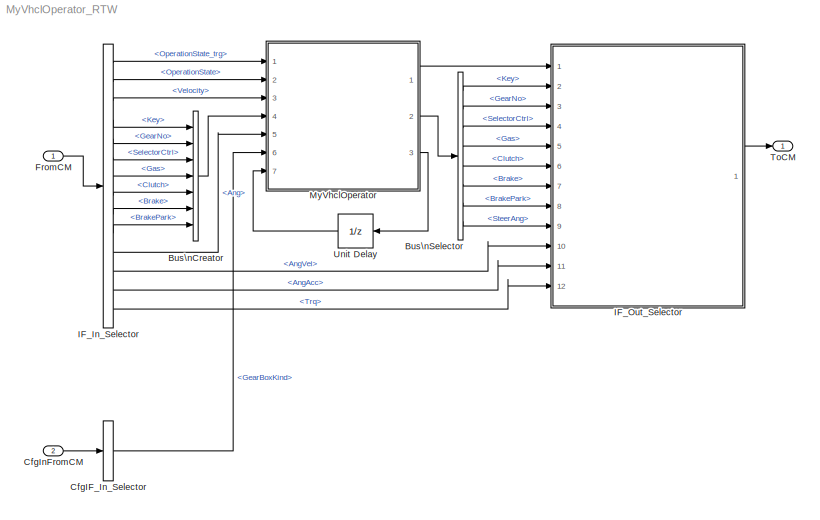
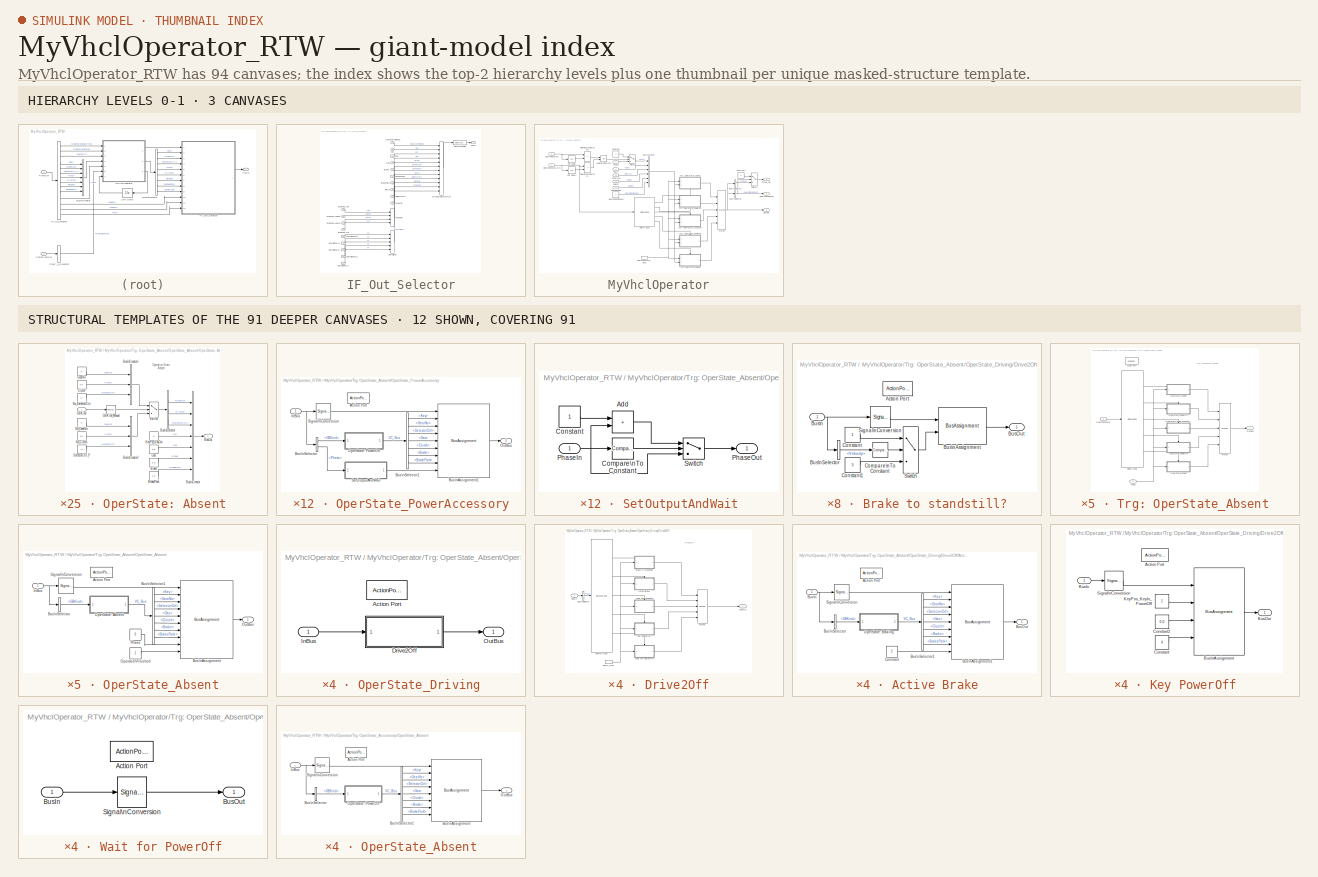
[diagram: thumbnail index - top-2 hierarchy levels (3 canvases) + 12 structural-template representatives of the remaining 91 canvases]
MODEL MyVhclOperator_RTW
KIND model
CONFIG InitFcn = vehicle = 'Car'; if ~length(which('cmcmd')), cmenv; end\nMyVhclOperator_RTW_bus
CONFIG PreLoadFcn = vehicle = 'Car'; if ~length(which('cmcmd')), cmenv; end\nMyVhclOperator_RTW_bus
BLOCK [BusCreator] Bus\nCreator
  DisplayOption = bar
  InheritFromInputs = on
  Inputs = 7
  Ports = [7, 1]
  SID = 799
BLOCK [BusSelector] Bus\nSelector
  OutputSignals = VCBus.Key,VCBus.GearNo,VCBus.SelectorCtrl,VCBus.Gas,VCBus.Clutch,VCBus.Brake,VCBus.BrakePark,SteerAng
  Ports = [1, 8]
  SID = 1400
BLOCK [BusSelector] CfgIF_In_Selector
  OutputSignals = GearBoxKind
  Ports = [1, 1]
  SID = 9
BLOCK [Inport] CfgInFromCM
  OutDataTypeStr = Bus: cmVhclOperatorCfgIn
  Port = 2
  SID = 8
BLOCK [Inport] FromCM
  OutDataTypeStr = Bus: cmVhclOperatorIn
  SID = 1
BLOCK [BusSelector] IF_In_Selector
  OutputSignals = OperationState_trg,OperationState,Velocity,Key,GearNo,SelectorCtrl,Gas,Clutch,Brake,BrakePark,Steering.Ang,Steering.AngVel,Steering.AngAcc,Steering.Trq
  Ports = [1, 14]
  SID = 2
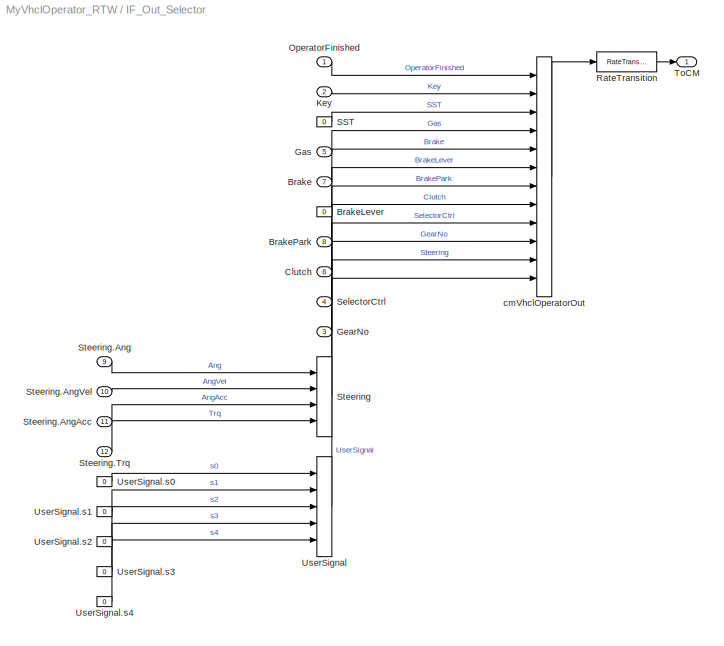
BLOCK [SubSystem] IF_Out_Selector
  OpenFcn = cmSignalSelect('SignalSelection_CB',gcb)
  Ports = [12, 1]
  RequestExecContextInheritance = off
  SID = 5
  UserData = DataTag0
  UserDataPersistent = on
BLOCK [Inport] IF_Out_Selector/Brake
  Port = 7
  SID = 1409
BLOCK [Constant] IF_Out_Selector/BrakeLever
  SID = 17
  Value = 0
BLOCK [Inport] IF_Out_Selector/BrakePark
  Port = 8
  SID = 1410
BLOCK [Inport] IF_Out_Selector/Clutch
  Port = 6
  SID = 1408
BLOCK [Inport] IF_Out_Selector/Gas
  Port = 5
  SID = 1407
BLOCK [Inport] IF_Out_Selector/GearNo
  Port = 3
  SID = 1405
BLOCK [Inport] IF_Out_Selector/Key
  Port = 2
  SID = 1404
BLOCK [Inport] IF_Out_Selector/OperatorFinished
  SID = 103
BLOCK [RateTransition] IF_Out_Selector/RateTransition
  OutPortSampleTime = str2num(get_param(bdroot,'FixedStep'))
  SID = 6
BLOCK [Constant] IF_Out_Selector/SST
  SID = 14
  Value = 0
BLOCK [Inport] IF_Out_Selector/SelectorCtrl
  Port = 4
  SID = 1406
BLOCK [BusCreator] IF_Out_Selector/Steering
  InheritFromInputs = on
  Inputs = 4
  Ports = [4, 1]
  SID = 22
BLOCK [Inport] IF_Out_Selector/Steering.Ang
  Port = 9
  SID = 1411
BLOCK [Inport] IF_Out_Selector/Steering.AngAcc
  Port = 11
  SID = 4997
BLOCK [Inport] IF_Out_Selector/Steering.AngVel
  Port = 10
  SID = 4996
BLOCK [Inport] IF_Out_Selector/Steering.Trq
  Port = 12
  SID = 4998
BLOCK [Outport] IF_Out_Selector/ToCM
  SID = 7
  VectorParamsAs1DForOutWhenUnconnected = off
BLOCK [BusCreator] IF_Out_Selector/UserSignal
  InheritFromInputs = on
  Inputs = 5
  Ports = [5, 1]
  SID = 27
BLOCK [Constant] IF_Out_Selector/UserSignal.s0
  SID = 28
  Value = 0
BLOCK [Constant] IF_Out_Selector/UserSignal.s1
  SID = 29
  Value = 0
BLOCK [Constant] IF_Out_Selector/UserSignal.s2
  SID = 30
  Value = 0
BLOCK [Constant] IF_Out_Selector/UserSignal.s3
  SID = 31
  Value = 0
BLOCK [Constant] IF_Out_Selector/UserSignal.s4
  SID = 32
  Value = 0
BLOCK [BusCreator] IF_Out_Selector/cmVhclOperatorOut
  InheritFromInputs = on
  Inputs = 12
  Ports = [12, 1]
  SID = 11
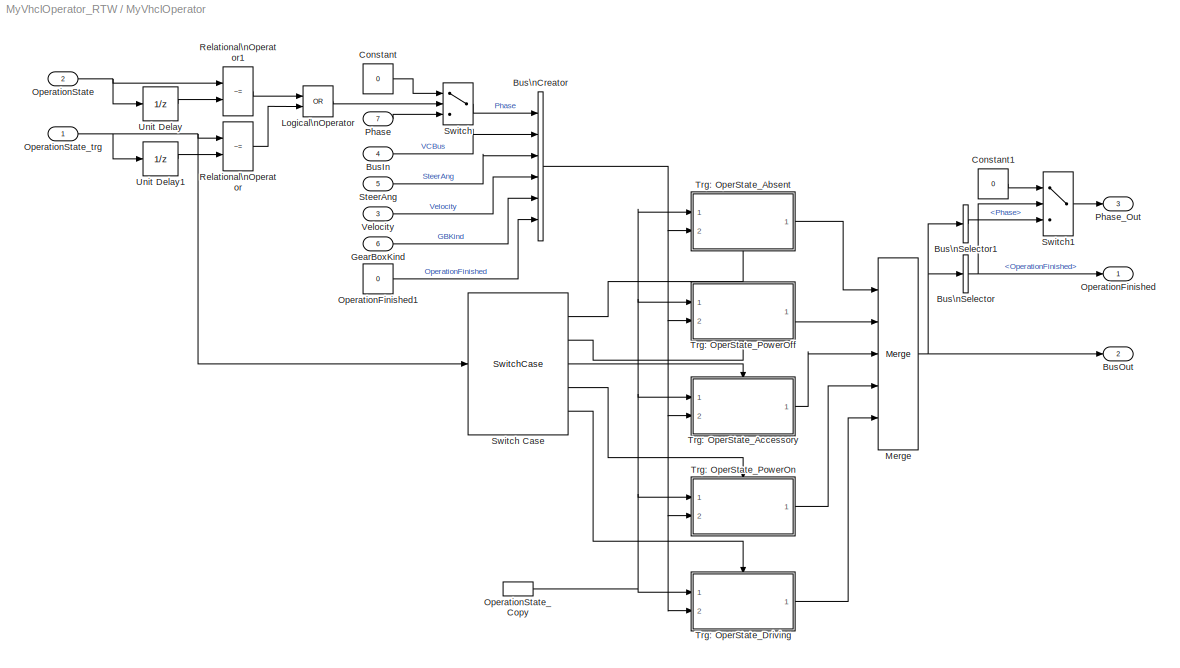
BLOCK [SubSystem] MyVhclOperator
  Ports = [7, 3]
  RequestExecContextInheritance = off
  SID = 3973
BLOCK [Inport] MyVhclOperator/BusIn
  Port = 4
  SID = 3977
BLOCK [Outport] MyVhclOperator/BusOut
  Port = 2
  SID = 4994
  VectorParamsAs1DForOutWhenUnconnected = off
BLOCK [BusCreator] MyVhclOperator/Bus\nCreator
  DisplayOption = bar
  InheritFromInputs = on
  Inputs = 6
  Ports = [6, 1]
  SID = 3981
BLOCK [BusSelector] MyVhclOperator/Bus\nSelector
  OutputSignals = OperationFinished
  Ports = [1, 1]
  SID = 3982
BLOCK [BusSelector] MyVhclOperator/Bus\nSelector1
  OutputSignals = Phase
  Ports = [1, 1]
  SID = 3983
BLOCK [Constant] MyVhclOperator/Constant
  SID = 3984
  Value = 0
BLOCK [Constant] MyVhclOperator/Constant1
  SID = 3985
  Value = 0
BLOCK [Inport] MyVhclOperator/GearBoxKind
  Port = 6
  SID = 3979
BLOCK [Logic] MyVhclOperator/Logical\nOperator
  AllPortsSameDT = off
  Operator = OR
  OutDataTypeStr = boolean
  Ports = [2, 1]
  SID = 3986
BLOCK [Merge] MyVhclOperator/Merge
  Inputs = 5
  Ports = [5, 1]
  SID = 3987
BLOCK [Outport] MyVhclOperator/OperationFinished
  SID = 4993
  VectorParamsAs1DForOutWhenUnconnected = off
BLOCK [Constant] MyVhclOperator/OperationFinished1
  SID = 3988
  Value = 0
BLOCK [Inport] MyVhclOperator/OperationState
  Port = 2
  SID = 3975
BLOCK [InportShadow] MyVhclOperator/OperationState_Copy
  Port = 2
  SID = 3989
BLOCK [Inport] MyVhclOperator/OperationState_trg
  SID = 3974
BLOCK [Inport] MyVhclOperator/Phase
  Port = 7
  SID = 3980
BLOCK [Outport] MyVhclOperator/Phase_Out
  Port = 3
  SID = 4995
  VectorParamsAs1DForOutWhenUnconnected = off
BLOCK [RelationalOperator] MyVhclOperator/Relational\nOperator
  InputSameDT = off
  Operator = ~=
  OutDataTypeStr = boolean
  Ports = [2, 1]
  SID = 3990
BLOCK [RelationalOperator] MyVhclOperator/Relational\nOperator1
  InputSameDT = off
  Operator = ~=
  OutDataTypeStr = boolean
  Ports = [2, 1]
  SID = 3991
BLOCK [Inport] MyVhclOperator/SteerAng
  Port = 5
  SID = 3978
BLOCK [Switch] MyVhclOperator/Switch
  Criteria = u2 ~= 0
  InputSameDT = off
  SID = 3992
  SaturateOnIntegerOverflow = off
BLOCK [SwitchCase] MyVhclOperator/Switch Case
  CaseConditions = {0,1,2,3,4}
  Ports = [1, 5]
  SID = 3993
  ShowDefaultCase = off
BLOCK [Switch] MyVhclOperator/Switch1
  Criteria = u2 ~= 0
  InputSameDT = off
  SID = 3994
  SaturateOnIntegerOverflow = off
BLOCK [SubSystem] MyVhclOperator/Trg: OperState_Absent
  NameLocation = top
  Ports = [2, 1, 0, 0, 0, 0, 0, 1]
  RequestExecContextInheritance = off
  SID = 3995
  TreatAsAtomicUnit = on
BLOCK [ActionPort] MyVhclOperator/Trg: OperState_Absent/Action Port
  ActionPortLabel = case: { }
  SID = 3998
BLOCK [Inport] MyVhclOperator/Trg: OperState_Absent/InBus
  Port = 2
  SID = 3997
BLOCK [Merge] MyVhclOperator/Trg: OperState_Absent/Merge
  Inputs = 5
  Ports = [5, 1]
  SID = 3999
BLOCK [SubSystem] MyVhclOperator/Trg: OperState_Absent/OperState_Absent
  Ports = [1, 1, 0, 0, 0, 0, 0, 1]
  RequestExecContextInheritance = off
  SID = 4000
  TreatAsAtomicUnit = on
BLOCK [ActionPort] MyVhclOperator/Trg: OperState_Absent/OperState_Absent/Action Port
  ActionPortLabel = case: { }
  SID = 4002
BLOCK [BusAssignment] MyVhclOperator/Trg: OperState_Absent/OperState_Absent/Bus\nAssignment
  AssignedSignals = VCBus.Key,VCBus.GearNo,VCBus.SelectorCtrl,VCBus.Gas,VCBus.Clutch,VCBus.Brake,VCBus.BrakePark,Phase,OperationFinished
  Ports = [10, 1]
  SID = 4003
BLOCK [BusSelector] MyVhclOperator/Trg: OperState_Absent/OperState_Absent/Bus\nSelector
  OutputSignals = GBKind
  Ports = [1, 1]
  SID = 4004
BLOCK [BusSelector] MyVhclOperator/Trg: OperState_Absent/OperState_Absent/Bus\nSelector1
  OutputSignals = Key,GearNo,SelectorCtrl,Gas,Clutch,Brake,BrakePark
  Ports = [1, 7]
  SID = 4005
BLOCK [Inport] MyVhclOperator/Trg: OperState_Absent/OperState_Absent/InBus
  SID = 4001
BLOCK [SubSystem] MyVhclOperator/Trg: OperState_Absent/OperState_Absent/OperState: Absent
  Ports = [1, 1]
  RequestExecContextInheritance = off
  SID = 4006
BLOCK [Constant] MyVhclOperator/Trg: OperState_Absent/OperState_Absent/OperState: Absent/Brake
  SID = 4008
  Value = 0.0
BLOCK [Constant] MyVhclOperator/Trg: OperState_Absent/OperState_Absent/OperState: Absent/BrakePark
  SID = 4009
  Value = 1.0
BLOCK [Outport] MyVhclOperator/Trg: OperState_Absent/OperState_Absent/OperState: Absent/BusOut
  SID = 4024
  VectorParamsAs1DForOutWhenUnconnected = off
BLOCK [BusCreator] MyVhclOperator/Trg: OperState_Absent/OperState_Absent/OperState: Absent/Bus\nCreator
  DisplayOption = bar
  InheritFromInputs = on
  Inputs = 7
  Ports = [7, 1]
  SID = 4010
BLOCK [BusCreator] MyVhclOperator/Trg: OperState_Absent/OperState_Absent/OperState: Absent/Bus\nCreator1
  DisplayOption = bar
  InheritFromInputs = on
  Inputs = 3
  Ports = [3, 1]
  SID = 4011
BLOCK [BusCreator] MyVhclOperator/Trg: OperState_Absent/OperState_Absent/OperState: Absent/Bus\nCreator2
  DisplayOption = bar
  InheritFromInputs = on
  Inputs = 3
  Ports = [3, 1]
  SID = 4012
BLOCK [BusSelector] MyVhclOperator/Trg: OperState_Absent/OperState_Absent/OperState: Absent/Bus\nSelector
  OutputSignals = GearNo,Clutch,SelectorCtrl
  Ports = [1, 3]
  SID = 4013
BLOCK [Constant] MyVhclOperator/Trg: OperState_Absent/OperState_Absent/OperState: Absent/Clutch
  SID = 4014
  Value = 0.0
BLOCK [Inport] MyVhclOperator/Trg: OperState_Absent/OperState_Absent/OperState: Absent/GBKind
  SID = 4007
BLOCK [Reference] MyVhclOperator/Trg: OperState_Absent/OperState_Absent/OperState: Absent/GBKind_Manual  REF=simulink/Logic and Bit\nOperations/Compare\nTo Constant
  FunctionWithSeparateData = off
  LogicOutDataTypeMode = uint8
  Ports = [1, 1]
  RTWMemSecDataConstants = Inherit from model
  RTWMemSecDataInternal = Inherit from model
  RTWMemSecDataParameters = Inherit from model
  RTWMemSecFuncExecute = Inherit from model
  RTWMemSecFuncInitTerm = Inherit from model
  SID = 4015
  ShowPortLabels = FromPortIcon
  SourceBlock = simulink/Logic and Bit\nOperations/Compare\nTo Constant
  SourceProductBaseCode = SL
  SourceType = Compare To Constant
  SystemSampleTime = -1
  ZeroCross = on
  const = 1
  relop = ==
BLOCK [Constant] MyVhclOperator/Trg: OperState_Absent/OperState_Absent/OperState: Absent/Gas
  SID = 4016
  Value = 0.0
BLOCK [Constant] MyVhclOperator/Trg: OperState_Absent/OperState_Absent/OperState: Absent/GearNo
  SID = 4017
  Value = 0
BLOCK [Constant] MyVhclOperator/Trg: OperState_Absent/OperState_Absent/OperState: Absent/KeyPos_KeyOut
  SID = 4018
  Value = 0
BLOCK [Constant] MyVhclOperator/Trg: OperState_Absent/OperState_Absent/OperState: Absent/No_Clutch
  SID = 4019
  Value = 0.0
BLOCK [Constant] MyVhclOperator/Trg: OperState_Absent/OperState_Absent/OperState: Absent/No_GearNo
  SID = 4020
  Value = 0
BLOCK [Constant] MyVhclOperator/Trg: OperState_Absent/OperState_Absent/OperState: Absent/No_SelectorCtrl
  SID = 4021
  Value = 0
BLOCK [Constant] MyVhclOperator/Trg: OperState_Absent/OperState_Absent/OperState: Absent/SelectorCtrl_P
  SID = 4022
  Value = -9
BLOCK [Switch] MyVhclOperator/Trg: OperState_Absent/OperState_Absent/OperState: Absent/Switch
  Criteria = u2 ~= 0
  InputSameDT = off
  SID = 4023
  SaturateOnIntegerOverflow = off
BLOCK [Constant] MyVhclOperator/Trg: OperState_Absent/OperState_Absent/OperationFinished
  SID = 4025
BLOCK [Outport] MyVhclOperator/Trg: OperState_Absent/OperState_Absent/OutBus
  InitialOutput = [0]
  SID = 4028
  VectorParamsAs1DForOutWhenUnconnected = off
BLOCK [Constant] MyVhclOperator/Trg: OperState_Absent/OperState_Absent/Phase
  SID = 4026
  Value = 0
BLOCK [SignalConversion] MyVhclOperator/Trg: OperState_Absent/OperState_Absent/Signal\nConversion
  ConversionOutput = Bus copy
  OverrideOpt = off
  SID = 4027
BLOCK [SubSystem] MyVhclOperator/Trg: OperState_Absent/OperState_Driving
  Ports = [1, 1, 0, 0, 0, 0, 0, 1]
  RequestExecContextInheritance = off
  SID = 4029
  TreatAsAtomicUnit = on
BLOCK [ActionPort] MyVhclOperator/Trg: OperState_Absent/OperState_Driving/Action Port
  ActionPortLabel = case: { }
  SID = 4031
BLOCK [SubSystem] MyVhclOperator/Trg: OperState_Absent/OperState_Driving/Drive2Off
  Ports = [1, 1]
  RequestExecContextInheritance = off
  SID = 4032
BLOCK [SubSystem] MyVhclOperator/Trg: OperState_Absent/OperState_Driving/Drive2Off/Active Brake
  Ports = [1, 1, 0, 0, 0, 0, 0, 1]
  RequestExecContextInheritance = off
  SID = 4034
  TreatAsAtomicUnit = on
BLOCK [ActionPort] MyVhclOperator/Trg: OperState_Absent/OperState_Driving/Drive2Off/Active Brake/Action Port
  ActionPortLabel = case: { }
  SID = 4036
BLOCK [Inport] MyVhclOperator/Trg: OperState_Absent/OperState_Driving/Drive2Off/Active Brake/BusIn
  SID = 4035
BLOCK [Outport] MyVhclOperator/Trg: OperState_Absent/OperState_Driving/Drive2Off/Active Brake/BusOut
  InitialOutput = [0]
  SID = 4061
  VectorParamsAs1DForOutWhenUnconnected = off
BLOCK [BusAssignment] MyVhclOperator/Trg: OperState_Absent/OperState_Driving/Drive2Off/Active Brake/Bus\nAssignment1
  AssignedSignals = VCBus.Key,VCBus.GearNo,VCBus.SelectorCtrl,VCBus.Gas,VCBus.Clutch,VCBus.Brake,VCBus.BrakePark,Phase
  Ports = [9, 1]
  SID = 4037
BLOCK [BusSelector] MyVhclOperator/Trg: OperState_Absent/OperState_Driving/Drive2Off/Active Brake/Bus\nSelector
  OutputSignals = GBKind
  Ports = [1, 1]
  SID = 4038
BLOCK [BusSelector] MyVhclOperator/Trg: OperState_Absent/OperState_Driving/Drive2Off/Active Brake/Bus\nSelector1
  OutputSignals = Key,GearNo,SelectorCtrl,Gas,Clutch,Brake,BrakePark
  Ports = [1, 7]
  SID = 4039
BLOCK [Constant] MyVhclOperator/Trg: OperState_Absent/OperState_Driving/Drive2Off/Active Brake/Constant
  SID = 4040
  Value = 2
BLOCK [SubSystem] MyVhclOperator/Trg: OperState_Absent/OperState_Driving/Drive2Off/Active Brake/OperState: Braking
  Ports = [1, 1]
  RequestExecContextInheritance = off
  SID = 4041
BLOCK [Constant] MyVhclOperator/Trg: OperState_Absent/OperState_Driving/Drive2Off/Active Brake/OperState: Braking/Brake
  SID = 4043
  Value = 0.6
BLOCK [Constant] MyVhclOperator/Trg: OperState_Absent/OperState_Driving/Drive2Off/Active Brake/OperState: Braking/BrakePark
  SID = 4044
  Value = 0.0
BLOCK [Outport] MyVhclOperator/Trg: OperState_Absent/OperState_Driving/Drive2Off/Active Brake/OperState: Braking/BusOut
  SID = 4059
  VectorParamsAs1DForOutWhenUnconnected = off
BLOCK [BusCreator] MyVhclOperator/Trg: OperState_Absent/OperState_Driving/Drive2Off/Active Brake/OperState: Braking/Bus\nCreator
  DisplayOption = bar
  InheritFromInputs = on
  Inputs = 7
  Ports = [7, 1]
  SID = 4045
BLOCK [BusCreator] MyVhclOperator/Trg: OperState_Absent/OperState_Driving/Drive2Off/Active Brake/OperState: Braking/Bus\nCreator1
  DisplayOption = bar
  InheritFromInputs = on
  Inputs = 3
  Ports = [3, 1]
  SID = 4046
BLOCK [BusCreator] MyVhclOperator/Trg: OperState_Absent/OperState_Driving/Drive2Off/Active Brake/OperState: Braking/Bus\nCreator2
  DisplayOption = bar
  InheritFromInputs = on
  Inputs = 3
  Ports = [3, 1]
  SID = 4047
BLOCK [BusSelector] MyVhclOperator/Trg: OperState_Absent/OperState_Driving/Drive2Off/Active Brake/OperState: Braking/Bus\nSelector
  OutputSignals = GearNo,Clutch,SelectorCtrl
  Ports = [1, 3]
  SID = 4048
BLOCK [Constant] MyVhclOperator/Trg: OperState_Absent/OperState_Driving/Drive2Off/Active Brake/OperState: Braking/Clutch
  SID = 4049
  Value = 1.0
BLOCK [Inport] MyVhclOperator/Trg: OperState_Absent/OperState_Driving/Drive2Off/Active Brake/OperState: Braking/GBKind
  SID = 4042
BLOCK [Reference] MyVhclOperator/Trg: OperState_Absent/OperState_Driving/Drive2Off/Active Brake/OperState: Braking/GBKind_Manual  REF=simulink/Logic and Bit\nOperations/Compare\nTo Constant
  FunctionWithSeparateData = off
  LogicOutDataTypeMode = uint8
  Ports = [1, 1]
  RTWMemSecDataConstants = Inherit from model
  RTWMemSecDataInternal = Inherit from model
  RTWMemSecDataParameters = Inherit from model
  RTWMemSecFuncExecute = Inherit from model
  RTWMemSecFuncInitTerm = Inherit from model
  SID = 4050
  ShowPortLabels = FromPortIcon
  SourceBlock = simulink/Logic and Bit\nOperations/Compare\nTo Constant
  SourceProductBaseCode = SL
  SourceType = Compare To Constant
  SystemSampleTime = -1
  ZeroCross = on
  const = 1
  relop = ==
BLOCK [Constant] MyVhclOperator/Trg: OperState_Absent/OperState_Driving/Drive2Off/Active Brake/OperState: Braking/Gas
  SID = 4051
  Value = 0.0
BLOCK [Constant] MyVhclOperator/Trg: OperState_Absent/OperState_Driving/Drive2Off/Active Brake/OperState: Braking/GearNo
  SID = 4052
  Value = 0
BLOCK [Constant] MyVhclOperator/Trg: OperState_Absent/OperState_Driving/Drive2Off/Active Brake/OperState: Braking/KeyPos_KeyOut
  SID = 4053
  Value = 3
BLOCK [Constant] MyVhclOperator/Trg: OperState_Absent/OperState_Driving/Drive2Off/Active Brake/OperState: Braking/No_Clutch
  SID = 4054
  Value = 0.0
BLOCK [Constant] MyVhclOperator/Trg: OperState_Absent/OperState_Driving/Drive2Off/Active Brake/OperState: Braking/No_GearNo
  SID = 4055
  Value = 0
BLOCK [Constant] MyVhclOperator/Trg: OperState_Absent/OperState_Driving/Drive2Off/Active Brake/OperState: Braking/No_SelectorCtrl
  SID = 4056
  Value = 0
BLOCK [Constant] MyVhclOperator/Trg: OperState_Absent/OperState_Driving/Drive2Off/Active Brake/OperState: Braking/SelectorCtrl_P
  SID = 4057
  Value = 0
BLOCK [Switch] MyVhclOperator/Trg: OperState_Absent/OperState_Driving/Drive2Off/Active Brake/OperState: Braking/Switch
  Criteria = u2 ~= 0
  InputSameDT = off
  SID = 4058
  SaturateOnIntegerOverflow = off
BLOCK [SignalConversion] MyVhclOperator/Trg: OperState_Absent/OperState_Driving/Drive2Off/Active Brake/Signal\nConversion
  ConversionOutput = Bus copy
  OverrideOpt = off
  SID = 4060
BLOCK [SubSystem] MyVhclOperator/Trg: OperState_Absent/OperState_Driving/Drive2Off/Brake to standstill?
  Ports = [1, 1, 0, 0, 0, 0, 0, 1]
  RequestExecContextInheritance = off
  SID = 4062
  TreatAsAtomicUnit = on
BLOCK [ActionPort] MyVhclOperator/Trg: OperState_Absent/OperState_Driving/Drive2Off/Brake to standstill?/Action Port
  ActionPortLabel = case: { }
  SID = 4064
BLOCK [Inport] MyVhclOperator/Trg: OperState_Absent/OperState_Driving/Drive2Off/Brake to standstill?/BusIn
  SID = 4063
BLOCK [Outport] MyVhclOperator/Trg: OperState_Absent/OperState_Driving/Drive2Off/Brake to standstill?/BusOut
  InitialOutput = [0]
  SID = 4072
  VectorParamsAs1DForOutWhenUnconnected = off
BLOCK [BusAssignment] MyVhclOperator/Trg: OperState_Absent/OperState_Driving/Drive2Off/Brake to standstill?/Bus\nAssignment
  AssignedSignals = Phase
  Ports = [2, 1]
  SID = 4065
BLOCK [BusSelector] MyVhclOperator/Trg: OperState_Absent/OperState_Driving/Drive2Off/Brake to standstill?/Bus\nSelector
  OutputSignals = Velocity
  Ports = [1, 1]
  SID = 4066
BLOCK [Reference] MyVhclOperator/Trg: OperState_Absent/OperState_Driving/Drive2Off/Brake to standstill?/Compare\nTo Constant  REF=simulink/Logic and Bit\nOperations/Compare\nTo Constant
  FunctionWithSeparateData = off
  LogicOutDataTypeMode = uint8
  Ports = [1, 1]
  RTWMemSecDataConstants = Inherit from model
  RTWMemSecDataInternal = Inherit from model
  RTWMemSecDataParameters = Inherit from model
  RTWMemSecFuncExecute = Inherit from model
  RTWMemSecFuncInitTerm = Inherit from model
  SID = 4067
  ShowPortLabels = FromPortIcon
  SourceBlock = simulink/Logic and Bit\nOperations/Compare\nTo Constant
  SourceProductBaseCode = SL
  SourceType = Compare To Constant
  SystemSampleTime = -1
  ZeroCross = on
  const = 0.1
  relop = >
BLOCK [Constant] MyVhclOperator/Trg: OperState_Absent/OperState_Driving/Drive2Off/Brake to standstill?/Constant
  SID = 4068
BLOCK [Constant] MyVhclOperator/Trg: OperState_Absent/OperState_Driving/Drive2Off/Brake to standstill?/Constant1
  SID = 4069
  Value = 3
BLOCK [SignalConversion] MyVhclOperator/Trg: OperState_Absent/OperState_Driving/Drive2Off/Brake to standstill?/Signal\nConversion
  ConversionOutput = Bus copy
  OverrideOpt = off
  SID = 4070
BLOCK [Switch] MyVhclOperator/Trg: OperState_Absent/OperState_Driving/Drive2Off/Brake to standstill?/Switch
  Criteria = u2 ~= 0
  InputSameDT = off
  SID = 4071
  SaturateOnIntegerOverflow = off
BLOCK [Inport] MyVhclOperator/Trg: OperState_Absent/OperState_Driving/Drive2Off/BusIn
  SID = 4033
BLOCK [InportShadow] MyVhclOperator/Trg: OperState_Absent/OperState_Driving/Drive2Off/BusIn_Copy
  SID = 4074
BLOCK [Outport] MyVhclOperator/Trg: OperState_Absent/OperState_Driving/Drive2Off/BusOut
  SID = 4102
  VectorParamsAs1DForOutWhenUnconnected = off
BLOCK [BusSelector] MyVhclOperator/Trg: OperState_Absent/OperState_Driving/Drive2Off/Bus\nSelector
  OutputSignals = Phase
  Ports = [1, 1]
  SID = 4073
BLOCK [SubSystem] MyVhclOperator/Trg: OperState_Absent/OperState_Driving/Drive2Off/Key PowerOff
  Ports = [1, 1, 0, 0, 0, 0, 0, 1]
  RequestExecContextInheritance = off
  SID = 4075
  TreatAsAtomicUnit = on
BLOCK [ActionPort] MyVhclOperator/Trg: OperState_Absent/OperState_Driving/Drive2Off/Key PowerOff/Action Port
  ActionPortLabel = case: { }
  SID = 4077
BLOCK [Inport] MyVhclOperator/Trg: OperState_Absent/OperState_Driving/Drive2Off/Key PowerOff/BusIn
  SID = 4076
BLOCK [Outport] MyVhclOperator/Trg: OperState_Absent/OperState_Driving/Drive2Off/Key PowerOff/BusOut
  InitialOutput = [0]
  SID = 4083
  VectorParamsAs1DForOutWhenUnconnected = off
BLOCK [BusAssignment] MyVhclOperator/Trg: OperState_Absent/OperState_Driving/Drive2Off/Key PowerOff/Bus\nAssignment
  AssignedSignals = VCBus.Key,SteerAng,Phase
  Ports = [4, 1]
  SID = 4078
BLOCK [Constant] MyVhclOperator/Trg: OperState_Absent/OperState_Driving/Drive2Off/Key PowerOff/Constant
  SID = 4079
  Value = 4
BLOCK [Constant] MyVhclOperator/Trg: OperState_Absent/OperState_Driving/Drive2Off/Key PowerOff/Constant2
  SID = 4080
  Value = 0.0
BLOCK [Constant] MyVhclOperator/Trg: OperState_Absent/OperState_Driving/Drive2Off/Key PowerOff/KeyPos_KeyIn_PowerOff
  SID = 4081
BLOCK [SignalConversion] MyVhclOperator/Trg: OperState_Absent/OperState_Driving/Drive2Off/Key PowerOff/Signal\nConversion
  ConversionOutput = Bus copy
  OverrideOpt = off
  SID = 4082
BLOCK [Merge] MyVhclOperator/Trg: OperState_Absent/OperState_Driving/Drive2Off/Merge
  Inputs = 5
  Ports = [5, 1]
  SID = 4084
BLOCK [SwitchCase] MyVhclOperator/Trg: OperState_Absent/OperState_Driving/Drive2Off/Switch Case
  CaseConditions = {0,1,2,3,4}
  Ports = [1, 5]
  SID = 4085
  ShowDefaultCase = off
BLOCK [SubSystem] MyVhclOperator/Trg: OperState_Absent/OperState_Driving/Drive2Off/Wait for PowerOff
  Ports = [1, 1, 0, 0, 0, 0, 0, 1]
  RequestExecContextInheritance = off
  SID = 4086
  TreatAsAtomicUnit = on
BLOCK [ActionPort] MyVhclOperator/Trg: OperState_Absent/OperState_Driving/Drive2Off/Wait for PowerOff/Action Port
  ActionPortLabel = case: { }
  SID = 4088
BLOCK [Inport] MyVhclOperator/Trg: OperState_Absent/OperState_Driving/Drive2Off/Wait for PowerOff/BusIn
  SID = 4087
BLOCK [Outport] MyVhclOperator/Trg: OperState_Absent/OperState_Driving/Drive2Off/Wait for PowerOff/BusOut
  SID = 4090
  VectorParamsAs1DForOutWhenUnconnected = off
BLOCK [SignalConversion] MyVhclOperator/Trg: OperState_Absent/OperState_Driving/Drive2Off/Wait for PowerOff/Signal\nConversion
  ConversionOutput = Bus copy
  OverrideOpt = off
  SID = 4089
BLOCK [SubSystem] MyVhclOperator/Trg: OperState_Absent/OperState_Driving/Drive2Off/Wait until Standstill
  Ports = [1, 1, 0, 0, 0, 0, 0, 1]
  RequestExecContextInheritance = off
  SID = 4091
  TreatAsAtomicUnit = on
BLOCK [ActionPort] MyVhclOperator/Trg: OperState_Absent/OperState_Driving/Drive2Off/Wait until Standstill/Action Port
  ActionPortLabel = case: { }
  SID = 4093
BLOCK [Inport] MyVhclOperator/Trg: OperState_Absent/OperState_Driving/Drive2Off/Wait until Standstill/BusIn
  SID = 4092
BLOCK [Outport] MyVhclOperator/Trg: OperState_Absent/OperState_Driving/Drive2Off/Wait until Standstill/BusOut
  InitialOutput = [0]
  SID = 4101
  VectorParamsAs1DForOutWhenUnconnected = off
BLOCK [BusAssignment] MyVhclOperator/Trg: OperState_Absent/OperState_Driving/Drive2Off/Wait until Standstill/Bus\nAssignment
  AssignedSignals = Phase
  Ports = [2, 1]
  SID = 4094
BLOCK [BusSelector] MyVhclOperator/Trg: OperState_Absent/OperState_Driving/Drive2Off/Wait until Standstill/Bus\nSelector
  OutputSignals = Velocity
  Ports = [1, 1]
  SID = 4095
BLOCK [Reference] MyVhclOperator/Trg: OperState_Absent/OperState_Driving/Drive2Off/Wait until Standstill/Compare\nTo Constant  REF=simulink/Logic and Bit\nOperations/Compare\nTo Constant
  FunctionWithSeparateData = off
  LogicOutDataTypeMode = uint8
  Ports = [1, 1]
  RTWMemSecDataConstants = Inherit from model
  RTWMemSecDataInternal = Inherit from model
  RTWMemSecDataParameters = Inherit from model
  RTWMemSecFuncExecute = Inherit from model
  RTWMemSecFuncInitTerm = Inherit from model
  SID = 4096
  ShowPortLabels = FromPortIcon
  SourceBlock = simulink/Logic and Bit\nOperations/Compare\nTo Constant
  SourceProductBaseCode = SL
  SourceType = Compare To Constant
  SystemSampleTime = -1
  ZeroCross = on
  const = 0.1
  relop = <=
BLOCK [Constant] MyVhclOperator/Trg: OperState_Absent/OperState_Driving/Drive2Off/Wait until Standstill/Constant
  SID = 4097
  Value = 3
BLOCK [Constant] MyVhclOperator/Trg: OperState_Absent/OperState_Driving/Drive2Off/Wait until Standstill/Constant1
  SID = 4098
  Value = 2
BLOCK [SignalConversion] MyVhclOperator/Trg: OperState_Absent/OperState_Driving/Drive2Off/Wait until Standstill/Signal\nConversion
  ConversionOutput = Bus copy
  OverrideOpt = off
  SID = 4099
BLOCK [Switch] MyVhclOperator/Trg: OperState_Absent/OperState_Driving/Drive2Off/Wait until Standstill/Switch
  Criteria = u2 ~= 0
  InputSameDT = off
  SID = 4100
  SaturateOnIntegerOverflow = off
BLOCK [Inport] MyVhclOperator/Trg: OperState_Absent/OperState_Driving/InBus
  SID = 4030
BLOCK [Outport] MyVhclOperator/Trg: OperState_Absent/OperState_Driving/OutBus
  SID = 4103
  VectorParamsAs1DForOutWhenUnconnected = off
BLOCK [SubSystem] MyVhclOperator/Trg: OperState_Absent/OperState_PowerAccessory
  Ports = [1, 1, 0, 0, 0, 0, 0, 1]
  RequestExecContextInheritance = off
  SID = 4104
  TreatAsAtomicUnit = on
BLOCK [ActionPort] MyVhclOperator/Trg: OperState_Absent/OperState_PowerAccessory/Action Port
  ActionPortLabel = case: { }
  SID = 4106
BLOCK [BusAssignment] MyVhclOperator/Trg: OperState_Absent/OperState_PowerAccessory/Bus\nAssignment1
  AssignedSignals = VCBus.Key,VCBus.GearNo,VCBus.SelectorCtrl,VCBus.Gas,VCBus.Clutch,VCBus.Brake,VCBus.BrakePark,Phase
  Ports = [9, 1]
  SID = 4107
BLOCK [BusSelector] MyVhclOperator/Trg: OperState_Absent/OperState_PowerAccessory/Bus\nSelector
  OutputSignals = GBKind,Phase
  Ports = [1, 2]
  SID = 4108
BLOCK [BusSelector] MyVhclOperator/Trg: OperState_Absent/OperState_PowerAccessory/Bus\nSelector1
  OutputSignals = Key,GearNo,SelectorCtrl,Gas,Clutch,Brake,BrakePark
  Ports = [1, 7]
  SID = 4109
BLOCK [Inport] MyVhclOperator/Trg: OperState_Absent/OperState_PowerAccessory/InBus
  SID = 4105
BLOCK [SubSystem] MyVhclOperator/Trg: OperState_Absent/OperState_PowerAccessory/OperState: PowerOn
  Ports = [1, 1]
  RequestExecContextInheritance = off
  SID = 4110
BLOCK [Constant] MyVhclOperator/Trg: OperState_Absent/OperState_PowerAccessory/OperState: PowerOn/Brake
  SID = 4112
  Value = 0.0
BLOCK [Constant] MyVhclOperator/Trg: OperState_Absent/OperState_PowerAccessory/OperState: PowerOn/BrakePark
  SID = 4113
  Value = 1.0
BLOCK [Outport] MyVhclOperator/Trg: OperState_Absent/OperState_PowerAccessory/OperState: PowerOn/BusOut
  SID = 4128
  VectorParamsAs1DForOutWhenUnconnected = off
BLOCK [BusCreator] MyVhclOperator/Trg: OperState_Absent/OperState_PowerAccessory/OperState: PowerOn/Bus\nCreator
  DisplayOption = bar
  InheritFromInputs = on
  Inputs = 7
  Ports = [7, 1]
  SID = 4114
BLOCK [BusCreator] MyVhclOperator/Trg: OperState_Absent/OperState_PowerAccessory/OperState: PowerOn/Bus\nCreator1
  DisplayOption = bar
  InheritFromInputs = on
  Inputs = 3
  Ports = [3, 1]
  SID = 4115
BLOCK [BusCreator] MyVhclOperator/Trg: OperState_Absent/OperState_PowerAccessory/OperState: PowerOn/Bus\nCreator2
  DisplayOption = bar
  InheritFromInputs = on
  Inputs = 3
  Ports = [3, 1]
  SID = 4116
BLOCK [BusSelector] MyVhclOperator/Trg: OperState_Absent/OperState_PowerAccessory/OperState: PowerOn/Bus\nSelector
  OutputSignals = GearNo,Clutch,SelectorCtrl
  Ports = [1, 3]
  SID = 4117
BLOCK [Constant] MyVhclOperator/Trg: OperState_Absent/OperState_PowerAccessory/OperState: PowerOn/Clutch
  SID = 4118
  Value = 0.0
BLOCK [Inport] MyVhclOperator/Trg: OperState_Absent/OperState_PowerAccessory/OperState: PowerOn/GBKind
  SID = 4111
BLOCK [Reference] MyVhclOperator/Trg: OperState_Absent/OperState_PowerAccessory/OperState: PowerOn/GBKind_Manual  REF=simulink/Logic and Bit\nOperations/Compare\nTo Constant
  FunctionWithSeparateData = off
  LogicOutDataTypeMode = uint8
  Ports = [1, 1]
  RTWMemSecDataConstants = Inherit from model
  RTWMemSecDataInternal = Inherit from model
  RTWMemSecDataParameters = Inherit from model
  RTWMemSecFuncExecute = Inherit from model
  RTWMemSecFuncInitTerm = Inherit from model
  SID = 4119
  ShowPortLabels = FromPortIcon
  SourceBlock = simulink/Logic and Bit\nOperations/Compare\nTo Constant
  SourceProductBaseCode = SL
  SourceType = Compare To Constant
  SystemSampleTime = -1
  ZeroCross = on
  const = 1
  relop = ==
BLOCK [Constant] MyVhclOperator/Trg: OperState_Absent/OperState_PowerAccessory/OperState: PowerOn/Gas
  SID = 4120
  Value = 0.0
BLOCK [Constant] MyVhclOperator/Trg: OperState_Absent/OperState_PowerAccessory/OperState: PowerOn/GearNo
  SID = 4121
  Value = 0
BLOCK [Constant] MyVhclOperator/Trg: OperState_Absent/OperState_PowerAccessory/OperState: PowerOn/KeyPos_KeyIn_PowerOn
  SID = 4122
  Value = 3
BLOCK [Constant] MyVhclOperator/Trg: OperState_Absent/OperState_PowerAccessory/OperState: PowerOn/No_Clutch
  SID = 4123
  Value = 0.0
BLOCK [Constant] MyVhclOperator/Trg: OperState_Absent/OperState_PowerAccessory/OperState: PowerOn/No_GearNo
  SID = 4124
  Value = 0
BLOCK [Constant] MyVhclOperator/Trg: OperState_Absent/OperState_PowerAccessory/OperState: PowerOn/No_SelectorCtrl
  SID = 4125
  Value = 0
BLOCK [Constant] MyVhclOperator/Trg: OperState_Absent/OperState_PowerAccessory/OperState: PowerOn/SelectorCtrl_P
  SID = 4126
  Value = -9
BLOCK [Switch] MyVhclOperator/Trg: OperState_Absent/OperState_PowerAccessory/OperState: PowerOn/Switch
  Criteria = u2 ~= 0
  InputSameDT = off
  SID = 4127
  SaturateOnIntegerOverflow = off
BLOCK [Outport] MyVhclOperator/Trg: OperState_Absent/OperState_PowerAccessory/OutBus
  InitialOutput = [0]
  SID = 4137
  VectorParamsAs1DForOutWhenUnconnected = off
BLOCK [SubSystem] MyVhclOperator/Trg: OperState_Absent/OperState_PowerAccessory/SetOutputAndWait
  Ports = [1, 1]
  RequestExecContextInheritance = off
  SID = 4129
BLOCK [Sum] MyVhclOperator/Trg: OperState_Absent/OperState_PowerAccessory/SetOutputAndWait/Add
  IconShape = rectangular
  Ports = [2, 1]
  SID = 4131
BLOCK [Reference] MyVhclOperator/Trg: OperState_Absent/OperState_PowerAccessory/SetOutputAndWait/Compare\nTo Constant  REF=simulink/Logic and Bit\nOperations/Compare\nTo Constant
  FunctionWithSeparateData = off
  LogicOutDataTypeMode = uint8
  Ports = [1, 1]
  RTWMemSecDataConstants = Inherit from model
  RTWMemSecDataInternal = Inherit from model
  RTWMemSecDataParameters = Inherit from model
  RTWMemSecFuncExecute = Inherit from model
  RTWMemSecFuncInitTerm = Inherit from model
  SID = 4132
  ShowPortLabels = FromPortIcon
  SourceBlock = simulink/Logic and Bit\nOperations/Compare\nTo Constant
  SourceProductBaseCode = SL
  SourceType = Compare To Constant
  SystemSampleTime = -1
  ZeroCross = on
  const = 0
  relop = ==
BLOCK [Constant] MyVhclOperator/Trg: OperState_Absent/OperState_PowerAccessory/SetOutputAndWait/Constant
  SID = 4133
BLOCK [Inport] MyVhclOperator/Trg: OperState_Absent/OperState_PowerAccessory/SetOutputAndWait/PhaseIn
  SID = 4130
BLOCK [Outport] MyVhclOperator/Trg: OperState_Absent/OperState_PowerAccessory/SetOutputAndWait/PhaseOut
  SID = 4135
  VectorParamsAs1DForOutWhenUnconnected = off
BLOCK [Switch] MyVhclOperator/Trg: OperState_Absent/OperState_PowerAccessory/SetOutputAndWait/Switch
  Criteria = u2 ~= 0
  InputSameDT = off
  SID = 4134
  SaturateOnIntegerOverflow = off
BLOCK [SignalConversion] MyVhclOperator/Trg: OperState_Absent/OperState_PowerAccessory/Signal\nConversion
  ConversionOutput = Bus copy
  OverrideOpt = off
  SID = 4136
BLOCK [SubSystem] MyVhclOperator/Trg: OperState_Absent/OperState_PowerOff
  Ports = [1, 1, 0, 0, 0, 0, 0, 1]
  RequestExecContextInheritance = off
  SID = 4138
  TreatAsAtomicUnit = on
BLOCK [ActionPort] MyVhclOperator/Trg: OperState_Absent/OperState_PowerOff/Action Port
  ActionPortLabel = case: { }
  SID = 4140
BLOCK [BusAssignment] MyVhclOperator/Trg: OperState_Absent/OperState_PowerOff/Bus\nAssignment1
  AssignedSignals = VCBus.Key,VCBus.GearNo,VCBus.SelectorCtrl,VCBus.Gas,VCBus.Clutch,VCBus.Brake,VCBus.BrakePark,Phase
  Ports = [9, 1]
  SID = 4141
BLOCK [BusSelector] MyVhclOperator/Trg: OperState_Absent/OperState_PowerOff/Bus\nSelector
  OutputSignals = GBKind,Phase
  Ports = [1, 2]
  SID = 4142
BLOCK [BusSelector] MyVhclOperator/Trg: OperState_Absent/OperState_PowerOff/Bus\nSelector1
  OutputSignals = Key,GearNo,SelectorCtrl,Gas,Clutch,Brake,BrakePark
  Ports = [1, 7]
  SID = 4143
BLOCK [Inport] MyVhclOperator/Trg: OperState_Absent/OperState_PowerOff/InBus
  SID = 4139
BLOCK [SubSystem] MyVhclOperator/Trg: OperState_Absent/OperState_PowerOff/OperState: Absent
  Ports = [1, 1]
  RequestExecContextInheritance = off
  SID = 4144
BLOCK [Constant] MyVhclOperator/Trg: OperState_Absent/OperState_PowerOff/OperState: Absent/Brake
  SID = 4146
  Value = 0.0
BLOCK [Constant] MyVhclOperator/Trg: OperState_Absent/OperState_PowerOff/OperState: Absent/BrakePark
  SID = 4147
  Value = 1.0
BLOCK [Outport] MyVhclOperator/Trg: OperState_Absent/OperState_PowerOff/OperState: Absent/BusOut
  SID = 4162
  VectorParamsAs1DForOutWhenUnconnected = off
BLOCK [BusCreator] MyVhclOperator/Trg: OperState_Absent/OperState_PowerOff/OperState: Absent/Bus\nCreator
  DisplayOption = bar
  InheritFromInputs = on
  Inputs = 7
  Ports = [7, 1]
  SID = 4148
BLOCK [BusCreator] MyVhclOperator/Trg: OperState_Absent/OperState_PowerOff/OperState: Absent/Bus\nCreator1
  DisplayOption = bar
  InheritFromInputs = on
  Inputs = 3
  Ports = [3, 1]
  SID = 4149
BLOCK [BusCreator] MyVhclOperator/Trg: OperState_Absent/OperState_PowerOff/OperState: Absent/Bus\nCreator2
  DisplayOption = bar
  InheritFromInputs = on
  Inputs = 3
  Ports = [3, 1]
  SID = 4150
BLOCK [BusSelector] MyVhclOperator/Trg: OperState_Absent/OperState_PowerOff/OperState: Absent/Bus\nSelector
  OutputSignals = GearNo,Clutch,SelectorCtrl
  Ports = [1, 3]
  SID = 4151
BLOCK [Constant] MyVhclOperator/Trg: OperState_Absent/OperState_PowerOff/OperState: Absent/Clutch
  SID = 4152
  Value = 0.0
BLOCK [Inport] MyVhclOperator/Trg: OperState_Absent/OperState_PowerOff/OperState: Absent/GBKind
  SID = 4145
BLOCK [Reference] MyVhclOperator/Trg: OperState_Absent/OperState_PowerOff/OperState: Absent/GBKind_Manual  REF=simulink/Logic and Bit\nOperations/Compare\nTo Constant
  FunctionWithSeparateData = off
  LogicOutDataTypeMode = uint8
  Ports = [1, 1]
  RTWMemSecDataConstants = Inherit from model
  RTWMemSecDataInternal = Inherit from model
  RTWMemSecDataParameters = Inherit from model
  RTWMemSecFuncExecute = Inherit from model
  RTWMemSecFuncInitTerm = Inherit from model
  SID = 4153
  ShowPortLabels = FromPortIcon
  SourceBlock = simulink/Logic and Bit\nOperations/Compare\nTo Constant
  SourceProductBaseCode = SL
  SourceType = Compare To Constant
  SystemSampleTime = -1
  ZeroCross = on
  const = 1
  relop = ==
BLOCK [Constant] MyVhclOperator/Trg: OperState_Absent/OperState_PowerOff/OperState: Absent/Gas
  SID = 4154
  Value = 0.0
BLOCK [Constant] MyVhclOperator/Trg: OperState_Absent/OperState_PowerOff/OperState: Absent/GearNo
  SID = 4155
  Value = 0
BLOCK [Constant] MyVhclOperator/Trg: OperState_Absent/OperState_PowerOff/OperState: Absent/KeyPos_KeyOut
  SID = 4156
  Value = 0
BLOCK [Constant] MyVhclOperator/Trg: OperState_Absent/OperState_PowerOff/OperState: Absent/No_Clutch
  SID = 4157
  Value = 0.0
BLOCK [Constant] MyVhclOperator/Trg: OperState_Absent/OperState_PowerOff/OperState: Absent/No_GearNo
  SID = 4158
  Value = 0
BLOCK [Constant] MyVhclOperator/Trg: OperState_Absent/OperState_PowerOff/OperState: Absent/No_SelectorCtrl
  SID = 4159
  Value = 0
BLOCK [Constant] MyVhclOperator/Trg: OperState_Absent/OperState_PowerOff/OperState: Absent/SelectorCtrl_P
  SID = 4160
  Value = -9
BLOCK [Switch] MyVhclOperator/Trg: OperState_Absent/OperState_PowerOff/OperState: Absent/Switch
  Criteria = u2 ~= 0
  InputSameDT = off
  SID = 4161
  SaturateOnIntegerOverflow = off
BLOCK [Outport] MyVhclOperator/Trg: OperState_Absent/OperState_PowerOff/OutBus
  InitialOutput = [0]
  SID = 4171
  VectorParamsAs1DForOutWhenUnconnected = off
BLOCK [SubSystem] MyVhclOperator/Trg: OperState_Absent/OperState_PowerOff/SetOutputAndWait
  Ports = [1, 1]
  RequestExecContextInheritance = off
  SID = 4163
BLOCK [Sum] MyVhclOperator/Trg: OperState_Absent/OperState_PowerOff/SetOutputAndWait/Add
  IconShape = rectangular
  Ports = [2, 1]
  SID = 4165
BLOCK [Reference] MyVhclOperator/Trg: OperState_Absent/OperState_PowerOff/SetOutputAndWait/Compare\nTo Constant  REF=simulink/Logic and Bit\nOperations/Compare\nTo Constant
  FunctionWithSeparateData = off
  LogicOutDataTypeMode = uint8
  Ports = [1, 1]
  RTWMemSecDataConstants = Inherit from model
  RTWMemSecDataInternal = Inherit from model
  RTWMemSecDataParameters = Inherit from model
  RTWMemSecFuncExecute = Inherit from model
  RTWMemSecFuncInitTerm = Inherit from model
  SID = 4166
  ShowPortLabels = FromPortIcon
  SourceBlock = simulink/Logic and Bit\nOperations/Compare\nTo Constant
  SourceProductBaseCode = SL
  SourceType = Compare To Constant
  SystemSampleTime = -1
  ZeroCross = on
  const = 0
  relop = ==
BLOCK [Constant] MyVhclOperator/Trg: OperState_Absent/OperState_PowerOff/SetOutputAndWait/Constant
  SID = 4167
BLOCK [Inport] MyVhclOperator/Trg: OperState_Absent/OperState_PowerOff/SetOutputAndWait/PhaseIn
  SID = 4164
BLOCK [Outport] MyVhclOperator/Trg: OperState_Absent/OperState_PowerOff/SetOutputAndWait/PhaseOut
  SID = 4169
  VectorParamsAs1DForOutWhenUnconnected = off
BLOCK [Switch] MyVhclOperator/Trg: OperState_Absent/OperState_PowerOff/SetOutputAndWait/Switch
  Criteria = u2 ~= 0
  InputSameDT = off
  SID = 4168
  SaturateOnIntegerOverflow = off
BLOCK [SignalConversion] MyVhclOperator/Trg: OperState_Absent/OperState_PowerOff/Signal\nConversion
  ConversionOutput = Bus copy
  OverrideOpt = off
  SID = 4170
BLOCK [SubSystem] MyVhclOperator/Trg: OperState_Absent/OperState_PowerOn
  Ports = [1, 1, 0, 0, 0, 0, 0, 1]
  RequestExecContextInheritance = off
  SID = 4172
  TreatAsAtomicUnit = on
BLOCK [ActionPort] MyVhclOperator/Trg: OperState_Absent/OperState_PowerOn/Action Port
  ActionPortLabel = case: { }
  SID = 4174
BLOCK [BusAssignment] MyVhclOperator/Trg: OperState_Absent/OperState_PowerOn/Bus\nAssignment1
  AssignedSignals = VCBus.Key,VCBus.GearNo,VCBus.SelectorCtrl,VCBus.Gas,VCBus.Clutch,VCBus.Brake,VCBus.BrakePark,Phase
  Ports = [9, 1]
  SID = 4175
BLOCK [BusSelector] MyVhclOperator/Trg: OperState_Absent/OperState_PowerOn/Bus\nSelector
  OutputSignals = GBKind,Phase
  Ports = [1, 2]
  SID = 4176
BLOCK [BusSelector] MyVhclOperator/Trg: OperState_Absent/OperState_PowerOn/Bus\nSelector1
  OutputSignals = Key,GearNo,SelectorCtrl,Gas,Clutch,Brake,BrakePark
  Ports = [1, 7]
  SID = 4177
BLOCK [Inport] MyVhclOperator/Trg: OperState_Absent/OperState_PowerOn/InBus
  SID = 4173
BLOCK [SubSystem] MyVhclOperator/Trg: OperState_Absent/OperState_PowerOn/OperState: PowerOff
  Ports = [1, 1]
  RequestExecContextInheritance = off
  SID = 4178
BLOCK [Constant] MyVhclOperator/Trg: OperState_Absent/OperState_PowerOn/OperState: PowerOff/Brake
  SID = 4180
  Value = 0.0
BLOCK [Constant] MyVhclOperator/Trg: OperState_Absent/OperState_PowerOn/OperState: PowerOff/BrakePark
  SID = 4181
  Value = 1.0
BLOCK [Outport] MyVhclOperator/Trg: OperState_Absent/OperState_PowerOn/OperState: PowerOff/BusOut
  SID = 4196
  VectorParamsAs1DForOutWhenUnconnected = off
BLOCK [BusCreator] MyVhclOperator/Trg: OperState_Absent/OperState_PowerOn/OperState: PowerOff/Bus\nCreator
  DisplayOption = bar
  InheritFromInputs = on
  Inputs = 7
  Ports = [7, 1]
  SID = 4182
BLOCK [BusCreator] MyVhclOperator/Trg: OperState_Absent/OperState_PowerOn/OperState: PowerOff/Bus\nCreator1
  DisplayOption = bar
  InheritFromInputs = on
  Inputs = 3
  Ports = [3, 1]
  SID = 4183
BLOCK [BusCreator] MyVhclOperator/Trg: OperState_Absent/OperState_PowerOn/OperState: PowerOff/Bus\nCreator2
  DisplayOption = bar
  InheritFromInputs = on
  Inputs = 3
  Ports = [3, 1]
  SID = 4184
BLOCK [BusSelector] MyVhclOperator/Trg: OperState_Absent/OperState_PowerOn/OperState: PowerOff/Bus\nSelector
  OutputSignals = GearNo,Clutch,SelectorCtrl
  Ports = [1, 3]
  SID = 4185
BLOCK [Constant] MyVhclOperator/Trg: OperState_Absent/OperState_PowerOn/OperState: PowerOff/Clutch
  SID = 4186
  Value = 0.0
BLOCK [Inport] MyVhclOperator/Trg: OperState_Absent/OperState_PowerOn/OperState: PowerOff/GBKind
  SID = 4179
BLOCK [Reference] MyVhclOperator/Trg: OperState_Absent/OperState_PowerOn/OperState: PowerOff/GBKind_Manual  REF=simulink/Logic and Bit\nOperations/Compare\nTo Constant
  FunctionWithSeparateData = off
  LogicOutDataTypeMode = uint8
  Ports = [1, 1]
  RTWMemSecDataConstants = Inherit from model
  RTWMemSecDataInternal = Inherit from model
  RTWMemSecDataParameters = Inherit from model
  RTWMemSecFuncExecute = Inherit from model
  RTWMemSecFuncInitTerm = Inherit from model
  SID = 4187
  ShowPortLabels = FromPortIcon
  SourceBlock = simulink/Logic and Bit\nOperations/Compare\nTo Constant
  SourceProductBaseCode = SL
  SourceType = Compare To Constant
  SystemSampleTime = -1
  ZeroCross = on
  const = 1
  relop = ==
BLOCK [Constant] MyVhclOperator/Trg: OperState_Absent/OperState_PowerOn/OperState: PowerOff/Gas
  SID = 4188
  Value = 0.0
BLOCK [Constant] MyVhclOperator/Trg: OperState_Absent/OperState_PowerOn/OperState: PowerOff/GearNo
  SID = 4189
  Value = 0
BLOCK [Constant] MyVhclOperator/Trg: OperState_Absent/OperState_PowerOn/OperState: PowerOff/KeyPos_KeyIn_PowerOff
  SID = 4190
BLOCK [Constant] MyVhclOperator/Trg: OperState_Absent/OperState_PowerOn/OperState: PowerOff/No_Clutch
  SID = 4191
  Value = 0.0
BLOCK [Constant] MyVhclOperator/Trg: OperState_Absent/OperState_PowerOn/OperState: PowerOff/No_GearNo
  SID = 4192
  Value = 0
BLOCK [Constant] MyVhclOperator/Trg: OperState_Absent/OperState_PowerOn/OperState: PowerOff/No_SelectorCtrl
  SID = 4193
  Value = 0
BLOCK [Constant] MyVhclOperator/Trg: OperState_Absent/OperState_PowerOn/OperState: PowerOff/SelectorCtrl_P
  SID = 4194
  Value = -9
BLOCK [Switch] MyVhclOperator/Trg: OperState_Absent/OperState_PowerOn/OperState: PowerOff/Switch
  Criteria = u2 ~= 0
  InputSameDT = off
  SID = 4195
  SaturateOnIntegerOverflow = off
BLOCK [Outport] MyVhclOperator/Trg: OperState_Absent/OperState_PowerOn/OutBus
  InitialOutput = [0]
  SID = 4205
  VectorParamsAs1DForOutWhenUnconnected = off
BLOCK [SubSystem] MyVhclOperator/Trg: OperState_Absent/OperState_PowerOn/SetOutputAndWait
  Ports = [1, 1]
  RequestExecContextInheritance = off
  SID = 4197
BLOCK [Sum] MyVhclOperator/Trg: OperState_Absent/OperState_PowerOn/SetOutputAndWait/Add
  IconShape = rectangular
  Ports = [2, 1]
  SID = 4199
BLOCK [Reference] MyVhclOperator/Trg: OperState_Absent/OperState_PowerOn/SetOutputAndWait/Compare\nTo Constant  REF=simulink/Logic and Bit\nOperations/Compare\nTo Constant
  FunctionWithSeparateData = off
  LogicOutDataTypeMode = uint8
  Ports = [1, 1]
  RTWMemSecDataConstants = Inherit from model
  RTWMemSecDataInternal = Inherit from model
  RTWMemSecDataParameters = Inherit from model
  RTWMemSecFuncExecute = Inherit from model
  RTWMemSecFuncInitTerm = Inherit from model
  SID = 4200
  ShowPortLabels = FromPortIcon
  SourceBlock = simulink/Logic and Bit\nOperations/Compare\nTo Constant
  SourceProductBaseCode = SL
  SourceType = Compare To Constant
  SystemSampleTime = -1
  ZeroCross = on
  const = 0
  relop = ==
BLOCK [Constant] MyVhclOperator/Trg: OperState_Absent/OperState_PowerOn/SetOutputAndWait/Constant
  SID = 4201
BLOCK [Inport] MyVhclOperator/Trg: OperState_Absent/OperState_PowerOn/SetOutputAndWait/PhaseIn
  SID = 4198
BLOCK [Outport] MyVhclOperator/Trg: OperState_Absent/OperState_PowerOn/SetOutputAndWait/PhaseOut
  SID = 4203
  VectorParamsAs1DForOutWhenUnconnected = off
BLOCK [Switch] MyVhclOperator/Trg: OperState_Absent/OperState_PowerOn/SetOutputAndWait/Switch
  Criteria = u2 ~= 0
  InputSameDT = off
  SID = 4202
  SaturateOnIntegerOverflow = off
BLOCK [SignalConversion] MyVhclOperator/Trg: OperState_Absent/OperState_PowerOn/Signal\nConversion
  ConversionOutput = Bus copy
  OverrideOpt = off
  SID = 4204
BLOCK [Inport] MyVhclOperator/Trg: OperState_Absent/OperationState
  SID = 3996
BLOCK [Outport] MyVhclOperator/Trg: OperState_Absent/OutBus
  InitialOutput = [0]
  SID = 4207
  VectorParamsAs1DForOutWhenUnconnected = off
BLOCK [SwitchCase] MyVhclOperator/Trg: OperState_Absent/Switch Case
  CaseConditions = {0,1,2,3,4}
  Ports = [1, 5]
  SID = 4206
  ShowDefaultCase = off
BLOCK [SubSystem] MyVhclOperator/Trg: OperState_Accessory
  Ports = [2, 1, 0, 0, 0, 0, 0, 1]
  RequestExecContextInheritance = off
  SID = 4208
  TreatAsAtomicUnit = on
BLOCK [ActionPort] MyVhclOperator/Trg: OperState_Accessory/Action Port
  ActionPortLabel = case: { }
  SID = 4211
BLOCK [Inport] MyVhclOperator/Trg: OperState_Accessory/InBus
  Port = 2
  SID = 4210
BLOCK [Merge] MyVhclOperator/Trg: OperState_Accessory/Merge
  Inputs = 5
  Ports = [5, 1]
  SID = 4212
BLOCK [SubSystem] MyVhclOperator/Trg: OperState_Accessory/OperState_Absent
  Ports = [1, 1, 0, 0, 0, 0, 0, 1]
  RequestExecContextInheritance = off
  SID = 4213
  TreatAsAtomicUnit = on
BLOCK [ActionPort] MyVhclOperator/Trg: OperState_Accessory/OperState_Absent/Action Port
  ActionPortLabel = case: { }
  SID = 4215
BLOCK [BusAssignment] MyVhclOperator/Trg: OperState_Accessory/OperState_Absent/Bus\nAssignment
  AssignedSignals = VCBus.Key,VCBus.GearNo,VCBus.SelectorCtrl,VCBus.Gas,VCBus.Clutch,VCBus.Brake,VCBus.BrakePark
  Ports = [8, 1]
  SID = 4216
BLOCK [BusSelector] MyVhclOperator/Trg: OperState_Accessory/OperState_Absent/Bus\nSelector
  OutputSignals = GBKind
  Ports = [1, 1]
  SID = 4217
BLOCK [BusSelector] MyVhclOperator/Trg: OperState_Accessory/OperState_Absent/Bus\nSelector1
  OutputSignals = Key,GearNo,SelectorCtrl,Gas,Clutch,Brake,BrakePark
  Ports = [1, 7]
  SID = 4218
BLOCK [Inport] MyVhclOperator/Trg: OperState_Accessory/OperState_Absent/InBus
  SID = 4214
BLOCK [SubSystem] MyVhclOperator/Trg: OperState_Accessory/OperState_Absent/OperState: PowerOff
  Ports = [1, 1]
  RequestExecContextInheritance = off
  SID = 4219
BLOCK [Constant] MyVhclOperator/Trg: OperState_Accessory/OperState_Absent/OperState: PowerOff/Brake
  SID = 4221
  Value = 0.0
BLOCK [Constant] MyVhclOperator/Trg: OperState_Accessory/OperState_Absent/OperState: PowerOff/BrakePark
  SID = 4222
  Value = 1.0
BLOCK [Outport] MyVhclOperator/Trg: OperState_Accessory/OperState_Absent/OperState: PowerOff/BusOut
  SID = 4237
  VectorParamsAs1DForOutWhenUnconnected = off
BLOCK [BusCreator] MyVhclOperator/Trg: OperState_Accessory/OperState_Absent/OperState: PowerOff/Bus\nCreator
  DisplayOption = bar
  InheritFromInputs = on
  Inputs = 7
  Ports = [7, 1]
  SID = 4223
BLOCK [BusCreator] MyVhclOperator/Trg: OperState_Accessory/OperState_Absent/OperState: PowerOff/Bus\nCreator1
  DisplayOption = bar
  InheritFromInputs = on
  Inputs = 3
  Ports = [3, 1]
  SID = 4224
BLOCK [BusCreator] MyVhclOperator/Trg: OperState_Accessory/OperState_Absent/OperState: PowerOff/Bus\nCreator2
  DisplayOption = bar
  InheritFromInputs = on
  Inputs = 3
  Ports = [3, 1]
  SID = 4225
BLOCK [BusSelector] MyVhclOperator/Trg: OperState_Accessory/OperState_Absent/OperState: PowerOff/Bus\nSelector
  OutputSignals = GearNo,Clutch,SelectorCtrl
  Ports = [1, 3]
  SID = 4226
BLOCK [Constant] MyVhclOperator/Trg: OperState_Accessory/OperState_Absent/OperState: PowerOff/Clutch
  SID = 4227
  Value = 0.0
BLOCK [Inport] MyVhclOperator/Trg: OperState_Accessory/OperState_Absent/OperState: PowerOff/GBKind
  SID = 4220
BLOCK [Reference] MyVhclOperator/Trg: OperState_Accessory/OperState_Absent/OperState: PowerOff/GBKind_Manual  REF=simulink/Logic and Bit\nOperations/Compare\nTo Constant
  FunctionWithSeparateData = off
  LogicOutDataTypeMode = uint8
  Ports = [1, 1]
  RTWMemSecDataConstants = Inherit from model
  RTWMemSecDataInternal = Inherit from model
  RTWMemSecDataParameters = Inherit from model
  RTWMemSecFuncExecute = Inherit from model
  RTWMemSecFuncInitTerm = Inherit from model
  SID = 4228
  ShowPortLabels = FromPortIcon
  SourceBlock = simulink/Logic and Bit\nOperations/Compare\nTo Constant
  SourceProductBaseCode = SL
  SourceType = Compare To Constant
  SystemSampleTime = -1
  ZeroCross = on
  const = 1
  relop = ==
BLOCK [Constant] MyVhclOperator/Trg: OperState_Accessory/OperState_Absent/OperState: PowerOff/Gas
  SID = 4229
  Value = 0.0
BLOCK [Constant] MyVhclOperator/Trg: OperState_Accessory/OperState_Absent/OperState: PowerOff/GearNo
  SID = 4230
  Value = 0
BLOCK [Constant] MyVhclOperator/Trg: OperState_Accessory/OperState_Absent/OperState: PowerOff/KeyPos_KeyIn_PowerOff
  SID = 4231
BLOCK [Constant] MyVhclOperator/Trg: OperState_Accessory/OperState_Absent/OperState: PowerOff/No_Clutch
  SID = 4232
  Value = 0.0
BLOCK [Constant] MyVhclOperator/Trg: OperState_Accessory/OperState_Absent/OperState: PowerOff/No_GearNo
  SID = 4233
  Value = 0
BLOCK [Constant] MyVhclOperator/Trg: OperState_Accessory/OperState_Absent/OperState: PowerOff/No_SelectorCtrl
  SID = 4234
  Value = 0
BLOCK [Constant] MyVhclOperator/Trg: OperState_Accessory/OperState_Absent/OperState: PowerOff/SelectorCtrl_P
  SID = 4235
  Value = -9
BLOCK [Switch] MyVhclOperator/Trg: OperState_Accessory/OperState_Absent/OperState: PowerOff/Switch
  Criteria = u2 ~= 0
  InputSameDT = off
  SID = 4236
  SaturateOnIntegerOverflow = off
BLOCK [Outport] MyVhclOperator/Trg: OperState_Accessory/OperState_Absent/OutBus
  InitialOutput = [0]
  SID = 4239
  VectorParamsAs1DForOutWhenUnconnected = off
BLOCK [SignalConversion] MyVhclOperator/Trg: OperState_Accessory/OperState_Absent/Signal\nConversion
  ConversionOutput = Bus copy
  OverrideOpt = off
  SID = 4238
BLOCK [SubSystem] MyVhclOperator/Trg: OperState_Accessory/OperState_Accessory
  Ports = [1, 1, 0, 0, 0, 0, 0, 1]
  RequestExecContextInheritance = off
  SID = 4240
  TreatAsAtomicUnit = on
BLOCK [ActionPort] MyVhclOperator/Trg: OperState_Accessory/OperState_Accessory/Action Port
  ActionPortLabel = case: { }
  SID = 4242
BLOCK [BusAssignment] MyVhclOperator/Trg: OperState_Accessory/OperState_Accessory/Bus\nAssignment1
  AssignedSignals = VCBus.Key,VCBus.GearNo,VCBus.SelectorCtrl,VCBus.Gas,VCBus.Clutch,VCBus.Brake,VCBus.BrakePark,Phase,OperationFinished
  Ports = [10, 1]
  SID = 4243
BLOCK [BusSelector] MyVhclOperator/Trg: OperState_Accessory/OperState_Accessory/Bus\nSelector
  OutputSignals = GBKind
  Ports = [1, 1]
  SID = 4244
BLOCK [BusSelector] MyVhclOperator/Trg: OperState_Accessory/OperState_Accessory/Bus\nSelector1
  OutputSignals = Key,GearNo,SelectorCtrl,Gas,Clutch,Brake,BrakePark
  Ports = [1, 7]
  SID = 4245
BLOCK [Inport] MyVhclOperator/Trg: OperState_Accessory/OperState_Accessory/InBus
  SID = 4241
BLOCK [SubSystem] MyVhclOperator/Trg: OperState_Accessory/OperState_Accessory/OperState: PowerAcc
  Ports = [1, 1]
  RequestExecContextInheritance = off
  SID = 4246
BLOCK [Constant] MyVhclOperator/Trg: OperState_Accessory/OperState_Accessory/OperState: PowerAcc/Brake
  SID = 4248
  Value = 0.0
BLOCK [Constant] MyVhclOperator/Trg: OperState_Accessory/OperState_Accessory/OperState: PowerAcc/BrakePark
  SID = 4249
  Value = 1.0
BLOCK [Outport] MyVhclOperator/Trg: OperState_Accessory/OperState_Accessory/OperState: PowerAcc/BusOut
  SID = 4264
  VectorParamsAs1DForOutWhenUnconnected = off
BLOCK [BusCreator] MyVhclOperator/Trg: OperState_Accessory/OperState_Accessory/OperState: PowerAcc/Bus\nCreator
  DisplayOption = bar
  InheritFromInputs = on
  Inputs = 7
  Ports = [7, 1]
  SID = 4250
BLOCK [BusCreator] MyVhclOperator/Trg: OperState_Accessory/OperState_Accessory/OperState: PowerAcc/Bus\nCreator1
  DisplayOption = bar
  InheritFromInputs = on
  Inputs = 3
  Ports = [3, 1]
  SID = 4251
BLOCK [BusCreator] MyVhclOperator/Trg: OperState_Accessory/OperState_Accessory/OperState: PowerAcc/Bus\nCreator2
  DisplayOption = bar
  InheritFromInputs = on
  Inputs = 3
  Ports = [3, 1]
  SID = 4252
BLOCK [BusSelector] MyVhclOperator/Trg: OperState_Accessory/OperState_Accessory/OperState: PowerAcc/Bus\nSelector
  OutputSignals = GearNo,Clutch,SelectorCtrl
  Ports = [1, 3]
  SID = 4253
BLOCK [Constant] MyVhclOperator/Trg: OperState_Accessory/OperState_Accessory/OperState: PowerAcc/Clutch
  SID = 4254
  Value = 0.0
BLOCK [Inport] MyVhclOperator/Trg: OperState_Accessory/OperState_Accessory/OperState: PowerAcc/GBKind
  SID = 4247
BLOCK [Reference] MyVhclOperator/Trg: OperState_Accessory/OperState_Accessory/OperState: PowerAcc/GBKind_Manual  REF=simulink/Logic and Bit\nOperations/Compare\nTo Constant
  FunctionWithSeparateData = off
  LogicOutDataTypeMode = uint8
  Ports = [1, 1]
  RTWMemSecDataConstants = Inherit from model
  RTWMemSecDataInternal = Inherit from model
  RTWMemSecDataParameters = Inherit from model
  RTWMemSecFuncExecute = Inherit from model
  RTWMemSecFuncInitTerm = Inherit from model
  SID = 4255
  ShowPortLabels = FromPortIcon
  SourceBlock = simulink/Logic and Bit\nOperations/Compare\nTo Constant
  SourceProductBaseCode = SL
  SourceType = Compare To Constant
  SystemSampleTime = -1
  ZeroCross = on
  const = 1
  relop = ==
BLOCK [Constant] MyVhclOperator/Trg: OperState_Accessory/OperState_Accessory/OperState: PowerAcc/Gas
  SID = 4256
  Value = 0.0
BLOCK [Constant] MyVhclOperator/Trg: OperState_Accessory/OperState_Accessory/OperState: PowerAcc/GearNo
  SID = 4257
  Value = 0
BLOCK [Constant] MyVhclOperator/Trg: OperState_Accessory/OperState_Accessory/OperState: PowerAcc/KeyPos_KeyIn_PowerAcc
  SID = 4258
  Value = 2
BLOCK [Constant] MyVhclOperator/Trg: OperState_Accessory/OperState_Accessory/OperState: PowerAcc/No_Clutch
  SID = 4259
  Value = 0.0
BLOCK [Constant] MyVhclOperator/Trg: OperState_Accessory/OperState_Accessory/OperState: PowerAcc/No_GearNo
  SID = 4260
  Value = 0
BLOCK [Constant] MyVhclOperator/Trg: OperState_Accessory/OperState_Accessory/OperState: PowerAcc/No_SelectorCtrl
  SID = 4261
  Value = 0
BLOCK [Constant] MyVhclOperator/Trg: OperState_Accessory/OperState_Accessory/OperState: PowerAcc/SelectorCtrl_P
  SID = 4262
  Value = -9
BLOCK [Switch] MyVhclOperator/Trg: OperState_Accessory/OperState_Accessory/OperState: PowerAcc/Switch
  Criteria = u2 ~= 0
  InputSameDT = off
  SID = 4263
  SaturateOnIntegerOverflow = off
BLOCK [Constant] MyVhclOperator/Trg: OperState_Accessory/OperState_Accessory/OperationFinished
  SID = 4265
BLOCK [Outport] MyVhclOperator/Trg: OperState_Accessory/OperState_Accessory/OutBus
  InitialOutput = [0]
  SID = 4268
  VectorParamsAs1DForOutWhenUnconnected = off
BLOCK [Constant] MyVhclOperator/Trg: OperState_Accessory/OperState_Accessory/Phase
  SID = 4266
  Value = 0
BLOCK [SignalConversion] MyVhclOperator/Trg: OperState_Accessory/OperState_Accessory/Signal\nConversion
  ConversionOutput = Bus copy
  OverrideOpt = off
  SID = 4267
BLOCK [SubSystem] MyVhclOperator/Trg: OperState_Accessory/OperState_Driving
  Ports = [1, 1, 0, 0, 0, 0, 0, 1]
  RequestExecContextInheritance = off
  SID = 4269
  TreatAsAtomicUnit = on
BLOCK [ActionPort] MyVhclOperator/Trg: OperState_Accessory/OperState_Driving/Action Port
  ActionPortLabel = case: { }
  SID = 4271
BLOCK [SubSystem] MyVhclOperator/Trg: OperState_Accessory/OperState_Driving/Drive2Off
  Ports = [1, 1]
  RequestExecContextInheritance = off
  SID = 4272
BLOCK [SubSystem] MyVhclOperator/Trg: OperState_Accessory/OperState_Driving/Drive2Off/Active Brake
  Ports = [1, 1, 0, 0, 0, 0, 0, 1]
  RequestExecContextInheritance = off
  SID = 4274
  TreatAsAtomicUnit = on
BLOCK [ActionPort] MyVhclOperator/Trg: OperState_Accessory/OperState_Driving/Drive2Off/Active Brake/Action Port
  ActionPortLabel = case: { }
  SID = 4276
BLOCK [Inport] MyVhclOperator/Trg: OperState_Accessory/OperState_Driving/Drive2Off/Active Brake/BusIn
  SID = 4275
BLOCK [Outport] MyVhclOperator/Trg: OperState_Accessory/OperState_Driving/Drive2Off/Active Brake/BusOut
  InitialOutput = [0]
  SID = 4301
  VectorParamsAs1DForOutWhenUnconnected = off
BLOCK [BusAssignment] MyVhclOperator/Trg: OperState_Accessory/OperState_Driving/Drive2Off/Active Brake/Bus\nAssignment1
  AssignedSignals = VCBus.Key,VCBus.GearNo,VCBus.SelectorCtrl,VCBus.Gas,VCBus.Clutch,VCBus.Brake,VCBus.BrakePark,Phase
  Ports = [9, 1]
  SID = 4277
BLOCK [BusSelector] MyVhclOperator/Trg: OperState_Accessory/OperState_Driving/Drive2Off/Active Brake/Bus\nSelector
  OutputSignals = GBKind
  Ports = [1, 1]
  SID = 4278
BLOCK [BusSelector] MyVhclOperator/Trg: OperState_Accessory/OperState_Driving/Drive2Off/Active Brake/Bus\nSelector1
  OutputSignals = Key,GearNo,SelectorCtrl,Gas,Clutch,Brake,BrakePark
  Ports = [1, 7]
  SID = 4279
BLOCK [Constant] MyVhclOperator/Trg: OperState_Accessory/OperState_Driving/Drive2Off/Active Brake/Constant
  SID = 4280
  Value = 2
BLOCK [SubSystem] MyVhclOperator/Trg: OperState_Accessory/OperState_Driving/Drive2Off/Active Brake/OperState: Braking
  Ports = [1, 1]
  RequestExecContextInheritance = off
  SID = 4281
BLOCK [Constant] MyVhclOperator/Trg: OperState_Accessory/OperState_Driving/Drive2Off/Active Brake/OperState: Braking/Brake
  SID = 4283
  Value = 0.6
BLOCK [Constant] MyVhclOperator/Trg: OperState_Accessory/OperState_Driving/Drive2Off/Active Brake/OperState: Braking/BrakePark
  SID = 4284
  Value = 0.0
BLOCK [Outport] MyVhclOperator/Trg: OperState_Accessory/OperState_Driving/Drive2Off/Active Brake/OperState: Braking/BusOut
  SID = 4299
  VectorParamsAs1DForOutWhenUnconnected = off
BLOCK [BusCreator] MyVhclOperator/Trg: OperState_Accessory/OperState_Driving/Drive2Off/Active Brake/OperState: Braking/Bus\nCreator
  DisplayOption = bar
  InheritFromInputs = on
  Inputs = 7
  Ports = [7, 1]
  SID = 4285
BLOCK [BusCreator] MyVhclOperator/Trg: OperState_Accessory/OperState_Driving/Drive2Off/Active Brake/OperState: Braking/Bus\nCreator1
  DisplayOption = bar
  InheritFromInputs = on
  Inputs = 3
  Ports = [3, 1]
  SID = 4286
BLOCK [BusCreator] MyVhclOperator/Trg: OperState_Accessory/OperState_Driving/Drive2Off/Active Brake/OperState: Braking/Bus\nCreator2
  DisplayOption = bar
  InheritFromInputs = on
  Inputs = 3
  Ports = [3, 1]
  SID = 4287
BLOCK [BusSelector] MyVhclOperator/Trg: OperState_Accessory/OperState_Driving/Drive2Off/Active Brake/OperState: Braking/Bus\nSelector
  OutputSignals = GearNo,Clutch,SelectorCtrl
  Ports = [1, 3]
  SID = 4288
BLOCK [Constant] MyVhclOperator/Trg: OperState_Accessory/OperState_Driving/Drive2Off/Active Brake/OperState: Braking/Clutch
  SID = 4289
  Value = 1.0
BLOCK [Inport] MyVhclOperator/Trg: OperState_Accessory/OperState_Driving/Drive2Off/Active Brake/OperState: Braking/GBKind
  SID = 4282
BLOCK [Reference] MyVhclOperator/Trg: OperState_Accessory/OperState_Driving/Drive2Off/Active Brake/OperState: Braking/GBKind_Manual  REF=simulink/Logic and Bit\nOperations/Compare\nTo Constant
  FunctionWithSeparateData = off
  LogicOutDataTypeMode = uint8
  Ports = [1, 1]
  RTWMemSecDataConstants = Inherit from model
  RTWMemSecDataInternal = Inherit from model
  RTWMemSecDataParameters = Inherit from model
  RTWMemSecFuncExecute = Inherit from model
  RTWMemSecFuncInitTerm = Inherit from model
  SID = 4290
  ShowPortLabels = FromPortIcon
  SourceBlock = simulink/Logic and Bit\nOperations/Compare\nTo Constant
  SourceProductBaseCode = SL
  SourceType = Compare To Constant
  SystemSampleTime = -1
  ZeroCross = on
  const = 1
  relop = ==
BLOCK [Constant] MyVhclOperator/Trg: OperState_Accessory/OperState_Driving/Drive2Off/Active Brake/OperState: Braking/Gas
  SID = 4291
  Value = 0.0
BLOCK [Constant] MyVhclOperator/Trg: OperState_Accessory/OperState_Driving/Drive2Off/Active Brake/OperState: Braking/GearNo
  SID = 4292
  Value = 0
BLOCK [Constant] MyVhclOperator/Trg: OperState_Accessory/OperState_Driving/Drive2Off/Active Brake/OperState: Braking/KeyPos_KeyOut
  SID = 4293
  Value = 3
BLOCK [Constant] MyVhclOperator/Trg: OperState_Accessory/OperState_Driving/Drive2Off/Active Brake/OperState: Braking/No_Clutch
  SID = 4294
  Value = 0.0
BLOCK [Constant] MyVhclOperator/Trg: OperState_Accessory/OperState_Driving/Drive2Off/Active Brake/OperState: Braking/No_GearNo
  SID = 4295
  Value = 0
BLOCK [Constant] MyVhclOperator/Trg: OperState_Accessory/OperState_Driving/Drive2Off/Active Brake/OperState: Braking/No_SelectorCtrl
  SID = 4296
  Value = 0
BLOCK [Constant] MyVhclOperator/Trg: OperState_Accessory/OperState_Driving/Drive2Off/Active Brake/OperState: Braking/SelectorCtrl_P
  SID = 4297
  Value = 0
BLOCK [Switch] MyVhclOperator/Trg: OperState_Accessory/OperState_Driving/Drive2Off/Active Brake/OperState: Braking/Switch
  Criteria = u2 ~= 0
  InputSameDT = off
  SID = 4298
  SaturateOnIntegerOverflow = off
BLOCK [SignalConversion] MyVhclOperator/Trg: OperState_Accessory/OperState_Driving/Drive2Off/Active Brake/Signal\nConversion
  ConversionOutput = Bus copy
  OverrideOpt = off
  SID = 4300
BLOCK [SubSystem] MyVhclOperator/Trg: OperState_Accessory/OperState_Driving/Drive2Off/Brake to standstill?
  Ports = [1, 1, 0, 0, 0, 0, 0, 1]
  RequestExecContextInheritance = off
  SID = 4302
  TreatAsAtomicUnit = on
BLOCK [ActionPort] MyVhclOperator/Trg: OperState_Accessory/OperState_Driving/Drive2Off/Brake to standstill?/Action Port
  ActionPortLabel = case: { }
  SID = 4304
BLOCK [Inport] MyVhclOperator/Trg: OperState_Accessory/OperState_Driving/Drive2Off/Brake to standstill?/BusIn
  SID = 4303
BLOCK [Outport] MyVhclOperator/Trg: OperState_Accessory/OperState_Driving/Drive2Off/Brake to standstill?/BusOut
  InitialOutput = [0]
  SID = 4312
  VectorParamsAs1DForOutWhenUnconnected = off
BLOCK [BusAssignment] MyVhclOperator/Trg: OperState_Accessory/OperState_Driving/Drive2Off/Brake to standstill?/Bus\nAssignment
  AssignedSignals = Phase
  Ports = [2, 1]
  SID = 4305
BLOCK [BusSelector] MyVhclOperator/Trg: OperState_Accessory/OperState_Driving/Drive2Off/Brake to standstill?/Bus\nSelector
  OutputSignals = Velocity
  Ports = [1, 1]
  SID = 4306
BLOCK [Reference] MyVhclOperator/Trg: OperState_Accessory/OperState_Driving/Drive2Off/Brake to standstill?/Compare\nTo Constant  REF=simulink/Logic and Bit\nOperations/Compare\nTo Constant
  FunctionWithSeparateData = off
  LogicOutDataTypeMode = uint8
  Ports = [1, 1]
  RTWMemSecDataConstants = Inherit from model
  RTWMemSecDataInternal = Inherit from model
  RTWMemSecDataParameters = Inherit from model
  RTWMemSecFuncExecute = Inherit from model
  RTWMemSecFuncInitTerm = Inherit from model
  SID = 4307
  ShowPortLabels = FromPortIcon
  SourceBlock = simulink/Logic and Bit\nOperations/Compare\nTo Constant
  SourceProductBaseCode = SL
  SourceType = Compare To Constant
  SystemSampleTime = -1
  ZeroCross = on
  const = 0.1
  relop = >
BLOCK [Constant] MyVhclOperator/Trg: OperState_Accessory/OperState_Driving/Drive2Off/Brake to standstill?/Constant
  SID = 4308
BLOCK [Constant] MyVhclOperator/Trg: OperState_Accessory/OperState_Driving/Drive2Off/Brake to standstill?/Constant1
  SID = 4309
  Value = 3
BLOCK [SignalConversion] MyVhclOperator/Trg: OperState_Accessory/OperState_Driving/Drive2Off/Brake to standstill?/Signal\nConversion
  ConversionOutput = Bus copy
  OverrideOpt = off
  SID = 4310
BLOCK [Switch] MyVhclOperator/Trg: OperState_Accessory/OperState_Driving/Drive2Off/Brake to standstill?/Switch
  Criteria = u2 ~= 0
  InputSameDT = off
  SID = 4311
  SaturateOnIntegerOverflow = off
BLOCK [Inport] MyVhclOperator/Trg: OperState_Accessory/OperState_Driving/Drive2Off/BusIn
  SID = 4273
BLOCK [InportShadow] MyVhclOperator/Trg: OperState_Accessory/OperState_Driving/Drive2Off/BusIn_Copy
  SID = 4314
BLOCK [Outport] MyVhclOperator/Trg: OperState_Accessory/OperState_Driving/Drive2Off/BusOut
  SID = 4342
  VectorParamsAs1DForOutWhenUnconnected = off
BLOCK [BusSelector] MyVhclOperator/Trg: OperState_Accessory/OperState_Driving/Drive2Off/Bus\nSelector
  OutputSignals = Phase
  Ports = [1, 1]
  SID = 4313
BLOCK [SubSystem] MyVhclOperator/Trg: OperState_Accessory/OperState_Driving/Drive2Off/Key PowerOff
  Ports = [1, 1, 0, 0, 0, 0, 0, 1]
  RequestExecContextInheritance = off
  SID = 4315
  TreatAsAtomicUnit = on
BLOCK [ActionPort] MyVhclOperator/Trg: OperState_Accessory/OperState_Driving/Drive2Off/Key PowerOff/Action Port
  ActionPortLabel = case: { }
  SID = 4317
BLOCK [Inport] MyVhclOperator/Trg: OperState_Accessory/OperState_Driving/Drive2Off/Key PowerOff/BusIn
  SID = 4316
BLOCK [Outport] MyVhclOperator/Trg: OperState_Accessory/OperState_Driving/Drive2Off/Key PowerOff/BusOut
  InitialOutput = [0]
  SID = 4323
  VectorParamsAs1DForOutWhenUnconnected = off
BLOCK [BusAssignment] MyVhclOperator/Trg: OperState_Accessory/OperState_Driving/Drive2Off/Key PowerOff/Bus\nAssignment
  AssignedSignals = VCBus.Key,SteerAng,Phase
  Ports = [4, 1]
  SID = 4318
BLOCK [Constant] MyVhclOperator/Trg: OperState_Accessory/OperState_Driving/Drive2Off/Key PowerOff/Constant
  SID = 4319
  Value = 4
BLOCK [Constant] MyVhclOperator/Trg: OperState_Accessory/OperState_Driving/Drive2Off/Key PowerOff/Constant2
  SID = 4320
  Value = 0.0
BLOCK [Constant] MyVhclOperator/Trg: OperState_Accessory/OperState_Driving/Drive2Off/Key PowerOff/KeyPos_KeyIn_PowerOff
  SID = 4321
BLOCK [SignalConversion] MyVhclOperator/Trg: OperState_Accessory/OperState_Driving/Drive2Off/Key PowerOff/Signal\nConversion
  ConversionOutput = Bus copy
  OverrideOpt = off
  SID = 4322
BLOCK [Merge] MyVhclOperator/Trg: OperState_Accessory/OperState_Driving/Drive2Off/Merge
  Inputs = 5
  Ports = [5, 1]
  SID = 4324
BLOCK [SwitchCase] MyVhclOperator/Trg: OperState_Accessory/OperState_Driving/Drive2Off/Switch Case
  CaseConditions = {0,1,2,3,4}
  Ports = [1, 5]
  SID = 4325
  ShowDefaultCase = off
BLOCK [SubSystem] MyVhclOperator/Trg: OperState_Accessory/OperState_Driving/Drive2Off/Wait for PowerOff
  Ports = [1, 1, 0, 0, 0, 0, 0, 1]
  RequestExecContextInheritance = off
  SID = 4326
  TreatAsAtomicUnit = on
BLOCK [ActionPort] MyVhclOperator/Trg: OperState_Accessory/OperState_Driving/Drive2Off/Wait for PowerOff/Action Port
  ActionPortLabel = case: { }
  SID = 4328
BLOCK [Inport] MyVhclOperator/Trg: OperState_Accessory/OperState_Driving/Drive2Off/Wait for PowerOff/BusIn
  SID = 4327
BLOCK [Outport] MyVhclOperator/Trg: OperState_Accessory/OperState_Driving/Drive2Off/Wait for PowerOff/BusOut
  SID = 4330
  VectorParamsAs1DForOutWhenUnconnected = off
BLOCK [SignalConversion] MyVhclOperator/Trg: OperState_Accessory/OperState_Driving/Drive2Off/Wait for PowerOff/Signal\nConversion
  ConversionOutput = Bus copy
  OverrideOpt = off
  SID = 4329
BLOCK [SubSystem] MyVhclOperator/Trg: OperState_Accessory/OperState_Driving/Drive2Off/Wait until Standstill
  Ports = [1, 1, 0, 0, 0, 0, 0, 1]
  RequestExecContextInheritance = off
  SID = 4331
  TreatAsAtomicUnit = on
BLOCK [ActionPort] MyVhclOperator/Trg: OperState_Accessory/OperState_Driving/Drive2Off/Wait until Standstill/Action Port
  ActionPortLabel = case: { }
  SID = 4333
BLOCK [Inport] MyVhclOperator/Trg: OperState_Accessory/OperState_Driving/Drive2Off/Wait until Standstill/BusIn
  SID = 4332
BLOCK [Outport] MyVhclOperator/Trg: OperState_Accessory/OperState_Driving/Drive2Off/Wait until Standstill/BusOut
  InitialOutput = [0]
  SID = 4341
  VectorParamsAs1DForOutWhenUnconnected = off
BLOCK [BusAssignment] MyVhclOperator/Trg: OperState_Accessory/OperState_Driving/Drive2Off/Wait until Standstill/Bus\nAssignment
  AssignedSignals = Phase
  Ports = [2, 1]
  SID = 4334
BLOCK [BusSelector] MyVhclOperator/Trg: OperState_Accessory/OperState_Driving/Drive2Off/Wait until Standstill/Bus\nSelector
  OutputSignals = Velocity
  Ports = [1, 1]
  SID = 4335
BLOCK [Reference] MyVhclOperator/Trg: OperState_Accessory/OperState_Driving/Drive2Off/Wait until Standstill/Compare\nTo Constant  REF=simulink/Logic and Bit\nOperations/Compare\nTo Constant
  FunctionWithSeparateData = off
  LogicOutDataTypeMode = uint8
  Ports = [1, 1]
  RTWMemSecDataConstants = Inherit from model
  RTWMemSecDataInternal = Inherit from model
  RTWMemSecDataParameters = Inherit from model
  RTWMemSecFuncExecute = Inherit from model
  RTWMemSecFuncInitTerm = Inherit from model
  SID = 4336
  ShowPortLabels = FromPortIcon
  SourceBlock = simulink/Logic and Bit\nOperations/Compare\nTo Constant
  SourceProductBaseCode = SL
  SourceType = Compare To Constant
  SystemSampleTime = -1
  ZeroCross = on
  const = 0.1
  relop = <=
BLOCK [Constant] MyVhclOperator/Trg: OperState_Accessory/OperState_Driving/Drive2Off/Wait until Standstill/Constant
  SID = 4337
  Value = 3
BLOCK [Constant] MyVhclOperator/Trg: OperState_Accessory/OperState_Driving/Drive2Off/Wait until Standstill/Constant1
  SID = 4338
  Value = 2
BLOCK [SignalConversion] MyVhclOperator/Trg: OperState_Accessory/OperState_Driving/Drive2Off/Wait until Standstill/Signal\nConversion
  ConversionOutput = Bus copy
  OverrideOpt = off
  SID = 4339
BLOCK [Switch] MyVhclOperator/Trg: OperState_Accessory/OperState_Driving/Drive2Off/Wait until Standstill/Switch
  Criteria = u2 ~= 0
  InputSameDT = off
  SID = 4340
  SaturateOnIntegerOverflow = off
BLOCK [Inport] MyVhclOperator/Trg: OperState_Accessory/OperState_Driving/InBus
  SID = 4270
BLOCK [Outport] MyVhclOperator/Trg: OperState_Accessory/OperState_Driving/OutBus
  SID = 4343
  VectorParamsAs1DForOutWhenUnconnected = off
BLOCK [SubSystem] MyVhclOperator/Trg: OperState_Accessory/OperState_PowerOff
  Ports = [1, 1, 0, 0, 0, 0, 0, 1]
  RequestExecContextInheritance = off
  SID = 4344
  TreatAsAtomicUnit = on
BLOCK [ActionPort] MyVhclOperator/Trg: OperState_Accessory/OperState_PowerOff/Action Port
  ActionPortLabel = case: { }
  SID = 4346
BLOCK [BusAssignment] MyVhclOperator/Trg: OperState_Accessory/OperState_PowerOff/Bus\nAssignment1
  AssignedSignals = VCBus.Key,VCBus.GearNo,VCBus.SelectorCtrl,VCBus.Gas,VCBus.Clutch,VCBus.Brake,VCBus.BrakePark,Phase
  Ports = [9, 1]
  SID = 4347
BLOCK [BusSelector] MyVhclOperator/Trg: OperState_Accessory/OperState_PowerOff/Bus\nSelector
  OutputSignals = GBKind,Phase
  Ports = [1, 2]
  SID = 4348
BLOCK [BusSelector] MyVhclOperator/Trg: OperState_Accessory/OperState_PowerOff/Bus\nSelector1
  OutputSignals = Key,GearNo,SelectorCtrl,Gas,Clutch,Brake,BrakePark
  Ports = [1, 7]
  SID = 4349
BLOCK [Inport] MyVhclOperator/Trg: OperState_Accessory/OperState_PowerOff/InBus
  SID = 4345
BLOCK [SubSystem] MyVhclOperator/Trg: OperState_Accessory/OperState_PowerOff/OperState: PowerAcc
  Ports = [1, 1]
  RequestExecContextInheritance = off
  SID = 4350
BLOCK [Constant] MyVhclOperator/Trg: OperState_Accessory/OperState_PowerOff/OperState: PowerAcc/Brake
  SID = 4352
  Value = 0.0
BLOCK [Constant] MyVhclOperator/Trg: OperState_Accessory/OperState_PowerOff/OperState: PowerAcc/BrakePark
  SID = 4353
  Value = 1.0
BLOCK [Outport] MyVhclOperator/Trg: OperState_Accessory/OperState_PowerOff/OperState: PowerAcc/BusOut
  SID = 4368
  VectorParamsAs1DForOutWhenUnconnected = off
BLOCK [BusCreator] MyVhclOperator/Trg: OperState_Accessory/OperState_PowerOff/OperState: PowerAcc/Bus\nCreator
  DisplayOption = bar
  InheritFromInputs = on
  Inputs = 7
  Ports = [7, 1]
  SID = 4354
BLOCK [BusCreator] MyVhclOperator/Trg: OperState_Accessory/OperState_PowerOff/OperState: PowerAcc/Bus\nCreator1
  DisplayOption = bar
  InheritFromInputs = on
  Inputs = 3
  Ports = [3, 1]
  SID = 4355
BLOCK [BusCreator] MyVhclOperator/Trg: OperState_Accessory/OperState_PowerOff/OperState: PowerAcc/Bus\nCreator2
  DisplayOption = bar
  InheritFromInputs = on
  Inputs = 3
  Ports = [3, 1]
  SID = 4356
BLOCK [BusSelector] MyVhclOperator/Trg: OperState_Accessory/OperState_PowerOff/OperState: PowerAcc/Bus\nSelector
  OutputSignals = GearNo,Clutch,SelectorCtrl
  Ports = [1, 3]
  SID = 4357
BLOCK [Constant] MyVhclOperator/Trg: OperState_Accessory/OperState_PowerOff/OperState: PowerAcc/Clutch
  SID = 4358
  Value = 0.0
BLOCK [Inport] MyVhclOperator/Trg: OperState_Accessory/OperState_PowerOff/OperState: PowerAcc/GBKind
  SID = 4351
BLOCK [Reference] MyVhclOperator/Trg: OperState_Accessory/OperState_PowerOff/OperState: PowerAcc/GBKind_Manual  REF=simulink/Logic and Bit\nOperations/Compare\nTo Constant
  FunctionWithSeparateData = off
  LogicOutDataTypeMode = uint8
  Ports = [1, 1]
  RTWMemSecDataConstants = Inherit from model
  RTWMemSecDataInternal = Inherit from model
  RTWMemSecDataParameters = Inherit from model
  RTWMemSecFuncExecute = Inherit from model
  RTWMemSecFuncInitTerm = Inherit from model
  SID = 4359
  ShowPortLabels = FromPortIcon
  SourceBlock = simulink/Logic and Bit\nOperations/Compare\nTo Constant
  SourceProductBaseCode = SL
  SourceType = Compare To Constant
  SystemSampleTime = -1
  ZeroCross = on
  const = 1
  relop = ==
BLOCK [Constant] MyVhclOperator/Trg: OperState_Accessory/OperState_PowerOff/OperState: PowerAcc/Gas
  SID = 4360
  Value = 0.0
BLOCK [Constant] MyVhclOperator/Trg: OperState_Accessory/OperState_PowerOff/OperState: PowerAcc/GearNo
  SID = 4361
  Value = 0
BLOCK [Constant] MyVhclOperator/Trg: OperState_Accessory/OperState_PowerOff/OperState: PowerAcc/KeyPos_KeyIn_PowerAcc
  SID = 4362
  Value = 2
BLOCK [Constant] MyVhclOperator/Trg: OperState_Accessory/OperState_PowerOff/OperState: PowerAcc/No_Clutch
  SID = 4363
  Value = 0.0
BLOCK [Constant] MyVhclOperator/Trg: OperState_Accessory/OperState_PowerOff/OperState: PowerAcc/No_GearNo
  SID = 4364
  Value = 0
BLOCK [Constant] MyVhclOperator/Trg: OperState_Accessory/OperState_PowerOff/OperState: PowerAcc/No_SelectorCtrl
  SID = 4365
  Value = 0
BLOCK [Constant] MyVhclOperator/Trg: OperState_Accessory/OperState_PowerOff/OperState: PowerAcc/SelectorCtrl_P
  SID = 4366
  Value = -9
BLOCK [Switch] MyVhclOperator/Trg: OperState_Accessory/OperState_PowerOff/OperState: PowerAcc/Switch
  Criteria = u2 ~= 0
  InputSameDT = off
  SID = 4367
  SaturateOnIntegerOverflow = off
BLOCK [Outport] MyVhclOperator/Trg: OperState_Accessory/OperState_PowerOff/OutBus
  InitialOutput = [0]
  SID = 4377
  VectorParamsAs1DForOutWhenUnconnected = off
BLOCK [SubSystem] MyVhclOperator/Trg: OperState_Accessory/OperState_PowerOff/SetOutputAndWait
  Ports = [1, 1]
  RequestExecContextInheritance = off
  SID = 4369
BLOCK [Sum] MyVhclOperator/Trg: OperState_Accessory/OperState_PowerOff/SetOutputAndWait/Add
  IconShape = rectangular
  Ports = [2, 1]
  SID = 4371
BLOCK [Reference] MyVhclOperator/Trg: OperState_Accessory/OperState_PowerOff/SetOutputAndWait/Compare\nTo Constant  REF=simulink/Logic and Bit\nOperations/Compare\nTo Constant
  FunctionWithSeparateData = off
  LogicOutDataTypeMode = uint8
  Ports = [1, 1]
  RTWMemSecDataConstants = Inherit from model
  RTWMemSecDataInternal = Inherit from model
  RTWMemSecDataParameters = Inherit from model
  RTWMemSecFuncExecute = Inherit from model
  RTWMemSecFuncInitTerm = Inherit from model
  SID = 4372
  ShowPortLabels = FromPortIcon
  SourceBlock = simulink/Logic and Bit\nOperations/Compare\nTo Constant
  SourceProductBaseCode = SL
  SourceType = Compare To Constant
  SystemSampleTime = -1
  ZeroCross = on
  const = 0
  relop = ==
BLOCK [Constant] MyVhclOperator/Trg: OperState_Accessory/OperState_PowerOff/SetOutputAndWait/Constant
  SID = 4373
BLOCK [Inport] MyVhclOperator/Trg: OperState_Accessory/OperState_PowerOff/SetOutputAndWait/PhaseIn
  SID = 4370
BLOCK [Outport] MyVhclOperator/Trg: OperState_Accessory/OperState_PowerOff/SetOutputAndWait/PhaseOut
  SID = 4375
  VectorParamsAs1DForOutWhenUnconnected = off
BLOCK [Switch] MyVhclOperator/Trg: OperState_Accessory/OperState_PowerOff/SetOutputAndWait/Switch
  Criteria = u2 ~= 0
  InputSameDT = off
  SID = 4374
  SaturateOnIntegerOverflow = off
BLOCK [SignalConversion] MyVhclOperator/Trg: OperState_Accessory/OperState_PowerOff/Signal\nConversion
  ConversionOutput = Bus copy
  OverrideOpt = off
  SID = 4376
BLOCK [SubSystem] MyVhclOperator/Trg: OperState_Accessory/OperState_PowerOn
  Ports = [1, 1, 0, 0, 0, 0, 0, 1]
  RequestExecContextInheritance = off
  SID = 4378
  TreatAsAtomicUnit = on
BLOCK [ActionPort] MyVhclOperator/Trg: OperState_Accessory/OperState_PowerOn/Action Port
  ActionPortLabel = case: { }
  SID = 4380
BLOCK [BusAssignment] MyVhclOperator/Trg: OperState_Accessory/OperState_PowerOn/Bus\nAssignment1
  AssignedSignals = VCBus.Key,VCBus.GearNo,VCBus.SelectorCtrl,VCBus.Gas,VCBus.Clutch,VCBus.Brake,VCBus.BrakePark,Phase
  Ports = [9, 1]
  SID = 4381
BLOCK [BusSelector] MyVhclOperator/Trg: OperState_Accessory/OperState_PowerOn/Bus\nSelector
  OutputSignals = GBKind,Phase
  Ports = [1, 2]
  SID = 4382
BLOCK [BusSelector] MyVhclOperator/Trg: OperState_Accessory/OperState_PowerOn/Bus\nSelector1
  OutputSignals = Key,GearNo,SelectorCtrl,Gas,Clutch,Brake,BrakePark
  Ports = [1, 7]
  SID = 4383
BLOCK [Inport] MyVhclOperator/Trg: OperState_Accessory/OperState_PowerOn/InBus
  SID = 4379
BLOCK [SubSystem] MyVhclOperator/Trg: OperState_Accessory/OperState_PowerOn/OperState: PowerOff
  Ports = [1, 1]
  RequestExecContextInheritance = off
  SID = 4384
BLOCK [Constant] MyVhclOperator/Trg: OperState_Accessory/OperState_PowerOn/OperState: PowerOff/Brake
  SID = 4386
  Value = 0.0
BLOCK [Constant] MyVhclOperator/Trg: OperState_Accessory/OperState_PowerOn/OperState: PowerOff/BrakePark
  SID = 4387
  Value = 1.0
BLOCK [Outport] MyVhclOperator/Trg: OperState_Accessory/OperState_PowerOn/OperState: PowerOff/BusOut
  SID = 4402
  VectorParamsAs1DForOutWhenUnconnected = off
BLOCK [BusCreator] MyVhclOperator/Trg: OperState_Accessory/OperState_PowerOn/OperState: PowerOff/Bus\nCreator
  DisplayOption = bar
  InheritFromInputs = on
  Inputs = 7
  Ports = [7, 1]
  SID = 4388
BLOCK [BusCreator] MyVhclOperator/Trg: OperState_Accessory/OperState_PowerOn/OperState: PowerOff/Bus\nCreator1
  DisplayOption = bar
  InheritFromInputs = on
  Inputs = 3
  Ports = [3, 1]
  SID = 4389
BLOCK [BusCreator] MyVhclOperator/Trg: OperState_Accessory/OperState_PowerOn/OperState: PowerOff/Bus\nCreator2
  DisplayOption = bar
  InheritFromInputs = on
  Inputs = 3
  Ports = [3, 1]
  SID = 4390
BLOCK [BusSelector] MyVhclOperator/Trg: OperState_Accessory/OperState_PowerOn/OperState: PowerOff/Bus\nSelector
  OutputSignals = GearNo,Clutch,SelectorCtrl
  Ports = [1, 3]
  SID = 4391
BLOCK [Constant] MyVhclOperator/Trg: OperState_Accessory/OperState_PowerOn/OperState: PowerOff/Clutch
  SID = 4392
  Value = 0.0
BLOCK [Inport] MyVhclOperator/Trg: OperState_Accessory/OperState_PowerOn/OperState: PowerOff/GBKind
  SID = 4385
BLOCK [Reference] MyVhclOperator/Trg: OperState_Accessory/OperState_PowerOn/OperState: PowerOff/GBKind_Manual  REF=simulink/Logic and Bit\nOperations/Compare\nTo Constant
  FunctionWithSeparateData = off
  LogicOutDataTypeMode = uint8
  Ports = [1, 1]
  RTWMemSecDataConstants = Inherit from model
  RTWMemSecDataInternal = Inherit from model
  RTWMemSecDataParameters = Inherit from model
  RTWMemSecFuncExecute = Inherit from model
  RTWMemSecFuncInitTerm = Inherit from model
  SID = 4393
  ShowPortLabels = FromPortIcon
  SourceBlock = simulink/Logic and Bit\nOperations/Compare\nTo Constant
  SourceProductBaseCode = SL
  SourceType = Compare To Constant
  SystemSampleTime = -1
  ZeroCross = on
  const = 1
  relop = ==
BLOCK [Constant] MyVhclOperator/Trg: OperState_Accessory/OperState_PowerOn/OperState: PowerOff/Gas
  SID = 4394
  Value = 0.0
BLOCK [Constant] MyVhclOperator/Trg: OperState_Accessory/OperState_PowerOn/OperState: PowerOff/GearNo
  SID = 4395
  Value = 0
BLOCK [Constant] MyVhclOperator/Trg: OperState_Accessory/OperState_PowerOn/OperState: PowerOff/KeyPos_KeyIn_PowerOff
  SID = 4396
BLOCK [Constant] MyVhclOperator/Trg: OperState_Accessory/OperState_PowerOn/OperState: PowerOff/No_Clutch
  SID = 4397
  Value = 0.0
BLOCK [Constant] MyVhclOperator/Trg: OperState_Accessory/OperState_PowerOn/OperState: PowerOff/No_GearNo
  SID = 4398
  Value = 0
BLOCK [Constant] MyVhclOperator/Trg: OperState_Accessory/OperState_PowerOn/OperState: PowerOff/No_SelectorCtrl
  SID = 4399
  Value = 0
BLOCK [Constant] MyVhclOperator/Trg: OperState_Accessory/OperState_PowerOn/OperState: PowerOff/SelectorCtrl_P
  SID = 4400
  Value = -9
BLOCK [Switch] MyVhclOperator/Trg: OperState_Accessory/OperState_PowerOn/OperState: PowerOff/Switch
  Criteria = u2 ~= 0
  InputSameDT = off
  SID = 4401
  SaturateOnIntegerOverflow = off
BLOCK [Outport] MyVhclOperator/Trg: OperState_Accessory/OperState_PowerOn/OutBus
  InitialOutput = [0]
  SID = 4411
  VectorParamsAs1DForOutWhenUnconnected = off
BLOCK [SubSystem] MyVhclOperator/Trg: OperState_Accessory/OperState_PowerOn/SetOutputAndWait
  Ports = [1, 1]
  RequestExecContextInheritance = off
  SID = 4403
BLOCK [Sum] MyVhclOperator/Trg: OperState_Accessory/OperState_PowerOn/SetOutputAndWait/Add
  IconShape = rectangular
  Ports = [2, 1]
  SID = 4405
BLOCK [Reference] MyVhclOperator/Trg: OperState_Accessory/OperState_PowerOn/SetOutputAndWait/Compare\nTo Constant  REF=simulink/Logic and Bit\nOperations/Compare\nTo Constant
  FunctionWithSeparateData = off
  LogicOutDataTypeMode = uint8
  Ports = [1, 1]
  RTWMemSecDataConstants = Inherit from model
  RTWMemSecDataInternal = Inherit from model
  RTWMemSecDataParameters = Inherit from model
  RTWMemSecFuncExecute = Inherit from model
  RTWMemSecFuncInitTerm = Inherit from model
  SID = 4406
  ShowPortLabels = FromPortIcon
  SourceBlock = simulink/Logic and Bit\nOperations/Compare\nTo Constant
  SourceProductBaseCode = SL
  SourceType = Compare To Constant
  SystemSampleTime = -1
  ZeroCross = on
  const = 0
  relop = ==
BLOCK [Constant] MyVhclOperator/Trg: OperState_Accessory/OperState_PowerOn/SetOutputAndWait/Constant
  SID = 4407
BLOCK [Inport] MyVhclOperator/Trg: OperState_Accessory/OperState_PowerOn/SetOutputAndWait/PhaseIn
  SID = 4404
BLOCK [Outport] MyVhclOperator/Trg: OperState_Accessory/OperState_PowerOn/SetOutputAndWait/PhaseOut
  SID = 4409
  VectorParamsAs1DForOutWhenUnconnected = off
BLOCK [Switch] MyVhclOperator/Trg: OperState_Accessory/OperState_PowerOn/SetOutputAndWait/Switch
  Criteria = u2 ~= 0
  InputSameDT = off
  SID = 4408
  SaturateOnIntegerOverflow = off
BLOCK [SignalConversion] MyVhclOperator/Trg: OperState_Accessory/OperState_PowerOn/Signal\nConversion
  ConversionOutput = Bus copy
  OverrideOpt = off
  SID = 4410
BLOCK [Inport] MyVhclOperator/Trg: OperState_Accessory/OperationState
  SID = 4209
BLOCK [Outport] MyVhclOperator/Trg: OperState_Accessory/OutBus
  InitialOutput = [0]
  SID = 4413
  VectorParamsAs1DForOutWhenUnconnected = off
BLOCK [SwitchCase] MyVhclOperator/Trg: OperState_Accessory/Switch Case
  CaseConditions = {0,1,2,3,4}
  Ports = [1, 5]
  SID = 4412
  ShowDefaultCase = off
BLOCK [SubSystem] MyVhclOperator/Trg: OperState_Driving
  Ports = [2, 1, 0, 0, 0, 0, 0, 1]
  RequestExecContextInheritance = off
  SID = 4414
  TreatAsAtomicUnit = on
BLOCK [ActionPort] MyVhclOperator/Trg: OperState_Driving/Action Port
  ActionPortLabel = case: { }
  SID = 4417
BLOCK [Inport] MyVhclOperator/Trg: OperState_Driving/InBus
  Port = 2
  SID = 4416
BLOCK [Merge] MyVhclOperator/Trg: OperState_Driving/Merge
  Inputs = 5
  Ports = [5, 1]
  SID = 4418
BLOCK [SubSystem] MyVhclOperator/Trg: OperState_Driving/OperState_Absent
  Ports = [1, 1, 0, 0, 0, 0, 0, 1]
  RequestExecContextInheritance = off
  SID = 4419
  TreatAsAtomicUnit = on
BLOCK [ActionPort] MyVhclOperator/Trg: OperState_Driving/OperState_Absent/Action Port
  ActionPortLabel = case: { }
  SID = 4421
BLOCK [BusAssignment] MyVhclOperator/Trg: OperState_Driving/OperState_Absent/Bus\nAssignment
  AssignedSignals = VCBus.Key,VCBus.GearNo,VCBus.SelectorCtrl,VCBus.Gas,VCBus.Clutch,VCBus.Brake,VCBus.BrakePark
  Ports = [8, 1]
  SID = 4422
BLOCK [BusSelector] MyVhclOperator/Trg: OperState_Driving/OperState_Absent/Bus\nSelector
  OutputSignals = GBKind
  Ports = [1, 1]
  SID = 4423
BLOCK [BusSelector] MyVhclOperator/Trg: OperState_Driving/OperState_Absent/Bus\nSelector1
  OutputSignals = Key,GearNo,SelectorCtrl,Gas,Clutch,Brake,BrakePark
  Ports = [1, 7]
  SID = 4424
BLOCK [Inport] MyVhclOperator/Trg: OperState_Driving/OperState_Absent/InBus
  SID = 4420
BLOCK [SubSystem] MyVhclOperator/Trg: OperState_Driving/OperState_Absent/OperState: PowerOff
  Ports = [1, 1]
  RequestExecContextInheritance = off
  SID = 4425
BLOCK [Constant] MyVhclOperator/Trg: OperState_Driving/OperState_Absent/OperState: PowerOff/Brake
  SID = 4427
  Value = 0.0
BLOCK [Constant] MyVhclOperator/Trg: OperState_Driving/OperState_Absent/OperState: PowerOff/BrakePark
  SID = 4428
  Value = 1.0
BLOCK [Outport] MyVhclOperator/Trg: OperState_Driving/OperState_Absent/OperState: PowerOff/BusOut
  SID = 4443
  VectorParamsAs1DForOutWhenUnconnected = off
BLOCK [BusCreator] MyVhclOperator/Trg: OperState_Driving/OperState_Absent/OperState: PowerOff/Bus\nCreator
  DisplayOption = bar
  InheritFromInputs = on
  Inputs = 7
  Ports = [7, 1]
  SID = 4429
BLOCK [BusCreator] MyVhclOperator/Trg: OperState_Driving/OperState_Absent/OperState: PowerOff/Bus\nCreator1
  DisplayOption = bar
  InheritFromInputs = on
  Inputs = 3
  Ports = [3, 1]
  SID = 4430
BLOCK [BusCreator] MyVhclOperator/Trg: OperState_Driving/OperState_Absent/OperState: PowerOff/Bus\nCreator2
  DisplayOption = bar
  InheritFromInputs = on
  Inputs = 3
  Ports = [3, 1]
  SID = 4431
BLOCK [BusSelector] MyVhclOperator/Trg: OperState_Driving/OperState_Absent/OperState: PowerOff/Bus\nSelector
  OutputSignals = GearNo,Clutch,SelectorCtrl
  Ports = [1, 3]
  SID = 4432
BLOCK [Constant] MyVhclOperator/Trg: OperState_Driving/OperState_Absent/OperState: PowerOff/Clutch
  SID = 4433
  Value = 0.0
BLOCK [Inport] MyVhclOperator/Trg: OperState_Driving/OperState_Absent/OperState: PowerOff/GBKind
  SID = 4426
BLOCK [Reference] MyVhclOperator/Trg: OperState_Driving/OperState_Absent/OperState: PowerOff/GBKind_Manual  REF=simulink/Logic and Bit\nOperations/Compare\nTo Constant
  FunctionWithSeparateData = off
  LogicOutDataTypeMode = uint8
  Ports = [1, 1]
  RTWMemSecDataConstants = Inherit from model
  RTWMemSecDataInternal = Inherit from model
  RTWMemSecDataParameters = Inherit from model
  RTWMemSecFuncExecute = Inherit from model
  RTWMemSecFuncInitTerm = Inherit from model
  SID = 4434
  ShowPortLabels = FromPortIcon
  SourceBlock = simulink/Logic and Bit\nOperations/Compare\nTo Constant
  SourceProductBaseCode = SL
  SourceType = Compare To Constant
  SystemSampleTime = -1
  ZeroCross = on
  const = 1
  relop = ==
BLOCK [Constant] MyVhclOperator/Trg: OperState_Driving/OperState_Absent/OperState: PowerOff/Gas
  SID = 4435
  Value = 0.0
BLOCK [Constant] MyVhclOperator/Trg: OperState_Driving/OperState_Absent/OperState: PowerOff/GearNo
  SID = 4436
  Value = 0
BLOCK [Constant] MyVhclOperator/Trg: OperState_Driving/OperState_Absent/OperState: PowerOff/KeyPos_KeyIn_PowerOff
  SID = 4437
BLOCK [Constant] MyVhclOperator/Trg: OperState_Driving/OperState_Absent/OperState: PowerOff/No_Clutch
  SID = 4438
  Value = 0.0
BLOCK [Constant] MyVhclOperator/Trg: OperState_Driving/OperState_Absent/OperState: PowerOff/No_GearNo
  SID = 4439
  Value = 0
BLOCK [Constant] MyVhclOperator/Trg: OperState_Driving/OperState_Absent/OperState: PowerOff/No_SelectorCtrl
  SID = 4440
  Value = 0
BLOCK [Constant] MyVhclOperator/Trg: OperState_Driving/OperState_Absent/OperState: PowerOff/SelectorCtrl_P
  SID = 4441
  Value = -9
BLOCK [Switch] MyVhclOperator/Trg: OperState_Driving/OperState_Absent/OperState: PowerOff/Switch
  Criteria = u2 ~= 0
  InputSameDT = off
  SID = 4442
  SaturateOnIntegerOverflow = off
BLOCK [Outport] MyVhclOperator/Trg: OperState_Driving/OperState_Absent/OutBus
  InitialOutput = [0]
  SID = 4445
  VectorParamsAs1DForOutWhenUnconnected = off
BLOCK [SignalConversion] MyVhclOperator/Trg: OperState_Driving/OperState_Absent/Signal\nConversion
  ConversionOutput = Bus copy
  OverrideOpt = off
  SID = 4444
BLOCK [SubSystem] MyVhclOperator/Trg: OperState_Driving/OperState_Driving
  Ports = [1, 1, 0, 0, 0, 0, 0, 1]
  RequestExecContextInheritance = off
  SID = 4446
  TreatAsAtomicUnit = on
BLOCK [ActionPort] MyVhclOperator/Trg: OperState_Driving/OperState_Driving/Action Port
  ActionPortLabel = case: { }
  SID = 4448
BLOCK [BusAssignment] MyVhclOperator/Trg: OperState_Driving/OperState_Driving/Bus\nAssignment1
  AssignedSignals = VCBus.Key,VCBus.GearNo,VCBus.SelectorCtrl,VCBus.Gas,VCBus.Clutch,VCBus.Brake,VCBus.BrakePark,Phase,OperationFinished
  Ports = [10, 1]
  SID = 4449
BLOCK [BusSelector] MyVhclOperator/Trg: OperState_Driving/OperState_Driving/Bus\nSelector
  OutputSignals = GBKind
  Ports = [1, 1]
  SID = 4450
BLOCK [BusSelector] MyVhclOperator/Trg: OperState_Driving/OperState_Driving/Bus\nSelector1
  OutputSignals = Key,GearNo,SelectorCtrl,Gas,Clutch,Brake,BrakePark
  Ports = [1, 7]
  SID = 4451
BLOCK [Inport] MyVhclOperator/Trg: OperState_Driving/OperState_Driving/InBus
  SID = 4447
BLOCK [SubSystem] MyVhclOperator/Trg: OperState_Driving/OperState_Driving/OperState: Driving
  Ports = [1, 1]
  RequestExecContextInheritance = off
  SID = 4452
BLOCK [Constant] MyVhclOperator/Trg: OperState_Driving/OperState_Driving/OperState: Driving/Brake
  SID = 4454
  Value = 0.0
BLOCK [Constant] MyVhclOperator/Trg: OperState_Driving/OperState_Driving/OperState: Driving/BrakePark
  SID = 4455
  Value = 0.0
BLOCK [Outport] MyVhclOperator/Trg: OperState_Driving/OperState_Driving/OperState: Driving/BusOut
  SID = 4470
  VectorParamsAs1DForOutWhenUnconnected = off
BLOCK [BusCreator] MyVhclOperator/Trg: OperState_Driving/OperState_Driving/OperState: Driving/Bus\nCreator
  DisplayOption = bar
  InheritFromInputs = on
  Inputs = 7
  Ports = [7, 1]
  SID = 4456
BLOCK [BusCreator] MyVhclOperator/Trg: OperState_Driving/OperState_Driving/OperState: Driving/Bus\nCreator1
  DisplayOption = bar
  InheritFromInputs = on
  Inputs = 3
  Ports = [3, 1]
  SID = 4457
BLOCK [BusCreator] MyVhclOperator/Trg: OperState_Driving/OperState_Driving/OperState: Driving/Bus\nCreator2
  DisplayOption = bar
  InheritFromInputs = on
  Inputs = 3
  Ports = [3, 1]
  SID = 4458
BLOCK [BusSelector] MyVhclOperator/Trg: OperState_Driving/OperState_Driving/OperState: Driving/Bus\nSelector
  OutputSignals = GearNo,Clutch,SelectorCtrl
  Ports = [1, 3]
  SID = 4459
BLOCK [Constant] MyVhclOperator/Trg: OperState_Driving/OperState_Driving/OperState: Driving/Clutch
  SID = 4460
  Value = 1.0
BLOCK [Inport] MyVhclOperator/Trg: OperState_Driving/OperState_Driving/OperState: Driving/GBKind
  SID = 4453
BLOCK [Reference] MyVhclOperator/Trg: OperState_Driving/OperState_Driving/OperState: Driving/GBKind_Manual  REF=simulink/Logic and Bit\nOperations/Compare\nTo Constant
  FunctionWithSeparateData = off
  LogicOutDataTypeMode = uint8
  Ports = [1, 1]
  RTWMemSecDataConstants = Inherit from model
  RTWMemSecDataInternal = Inherit from model
  RTWMemSecDataParameters = Inherit from model
  RTWMemSecFuncExecute = Inherit from model
  RTWMemSecFuncInitTerm = Inherit from model
  SID = 4461
  ShowPortLabels = FromPortIcon
  SourceBlock = simulink/Logic and Bit\nOperations/Compare\nTo Constant
  SourceProductBaseCode = SL
  SourceType = Compare To Constant
  SystemSampleTime = -1
  ZeroCross = on
  const = 1
  relop = ==
BLOCK [Constant] MyVhclOperator/Trg: OperState_Driving/OperState_Driving/OperState: Driving/Gas
  SID = 4462
  Value = 0.0
BLOCK [Constant] MyVhclOperator/Trg: OperState_Driving/OperState_Driving/OperState: Driving/GearNo
  SID = 4463
BLOCK [Constant] MyVhclOperator/Trg: OperState_Driving/OperState_Driving/OperState: Driving/KeyPos_KeyIn_PowerOn
  SID = 4464
  Value = 3
BLOCK [Constant] MyVhclOperator/Trg: OperState_Driving/OperState_Driving/OperState: Driving/No_Clutch
  SID = 4465
  Value = 0.0
BLOCK [Constant] MyVhclOperator/Trg: OperState_Driving/OperState_Driving/OperState: Driving/No_GearNo
  SID = 4466
  Value = 0
BLOCK [Constant] MyVhclOperator/Trg: OperState_Driving/OperState_Driving/OperState: Driving/No_SelectorCtrl
  SID = 4467
  Value = 0
BLOCK [Constant] MyVhclOperator/Trg: OperState_Driving/OperState_Driving/OperState: Driving/SelectorCtrl_D
  SID = 4468
BLOCK [Switch] MyVhclOperator/Trg: OperState_Driving/OperState_Driving/OperState: Driving/Switch
  Criteria = u2 ~= 0
  InputSameDT = off
  SID = 4469
  SaturateOnIntegerOverflow = off
BLOCK [Constant] MyVhclOperator/Trg: OperState_Driving/OperState_Driving/OperationFinished
  SID = 4471
BLOCK [Outport] MyVhclOperator/Trg: OperState_Driving/OperState_Driving/OutBus
  InitialOutput = [0]
  SID = 4474
  VectorParamsAs1DForOutWhenUnconnected = off
BLOCK [Constant] MyVhclOperator/Trg: OperState_Driving/OperState_Driving/Phase
  SID = 4472
  Value = 0
BLOCK [SignalConversion] MyVhclOperator/Trg: OperState_Driving/OperState_Driving/Signal\nConversion
  ConversionOutput = Bus copy
  OverrideOpt = off
  SID = 4473
BLOCK [SubSystem] MyVhclOperator/Trg: OperState_Driving/OperState_PowerAccessory
  Ports = [1, 1, 0, 0, 0, 0, 0, 1]
  RequestExecContextInheritance = off
  SID = 4475
  TreatAsAtomicUnit = on
BLOCK [ActionPort] MyVhclOperator/Trg: OperState_Driving/OperState_PowerAccessory/Action Port
  ActionPortLabel = case: { }
  SID = 4477
BLOCK [BusAssignment] MyVhclOperator/Trg: OperState_Driving/OperState_PowerAccessory/Bus\nAssignment1
  AssignedSignals = VCBus.Key,VCBus.GearNo,VCBus.SelectorCtrl,VCBus.Gas,VCBus.Clutch,VCBus.Brake,VCBus.BrakePark,Phase
  Ports = [9, 1]
  SID = 4478
BLOCK [BusSelector] MyVhclOperator/Trg: OperState_Driving/OperState_PowerAccessory/Bus\nSelector
  OutputSignals = GBKind,Phase
  Ports = [1, 2]
  SID = 4479
BLOCK [BusSelector] MyVhclOperator/Trg: OperState_Driving/OperState_PowerAccessory/Bus\nSelector1
  OutputSignals = Key,GearNo,SelectorCtrl,Gas,Clutch,Brake,BrakePark
  Ports = [1, 7]
  SID = 4480
BLOCK [Inport] MyVhclOperator/Trg: OperState_Driving/OperState_PowerAccessory/InBus
  SID = 4476
BLOCK [SubSystem] MyVhclOperator/Trg: OperState_Driving/OperState_PowerAccessory/OperState: PowerOn
  Ports = [1, 1]
  RequestExecContextInheritance = off
  SID = 4481
BLOCK [Constant] MyVhclOperator/Trg: OperState_Driving/OperState_PowerAccessory/OperState: PowerOn/Brake
  SID = 4483
  Value = 0.0
BLOCK [Constant] MyVhclOperator/Trg: OperState_Driving/OperState_PowerAccessory/OperState: PowerOn/BrakePark
  SID = 4484
  Value = 1.0
BLOCK [Outport] MyVhclOperator/Trg: OperState_Driving/OperState_PowerAccessory/OperState: PowerOn/BusOut
  SID = 4499
  VectorParamsAs1DForOutWhenUnconnected = off
BLOCK [BusCreator] MyVhclOperator/Trg: OperState_Driving/OperState_PowerAccessory/OperState: PowerOn/Bus\nCreator
  DisplayOption = bar
  InheritFromInputs = on
  Inputs = 7
  Ports = [7, 1]
  SID = 4485
BLOCK [BusCreator] MyVhclOperator/Trg: OperState_Driving/OperState_PowerAccessory/OperState: PowerOn/Bus\nCreator1
  DisplayOption = bar
  InheritFromInputs = on
  Inputs = 3
  Ports = [3, 1]
  SID = 4486
BLOCK [BusCreator] MyVhclOperator/Trg: OperState_Driving/OperState_PowerAccessory/OperState: PowerOn/Bus\nCreator2
  DisplayOption = bar
  InheritFromInputs = on
  Inputs = 3
  Ports = [3, 1]
  SID = 4487
BLOCK [BusSelector] MyVhclOperator/Trg: OperState_Driving/OperState_PowerAccessory/OperState: PowerOn/Bus\nSelector
  OutputSignals = GearNo,Clutch,SelectorCtrl
  Ports = [1, 3]
  SID = 4488
BLOCK [Constant] MyVhclOperator/Trg: OperState_Driving/OperState_PowerAccessory/OperState: PowerOn/Clutch
  SID = 4489
  Value = 0.0
BLOCK [Inport] MyVhclOperator/Trg: OperState_Driving/OperState_PowerAccessory/OperState: PowerOn/GBKind
  SID = 4482
BLOCK [Reference] MyVhclOperator/Trg: OperState_Driving/OperState_PowerAccessory/OperState: PowerOn/GBKind_Manual  REF=simulink/Logic and Bit\nOperations/Compare\nTo Constant
  FunctionWithSeparateData = off
  LogicOutDataTypeMode = uint8
  Ports = [1, 1]
  RTWMemSecDataConstants = Inherit from model
  RTWMemSecDataInternal = Inherit from model
  RTWMemSecDataParameters = Inherit from model
  RTWMemSecFuncExecute = Inherit from model
  RTWMemSecFuncInitTerm = Inherit from model
  SID = 4490
  ShowPortLabels = FromPortIcon
  SourceBlock = simulink/Logic and Bit\nOperations/Compare\nTo Constant
  SourceProductBaseCode = SL
  SourceType = Compare To Constant
  SystemSampleTime = -1
  ZeroCross = on
  const = 1
  relop = ==
BLOCK [Constant] MyVhclOperator/Trg: OperState_Driving/OperState_PowerAccessory/OperState: PowerOn/Gas
  SID = 4491
  Value = 0.0
BLOCK [Constant] MyVhclOperator/Trg: OperState_Driving/OperState_PowerAccessory/OperState: PowerOn/GearNo
  SID = 4492
  Value = 0
BLOCK [Constant] MyVhclOperator/Trg: OperState_Driving/OperState_PowerAccessory/OperState: PowerOn/KeyPos_KeyIn_PowerOn
  SID = 4493
  Value = 3
BLOCK [Constant] MyVhclOperator/Trg: OperState_Driving/OperState_PowerAccessory/OperState: PowerOn/No_Clutch
  SID = 4494
  Value = 0.0
BLOCK [Constant] MyVhclOperator/Trg: OperState_Driving/OperState_PowerAccessory/OperState: PowerOn/No_GearNo
  SID = 4495
  Value = 0
BLOCK [Constant] MyVhclOperator/Trg: OperState_Driving/OperState_PowerAccessory/OperState: PowerOn/No_SelectorCtrl
  SID = 4496
  Value = 0
BLOCK [Constant] MyVhclOperator/Trg: OperState_Driving/OperState_PowerAccessory/OperState: PowerOn/SelectorCtrl_P
  SID = 4497
  Value = -9
BLOCK [Switch] MyVhclOperator/Trg: OperState_Driving/OperState_PowerAccessory/OperState: PowerOn/Switch
  Criteria = u2 ~= 0
  InputSameDT = off
  SID = 4498
  SaturateOnIntegerOverflow = off
BLOCK [Outport] MyVhclOperator/Trg: OperState_Driving/OperState_PowerAccessory/OutBus
  InitialOutput = [0]
  SID = 4508
  VectorParamsAs1DForOutWhenUnconnected = off
BLOCK [SubSystem] MyVhclOperator/Trg: OperState_Driving/OperState_PowerAccessory/SetOutputAndWait
  Ports = [1, 1]
  RequestExecContextInheritance = off
  SID = 4500
BLOCK [Sum] MyVhclOperator/Trg: OperState_Driving/OperState_PowerAccessory/SetOutputAndWait/Add
  IconShape = rectangular
  Ports = [2, 1]
  SID = 4502
BLOCK [Reference] MyVhclOperator/Trg: OperState_Driving/OperState_PowerAccessory/SetOutputAndWait/Compare\nTo Constant  REF=simulink/Logic and Bit\nOperations/Compare\nTo Constant
  FunctionWithSeparateData = off
  LogicOutDataTypeMode = uint8
  Ports = [1, 1]
  RTWMemSecDataConstants = Inherit from model
  RTWMemSecDataInternal = Inherit from model
  RTWMemSecDataParameters = Inherit from model
  RTWMemSecFuncExecute = Inherit from model
  RTWMemSecFuncInitTerm = Inherit from model
  SID = 4503
  ShowPortLabels = FromPortIcon
  SourceBlock = simulink/Logic and Bit\nOperations/Compare\nTo Constant
  SourceProductBaseCode = SL
  SourceType = Compare To Constant
  SystemSampleTime = -1
  ZeroCross = on
  const = 0
  relop = ==
BLOCK [Constant] MyVhclOperator/Trg: OperState_Driving/OperState_PowerAccessory/SetOutputAndWait/Constant
  SID = 4504
BLOCK [Inport] MyVhclOperator/Trg: OperState_Driving/OperState_PowerAccessory/SetOutputAndWait/PhaseIn
  SID = 4501
BLOCK [Outport] MyVhclOperator/Trg: OperState_Driving/OperState_PowerAccessory/SetOutputAndWait/PhaseOut
  SID = 4506
  VectorParamsAs1DForOutWhenUnconnected = off
BLOCK [Switch] MyVhclOperator/Trg: OperState_Driving/OperState_PowerAccessory/SetOutputAndWait/Switch
  Criteria = u2 ~= 0
  InputSameDT = off
  SID = 4505
  SaturateOnIntegerOverflow = off
BLOCK [SignalConversion] MyVhclOperator/Trg: OperState_Driving/OperState_PowerAccessory/Signal\nConversion
  ConversionOutput = Bus copy
  OverrideOpt = off
  SID = 4507
BLOCK [SubSystem] MyVhclOperator/Trg: OperState_Driving/OperState_PowerOff
  Ports = [1, 1, 0, 0, 0, 0, 0, 1]
  RequestExecContextInheritance = off
  SID = 4509
  TreatAsAtomicUnit = on
BLOCK [ActionPort] MyVhclOperator/Trg: OperState_Driving/OperState_PowerOff/Action Port
  ActionPortLabel = case: { }
  SID = 4511
BLOCK [BusAssignment] MyVhclOperator/Trg: OperState_Driving/OperState_PowerOff/Bus\nAssignment1
  AssignedSignals = VCBus.Key,VCBus.GearNo,VCBus.SelectorCtrl,VCBus.Gas,VCBus.Clutch,VCBus.Brake,VCBus.BrakePark,Phase
  Ports = [9, 1]
  SID = 4512
BLOCK [BusSelector] MyVhclOperator/Trg: OperState_Driving/OperState_PowerOff/Bus\nSelector
  OutputSignals = GBKind,Phase
  Ports = [1, 2]
  SID = 4513
BLOCK [BusSelector] MyVhclOperator/Trg: OperState_Driving/OperState_PowerOff/Bus\nSelector1
  OutputSignals = Key,GearNo,SelectorCtrl,Gas,Clutch,Brake,BrakePark
  Ports = [1, 7]
  SID = 4514
BLOCK [Inport] MyVhclOperator/Trg: OperState_Driving/OperState_PowerOff/InBus
  SID = 4510
BLOCK [SubSystem] MyVhclOperator/Trg: OperState_Driving/OperState_PowerOff/OperState: PowerAcc
  Ports = [1, 1]
  RequestExecContextInheritance = off
  SID = 4515
BLOCK [Constant] MyVhclOperator/Trg: OperState_Driving/OperState_PowerOff/OperState: PowerAcc/Brake
  SID = 4517
  Value = 0.0
BLOCK [Constant] MyVhclOperator/Trg: OperState_Driving/OperState_PowerOff/OperState: PowerAcc/BrakePark
  SID = 4518
  Value = 1.0
BLOCK [Outport] MyVhclOperator/Trg: OperState_Driving/OperState_PowerOff/OperState: PowerAcc/BusOut
  SID = 4533
  VectorParamsAs1DForOutWhenUnconnected = off
BLOCK [BusCreator] MyVhclOperator/Trg: OperState_Driving/OperState_PowerOff/OperState: PowerAcc/Bus\nCreator
  DisplayOption = bar
  InheritFromInputs = on
  Inputs = 7
  Ports = [7, 1]
  SID = 4519
BLOCK [BusCreator] MyVhclOperator/Trg: OperState_Driving/OperState_PowerOff/OperState: PowerAcc/Bus\nCreator1
  DisplayOption = bar
  InheritFromInputs = on
  Inputs = 3
  Ports = [3, 1]
  SID = 4520
BLOCK [BusCreator] MyVhclOperator/Trg: OperState_Driving/OperState_PowerOff/OperState: PowerAcc/Bus\nCreator2
  DisplayOption = bar
  InheritFromInputs = on
  Inputs = 3
  Ports = [3, 1]
  SID = 4521
BLOCK [BusSelector] MyVhclOperator/Trg: OperState_Driving/OperState_PowerOff/OperState: PowerAcc/Bus\nSelector
  OutputSignals = GearNo,Clutch,SelectorCtrl
  Ports = [1, 3]
  SID = 4522
BLOCK [Constant] MyVhclOperator/Trg: OperState_Driving/OperState_PowerOff/OperState: PowerAcc/Clutch
  SID = 4523
  Value = 0.0
BLOCK [Inport] MyVhclOperator/Trg: OperState_Driving/OperState_PowerOff/OperState: PowerAcc/GBKind
  SID = 4516
BLOCK [Reference] MyVhclOperator/Trg: OperState_Driving/OperState_PowerOff/OperState: PowerAcc/GBKind_Manual  REF=simulink/Logic and Bit\nOperations/Compare\nTo Constant
  FunctionWithSeparateData = off
  LogicOutDataTypeMode = uint8
  Ports = [1, 1]
  RTWMemSecDataConstants = Inherit from model
  RTWMemSecDataInternal = Inherit from model
  RTWMemSecDataParameters = Inherit from model
  RTWMemSecFuncExecute = Inherit from model
  RTWMemSecFuncInitTerm = Inherit from model
  SID = 4524
  ShowPortLabels = FromPortIcon
  SourceBlock = simulink/Logic and Bit\nOperations/Compare\nTo Constant
  SourceProductBaseCode = SL
  SourceType = Compare To Constant
  SystemSampleTime = -1
  ZeroCross = on
  const = 1
  relop = ==
BLOCK [Constant] MyVhclOperator/Trg: OperState_Driving/OperState_PowerOff/OperState: PowerAcc/Gas
  SID = 4525
  Value = 0.0
BLOCK [Constant] MyVhclOperator/Trg: OperState_Driving/OperState_PowerOff/OperState: PowerAcc/GearNo
  SID = 4526
  Value = 0
BLOCK [Constant] MyVhclOperator/Trg: OperState_Driving/OperState_PowerOff/OperState: PowerAcc/KeyPos_KeyIn_PowerAcc
  SID = 4527
  Value = 2
BLOCK [Constant] MyVhclOperator/Trg: OperState_Driving/OperState_PowerOff/OperState: PowerAcc/No_Clutch
  SID = 4528
  Value = 0.0
BLOCK [Constant] MyVhclOperator/Trg: OperState_Driving/OperState_PowerOff/OperState: PowerAcc/No_GearNo
  SID = 4529
  Value = 0
BLOCK [Constant] MyVhclOperator/Trg: OperState_Driving/OperState_PowerOff/OperState: PowerAcc/No_SelectorCtrl
  SID = 4530
  Value = 0
BLOCK [Constant] MyVhclOperator/Trg: OperState_Driving/OperState_PowerOff/OperState: PowerAcc/SelectorCtrl_P
  SID = 4531
  Value = -9
BLOCK [Switch] MyVhclOperator/Trg: OperState_Driving/OperState_PowerOff/OperState: PowerAcc/Switch
  Criteria = u2 ~= 0
  InputSameDT = off
  SID = 4532
  SaturateOnIntegerOverflow = off
BLOCK [Outport] MyVhclOperator/Trg: OperState_Driving/OperState_PowerOff/OutBus
  InitialOutput = [0]
  SID = 4542
  VectorParamsAs1DForOutWhenUnconnected = off
BLOCK [SubSystem] MyVhclOperator/Trg: OperState_Driving/OperState_PowerOff/SetOutputAndWait
  Ports = [1, 1]
  RequestExecContextInheritance = off
  SID = 4534
BLOCK [Sum] MyVhclOperator/Trg: OperState_Driving/OperState_PowerOff/SetOutputAndWait/Add
  IconShape = rectangular
  Ports = [2, 1]
  SID = 4536
BLOCK [Reference] MyVhclOperator/Trg: OperState_Driving/OperState_PowerOff/SetOutputAndWait/Compare\nTo Constant  REF=simulink/Logic and Bit\nOperations/Compare\nTo Constant
  FunctionWithSeparateData = off
  LogicOutDataTypeMode = uint8
  Ports = [1, 1]
  RTWMemSecDataConstants = Inherit from model
  RTWMemSecDataInternal = Inherit from model
  RTWMemSecDataParameters = Inherit from model
  RTWMemSecFuncExecute = Inherit from model
  RTWMemSecFuncInitTerm = Inherit from model
  SID = 4537
  ShowPortLabels = FromPortIcon
  SourceBlock = simulink/Logic and Bit\nOperations/Compare\nTo Constant
  SourceProductBaseCode = SL
  SourceType = Compare To Constant
  SystemSampleTime = -1
  ZeroCross = on
  const = 0
  relop = ==
BLOCK [Constant] MyVhclOperator/Trg: OperState_Driving/OperState_PowerOff/SetOutputAndWait/Constant
  SID = 4538
BLOCK [Inport] MyVhclOperator/Trg: OperState_Driving/OperState_PowerOff/SetOutputAndWait/PhaseIn
  SID = 4535
BLOCK [Outport] MyVhclOperator/Trg: OperState_Driving/OperState_PowerOff/SetOutputAndWait/PhaseOut
  SID = 4540
  VectorParamsAs1DForOutWhenUnconnected = off
BLOCK [Switch] MyVhclOperator/Trg: OperState_Driving/OperState_PowerOff/SetOutputAndWait/Switch
  Criteria = u2 ~= 0
  InputSameDT = off
  SID = 4539
  SaturateOnIntegerOverflow = off
BLOCK [SignalConversion] MyVhclOperator/Trg: OperState_Driving/OperState_PowerOff/Signal\nConversion
  ConversionOutput = Bus copy
  OverrideOpt = off
  SID = 4541
BLOCK [SubSystem] MyVhclOperator/Trg: OperState_Driving/OperState_PowerOn
  Ports = [1, 1, 0, 0, 0, 0, 0, 1]
  RequestExecContextInheritance = off
  SID = 4543
  TreatAsAtomicUnit = on
BLOCK [ActionPort] MyVhclOperator/Trg: OperState_Driving/OperState_PowerOn/Action Port
  ActionPortLabel = case: { }
  SID = 4545
BLOCK [BusAssignment] MyVhclOperator/Trg: OperState_Driving/OperState_PowerOn/Bus\nAssignment1
  AssignedSignals = VCBus.Key,VCBus.GearNo,VCBus.SelectorCtrl,VCBus.Gas,VCBus.Clutch,VCBus.Brake,VCBus.BrakePark,Phase
  Ports = [9, 1]
  SID = 4546
BLOCK [BusSelector] MyVhclOperator/Trg: OperState_Driving/OperState_PowerOn/Bus\nSelector
  OutputSignals = GBKind,Phase
  Ports = [1, 2]
  SID = 4547
BLOCK [BusSelector] MyVhclOperator/Trg: OperState_Driving/OperState_PowerOn/Bus\nSelector1
  OutputSignals = Key,GearNo,SelectorCtrl,Gas,Clutch,Brake,BrakePark
  Ports = [1, 7]
  SID = 4548
BLOCK [Inport] MyVhclOperator/Trg: OperState_Driving/OperState_PowerOn/InBus
  SID = 4544
BLOCK [SubSystem] MyVhclOperator/Trg: OperState_Driving/OperState_PowerOn/OperState: Starting
  Ports = [1, 1]
  RequestExecContextInheritance = off
  SID = 4549
BLOCK [Constant] MyVhclOperator/Trg: OperState_Driving/OperState_PowerOn/OperState: Starting/Brake
  SID = 4551
  Value = 1.0
BLOCK [Constant] MyVhclOperator/Trg: OperState_Driving/OperState_PowerOn/OperState: Starting/BrakePark
  SID = 4552
  Value = 0.0
BLOCK [Outport] MyVhclOperator/Trg: OperState_Driving/OperState_PowerOn/OperState: Starting/BusOut
  SID = 4567
  VectorParamsAs1DForOutWhenUnconnected = off
BLOCK [BusCreator] MyVhclOperator/Trg: OperState_Driving/OperState_PowerOn/OperState: Starting/Bus\nCreator
  DisplayOption = bar
  InheritFromInputs = on
  Inputs = 7
  Ports = [7, 1]
  SID = 4553
BLOCK [BusCreator] MyVhclOperator/Trg: OperState_Driving/OperState_PowerOn/OperState: Starting/Bus\nCreator1
  DisplayOption = bar
  InheritFromInputs = on
  Inputs = 3
  Ports = [3, 1]
  SID = 4554
BLOCK [BusCreator] MyVhclOperator/Trg: OperState_Driving/OperState_PowerOn/OperState: Starting/Bus\nCreator2
  DisplayOption = bar
  InheritFromInputs = on
  Inputs = 3
  Ports = [3, 1]
  SID = 4555
BLOCK [BusSelector] MyVhclOperator/Trg: OperState_Driving/OperState_PowerOn/OperState: Starting/Bus\nSelector
  OutputSignals = GearNo,Clutch,SelectorCtrl
  Ports = [1, 3]
  SID = 4556
BLOCK [Constant] MyVhclOperator/Trg: OperState_Driving/OperState_PowerOn/OperState: Starting/Clutch
  SID = 4557
  Value = 1.0
BLOCK [Inport] MyVhclOperator/Trg: OperState_Driving/OperState_PowerOn/OperState: Starting/GBKind
  SID = 4550
BLOCK [Reference] MyVhclOperator/Trg: OperState_Driving/OperState_PowerOn/OperState: Starting/GBKind_Manual  REF=simulink/Logic and Bit\nOperations/Compare\nTo Constant
  FunctionWithSeparateData = off
  LogicOutDataTypeMode = uint8
  Ports = [1, 1]
  RTWMemSecDataConstants = Inherit from model
  RTWMemSecDataInternal = Inherit from model
  RTWMemSecDataParameters = Inherit from model
  RTWMemSecFuncExecute = Inherit from model
  RTWMemSecFuncInitTerm = Inherit from model
  SID = 4558
  ShowPortLabels = FromPortIcon
  SourceBlock = simulink/Logic and Bit\nOperations/Compare\nTo Constant
  SourceProductBaseCode = SL
  SourceType = Compare To Constant
  SystemSampleTime = -1
  ZeroCross = on
  const = 1
  relop = ==
BLOCK [Constant] MyVhclOperator/Trg: OperState_Driving/OperState_PowerOn/OperState: Starting/Gas
  SID = 4559
  Value = 0.0
BLOCK [Constant] MyVhclOperator/Trg: OperState_Driving/OperState_PowerOn/OperState: Starting/GearNo
  SID = 4560
  Value = 0
BLOCK [Constant] MyVhclOperator/Trg: OperState_Driving/OperState_PowerOn/OperState: Starting/KeyPos_KeyIn_Starter
  SID = 4561
  Value = 4
BLOCK [Constant] MyVhclOperator/Trg: OperState_Driving/OperState_PowerOn/OperState: Starting/No_Clutch
  SID = 4562
  Value = 0.0
BLOCK [Constant] MyVhclOperator/Trg: OperState_Driving/OperState_PowerOn/OperState: Starting/No_GearNo
  SID = 4563
  Value = 0
BLOCK [Constant] MyVhclOperator/Trg: OperState_Driving/OperState_PowerOn/OperState: Starting/No_SelectorCtrl
  SID = 4564
  Value = 0
BLOCK [Constant] MyVhclOperator/Trg: OperState_Driving/OperState_PowerOn/OperState: Starting/SelectorCtrl_N
  SID = 4565
  Value = 0
BLOCK [Switch] MyVhclOperator/Trg: OperState_Driving/OperState_PowerOn/OperState: Starting/Switch
  Criteria = u2 ~= 0
  InputSameDT = off
  SID = 4566
  SaturateOnIntegerOverflow = off
BLOCK [Outport] MyVhclOperator/Trg: OperState_Driving/OperState_PowerOn/OutBus
  InitialOutput = [0]
  SID = 4576
  VectorParamsAs1DForOutWhenUnconnected = off
BLOCK [SubSystem] MyVhclOperator/Trg: OperState_Driving/OperState_PowerOn/SetOutputAndWait
  Ports = [1, 1]
  RequestExecContextInheritance = off
  SID = 4568
BLOCK [Sum] MyVhclOperator/Trg: OperState_Driving/OperState_PowerOn/SetOutputAndWait/Add
  IconShape = rectangular
  Ports = [2, 1]
  SID = 4570
BLOCK [Reference] MyVhclOperator/Trg: OperState_Driving/OperState_PowerOn/SetOutputAndWait/Compare\nTo Constant  REF=simulink/Logic and Bit\nOperations/Compare\nTo Constant
  FunctionWithSeparateData = off
  LogicOutDataTypeMode = uint8
  Ports = [1, 1]
  RTWMemSecDataConstants = Inherit from model
  RTWMemSecDataInternal = Inherit from model
  RTWMemSecDataParameters = Inherit from model
  RTWMemSecFuncExecute = Inherit from model
  RTWMemSecFuncInitTerm = Inherit from model
  SID = 4571
  ShowPortLabels = FromPortIcon
  SourceBlock = simulink/Logic and Bit\nOperations/Compare\nTo Constant
  SourceProductBaseCode = SL
  SourceType = Compare To Constant
  SystemSampleTime = -1
  ZeroCross = on
  const = 0
  relop = ==
BLOCK [Constant] MyVhclOperator/Trg: OperState_Driving/OperState_PowerOn/SetOutputAndWait/Constant
  SID = 4572
BLOCK [Inport] MyVhclOperator/Trg: OperState_Driving/OperState_PowerOn/SetOutputAndWait/PhaseIn
  SID = 4569
BLOCK [Outport] MyVhclOperator/Trg: OperState_Driving/OperState_PowerOn/SetOutputAndWait/PhaseOut
  SID = 4574
  VectorParamsAs1DForOutWhenUnconnected = off
BLOCK [Switch] MyVhclOperator/Trg: OperState_Driving/OperState_PowerOn/SetOutputAndWait/Switch
  Criteria = u2 ~= 0
  InputSameDT = off
  SID = 4573
  SaturateOnIntegerOverflow = off
BLOCK [SignalConversion] MyVhclOperator/Trg: OperState_Driving/OperState_PowerOn/Signal\nConversion
  ConversionOutput = Bus copy
  OverrideOpt = off
  SID = 4575
BLOCK [Inport] MyVhclOperator/Trg: OperState_Driving/OperationState
  SID = 4415
BLOCK [Outport] MyVhclOperator/Trg: OperState_Driving/OutBus
  InitialOutput = [0]
  SID = 4578
  VectorParamsAs1DForOutWhenUnconnected = off
BLOCK [SwitchCase] MyVhclOperator/Trg: OperState_Driving/Switch Case
  CaseConditions = {0,1,2,3,4}
  Ports = [1, 5]
  SID = 4577
  ShowDefaultCase = off
BLOCK [SubSystem] MyVhclOperator/Trg: OperState_PowerOff
  NameLocation = top
  Ports = [2, 1, 0, 0, 0, 0, 0, 1]
  RequestExecContextInheritance = off
  SID = 4579
  TreatAsAtomicUnit = on
BLOCK [ActionPort] MyVhclOperator/Trg: OperState_PowerOff/Action Port
  ActionPortLabel = case: { }
  SID = 4582
BLOCK [Inport] MyVhclOperator/Trg: OperState_PowerOff/InBus
  Port = 2
  SID = 4581
BLOCK [Merge] MyVhclOperator/Trg: OperState_PowerOff/Merge
  Inputs = 5
  Ports = [5, 1]
  SID = 4583
BLOCK [SubSystem] MyVhclOperator/Trg: OperState_PowerOff/OperState_Absent
  Ports = [1, 1, 0, 0, 0, 0, 0, 1]
  RequestExecContextInheritance = off
  SID = 4584
  TreatAsAtomicUnit = on
BLOCK [ActionPort] MyVhclOperator/Trg: OperState_PowerOff/OperState_Absent/Action Port
  ActionPortLabel = case: { }
  SID = 4586
BLOCK [BusAssignment] MyVhclOperator/Trg: OperState_PowerOff/OperState_Absent/Bus\nAssignment
  AssignedSignals = VCBus.Key,VCBus.GearNo,VCBus.SelectorCtrl,VCBus.Gas,VCBus.Clutch,VCBus.Brake,VCBus.BrakePark
  Ports = [8, 1]
  SID = 4587
BLOCK [BusSelector] MyVhclOperator/Trg: OperState_PowerOff/OperState_Absent/Bus\nSelector
  OutputSignals = GBKind
  Ports = [1, 1]
  SID = 4588
BLOCK [BusSelector] MyVhclOperator/Trg: OperState_PowerOff/OperState_Absent/Bus\nSelector1
  OutputSignals = Key,GearNo,SelectorCtrl,Gas,Clutch,Brake,BrakePark
  Ports = [1, 7]
  SID = 4589
BLOCK [Inport] MyVhclOperator/Trg: OperState_PowerOff/OperState_Absent/InBus
  SID = 4585
BLOCK [SubSystem] MyVhclOperator/Trg: OperState_PowerOff/OperState_Absent/OperState: PowerOff
  Ports = [1, 1]
  RequestExecContextInheritance = off
  SID = 4590
BLOCK [Constant] MyVhclOperator/Trg: OperState_PowerOff/OperState_Absent/OperState: PowerOff/Brake
  SID = 4592
  Value = 0.0
BLOCK [Constant] MyVhclOperator/Trg: OperState_PowerOff/OperState_Absent/OperState: PowerOff/BrakePark
  SID = 4593
  Value = 1.0
BLOCK [Outport] MyVhclOperator/Trg: OperState_PowerOff/OperState_Absent/OperState: PowerOff/BusOut
  SID = 4608
  VectorParamsAs1DForOutWhenUnconnected = off
BLOCK [BusCreator] MyVhclOperator/Trg: OperState_PowerOff/OperState_Absent/OperState: PowerOff/Bus\nCreator
  DisplayOption = bar
  InheritFromInputs = on
  Inputs = 7
  Ports = [7, 1]
  SID = 4594
BLOCK [BusCreator] MyVhclOperator/Trg: OperState_PowerOff/OperState_Absent/OperState: PowerOff/Bus\nCreator1
  DisplayOption = bar
  InheritFromInputs = on
  Inputs = 3
  Ports = [3, 1]
  SID = 4595
BLOCK [BusCreator] MyVhclOperator/Trg: OperState_PowerOff/OperState_Absent/OperState: PowerOff/Bus\nCreator2
  DisplayOption = bar
  InheritFromInputs = on
  Inputs = 3
  Ports = [3, 1]
  SID = 4596
BLOCK [BusSelector] MyVhclOperator/Trg: OperState_PowerOff/OperState_Absent/OperState: PowerOff/Bus\nSelector
  OutputSignals = GearNo,Clutch,SelectorCtrl
  Ports = [1, 3]
  SID = 4597
BLOCK [Constant] MyVhclOperator/Trg: OperState_PowerOff/OperState_Absent/OperState: PowerOff/Clutch
  SID = 4598
  Value = 0.0
BLOCK [Inport] MyVhclOperator/Trg: OperState_PowerOff/OperState_Absent/OperState: PowerOff/GBKind
  SID = 4591
BLOCK [Reference] MyVhclOperator/Trg: OperState_PowerOff/OperState_Absent/OperState: PowerOff/GBKind_Manual  REF=simulink/Logic and Bit\nOperations/Compare\nTo Constant
  FunctionWithSeparateData = off
  LogicOutDataTypeMode = uint8
  Ports = [1, 1]
  RTWMemSecDataConstants = Inherit from model
  RTWMemSecDataInternal = Inherit from model
  RTWMemSecDataParameters = Inherit from model
  RTWMemSecFuncExecute = Inherit from model
  RTWMemSecFuncInitTerm = Inherit from model
  SID = 4599
  ShowPortLabels = FromPortIcon
  SourceBlock = simulink/Logic and Bit\nOperations/Compare\nTo Constant
  SourceProductBaseCode = SL
  SourceType = Compare To Constant
  SystemSampleTime = -1
  ZeroCross = on
  const = 1
  relop = ==
BLOCK [Constant] MyVhclOperator/Trg: OperState_PowerOff/OperState_Absent/OperState: PowerOff/Gas
  SID = 4600
  Value = 0.0
BLOCK [Constant] MyVhclOperator/Trg: OperState_PowerOff/OperState_Absent/OperState: PowerOff/GearNo
  SID = 4601
  Value = 0
BLOCK [Constant] MyVhclOperator/Trg: OperState_PowerOff/OperState_Absent/OperState: PowerOff/KeyPos_KeyIn_PowerOff
  SID = 4602
BLOCK [Constant] MyVhclOperator/Trg: OperState_PowerOff/OperState_Absent/OperState: PowerOff/No_Clutch
  SID = 4603
  Value = 0.0
BLOCK [Constant] MyVhclOperator/Trg: OperState_PowerOff/OperState_Absent/OperState: PowerOff/No_GearNo
  SID = 4604
  Value = 0
BLOCK [Constant] MyVhclOperator/Trg: OperState_PowerOff/OperState_Absent/OperState: PowerOff/No_SelectorCtrl
  SID = 4605
  Value = 0
BLOCK [Constant] MyVhclOperator/Trg: OperState_PowerOff/OperState_Absent/OperState: PowerOff/SelectorCtrl_P
  SID = 4606
  Value = -9
BLOCK [Switch] MyVhclOperator/Trg: OperState_PowerOff/OperState_Absent/OperState: PowerOff/Switch
  Criteria = u2 ~= 0
  InputSameDT = off
  SID = 4607
  SaturateOnIntegerOverflow = off
BLOCK [Outport] MyVhclOperator/Trg: OperState_PowerOff/OperState_Absent/OutBus
  InitialOutput = [0]
  SID = 4610
  VectorParamsAs1DForOutWhenUnconnected = off
BLOCK [SignalConversion] MyVhclOperator/Trg: OperState_PowerOff/OperState_Absent/Signal\nConversion
  ConversionOutput = Bus copy
  OverrideOpt = off
  SID = 4609
BLOCK [SubSystem] MyVhclOperator/Trg: OperState_PowerOff/OperState_Driving
  Ports = [1, 1, 0, 0, 0, 0, 0, 1]
  RequestExecContextInheritance = off
  SID = 4611
  TreatAsAtomicUnit = on
BLOCK [ActionPort] MyVhclOperator/Trg: OperState_PowerOff/OperState_Driving/Action Port
  ActionPortLabel = case: { }
  SID = 4613
BLOCK [SubSystem] MyVhclOperator/Trg: OperState_PowerOff/OperState_Driving/Drive2Off
  Ports = [1, 1]
  RequestExecContextInheritance = off
  SID = 4614
BLOCK [SubSystem] MyVhclOperator/Trg: OperState_PowerOff/OperState_Driving/Drive2Off/Active Brake
  Ports = [1, 1, 0, 0, 0, 0, 0, 1]
  RequestExecContextInheritance = off
  SID = 4616
  TreatAsAtomicUnit = on
BLOCK [ActionPort] MyVhclOperator/Trg: OperState_PowerOff/OperState_Driving/Drive2Off/Active Brake/Action Port
  ActionPortLabel = case: { }
  SID = 4618
BLOCK [Inport] MyVhclOperator/Trg: OperState_PowerOff/OperState_Driving/Drive2Off/Active Brake/BusIn
  SID = 4617
BLOCK [Outport] MyVhclOperator/Trg: OperState_PowerOff/OperState_Driving/Drive2Off/Active Brake/BusOut
  InitialOutput = [0]
  SID = 4643
  VectorParamsAs1DForOutWhenUnconnected = off
BLOCK [BusAssignment] MyVhclOperator/Trg: OperState_PowerOff/OperState_Driving/Drive2Off/Active Brake/Bus\nAssignment1
  AssignedSignals = VCBus.Key,VCBus.GearNo,VCBus.SelectorCtrl,VCBus.Gas,VCBus.Clutch,VCBus.Brake,VCBus.BrakePark,Phase
  Ports = [9, 1]
  SID = 4619
BLOCK [BusSelector] MyVhclOperator/Trg: OperState_PowerOff/OperState_Driving/Drive2Off/Active Brake/Bus\nSelector
  OutputSignals = GBKind
  Ports = [1, 1]
  SID = 4620
BLOCK [BusSelector] MyVhclOperator/Trg: OperState_PowerOff/OperState_Driving/Drive2Off/Active Brake/Bus\nSelector1
  OutputSignals = Key,GearNo,SelectorCtrl,Gas,Clutch,Brake,BrakePark
  Ports = [1, 7]
  SID = 4621
BLOCK [Constant] MyVhclOperator/Trg: OperState_PowerOff/OperState_Driving/Drive2Off/Active Brake/Constant
  SID = 4622
  Value = 2
BLOCK [SubSystem] MyVhclOperator/Trg: OperState_PowerOff/OperState_Driving/Drive2Off/Active Brake/OperState: Braking
  Ports = [1, 1]
  RequestExecContextInheritance = off
  SID = 4623
BLOCK [Constant] MyVhclOperator/Trg: OperState_PowerOff/OperState_Driving/Drive2Off/Active Brake/OperState: Braking/Brake
  SID = 4625
  Value = 0.6
BLOCK [Constant] MyVhclOperator/Trg: OperState_PowerOff/OperState_Driving/Drive2Off/Active Brake/OperState: Braking/BrakePark
  SID = 4626
  Value = 0.0
BLOCK [Outport] MyVhclOperator/Trg: OperState_PowerOff/OperState_Driving/Drive2Off/Active Brake/OperState: Braking/BusOut
  SID = 4641
  VectorParamsAs1DForOutWhenUnconnected = off
BLOCK [BusCreator] MyVhclOperator/Trg: OperState_PowerOff/OperState_Driving/Drive2Off/Active Brake/OperState: Braking/Bus\nCreator
  DisplayOption = bar
  InheritFromInputs = on
  Inputs = 7
  Ports = [7, 1]
  SID = 4627
BLOCK [BusCreator] MyVhclOperator/Trg: OperState_PowerOff/OperState_Driving/Drive2Off/Active Brake/OperState: Braking/Bus\nCreator1
  DisplayOption = bar
  InheritFromInputs = on
  Inputs = 3
  Ports = [3, 1]
  SID = 4628
BLOCK [BusCreator] MyVhclOperator/Trg: OperState_PowerOff/OperState_Driving/Drive2Off/Active Brake/OperState: Braking/Bus\nCreator2
  DisplayOption = bar
  InheritFromInputs = on
  Inputs = 3
  Ports = [3, 1]
  SID = 4629
BLOCK [BusSelector] MyVhclOperator/Trg: OperState_PowerOff/OperState_Driving/Drive2Off/Active Brake/OperState: Braking/Bus\nSelector
  OutputSignals = GearNo,Clutch,SelectorCtrl
  Ports = [1, 3]
  SID = 4630
BLOCK [Constant] MyVhclOperator/Trg: OperState_PowerOff/OperState_Driving/Drive2Off/Active Brake/OperState: Braking/Clutch
  SID = 4631
  Value = 1.0
BLOCK [Inport] MyVhclOperator/Trg: OperState_PowerOff/OperState_Driving/Drive2Off/Active Brake/OperState: Braking/GBKind
  SID = 4624
BLOCK [Reference] MyVhclOperator/Trg: OperState_PowerOff/OperState_Driving/Drive2Off/Active Brake/OperState: Braking/GBKind_Manual  REF=simulink/Logic and Bit\nOperations/Compare\nTo Constant
  FunctionWithSeparateData = off
  LogicOutDataTypeMode = uint8
  Ports = [1, 1]
  RTWMemSecDataConstants = Inherit from model
  RTWMemSecDataInternal = Inherit from model
  RTWMemSecDataParameters = Inherit from model
  RTWMemSecFuncExecute = Inherit from model
  RTWMemSecFuncInitTerm = Inherit from model
  SID = 4632
  ShowPortLabels = FromPortIcon
  SourceBlock = simulink/Logic and Bit\nOperations/Compare\nTo Constant
  SourceProductBaseCode = SL
  SourceType = Compare To Constant
  SystemSampleTime = -1
  ZeroCross = on
  const = 1
  relop = ==
BLOCK [Constant] MyVhclOperator/Trg: OperState_PowerOff/OperState_Driving/Drive2Off/Active Brake/OperState: Braking/Gas
  SID = 4633
  Value = 0.0
BLOCK [Constant] MyVhclOperator/Trg: OperState_PowerOff/OperState_Driving/Drive2Off/Active Brake/OperState: Braking/GearNo
  SID = 4634
  Value = 0
BLOCK [Constant] MyVhclOperator/Trg: OperState_PowerOff/OperState_Driving/Drive2Off/Active Brake/OperState: Braking/KeyPos_KeyOut
  SID = 4635
  Value = 3
BLOCK [Constant] MyVhclOperator/Trg: OperState_PowerOff/OperState_Driving/Drive2Off/Active Brake/OperState: Braking/No_Clutch
  SID = 4636
  Value = 0.0
BLOCK [Constant] MyVhclOperator/Trg: OperState_PowerOff/OperState_Driving/Drive2Off/Active Brake/OperState: Braking/No_GearNo
  SID = 4637
  Value = 0
BLOCK [Constant] MyVhclOperator/Trg: OperState_PowerOff/OperState_Driving/Drive2Off/Active Brake/OperState: Braking/No_SelectorCtrl
  SID = 4638
  Value = 0
BLOCK [Constant] MyVhclOperator/Trg: OperState_PowerOff/OperState_Driving/Drive2Off/Active Brake/OperState: Braking/SelectorCtrl_P
  SID = 4639
  Value = 0
BLOCK [Switch] MyVhclOperator/Trg: OperState_PowerOff/OperState_Driving/Drive2Off/Active Brake/OperState: Braking/Switch
  Criteria = u2 ~= 0
  InputSameDT = off
  SID = 4640
  SaturateOnIntegerOverflow = off
BLOCK [SignalConversion] MyVhclOperator/Trg: OperState_PowerOff/OperState_Driving/Drive2Off/Active Brake/Signal\nConversion
  ConversionOutput = Bus copy
  OverrideOpt = off
  SID = 4642
BLOCK [SubSystem] MyVhclOperator/Trg: OperState_PowerOff/OperState_Driving/Drive2Off/Brake to standstill?
  Ports = [1, 1, 0, 0, 0, 0, 0, 1]
  RequestExecContextInheritance = off
  SID = 4644
  TreatAsAtomicUnit = on
BLOCK [ActionPort] MyVhclOperator/Trg: OperState_PowerOff/OperState_Driving/Drive2Off/Brake to standstill?/Action Port
  ActionPortLabel = case: { }
  SID = 4646
BLOCK [Inport] MyVhclOperator/Trg: OperState_PowerOff/OperState_Driving/Drive2Off/Brake to standstill?/BusIn
  SID = 4645
BLOCK [Outport] MyVhclOperator/Trg: OperState_PowerOff/OperState_Driving/Drive2Off/Brake to standstill?/BusOut
  InitialOutput = [0]
  SID = 4654
  VectorParamsAs1DForOutWhenUnconnected = off
BLOCK [BusAssignment] MyVhclOperator/Trg: OperState_PowerOff/OperState_Driving/Drive2Off/Brake to standstill?/Bus\nAssignment
  AssignedSignals = Phase
  Ports = [2, 1]
  SID = 4647
BLOCK [BusSelector] MyVhclOperator/Trg: OperState_PowerOff/OperState_Driving/Drive2Off/Brake to standstill?/Bus\nSelector
  OutputSignals = Velocity
  Ports = [1, 1]
  SID = 4648
BLOCK [Reference] MyVhclOperator/Trg: OperState_PowerOff/OperState_Driving/Drive2Off/Brake to standstill?/Compare\nTo Constant  REF=simulink/Logic and Bit\nOperations/Compare\nTo Constant
  FunctionWithSeparateData = off
  LogicOutDataTypeMode = uint8
  Ports = [1, 1]
  RTWMemSecDataConstants = Inherit from model
  RTWMemSecDataInternal = Inherit from model
  RTWMemSecDataParameters = Inherit from model
  RTWMemSecFuncExecute = Inherit from model
  RTWMemSecFuncInitTerm = Inherit from model
  SID = 4649
  ShowPortLabels = FromPortIcon
  SourceBlock = simulink/Logic and Bit\nOperations/Compare\nTo Constant
  SourceProductBaseCode = SL
  SourceType = Compare To Constant
  SystemSampleTime = -1
  ZeroCross = on
  const = 0.1
  relop = >
BLOCK [Constant] MyVhclOperator/Trg: OperState_PowerOff/OperState_Driving/Drive2Off/Brake to standstill?/Constant
  SID = 4650
BLOCK [Constant] MyVhclOperator/Trg: OperState_PowerOff/OperState_Driving/Drive2Off/Brake to standstill?/Constant1
  SID = 4651
  Value = 3
BLOCK [SignalConversion] MyVhclOperator/Trg: OperState_PowerOff/OperState_Driving/Drive2Off/Brake to standstill?/Signal\nConversion
  ConversionOutput = Bus copy
  OverrideOpt = off
  SID = 4652
BLOCK [Switch] MyVhclOperator/Trg: OperState_PowerOff/OperState_Driving/Drive2Off/Brake to standstill?/Switch
  Criteria = u2 ~= 0
  InputSameDT = off
  SID = 4653
  SaturateOnIntegerOverflow = off
BLOCK [Inport] MyVhclOperator/Trg: OperState_PowerOff/OperState_Driving/Drive2Off/BusIn
  SID = 4615
BLOCK [InportShadow] MyVhclOperator/Trg: OperState_PowerOff/OperState_Driving/Drive2Off/BusIn_Copy
  SID = 4656
BLOCK [Outport] MyVhclOperator/Trg: OperState_PowerOff/OperState_Driving/Drive2Off/BusOut
  SID = 4684
  VectorParamsAs1DForOutWhenUnconnected = off
BLOCK [BusSelector] MyVhclOperator/Trg: OperState_PowerOff/OperState_Driving/Drive2Off/Bus\nSelector
  OutputSignals = Phase
  Ports = [1, 1]
  SID = 4655
BLOCK [SubSystem] MyVhclOperator/Trg: OperState_PowerOff/OperState_Driving/Drive2Off/Key PowerOff
  Ports = [1, 1, 0, 0, 0, 0, 0, 1]
  RequestExecContextInheritance = off
  SID = 4657
  TreatAsAtomicUnit = on
BLOCK [ActionPort] MyVhclOperator/Trg: OperState_PowerOff/OperState_Driving/Drive2Off/Key PowerOff/Action Port
  ActionPortLabel = case: { }
  SID = 4659
BLOCK [Inport] MyVhclOperator/Trg: OperState_PowerOff/OperState_Driving/Drive2Off/Key PowerOff/BusIn
  SID = 4658
BLOCK [Outport] MyVhclOperator/Trg: OperState_PowerOff/OperState_Driving/Drive2Off/Key PowerOff/BusOut
  InitialOutput = [0]
  SID = 4665
  VectorParamsAs1DForOutWhenUnconnected = off
BLOCK [BusAssignment] MyVhclOperator/Trg: OperState_PowerOff/OperState_Driving/Drive2Off/Key PowerOff/Bus\nAssignment
  AssignedSignals = VCBus.Key,SteerAng,Phase
  Ports = [4, 1]
  SID = 4660
BLOCK [Constant] MyVhclOperator/Trg: OperState_PowerOff/OperState_Driving/Drive2Off/Key PowerOff/Constant
  SID = 4661
  Value = 4
BLOCK [Constant] MyVhclOperator/Trg: OperState_PowerOff/OperState_Driving/Drive2Off/Key PowerOff/Constant2
  SID = 4662
  Value = 0.0
BLOCK [Constant] MyVhclOperator/Trg: OperState_PowerOff/OperState_Driving/Drive2Off/Key PowerOff/KeyPos_KeyIn_PowerOff
  SID = 4663
BLOCK [SignalConversion] MyVhclOperator/Trg: OperState_PowerOff/OperState_Driving/Drive2Off/Key PowerOff/Signal\nConversion
  ConversionOutput = Bus copy
  OverrideOpt = off
  SID = 4664
BLOCK [Merge] MyVhclOperator/Trg: OperState_PowerOff/OperState_Driving/Drive2Off/Merge
  Inputs = 5
  Ports = [5, 1]
  SID = 4666
BLOCK [SwitchCase] MyVhclOperator/Trg: OperState_PowerOff/OperState_Driving/Drive2Off/Switch Case
  CaseConditions = {0,1,2,3,4}
  Ports = [1, 5]
  SID = 4667
  ShowDefaultCase = off
BLOCK [SubSystem] MyVhclOperator/Trg: OperState_PowerOff/OperState_Driving/Drive2Off/Wait for PowerOff
  Ports = [1, 1, 0, 0, 0, 0, 0, 1]
  RequestExecContextInheritance = off
  SID = 4668
  TreatAsAtomicUnit = on
BLOCK [ActionPort] MyVhclOperator/Trg: OperState_PowerOff/OperState_Driving/Drive2Off/Wait for PowerOff/Action Port
  ActionPortLabel = case: { }
  SID = 4670
BLOCK [Inport] MyVhclOperator/Trg: OperState_PowerOff/OperState_Driving/Drive2Off/Wait for PowerOff/BusIn
  SID = 4669
BLOCK [Outport] MyVhclOperator/Trg: OperState_PowerOff/OperState_Driving/Drive2Off/Wait for PowerOff/BusOut
  SID = 4672
  VectorParamsAs1DForOutWhenUnconnected = off
BLOCK [SignalConversion] MyVhclOperator/Trg: OperState_PowerOff/OperState_Driving/Drive2Off/Wait for PowerOff/Signal\nConversion
  ConversionOutput = Bus copy
  OverrideOpt = off
  SID = 4671
BLOCK [SubSystem] MyVhclOperator/Trg: OperState_PowerOff/OperState_Driving/Drive2Off/Wait until Standstill
  Ports = [1, 1, 0, 0, 0, 0, 0, 1]
  RequestExecContextInheritance = off
  SID = 4673
  TreatAsAtomicUnit = on
BLOCK [ActionPort] MyVhclOperator/Trg: OperState_PowerOff/OperState_Driving/Drive2Off/Wait until Standstill/Action Port
  ActionPortLabel = case: { }
  SID = 4675
BLOCK [Inport] MyVhclOperator/Trg: OperState_PowerOff/OperState_Driving/Drive2Off/Wait until Standstill/BusIn
  SID = 4674
BLOCK [Outport] MyVhclOperator/Trg: OperState_PowerOff/OperState_Driving/Drive2Off/Wait until Standstill/BusOut
  InitialOutput = [0]
  SID = 4683
  VectorParamsAs1DForOutWhenUnconnected = off
BLOCK [BusAssignment] MyVhclOperator/Trg: OperState_PowerOff/OperState_Driving/Drive2Off/Wait until Standstill/Bus\nAssignment
  AssignedSignals = Phase
  Ports = [2, 1]
  SID = 4676
BLOCK [BusSelector] MyVhclOperator/Trg: OperState_PowerOff/OperState_Driving/Drive2Off/Wait until Standstill/Bus\nSelector
  OutputSignals = Velocity
  Ports = [1, 1]
  SID = 4677
BLOCK [Reference] MyVhclOperator/Trg: OperState_PowerOff/OperState_Driving/Drive2Off/Wait until Standstill/Compare\nTo Constant  REF=simulink/Logic and Bit\nOperations/Compare\nTo Constant
  FunctionWithSeparateData = off
  LogicOutDataTypeMode = uint8
  Ports = [1, 1]
  RTWMemSecDataConstants = Inherit from model
  RTWMemSecDataInternal = Inherit from model
  RTWMemSecDataParameters = Inherit from model
  RTWMemSecFuncExecute = Inherit from model
  RTWMemSecFuncInitTerm = Inherit from model
  SID = 4678
  ShowPortLabels = FromPortIcon
  SourceBlock = simulink/Logic and Bit\nOperations/Compare\nTo Constant
  SourceProductBaseCode = SL
  SourceType = Compare To Constant
  SystemSampleTime = -1
  ZeroCross = on
  const = 0.1
  relop = <=
BLOCK [Constant] MyVhclOperator/Trg: OperState_PowerOff/OperState_Driving/Drive2Off/Wait until Standstill/Constant
  SID = 4679
  Value = 3
BLOCK [Constant] MyVhclOperator/Trg: OperState_PowerOff/OperState_Driving/Drive2Off/Wait until Standstill/Constant1
  SID = 4680
  Value = 2
BLOCK [SignalConversion] MyVhclOperator/Trg: OperState_PowerOff/OperState_Driving/Drive2Off/Wait until Standstill/Signal\nConversion
  ConversionOutput = Bus copy
  OverrideOpt = off
  SID = 4681
BLOCK [Switch] MyVhclOperator/Trg: OperState_PowerOff/OperState_Driving/Drive2Off/Wait until Standstill/Switch
  Criteria = u2 ~= 0
  InputSameDT = off
  SID = 4682
  SaturateOnIntegerOverflow = off
BLOCK [Inport] MyVhclOperator/Trg: OperState_PowerOff/OperState_Driving/InBus
  SID = 4612
BLOCK [Outport] MyVhclOperator/Trg: OperState_PowerOff/OperState_Driving/OutBus
  SID = 4685
  VectorParamsAs1DForOutWhenUnconnected = off
BLOCK [SubSystem] MyVhclOperator/Trg: OperState_PowerOff/OperState_PowerAccessory
  Ports = [1, 1, 0, 0, 0, 0, 0, 1]
  RequestExecContextInheritance = off
  SID = 4686
  TreatAsAtomicUnit = on
BLOCK [ActionPort] MyVhclOperator/Trg: OperState_PowerOff/OperState_PowerAccessory/Action Port
  ActionPortLabel = case: { }
  SID = 4688
BLOCK [BusAssignment] MyVhclOperator/Trg: OperState_PowerOff/OperState_PowerAccessory/Bus\nAssignment1
  AssignedSignals = VCBus.Key,VCBus.GearNo,VCBus.SelectorCtrl,VCBus.Gas,VCBus.Clutch,VCBus.Brake,VCBus.BrakePark,Phase
  Ports = [9, 1]
  SID = 4689
BLOCK [BusSelector] MyVhclOperator/Trg: OperState_PowerOff/OperState_PowerAccessory/Bus\nSelector
  OutputSignals = GBKind,Phase
  Ports = [1, 2]
  SID = 4690
BLOCK [BusSelector] MyVhclOperator/Trg: OperState_PowerOff/OperState_PowerAccessory/Bus\nSelector1
  OutputSignals = Key,GearNo,SelectorCtrl,Gas,Clutch,Brake,BrakePark
  Ports = [1, 7]
  SID = 4691
BLOCK [Inport] MyVhclOperator/Trg: OperState_PowerOff/OperState_PowerAccessory/InBus
  SID = 4687
BLOCK [SubSystem] MyVhclOperator/Trg: OperState_PowerOff/OperState_PowerAccessory/OperState: PowerOn
  Ports = [1, 1]
  RequestExecContextInheritance = off
  SID = 4692
BLOCK [Constant] MyVhclOperator/Trg: OperState_PowerOff/OperState_PowerAccessory/OperState: PowerOn/Brake
  SID = 4694
  Value = 0.0
BLOCK [Constant] MyVhclOperator/Trg: OperState_PowerOff/OperState_PowerAccessory/OperState: PowerOn/BrakePark
  SID = 4695
  Value = 1.0
BLOCK [Outport] MyVhclOperator/Trg: OperState_PowerOff/OperState_PowerAccessory/OperState: PowerOn/BusOut
  SID = 4710
  VectorParamsAs1DForOutWhenUnconnected = off
BLOCK [BusCreator] MyVhclOperator/Trg: OperState_PowerOff/OperState_PowerAccessory/OperState: PowerOn/Bus\nCreator
  DisplayOption = bar
  InheritFromInputs = on
  Inputs = 7
  Ports = [7, 1]
  SID = 4696
BLOCK [BusCreator] MyVhclOperator/Trg: OperState_PowerOff/OperState_PowerAccessory/OperState: PowerOn/Bus\nCreator1
  DisplayOption = bar
  InheritFromInputs = on
  Inputs = 3
  Ports = [3, 1]
  SID = 4697
BLOCK [BusCreator] MyVhclOperator/Trg: OperState_PowerOff/OperState_PowerAccessory/OperState: PowerOn/Bus\nCreator2
  DisplayOption = bar
  InheritFromInputs = on
  Inputs = 3
  Ports = [3, 1]
  SID = 4698
BLOCK [BusSelector] MyVhclOperator/Trg: OperState_PowerOff/OperState_PowerAccessory/OperState: PowerOn/Bus\nSelector
  OutputSignals = GearNo,Clutch,SelectorCtrl
  Ports = [1, 3]
  SID = 4699
BLOCK [Constant] MyVhclOperator/Trg: OperState_PowerOff/OperState_PowerAccessory/OperState: PowerOn/Clutch
  SID = 4700
  Value = 0.0
BLOCK [Inport] MyVhclOperator/Trg: OperState_PowerOff/OperState_PowerAccessory/OperState: PowerOn/GBKind
  SID = 4693
BLOCK [Reference] MyVhclOperator/Trg: OperState_PowerOff/OperState_PowerAccessory/OperState: PowerOn/GBKind_Manual  REF=simulink/Logic and Bit\nOperations/Compare\nTo Constant
  FunctionWithSeparateData = off
  LogicOutDataTypeMode = uint8
  Ports = [1, 1]
  RTWMemSecDataConstants = Inherit from model
  RTWMemSecDataInternal = Inherit from model
  RTWMemSecDataParameters = Inherit from model
  RTWMemSecFuncExecute = Inherit from model
  RTWMemSecFuncInitTerm = Inherit from model
  SID = 4701
  ShowPortLabels = FromPortIcon
  SourceBlock = simulink/Logic and Bit\nOperations/Compare\nTo Constant
  SourceProductBaseCode = SL
  SourceType = Compare To Constant
  SystemSampleTime = -1
  ZeroCross = on
  const = 1
  relop = ==
BLOCK [Constant] MyVhclOperator/Trg: OperState_PowerOff/OperState_PowerAccessory/OperState: PowerOn/Gas
  SID = 4702
  Value = 0.0
BLOCK [Constant] MyVhclOperator/Trg: OperState_PowerOff/OperState_PowerAccessory/OperState: PowerOn/GearNo
  SID = 4703
  Value = 0
BLOCK [Constant] MyVhclOperator/Trg: OperState_PowerOff/OperState_PowerAccessory/OperState: PowerOn/KeyPos_KeyIn_PowerOn
  SID = 4704
  Value = 3
BLOCK [Constant] MyVhclOperator/Trg: OperState_PowerOff/OperState_PowerAccessory/OperState: PowerOn/No_Clutch
  SID = 4705
  Value = 0.0
BLOCK [Constant] MyVhclOperator/Trg: OperState_PowerOff/OperState_PowerAccessory/OperState: PowerOn/No_GearNo
  SID = 4706
  Value = 0
BLOCK [Constant] MyVhclOperator/Trg: OperState_PowerOff/OperState_PowerAccessory/OperState: PowerOn/No_SelectorCtrl
  SID = 4707
  Value = 0
BLOCK [Constant] MyVhclOperator/Trg: OperState_PowerOff/OperState_PowerAccessory/OperState: PowerOn/SelectorCtrl_P
  SID = 4708
  Value = -9
BLOCK [Switch] MyVhclOperator/Trg: OperState_PowerOff/OperState_PowerAccessory/OperState: PowerOn/Switch
  Criteria = u2 ~= 0
  InputSameDT = off
  SID = 4709
  SaturateOnIntegerOverflow = off
BLOCK [Outport] MyVhclOperator/Trg: OperState_PowerOff/OperState_PowerAccessory/OutBus
  InitialOutput = [0]
  SID = 4719
  VectorParamsAs1DForOutWhenUnconnected = off
BLOCK [SubSystem] MyVhclOperator/Trg: OperState_PowerOff/OperState_PowerAccessory/SetOutputAndWait
  Ports = [1, 1]
  RequestExecContextInheritance = off
  SID = 4711
BLOCK [Sum] MyVhclOperator/Trg: OperState_PowerOff/OperState_PowerAccessory/SetOutputAndWait/Add
  IconShape = rectangular
  Ports = [2, 1]
  SID = 4713
BLOCK [Reference] MyVhclOperator/Trg: OperState_PowerOff/OperState_PowerAccessory/SetOutputAndWait/Compare\nTo Constant  REF=simulink/Logic and Bit\nOperations/Compare\nTo Constant
  FunctionWithSeparateData = off
  LogicOutDataTypeMode = uint8
  Ports = [1, 1]
  RTWMemSecDataConstants = Inherit from model
  RTWMemSecDataInternal = Inherit from model
  RTWMemSecDataParameters = Inherit from model
  RTWMemSecFuncExecute = Inherit from model
  RTWMemSecFuncInitTerm = Inherit from model
  SID = 4714
  ShowPortLabels = FromPortIcon
  SourceBlock = simulink/Logic and Bit\nOperations/Compare\nTo Constant
  SourceProductBaseCode = SL
  SourceType = Compare To Constant
  SystemSampleTime = -1
  ZeroCross = on
  const = 0
  relop = ==
BLOCK [Constant] MyVhclOperator/Trg: OperState_PowerOff/OperState_PowerAccessory/SetOutputAndWait/Constant
  SID = 4715
BLOCK [Inport] MyVhclOperator/Trg: OperState_PowerOff/OperState_PowerAccessory/SetOutputAndWait/PhaseIn
  SID = 4712
BLOCK [Outport] MyVhclOperator/Trg: OperState_PowerOff/OperState_PowerAccessory/SetOutputAndWait/PhaseOut
  SID = 4717
  VectorParamsAs1DForOutWhenUnconnected = off
BLOCK [Switch] MyVhclOperator/Trg: OperState_PowerOff/OperState_PowerAccessory/SetOutputAndWait/Switch
  Criteria = u2 ~= 0
  InputSameDT = off
  SID = 4716
  SaturateOnIntegerOverflow = off
BLOCK [SignalConversion] MyVhclOperator/Trg: OperState_PowerOff/OperState_PowerAccessory/Signal\nConversion
  ConversionOutput = Bus copy
  OverrideOpt = off
  SID = 4718
BLOCK [SubSystem] MyVhclOperator/Trg: OperState_PowerOff/OperState_PowerOff
  Ports = [1, 1, 0, 0, 0, 0, 0, 1]
  RequestExecContextInheritance = off
  SID = 4720
  TreatAsAtomicUnit = on
BLOCK [ActionPort] MyVhclOperator/Trg: OperState_PowerOff/OperState_PowerOff/Action Port
  ActionPortLabel = case: { }
  SID = 4722
BLOCK [BusAssignment] MyVhclOperator/Trg: OperState_PowerOff/OperState_PowerOff/Bus\nAssignment1
  AssignedSignals = VCBus.Key,VCBus.GearNo,VCBus.SelectorCtrl,VCBus.Gas,VCBus.Clutch,VCBus.Brake,VCBus.BrakePark,Phase,OperationFinished
  Ports = [10, 1]
  SID = 4723
BLOCK [BusSelector] MyVhclOperator/Trg: OperState_PowerOff/OperState_PowerOff/Bus\nSelector
  OutputSignals = GBKind
  Ports = [1, 1]
  SID = 4724
BLOCK [BusSelector] MyVhclOperator/Trg: OperState_PowerOff/OperState_PowerOff/Bus\nSelector1
  OutputSignals = Key,GearNo,SelectorCtrl,Gas,Clutch,Brake,BrakePark
  Ports = [1, 7]
  SID = 4725
BLOCK [Inport] MyVhclOperator/Trg: OperState_PowerOff/OperState_PowerOff/InBus
  SID = 4721
BLOCK [SubSystem] MyVhclOperator/Trg: OperState_PowerOff/OperState_PowerOff/OperState: PowerOff
  Ports = [1, 1]
  RequestExecContextInheritance = off
  SID = 4726
BLOCK [Constant] MyVhclOperator/Trg: OperState_PowerOff/OperState_PowerOff/OperState: PowerOff/Brake
  SID = 4728
  Value = 0.0
BLOCK [Constant] MyVhclOperator/Trg: OperState_PowerOff/OperState_PowerOff/OperState: PowerOff/BrakePark
  SID = 4729
  Value = 1.0
BLOCK [Outport] MyVhclOperator/Trg: OperState_PowerOff/OperState_PowerOff/OperState: PowerOff/BusOut
  SID = 4744
  VectorParamsAs1DForOutWhenUnconnected = off
BLOCK [BusCreator] MyVhclOperator/Trg: OperState_PowerOff/OperState_PowerOff/OperState: PowerOff/Bus\nCreator
  DisplayOption = bar
  InheritFromInputs = on
  Inputs = 7
  Ports = [7, 1]
  SID = 4730
BLOCK [BusCreator] MyVhclOperator/Trg: OperState_PowerOff/OperState_PowerOff/OperState: PowerOff/Bus\nCreator1
  DisplayOption = bar
  InheritFromInputs = on
  Inputs = 3
  Ports = [3, 1]
  SID = 4731
BLOCK [BusCreator] MyVhclOperator/Trg: OperState_PowerOff/OperState_PowerOff/OperState: PowerOff/Bus\nCreator2
  DisplayOption = bar
  InheritFromInputs = on
  Inputs = 3
  Ports = [3, 1]
  SID = 4732
BLOCK [BusSelector] MyVhclOperator/Trg: OperState_PowerOff/OperState_PowerOff/OperState: PowerOff/Bus\nSelector
  OutputSignals = GearNo,Clutch,SelectorCtrl
  Ports = [1, 3]
  SID = 4733
BLOCK [Constant] MyVhclOperator/Trg: OperState_PowerOff/OperState_PowerOff/OperState: PowerOff/Clutch
  SID = 4734
  Value = 0.0
BLOCK [Inport] MyVhclOperator/Trg: OperState_PowerOff/OperState_PowerOff/OperState: PowerOff/GBKind
  SID = 4727
BLOCK [Reference] MyVhclOperator/Trg: OperState_PowerOff/OperState_PowerOff/OperState: PowerOff/GBKind_Manual  REF=simulink/Logic and Bit\nOperations/Compare\nTo Constant
  FunctionWithSeparateData = off
  LogicOutDataTypeMode = uint8
  Ports = [1, 1]
  RTWMemSecDataConstants = Inherit from model
  RTWMemSecDataInternal = Inherit from model
  RTWMemSecDataParameters = Inherit from model
  RTWMemSecFuncExecute = Inherit from model
  RTWMemSecFuncInitTerm = Inherit from model
  SID = 4735
  ShowPortLabels = FromPortIcon
  SourceBlock = simulink/Logic and Bit\nOperations/Compare\nTo Constant
  SourceProductBaseCode = SL
  SourceType = Compare To Constant
  SystemSampleTime = -1
  ZeroCross = on
  const = 1
  relop = ==
BLOCK [Constant] MyVhclOperator/Trg: OperState_PowerOff/OperState_PowerOff/OperState: PowerOff/Gas
  SID = 4736
  Value = 0.0
BLOCK [Constant] MyVhclOperator/Trg: OperState_PowerOff/OperState_PowerOff/OperState: PowerOff/GearNo
  SID = 4737
  Value = 0
BLOCK [Constant] MyVhclOperator/Trg: OperState_PowerOff/OperState_PowerOff/OperState: PowerOff/KeyPos_KeyIn_PowerOff
  SID = 4738
BLOCK [Constant] MyVhclOperator/Trg: OperState_PowerOff/OperState_PowerOff/OperState: PowerOff/No_Clutch
  SID = 4739
  Value = 0.0
BLOCK [Constant] MyVhclOperator/Trg: OperState_PowerOff/OperState_PowerOff/OperState: PowerOff/No_GearNo
  SID = 4740
  Value = 0
BLOCK [Constant] MyVhclOperator/Trg: OperState_PowerOff/OperState_PowerOff/OperState: PowerOff/No_SelectorCtrl
  SID = 4741
  Value = 0
BLOCK [Constant] MyVhclOperator/Trg: OperState_PowerOff/OperState_PowerOff/OperState: PowerOff/SelectorCtrl_P
  SID = 4742
  Value = -9
BLOCK [Switch] MyVhclOperator/Trg: OperState_PowerOff/OperState_PowerOff/OperState: PowerOff/Switch
  Criteria = u2 ~= 0
  InputSameDT = off
  SID = 4743
  SaturateOnIntegerOverflow = off
BLOCK [Constant] MyVhclOperator/Trg: OperState_PowerOff/OperState_PowerOff/OperationFinished
  SID = 4745
BLOCK [Outport] MyVhclOperator/Trg: OperState_PowerOff/OperState_PowerOff/OutBus
  InitialOutput = [0]
  SID = 4748
  VectorParamsAs1DForOutWhenUnconnected = off
BLOCK [Constant] MyVhclOperator/Trg: OperState_PowerOff/OperState_PowerOff/Phase
  SID = 4746
  Value = 0
BLOCK [SignalConversion] MyVhclOperator/Trg: OperState_PowerOff/OperState_PowerOff/Signal\nConversion
  ConversionOutput = Bus copy
  OverrideOpt = off
  SID = 4747
BLOCK [SubSystem] MyVhclOperator/Trg: OperState_PowerOff/OperState_PowerOn
  Ports = [1, 1, 0, 0, 0, 0, 0, 1]
  RequestExecContextInheritance = off
  SID = 4749
  TreatAsAtomicUnit = on
BLOCK [ActionPort] MyVhclOperator/Trg: OperState_PowerOff/OperState_PowerOn/Action Port
  ActionPortLabel = case: { }
  SID = 4751
BLOCK [BusAssignment] MyVhclOperator/Trg: OperState_PowerOff/OperState_PowerOn/Bus\nAssignment1
  AssignedSignals = VCBus.Key,VCBus.GearNo,VCBus.SelectorCtrl,VCBus.Gas,VCBus.Clutch,VCBus.Brake,VCBus.BrakePark,Phase
  Ports = [9, 1]
  SID = 4752
BLOCK [BusSelector] MyVhclOperator/Trg: OperState_PowerOff/OperState_PowerOn/Bus\nSelector
  OutputSignals = GBKind,Phase
  Ports = [1, 2]
  SID = 4753
BLOCK [BusSelector] MyVhclOperator/Trg: OperState_PowerOff/OperState_PowerOn/Bus\nSelector1
  OutputSignals = Key,GearNo,SelectorCtrl,Gas,Clutch,Brake,BrakePark
  Ports = [1, 7]
  SID = 4754
BLOCK [Inport] MyVhclOperator/Trg: OperState_PowerOff/OperState_PowerOn/InBus
  SID = 4750
BLOCK [SubSystem] MyVhclOperator/Trg: OperState_PowerOff/OperState_PowerOn/OperState: PowerOff
  Ports = [1, 1]
  RequestExecContextInheritance = off
  SID = 4755
BLOCK [Constant] MyVhclOperator/Trg: OperState_PowerOff/OperState_PowerOn/OperState: PowerOff/Brake
  SID = 4757
  Value = 0.0
BLOCK [Constant] MyVhclOperator/Trg: OperState_PowerOff/OperState_PowerOn/OperState: PowerOff/BrakePark
  SID = 4758
  Value = 1.0
BLOCK [Outport] MyVhclOperator/Trg: OperState_PowerOff/OperState_PowerOn/OperState: PowerOff/BusOut
  SID = 4773
  VectorParamsAs1DForOutWhenUnconnected = off
BLOCK [BusCreator] MyVhclOperator/Trg: OperState_PowerOff/OperState_PowerOn/OperState: PowerOff/Bus\nCreator
  DisplayOption = bar
  InheritFromInputs = on
  Inputs = 7
  Ports = [7, 1]
  SID = 4759
BLOCK [BusCreator] MyVhclOperator/Trg: OperState_PowerOff/OperState_PowerOn/OperState: PowerOff/Bus\nCreator1
  DisplayOption = bar
  InheritFromInputs = on
  Inputs = 3
  Ports = [3, 1]
  SID = 4760
BLOCK [BusCreator] MyVhclOperator/Trg: OperState_PowerOff/OperState_PowerOn/OperState: PowerOff/Bus\nCreator2
  DisplayOption = bar
  InheritFromInputs = on
  Inputs = 3
  Ports = [3, 1]
  SID = 4761
BLOCK [BusSelector] MyVhclOperator/Trg: OperState_PowerOff/OperState_PowerOn/OperState: PowerOff/Bus\nSelector
  OutputSignals = GearNo,Clutch,SelectorCtrl
  Ports = [1, 3]
  SID = 4762
BLOCK [Constant] MyVhclOperator/Trg: OperState_PowerOff/OperState_PowerOn/OperState: PowerOff/Clutch
  SID = 4763
  Value = 0.0
BLOCK [Inport] MyVhclOperator/Trg: OperState_PowerOff/OperState_PowerOn/OperState: PowerOff/GBKind
  SID = 4756
BLOCK [Reference] MyVhclOperator/Trg: OperState_PowerOff/OperState_PowerOn/OperState: PowerOff/GBKind_Manual  REF=simulink/Logic and Bit\nOperations/Compare\nTo Constant
  FunctionWithSeparateData = off
  LogicOutDataTypeMode = uint8
  Ports = [1, 1]
  RTWMemSecDataConstants = Inherit from model
  RTWMemSecDataInternal = Inherit from model
  RTWMemSecDataParameters = Inherit from model
  RTWMemSecFuncExecute = Inherit from model
  RTWMemSecFuncInitTerm = Inherit from model
  SID = 4764
  ShowPortLabels = FromPortIcon
  SourceBlock = simulink/Logic and Bit\nOperations/Compare\nTo Constant
  SourceProductBaseCode = SL
  SourceType = Compare To Constant
  SystemSampleTime = -1
  ZeroCross = on
  const = 1
  relop = ==
BLOCK [Constant] MyVhclOperator/Trg: OperState_PowerOff/OperState_PowerOn/OperState: PowerOff/Gas
  SID = 4765
  Value = 0.0
BLOCK [Constant] MyVhclOperator/Trg: OperState_PowerOff/OperState_PowerOn/OperState: PowerOff/GearNo
  SID = 4766
  Value = 0
BLOCK [Constant] MyVhclOperator/Trg: OperState_PowerOff/OperState_PowerOn/OperState: PowerOff/KeyPos_KeyIn_PowerOff
  SID = 4767
BLOCK [Constant] MyVhclOperator/Trg: OperState_PowerOff/OperState_PowerOn/OperState: PowerOff/No_Clutch
  SID = 4768
  Value = 0.0
BLOCK [Constant] MyVhclOperator/Trg: OperState_PowerOff/OperState_PowerOn/OperState: PowerOff/No_GearNo
  SID = 4769
  Value = 0
BLOCK [Constant] MyVhclOperator/Trg: OperState_PowerOff/OperState_PowerOn/OperState: PowerOff/No_SelectorCtrl
  SID = 4770
  Value = 0
BLOCK [Constant] MyVhclOperator/Trg: OperState_PowerOff/OperState_PowerOn/OperState: PowerOff/SelectorCtrl_P
  SID = 4771
  Value = -9
BLOCK [Switch] MyVhclOperator/Trg: OperState_PowerOff/OperState_PowerOn/OperState: PowerOff/Switch
  Criteria = u2 ~= 0
  InputSameDT = off
  SID = 4772
  SaturateOnIntegerOverflow = off
BLOCK [Outport] MyVhclOperator/Trg: OperState_PowerOff/OperState_PowerOn/OutBus
  InitialOutput = [0]
  SID = 4782
  VectorParamsAs1DForOutWhenUnconnected = off
BLOCK [SubSystem] MyVhclOperator/Trg: OperState_PowerOff/OperState_PowerOn/SetOutputAndWait
  Ports = [1, 1]
  RequestExecContextInheritance = off
  SID = 4774
BLOCK [Sum] MyVhclOperator/Trg: OperState_PowerOff/OperState_PowerOn/SetOutputAndWait/Add
  IconShape = rectangular
  Ports = [2, 1]
  SID = 4776
BLOCK [Reference] MyVhclOperator/Trg: OperState_PowerOff/OperState_PowerOn/SetOutputAndWait/Compare\nTo Constant  REF=simulink/Logic and Bit\nOperations/Compare\nTo Constant
  FunctionWithSeparateData = off
  LogicOutDataTypeMode = uint8
  Ports = [1, 1]
  RTWMemSecDataConstants = Inherit from model
  RTWMemSecDataInternal = Inherit from model
  RTWMemSecDataParameters = Inherit from model
  RTWMemSecFuncExecute = Inherit from model
  RTWMemSecFuncInitTerm = Inherit from model
  SID = 4777
  ShowPortLabels = FromPortIcon
  SourceBlock = simulink/Logic and Bit\nOperations/Compare\nTo Constant
  SourceProductBaseCode = SL
  SourceType = Compare To Constant
  SystemSampleTime = -1
  ZeroCross = on
  const = 0
  relop = ==
BLOCK [Constant] MyVhclOperator/Trg: OperState_PowerOff/OperState_PowerOn/SetOutputAndWait/Constant
  SID = 4778
BLOCK [Inport] MyVhclOperator/Trg: OperState_PowerOff/OperState_PowerOn/SetOutputAndWait/PhaseIn
  SID = 4775
BLOCK [Outport] MyVhclOperator/Trg: OperState_PowerOff/OperState_PowerOn/SetOutputAndWait/PhaseOut
  SID = 4780
  VectorParamsAs1DForOutWhenUnconnected = off
BLOCK [Switch] MyVhclOperator/Trg: OperState_PowerOff/OperState_PowerOn/SetOutputAndWait/Switch
  Criteria = u2 ~= 0
  InputSameDT = off
  SID = 4779
  SaturateOnIntegerOverflow = off
BLOCK [SignalConversion] MyVhclOperator/Trg: OperState_PowerOff/OperState_PowerOn/Signal\nConversion
  ConversionOutput = Bus copy
  OverrideOpt = off
  SID = 4781
BLOCK [Inport] MyVhclOperator/Trg: OperState_PowerOff/OperationState
  SID = 4580
BLOCK [Outport] MyVhclOperator/Trg: OperState_PowerOff/OutBus
  InitialOutput = [0]
  SID = 4784
  VectorParamsAs1DForOutWhenUnconnected = off
BLOCK [SwitchCase] MyVhclOperator/Trg: OperState_PowerOff/Switch Case
  CaseConditions = {0,1,2,3,4}
  Ports = [1, 5]
  SID = 4783
  ShowDefaultCase = off
BLOCK [SubSystem] MyVhclOperator/Trg: OperState_PowerOn
  Ports = [2, 1, 0, 0, 0, 0, 0, 1]
  RequestExecContextInheritance = off
  SID = 4785
  TreatAsAtomicUnit = on
BLOCK [ActionPort] MyVhclOperator/Trg: OperState_PowerOn/Action Port
  ActionPortLabel = case: { }
  SID = 4788
BLOCK [Inport] MyVhclOperator/Trg: OperState_PowerOn/InBus
  Port = 2
  SID = 4787
BLOCK [Merge] MyVhclOperator/Trg: OperState_PowerOn/Merge
  Inputs = 5
  Ports = [5, 1]
  SID = 4789
BLOCK [SubSystem] MyVhclOperator/Trg: OperState_PowerOn/OperState_Absent
  Ports = [1, 1, 0, 0, 0, 0, 0, 1]
  RequestExecContextInheritance = off
  SID = 4790
  TreatAsAtomicUnit = on
BLOCK [ActionPort] MyVhclOperator/Trg: OperState_PowerOn/OperState_Absent/Action Port
  ActionPortLabel = case: { }
  SID = 4792
BLOCK [BusAssignment] MyVhclOperator/Trg: OperState_PowerOn/OperState_Absent/Bus\nAssignment
  AssignedSignals = VCBus.Key,VCBus.GearNo,VCBus.SelectorCtrl,VCBus.Gas,VCBus.Clutch,VCBus.Brake,VCBus.BrakePark
  Ports = [8, 1]
  SID = 4793
BLOCK [BusSelector] MyVhclOperator/Trg: OperState_PowerOn/OperState_Absent/Bus\nSelector
  OutputSignals = GBKind
  Ports = [1, 1]
  SID = 4794
BLOCK [BusSelector] MyVhclOperator/Trg: OperState_PowerOn/OperState_Absent/Bus\nSelector1
  OutputSignals = Key,GearNo,SelectorCtrl,Gas,Clutch,Brake,BrakePark
  Ports = [1, 7]
  SID = 4795
BLOCK [Inport] MyVhclOperator/Trg: OperState_PowerOn/OperState_Absent/InBus
  SID = 4791
BLOCK [SubSystem] MyVhclOperator/Trg: OperState_PowerOn/OperState_Absent/OperState: PowerOff
  Ports = [1, 1]
  RequestExecContextInheritance = off
  SID = 4796
BLOCK [Constant] MyVhclOperator/Trg: OperState_PowerOn/OperState_Absent/OperState: PowerOff/Brake
  SID = 4798
  Value = 0.0
BLOCK [Constant] MyVhclOperator/Trg: OperState_PowerOn/OperState_Absent/OperState: PowerOff/BrakePark
  SID = 4799
  Value = 1.0
BLOCK [Outport] MyVhclOperator/Trg: OperState_PowerOn/OperState_Absent/OperState: PowerOff/BusOut
  SID = 4814
  VectorParamsAs1DForOutWhenUnconnected = off
BLOCK [BusCreator] MyVhclOperator/Trg: OperState_PowerOn/OperState_Absent/OperState: PowerOff/Bus\nCreator
  DisplayOption = bar
  InheritFromInputs = on
  Inputs = 7
  Ports = [7, 1]
  SID = 4800
BLOCK [BusCreator] MyVhclOperator/Trg: OperState_PowerOn/OperState_Absent/OperState: PowerOff/Bus\nCreator1
  DisplayOption = bar
  InheritFromInputs = on
  Inputs = 3
  Ports = [3, 1]
  SID = 4801
BLOCK [BusCreator] MyVhclOperator/Trg: OperState_PowerOn/OperState_Absent/OperState: PowerOff/Bus\nCreator2
  DisplayOption = bar
  InheritFromInputs = on
  Inputs = 3
  Ports = [3, 1]
  SID = 4802
BLOCK [BusSelector] MyVhclOperator/Trg: OperState_PowerOn/OperState_Absent/OperState: PowerOff/Bus\nSelector
  OutputSignals = GearNo,Clutch,SelectorCtrl
  Ports = [1, 3]
  SID = 4803
BLOCK [Constant] MyVhclOperator/Trg: OperState_PowerOn/OperState_Absent/OperState: PowerOff/Clutch
  SID = 4804
  Value = 0.0
BLOCK [Inport] MyVhclOperator/Trg: OperState_PowerOn/OperState_Absent/OperState: PowerOff/GBKind
  SID = 4797
BLOCK [Reference] MyVhclOperator/Trg: OperState_PowerOn/OperState_Absent/OperState: PowerOff/GBKind_Manual  REF=simulink/Logic and Bit\nOperations/Compare\nTo Constant
  FunctionWithSeparateData = off
  LogicOutDataTypeMode = uint8
  Ports = [1, 1]
  RTWMemSecDataConstants = Inherit from model
  RTWMemSecDataInternal = Inherit from model
  RTWMemSecDataParameters = Inherit from model
  RTWMemSecFuncExecute = Inherit from model
  RTWMemSecFuncInitTerm = Inherit from model
  SID = 4805
  ShowPortLabels = FromPortIcon
  SourceBlock = simulink/Logic and Bit\nOperations/Compare\nTo Constant
  SourceProductBaseCode = SL
  SourceType = Compare To Constant
  SystemSampleTime = -1
  ZeroCross = on
  const = 1
  relop = ==
BLOCK [Constant] MyVhclOperator/Trg: OperState_PowerOn/OperState_Absent/OperState: PowerOff/Gas
  SID = 4806
  Value = 0.0
BLOCK [Constant] MyVhclOperator/Trg: OperState_PowerOn/OperState_Absent/OperState: PowerOff/GearNo
  SID = 4807
  Value = 0
BLOCK [Constant] MyVhclOperator/Trg: OperState_PowerOn/OperState_Absent/OperState: PowerOff/KeyPos_KeyIn_PowerOff
  SID = 4808
BLOCK [Constant] MyVhclOperator/Trg: OperState_PowerOn/OperState_Absent/OperState: PowerOff/No_Clutch
  SID = 4809
  Value = 0.0
BLOCK [Constant] MyVhclOperator/Trg: OperState_PowerOn/OperState_Absent/OperState: PowerOff/No_GearNo
  SID = 4810
  Value = 0
BLOCK [Constant] MyVhclOperator/Trg: OperState_PowerOn/OperState_Absent/OperState: PowerOff/No_SelectorCtrl
  SID = 4811
  Value = 0
BLOCK [Constant] MyVhclOperator/Trg: OperState_PowerOn/OperState_Absent/OperState: PowerOff/SelectorCtrl_P
  SID = 4812
  Value = -9
BLOCK [Switch] MyVhclOperator/Trg: OperState_PowerOn/OperState_Absent/OperState: PowerOff/Switch
  Criteria = u2 ~= 0
  InputSameDT = off
  SID = 4813
  SaturateOnIntegerOverflow = off
BLOCK [Outport] MyVhclOperator/Trg: OperState_PowerOn/OperState_Absent/OutBus
  InitialOutput = [0]
  SID = 4816
  VectorParamsAs1DForOutWhenUnconnected = off
BLOCK [SignalConversion] MyVhclOperator/Trg: OperState_PowerOn/OperState_Absent/Signal\nConversion
  ConversionOutput = Bus copy
  OverrideOpt = off
  SID = 4815
BLOCK [SubSystem] MyVhclOperator/Trg: OperState_PowerOn/OperState_Driving
  Ports = [1, 1, 0, 0, 0, 0, 0, 1]
  RequestExecContextInheritance = off
  SID = 4817
  TreatAsAtomicUnit = on
BLOCK [ActionPort] MyVhclOperator/Trg: OperState_PowerOn/OperState_Driving/Action Port
  ActionPortLabel = case: { }
  SID = 4819
BLOCK [SubSystem] MyVhclOperator/Trg: OperState_PowerOn/OperState_Driving/Drive2Off
  Ports = [1, 1]
  RequestExecContextInheritance = off
  SID = 4820
BLOCK [SubSystem] MyVhclOperator/Trg: OperState_PowerOn/OperState_Driving/Drive2Off/Active Brake
  Ports = [1, 1, 0, 0, 0, 0, 0, 1]
  RequestExecContextInheritance = off
  SID = 4822
  TreatAsAtomicUnit = on
BLOCK [ActionPort] MyVhclOperator/Trg: OperState_PowerOn/OperState_Driving/Drive2Off/Active Brake/Action Port
  ActionPortLabel = case: { }
  SID = 4824
BLOCK [Inport] MyVhclOperator/Trg: OperState_PowerOn/OperState_Driving/Drive2Off/Active Brake/BusIn
  SID = 4823
BLOCK [Outport] MyVhclOperator/Trg: OperState_PowerOn/OperState_Driving/Drive2Off/Active Brake/BusOut
  InitialOutput = [0]
  SID = 4849
  VectorParamsAs1DForOutWhenUnconnected = off
BLOCK [BusAssignment] MyVhclOperator/Trg: OperState_PowerOn/OperState_Driving/Drive2Off/Active Brake/Bus\nAssignment1
  AssignedSignals = VCBus.Key,VCBus.GearNo,VCBus.SelectorCtrl,VCBus.Gas,VCBus.Clutch,VCBus.Brake,VCBus.BrakePark,Phase
  Ports = [9, 1]
  SID = 4825
BLOCK [BusSelector] MyVhclOperator/Trg: OperState_PowerOn/OperState_Driving/Drive2Off/Active Brake/Bus\nSelector
  OutputSignals = GBKind
  Ports = [1, 1]
  SID = 4826
BLOCK [BusSelector] MyVhclOperator/Trg: OperState_PowerOn/OperState_Driving/Drive2Off/Active Brake/Bus\nSelector1
  OutputSignals = Key,GearNo,SelectorCtrl,Gas,Clutch,Brake,BrakePark
  Ports = [1, 7]
  SID = 4827
BLOCK [Constant] MyVhclOperator/Trg: OperState_PowerOn/OperState_Driving/Drive2Off/Active Brake/Constant
  SID = 4828
  Value = 2
BLOCK [SubSystem] MyVhclOperator/Trg: OperState_PowerOn/OperState_Driving/Drive2Off/Active Brake/OperState: Braking
  Ports = [1, 1]
  RequestExecContextInheritance = off
  SID = 4829
BLOCK [Constant] MyVhclOperator/Trg: OperState_PowerOn/OperState_Driving/Drive2Off/Active Brake/OperState: Braking/Brake
  SID = 4831
  Value = 0.6
BLOCK [Constant] MyVhclOperator/Trg: OperState_PowerOn/OperState_Driving/Drive2Off/Active Brake/OperState: Braking/BrakePark
  SID = 4832
  Value = 0.0
BLOCK [Outport] MyVhclOperator/Trg: OperState_PowerOn/OperState_Driving/Drive2Off/Active Brake/OperState: Braking/BusOut
  SID = 4847
  VectorParamsAs1DForOutWhenUnconnected = off
BLOCK [BusCreator] MyVhclOperator/Trg: OperState_PowerOn/OperState_Driving/Drive2Off/Active Brake/OperState: Braking/Bus\nCreator
  DisplayOption = bar
  InheritFromInputs = on
  Inputs = 7
  Ports = [7, 1]
  SID = 4833
BLOCK [BusCreator] MyVhclOperator/Trg: OperState_PowerOn/OperState_Driving/Drive2Off/Active Brake/OperState: Braking/Bus\nCreator1
  DisplayOption = bar
  InheritFromInputs = on
  Inputs = 3
  Ports = [3, 1]
  SID = 4834
BLOCK [BusCreator] MyVhclOperator/Trg: OperState_PowerOn/OperState_Driving/Drive2Off/Active Brake/OperState: Braking/Bus\nCreator2
  DisplayOption = bar
  InheritFromInputs = on
  Inputs = 3
  Ports = [3, 1]
  SID = 4835
BLOCK [BusSelector] MyVhclOperator/Trg: OperState_PowerOn/OperState_Driving/Drive2Off/Active Brake/OperState: Braking/Bus\nSelector
  OutputSignals = GearNo,Clutch,SelectorCtrl
  Ports = [1, 3]
  SID = 4836
BLOCK [Constant] MyVhclOperator/Trg: OperState_PowerOn/OperState_Driving/Drive2Off/Active Brake/OperState: Braking/Clutch
  SID = 4837
  Value = 1.0
BLOCK [Inport] MyVhclOperator/Trg: OperState_PowerOn/OperState_Driving/Drive2Off/Active Brake/OperState: Braking/GBKind
  SID = 4830
BLOCK [Reference] MyVhclOperator/Trg: OperState_PowerOn/OperState_Driving/Drive2Off/Active Brake/OperState: Braking/GBKind_Manual  REF=simulink/Logic and Bit\nOperations/Compare\nTo Constant
  FunctionWithSeparateData = off
  LogicOutDataTypeMode = uint8
  Ports = [1, 1]
  RTWMemSecDataConstants = Inherit from model
  RTWMemSecDataInternal = Inherit from model
  RTWMemSecDataParameters = Inherit from model
  RTWMemSecFuncExecute = Inherit from model
  RTWMemSecFuncInitTerm = Inherit from model
  SID = 4838
  ShowPortLabels = FromPortIcon
  SourceBlock = simulink/Logic and Bit\nOperations/Compare\nTo Constant
  SourceProductBaseCode = SL
  SourceType = Compare To Constant
  SystemSampleTime = -1
  ZeroCross = on
  const = 1
  relop = ==
BLOCK [Constant] MyVhclOperator/Trg: OperState_PowerOn/OperState_Driving/Drive2Off/Active Brake/OperState: Braking/Gas
  SID = 4839
  Value = 0.0
BLOCK [Constant] MyVhclOperator/Trg: OperState_PowerOn/OperState_Driving/Drive2Off/Active Brake/OperState: Braking/GearNo
  SID = 4840
  Value = 0
BLOCK [Constant] MyVhclOperator/Trg: OperState_PowerOn/OperState_Driving/Drive2Off/Active Brake/OperState: Braking/KeyPos_KeyOut
  SID = 4841
  Value = 3
BLOCK [Constant] MyVhclOperator/Trg: OperState_PowerOn/OperState_Driving/Drive2Off/Active Brake/OperState: Braking/No_Clutch
  SID = 4842
  Value = 0.0
BLOCK [Constant] MyVhclOperator/Trg: OperState_PowerOn/OperState_Driving/Drive2Off/Active Brake/OperState: Braking/No_GearNo
  SID = 4843
  Value = 0
BLOCK [Constant] MyVhclOperator/Trg: OperState_PowerOn/OperState_Driving/Drive2Off/Active Brake/OperState: Braking/No_SelectorCtrl
  SID = 4844
  Value = 0
BLOCK [Constant] MyVhclOperator/Trg: OperState_PowerOn/OperState_Driving/Drive2Off/Active Brake/OperState: Braking/SelectorCtrl_P
  SID = 4845
  Value = 0
BLOCK [Switch] MyVhclOperator/Trg: OperState_PowerOn/OperState_Driving/Drive2Off/Active Brake/OperState: Braking/Switch
  Criteria = u2 ~= 0
  InputSameDT = off
  SID = 4846
  SaturateOnIntegerOverflow = off
BLOCK [SignalConversion] MyVhclOperator/Trg: OperState_PowerOn/OperState_Driving/Drive2Off/Active Brake/Signal\nConversion
  ConversionOutput = Bus copy
  OverrideOpt = off
  SID = 4848
BLOCK [SubSystem] MyVhclOperator/Trg: OperState_PowerOn/OperState_Driving/Drive2Off/Brake to standstill?
  Ports = [1, 1, 0, 0, 0, 0, 0, 1]
  RequestExecContextInheritance = off
  SID = 4850
  TreatAsAtomicUnit = on
BLOCK [ActionPort] MyVhclOperator/Trg: OperState_PowerOn/OperState_Driving/Drive2Off/Brake to standstill?/Action Port
  ActionPortLabel = case: { }
  SID = 4852
BLOCK [Inport] MyVhclOperator/Trg: OperState_PowerOn/OperState_Driving/Drive2Off/Brake to standstill?/BusIn
  SID = 4851
BLOCK [Outport] MyVhclOperator/Trg: OperState_PowerOn/OperState_Driving/Drive2Off/Brake to standstill?/BusOut
  InitialOutput = [0]
  SID = 4860
  VectorParamsAs1DForOutWhenUnconnected = off
BLOCK [BusAssignment] MyVhclOperator/Trg: OperState_PowerOn/OperState_Driving/Drive2Off/Brake to standstill?/Bus\nAssignment
  AssignedSignals = Phase
  Ports = [2, 1]
  SID = 4853
BLOCK [BusSelector] MyVhclOperator/Trg: OperState_PowerOn/OperState_Driving/Drive2Off/Brake to standstill?/Bus\nSelector
  OutputSignals = Velocity
  Ports = [1, 1]
  SID = 4854
BLOCK [Reference] MyVhclOperator/Trg: OperState_PowerOn/OperState_Driving/Drive2Off/Brake to standstill?/Compare\nTo Constant  REF=simulink/Logic and Bit\nOperations/Compare\nTo Constant
  FunctionWithSeparateData = off
  LogicOutDataTypeMode = uint8
  Ports = [1, 1]
  RTWMemSecDataConstants = Inherit from model
  RTWMemSecDataInternal = Inherit from model
  RTWMemSecDataParameters = Inherit from model
  RTWMemSecFuncExecute = Inherit from model
  RTWMemSecFuncInitTerm = Inherit from model
  SID = 4855
  ShowPortLabels = FromPortIcon
  SourceBlock = simulink/Logic and Bit\nOperations/Compare\nTo Constant
  SourceProductBaseCode = SL
  SourceType = Compare To Constant
  SystemSampleTime = -1
  ZeroCross = on
  const = 0.1
  relop = >
BLOCK [Constant] MyVhclOperator/Trg: OperState_PowerOn/OperState_Driving/Drive2Off/Brake to standstill?/Constant
  SID = 4856
BLOCK [Constant] MyVhclOperator/Trg: OperState_PowerOn/OperState_Driving/Drive2Off/Brake to standstill?/Constant1
  SID = 4857
  Value = 3
BLOCK [SignalConversion] MyVhclOperator/Trg: OperState_PowerOn/OperState_Driving/Drive2Off/Brake to standstill?/Signal\nConversion
  ConversionOutput = Bus copy
  OverrideOpt = off
  SID = 4858
BLOCK [Switch] MyVhclOperator/Trg: OperState_PowerOn/OperState_Driving/Drive2Off/Brake to standstill?/Switch
  Criteria = u2 ~= 0
  InputSameDT = off
  SID = 4859
  SaturateOnIntegerOverflow = off
BLOCK [Inport] MyVhclOperator/Trg: OperState_PowerOn/OperState_Driving/Drive2Off/BusIn
  SID = 4821
BLOCK [InportShadow] MyVhclOperator/Trg: OperState_PowerOn/OperState_Driving/Drive2Off/BusIn_Copy
  SID = 4862
BLOCK [Outport] MyVhclOperator/Trg: OperState_PowerOn/OperState_Driving/Drive2Off/BusOut
  SID = 4890
  VectorParamsAs1DForOutWhenUnconnected = off
BLOCK [BusSelector] MyVhclOperator/Trg: OperState_PowerOn/OperState_Driving/Drive2Off/Bus\nSelector
  OutputSignals = Phase
  Ports = [1, 1]
  SID = 4861
BLOCK [SubSystem] MyVhclOperator/Trg: OperState_PowerOn/OperState_Driving/Drive2Off/Key PowerOff
  Ports = [1, 1, 0, 0, 0, 0, 0, 1]
  RequestExecContextInheritance = off
  SID = 4863
  TreatAsAtomicUnit = on
BLOCK [ActionPort] MyVhclOperator/Trg: OperState_PowerOn/OperState_Driving/Drive2Off/Key PowerOff/Action Port
  ActionPortLabel = case: { }
  SID = 4865
BLOCK [Inport] MyVhclOperator/Trg: OperState_PowerOn/OperState_Driving/Drive2Off/Key PowerOff/BusIn
  SID = 4864
BLOCK [Outport] MyVhclOperator/Trg: OperState_PowerOn/OperState_Driving/Drive2Off/Key PowerOff/BusOut
  InitialOutput = [0]
  SID = 4871
  VectorParamsAs1DForOutWhenUnconnected = off
BLOCK [BusAssignment] MyVhclOperator/Trg: OperState_PowerOn/OperState_Driving/Drive2Off/Key PowerOff/Bus\nAssignment
  AssignedSignals = VCBus.Key,SteerAng,Phase
  Ports = [4, 1]
  SID = 4866
BLOCK [Constant] MyVhclOperator/Trg: OperState_PowerOn/OperState_Driving/Drive2Off/Key PowerOff/Constant
  SID = 4867
  Value = 4
BLOCK [Constant] MyVhclOperator/Trg: OperState_PowerOn/OperState_Driving/Drive2Off/Key PowerOff/Constant2
  SID = 4868
  Value = 0.0
BLOCK [Constant] MyVhclOperator/Trg: OperState_PowerOn/OperState_Driving/Drive2Off/Key PowerOff/KeyPos_KeyIn_PowerOff
  SID = 4869
BLOCK [SignalConversion] MyVhclOperator/Trg: OperState_PowerOn/OperState_Driving/Drive2Off/Key PowerOff/Signal\nConversion
  ConversionOutput = Bus copy
  OverrideOpt = off
  SID = 4870
BLOCK [Merge] MyVhclOperator/Trg: OperState_PowerOn/OperState_Driving/Drive2Off/Merge
  Inputs = 5
  Ports = [5, 1]
  SID = 4872
BLOCK [SwitchCase] MyVhclOperator/Trg: OperState_PowerOn/OperState_Driving/Drive2Off/Switch Case
  CaseConditions = {0,1,2,3,4}
  Ports = [1, 5]
  SID = 4873
  ShowDefaultCase = off
BLOCK [SubSystem] MyVhclOperator/Trg: OperState_PowerOn/OperState_Driving/Drive2Off/Wait for PowerOff
  Ports = [1, 1, 0, 0, 0, 0, 0, 1]
  RequestExecContextInheritance = off
  SID = 4874
  TreatAsAtomicUnit = on
BLOCK [ActionPort] MyVhclOperator/Trg: OperState_PowerOn/OperState_Driving/Drive2Off/Wait for PowerOff/Action Port
  ActionPortLabel = case: { }
  SID = 4876
BLOCK [Inport] MyVhclOperator/Trg: OperState_PowerOn/OperState_Driving/Drive2Off/Wait for PowerOff/BusIn
  SID = 4875
BLOCK [Outport] MyVhclOperator/Trg: OperState_PowerOn/OperState_Driving/Drive2Off/Wait for PowerOff/BusOut
  SID = 4878
  VectorParamsAs1DForOutWhenUnconnected = off
BLOCK [SignalConversion] MyVhclOperator/Trg: OperState_PowerOn/OperState_Driving/Drive2Off/Wait for PowerOff/Signal\nConversion
  ConversionOutput = Bus copy
  OverrideOpt = off
  SID = 4877
BLOCK [SubSystem] MyVhclOperator/Trg: OperState_PowerOn/OperState_Driving/Drive2Off/Wait until Standstill
  Ports = [1, 1, 0, 0, 0, 0, 0, 1]
  RequestExecContextInheritance = off
  SID = 4879
  TreatAsAtomicUnit = on
BLOCK [ActionPort] MyVhclOperator/Trg: OperState_PowerOn/OperState_Driving/Drive2Off/Wait until Standstill/Action Port
  ActionPortLabel = case: { }
  SID = 4881
BLOCK [Inport] MyVhclOperator/Trg: OperState_PowerOn/OperState_Driving/Drive2Off/Wait until Standstill/BusIn
  SID = 4880
BLOCK [Outport] MyVhclOperator/Trg: OperState_PowerOn/OperState_Driving/Drive2Off/Wait until Standstill/BusOut
  InitialOutput = [0]
  SID = 4889
  VectorParamsAs1DForOutWhenUnconnected = off
BLOCK [BusAssignment] MyVhclOperator/Trg: OperState_PowerOn/OperState_Driving/Drive2Off/Wait until Standstill/Bus\nAssignment
  AssignedSignals = Phase
  Ports = [2, 1]
  SID = 4882
BLOCK [BusSelector] MyVhclOperator/Trg: OperState_PowerOn/OperState_Driving/Drive2Off/Wait until Standstill/Bus\nSelector
  OutputSignals = Velocity
  Ports = [1, 1]
  SID = 4883
BLOCK [Reference] MyVhclOperator/Trg: OperState_PowerOn/OperState_Driving/Drive2Off/Wait until Standstill/Compare\nTo Constant  REF=simulink/Logic and Bit\nOperations/Compare\nTo Constant
  FunctionWithSeparateData = off
  LogicOutDataTypeMode = uint8
  Ports = [1, 1]
  RTWMemSecDataConstants = Inherit from model
  RTWMemSecDataInternal = Inherit from model
  RTWMemSecDataParameters = Inherit from model
  RTWMemSecFuncExecute = Inherit from model
  RTWMemSecFuncInitTerm = Inherit from model
  SID = 4884
  ShowPortLabels = FromPortIcon
  SourceBlock = simulink/Logic and Bit\nOperations/Compare\nTo Constant
  SourceProductBaseCode = SL
  SourceType = Compare To Constant
  SystemSampleTime = -1
  ZeroCross = on
  const = 0.1
  relop = <=
BLOCK [Constant] MyVhclOperator/Trg: OperState_PowerOn/OperState_Driving/Drive2Off/Wait until Standstill/Constant
  SID = 4885
  Value = 3
BLOCK [Constant] MyVhclOperator/Trg: OperState_PowerOn/OperState_Driving/Drive2Off/Wait until Standstill/Constant1
  SID = 4886
  Value = 2
BLOCK [SignalConversion] MyVhclOperator/Trg: OperState_PowerOn/OperState_Driving/Drive2Off/Wait until Standstill/Signal\nConversion
  ConversionOutput = Bus copy
  OverrideOpt = off
  SID = 4887
BLOCK [Switch] MyVhclOperator/Trg: OperState_PowerOn/OperState_Driving/Drive2Off/Wait until Standstill/Switch
  Criteria = u2 ~= 0
  InputSameDT = off
  SID = 4888
  SaturateOnIntegerOverflow = off
BLOCK [Inport] MyVhclOperator/Trg: OperState_PowerOn/OperState_Driving/InBus
  SID = 4818
BLOCK [Outport] MyVhclOperator/Trg: OperState_PowerOn/OperState_Driving/OutBus
  SID = 4891
  VectorParamsAs1DForOutWhenUnconnected = off
BLOCK [SubSystem] MyVhclOperator/Trg: OperState_PowerOn/OperState_PowerAccessory
  Ports = [1, 1, 0, 0, 0, 0, 0, 1]
  RequestExecContextInheritance = off
  SID = 4892
  TreatAsAtomicUnit = on
BLOCK [ActionPort] MyVhclOperator/Trg: OperState_PowerOn/OperState_PowerAccessory/Action Port
  ActionPortLabel = case: { }
  SID = 4894
BLOCK [BusAssignment] MyVhclOperator/Trg: OperState_PowerOn/OperState_PowerAccessory/Bus\nAssignment1
  AssignedSignals = VCBus.Key,VCBus.GearNo,VCBus.SelectorCtrl,VCBus.Gas,VCBus.Clutch,VCBus.Brake,VCBus.BrakePark,Phase
  Ports = [9, 1]
  SID = 4895
BLOCK [BusSelector] MyVhclOperator/Trg: OperState_PowerOn/OperState_PowerAccessory/Bus\nSelector
  OutputSignals = GBKind,Phase
  Ports = [1, 2]
  SID = 4896
BLOCK [BusSelector] MyVhclOperator/Trg: OperState_PowerOn/OperState_PowerAccessory/Bus\nSelector1
  OutputSignals = Key,GearNo,SelectorCtrl,Gas,Clutch,Brake,BrakePark
  Ports = [1, 7]
  SID = 4897
BLOCK [Inport] MyVhclOperator/Trg: OperState_PowerOn/OperState_PowerAccessory/InBus
  SID = 4893
BLOCK [SubSystem] MyVhclOperator/Trg: OperState_PowerOn/OperState_PowerAccessory/OperState: PowerOn
  Ports = [1, 1]
  RequestExecContextInheritance = off
  SID = 4898
BLOCK [Constant] MyVhclOperator/Trg: OperState_PowerOn/OperState_PowerAccessory/OperState: PowerOn/Brake
  SID = 4900
  Value = 0.0
BLOCK [Constant] MyVhclOperator/Trg: OperState_PowerOn/OperState_PowerAccessory/OperState: PowerOn/BrakePark
  SID = 4901
  Value = 1.0
BLOCK [Outport] MyVhclOperator/Trg: OperState_PowerOn/OperState_PowerAccessory/OperState: PowerOn/BusOut
  SID = 4916
  VectorParamsAs1DForOutWhenUnconnected = off
BLOCK [BusCreator] MyVhclOperator/Trg: OperState_PowerOn/OperState_PowerAccessory/OperState: PowerOn/Bus\nCreator
  DisplayOption = bar
  InheritFromInputs = on
  Inputs = 7
  Ports = [7, 1]
  SID = 4902
BLOCK [BusCreator] MyVhclOperator/Trg: OperState_PowerOn/OperState_PowerAccessory/OperState: PowerOn/Bus\nCreator1
  DisplayOption = bar
  InheritFromInputs = on
  Inputs = 3
  Ports = [3, 1]
  SID = 4903
BLOCK [BusCreator] MyVhclOperator/Trg: OperState_PowerOn/OperState_PowerAccessory/OperState: PowerOn/Bus\nCreator2
  DisplayOption = bar
  InheritFromInputs = on
  Inputs = 3
  Ports = [3, 1]
  SID = 4904
BLOCK [BusSelector] MyVhclOperator/Trg: OperState_PowerOn/OperState_PowerAccessory/OperState: PowerOn/Bus\nSelector
  OutputSignals = GearNo,Clutch,SelectorCtrl
  Ports = [1, 3]
  SID = 4905
BLOCK [Constant] MyVhclOperator/Trg: OperState_PowerOn/OperState_PowerAccessory/OperState: PowerOn/Clutch
  SID = 4906
  Value = 0.0
BLOCK [Inport] MyVhclOperator/Trg: OperState_PowerOn/OperState_PowerAccessory/OperState: PowerOn/GBKind
  SID = 4899
BLOCK [Reference] MyVhclOperator/Trg: OperState_PowerOn/OperState_PowerAccessory/OperState: PowerOn/GBKind_Manual  REF=simulink/Logic and Bit\nOperations/Compare\nTo Constant
  FunctionWithSeparateData = off
  LogicOutDataTypeMode = uint8
  Ports = [1, 1]
  RTWMemSecDataConstants = Inherit from model
  RTWMemSecDataInternal = Inherit from model
  RTWMemSecDataParameters = Inherit from model
  RTWMemSecFuncExecute = Inherit from model
  RTWMemSecFuncInitTerm = Inherit from model
  SID = 4907
  ShowPortLabels = FromPortIcon
  SourceBlock = simulink/Logic and Bit\nOperations/Compare\nTo Constant
  SourceProductBaseCode = SL
  SourceType = Compare To Constant
  SystemSampleTime = -1
  ZeroCross = on
  const = 1
  relop = ==
BLOCK [Constant] MyVhclOperator/Trg: OperState_PowerOn/OperState_PowerAccessory/OperState: PowerOn/Gas
  SID = 4908
  Value = 0.0
BLOCK [Constant] MyVhclOperator/Trg: OperState_PowerOn/OperState_PowerAccessory/OperState: PowerOn/GearNo
  SID = 4909
  Value = 0
BLOCK [Constant] MyVhclOperator/Trg: OperState_PowerOn/OperState_PowerAccessory/OperState: PowerOn/KeyPos_KeyIn_PowerOn
  SID = 4910
  Value = 3
BLOCK [Constant] MyVhclOperator/Trg: OperState_PowerOn/OperState_PowerAccessory/OperState: PowerOn/No_Clutch
  SID = 4911
  Value = 0.0
BLOCK [Constant] MyVhclOperator/Trg: OperState_PowerOn/OperState_PowerAccessory/OperState: PowerOn/No_GearNo
  SID = 4912
  Value = 0
BLOCK [Constant] MyVhclOperator/Trg: OperState_PowerOn/OperState_PowerAccessory/OperState: PowerOn/No_SelectorCtrl
  SID = 4913
  Value = 0
BLOCK [Constant] MyVhclOperator/Trg: OperState_PowerOn/OperState_PowerAccessory/OperState: PowerOn/SelectorCtrl_P
  SID = 4914
  Value = -9
BLOCK [Switch] MyVhclOperator/Trg: OperState_PowerOn/OperState_PowerAccessory/OperState: PowerOn/Switch
  Criteria = u2 ~= 0
  InputSameDT = off
  SID = 4915
  SaturateOnIntegerOverflow = off
BLOCK [Outport] MyVhclOperator/Trg: OperState_PowerOn/OperState_PowerAccessory/OutBus
  InitialOutput = [0]
  SID = 4925
  VectorParamsAs1DForOutWhenUnconnected = off
BLOCK [SubSystem] MyVhclOperator/Trg: OperState_PowerOn/OperState_PowerAccessory/SetOutputAndWait
  Ports = [1, 1]
  RequestExecContextInheritance = off
  SID = 4917
BLOCK [Sum] MyVhclOperator/Trg: OperState_PowerOn/OperState_PowerAccessory/SetOutputAndWait/Add
  IconShape = rectangular
  Ports = [2, 1]
  SID = 4919
BLOCK [Reference] MyVhclOperator/Trg: OperState_PowerOn/OperState_PowerAccessory/SetOutputAndWait/Compare\nTo Constant  REF=simulink/Logic and Bit\nOperations/Compare\nTo Constant
  FunctionWithSeparateData = off
  LogicOutDataTypeMode = uint8
  Ports = [1, 1]
  RTWMemSecDataConstants = Inherit from model
  RTWMemSecDataInternal = Inherit from model
  RTWMemSecDataParameters = Inherit from model
  RTWMemSecFuncExecute = Inherit from model
  RTWMemSecFuncInitTerm = Inherit from model
  SID = 4920
  ShowPortLabels = FromPortIcon
  SourceBlock = simulink/Logic and Bit\nOperations/Compare\nTo Constant
  SourceProductBaseCode = SL
  SourceType = Compare To Constant
  SystemSampleTime = -1
  ZeroCross = on
  const = 0
  relop = ==
BLOCK [Constant] MyVhclOperator/Trg: OperState_PowerOn/OperState_PowerAccessory/SetOutputAndWait/Constant
  SID = 4921
BLOCK [Inport] MyVhclOperator/Trg: OperState_PowerOn/OperState_PowerAccessory/SetOutputAndWait/PhaseIn
  SID = 4918
BLOCK [Outport] MyVhclOperator/Trg: OperState_PowerOn/OperState_PowerAccessory/SetOutputAndWait/PhaseOut
  SID = 4923
  VectorParamsAs1DForOutWhenUnconnected = off
BLOCK [Switch] MyVhclOperator/Trg: OperState_PowerOn/OperState_PowerAccessory/SetOutputAndWait/Switch
  Criteria = u2 ~= 0
  InputSameDT = off
  SID = 4922
  SaturateOnIntegerOverflow = off
BLOCK [SignalConversion] MyVhclOperator/Trg: OperState_PowerOn/OperState_PowerAccessory/Signal\nConversion
  ConversionOutput = Bus copy
  OverrideOpt = off
  SID = 4924
BLOCK [SubSystem] MyVhclOperator/Trg: OperState_PowerOn/OperState_PowerOff
  Ports = [1, 1, 0, 0, 0, 0, 0, 1]
  RequestExecContextInheritance = off
  SID = 4926
  TreatAsAtomicUnit = on
BLOCK [ActionPort] MyVhclOperator/Trg: OperState_PowerOn/OperState_PowerOff/Action Port
  ActionPortLabel = case: { }
  SID = 4928
BLOCK [BusAssignment] MyVhclOperator/Trg: OperState_PowerOn/OperState_PowerOff/Bus\nAssignment1
  AssignedSignals = VCBus.Key,VCBus.GearNo,VCBus.SelectorCtrl,VCBus.Gas,VCBus.Clutch,VCBus.Brake,VCBus.BrakePark,Phase
  Ports = [9, 1]
  SID = 4929
BLOCK [BusSelector] MyVhclOperator/Trg: OperState_PowerOn/OperState_PowerOff/Bus\nSelector
  OutputSignals = GBKind,Phase
  Ports = [1, 2]
  SID = 4930
BLOCK [BusSelector] MyVhclOperator/Trg: OperState_PowerOn/OperState_PowerOff/Bus\nSelector1
  OutputSignals = Key,GearNo,SelectorCtrl,Gas,Clutch,Brake,BrakePark
  Ports = [1, 7]
  SID = 4931
BLOCK [Inport] MyVhclOperator/Trg: OperState_PowerOn/OperState_PowerOff/InBus
  SID = 4927
BLOCK [SubSystem] MyVhclOperator/Trg: OperState_PowerOn/OperState_PowerOff/OperState: PowerAcc
  Ports = [1, 1]
  RequestExecContextInheritance = off
  SID = 4932
BLOCK [Constant] MyVhclOperator/Trg: OperState_PowerOn/OperState_PowerOff/OperState: PowerAcc/Brake
  SID = 4934
  Value = 0.0
BLOCK [Constant] MyVhclOperator/Trg: OperState_PowerOn/OperState_PowerOff/OperState: PowerAcc/BrakePark
  SID = 4935
  Value = 1.0
BLOCK [Outport] MyVhclOperator/Trg: OperState_PowerOn/OperState_PowerOff/OperState: PowerAcc/BusOut
  SID = 4950
  VectorParamsAs1DForOutWhenUnconnected = off
BLOCK [BusCreator] MyVhclOperator/Trg: OperState_PowerOn/OperState_PowerOff/OperState: PowerAcc/Bus\nCreator
  DisplayOption = bar
  InheritFromInputs = on
  Inputs = 7
  Ports = [7, 1]
  SID = 4936
BLOCK [BusCreator] MyVhclOperator/Trg: OperState_PowerOn/OperState_PowerOff/OperState: PowerAcc/Bus\nCreator1
  DisplayOption = bar
  InheritFromInputs = on
  Inputs = 3
  Ports = [3, 1]
  SID = 4937
BLOCK [BusCreator] MyVhclOperator/Trg: OperState_PowerOn/OperState_PowerOff/OperState: PowerAcc/Bus\nCreator2
  DisplayOption = bar
  InheritFromInputs = on
  Inputs = 3
  Ports = [3, 1]
  SID = 4938
BLOCK [BusSelector] MyVhclOperator/Trg: OperState_PowerOn/OperState_PowerOff/OperState: PowerAcc/Bus\nSelector
  OutputSignals = GearNo,Clutch,SelectorCtrl
  Ports = [1, 3]
  SID = 4939
BLOCK [Constant] MyVhclOperator/Trg: OperState_PowerOn/OperState_PowerOff/OperState: PowerAcc/Clutch
  SID = 4940
  Value = 0.0
BLOCK [Inport] MyVhclOperator/Trg: OperState_PowerOn/OperState_PowerOff/OperState: PowerAcc/GBKind
  SID = 4933
BLOCK [Reference] MyVhclOperator/Trg: OperState_PowerOn/OperState_PowerOff/OperState: PowerAcc/GBKind_Manual  REF=simulink/Logic and Bit\nOperations/Compare\nTo Constant
  FunctionWithSeparateData = off
  LogicOutDataTypeMode = uint8
  Ports = [1, 1]
  RTWMemSecDataConstants = Inherit from model
  RTWMemSecDataInternal = Inherit from model
  RTWMemSecDataParameters = Inherit from model
  RTWMemSecFuncExecute = Inherit from model
  RTWMemSecFuncInitTerm = Inherit from model
  SID = 4941
  ShowPortLabels = FromPortIcon
  SourceBlock = simulink/Logic and Bit\nOperations/Compare\nTo Constant
  SourceProductBaseCode = SL
  SourceType = Compare To Constant
  SystemSampleTime = -1
  ZeroCross = on
  const = 1
  relop = ==
BLOCK [Constant] MyVhclOperator/Trg: OperState_PowerOn/OperState_PowerOff/OperState: PowerAcc/Gas
  SID = 4942
  Value = 0.0
BLOCK [Constant] MyVhclOperator/Trg: OperState_PowerOn/OperState_PowerOff/OperState: PowerAcc/GearNo
  SID = 4943
  Value = 0
BLOCK [Constant] MyVhclOperator/Trg: OperState_PowerOn/OperState_PowerOff/OperState: PowerAcc/KeyPos_KeyIn_PowerAcc
  SID = 4944
  Value = 2
BLOCK [Constant] MyVhclOperator/Trg: OperState_PowerOn/OperState_PowerOff/OperState: PowerAcc/No_Clutch
  SID = 4945
  Value = 0.0
BLOCK [Constant] MyVhclOperator/Trg: OperState_PowerOn/OperState_PowerOff/OperState: PowerAcc/No_GearNo
  SID = 4946
  Value = 0
BLOCK [Constant] MyVhclOperator/Trg: OperState_PowerOn/OperState_PowerOff/OperState: PowerAcc/No_SelectorCtrl
  SID = 4947
  Value = 0
BLOCK [Constant] MyVhclOperator/Trg: OperState_PowerOn/OperState_PowerOff/OperState: PowerAcc/SelectorCtrl_P
  SID = 4948
  Value = -9
BLOCK [Switch] MyVhclOperator/Trg: OperState_PowerOn/OperState_PowerOff/OperState: PowerAcc/Switch
  Criteria = u2 ~= 0
  InputSameDT = off
  SID = 4949
  SaturateOnIntegerOverflow = off
BLOCK [Outport] MyVhclOperator/Trg: OperState_PowerOn/OperState_PowerOff/OutBus
  InitialOutput = [0]
  SID = 4959
  VectorParamsAs1DForOutWhenUnconnected = off
BLOCK [SubSystem] MyVhclOperator/Trg: OperState_PowerOn/OperState_PowerOff/SetOutputAndWait
  Ports = [1, 1]
  RequestExecContextInheritance = off
  SID = 4951
BLOCK [Sum] MyVhclOperator/Trg: OperState_PowerOn/OperState_PowerOff/SetOutputAndWait/Add
  IconShape = rectangular
  Ports = [2, 1]
  SID = 4953
BLOCK [Reference] MyVhclOperator/Trg: OperState_PowerOn/OperState_PowerOff/SetOutputAndWait/Compare\nTo Constant  REF=simulink/Logic and Bit\nOperations/Compare\nTo Constant
  FunctionWithSeparateData = off
  LogicOutDataTypeMode = uint8
  Ports = [1, 1]
  RTWMemSecDataConstants = Inherit from model
  RTWMemSecDataInternal = Inherit from model
  RTWMemSecDataParameters = Inherit from model
  RTWMemSecFuncExecute = Inherit from model
  RTWMemSecFuncInitTerm = Inherit from model
  SID = 4954
  ShowPortLabels = FromPortIcon
  SourceBlock = simulink/Logic and Bit\nOperations/Compare\nTo Constant
  SourceProductBaseCode = SL
  SourceType = Compare To Constant
  SystemSampleTime = -1
  ZeroCross = on
  const = 0
  relop = ==
BLOCK [Constant] MyVhclOperator/Trg: OperState_PowerOn/OperState_PowerOff/SetOutputAndWait/Constant
  SID = 4955
BLOCK [Inport] MyVhclOperator/Trg: OperState_PowerOn/OperState_PowerOff/SetOutputAndWait/PhaseIn
  SID = 4952
BLOCK [Outport] MyVhclOperator/Trg: OperState_PowerOn/OperState_PowerOff/SetOutputAndWait/PhaseOut
  SID = 4957
  VectorParamsAs1DForOutWhenUnconnected = off
BLOCK [Switch] MyVhclOperator/Trg: OperState_PowerOn/OperState_PowerOff/SetOutputAndWait/Switch
  Criteria = u2 ~= 0
  InputSameDT = off
  SID = 4956
  SaturateOnIntegerOverflow = off
BLOCK [SignalConversion] MyVhclOperator/Trg: OperState_PowerOn/OperState_PowerOff/Signal\nConversion
  ConversionOutput = Bus copy
  OverrideOpt = off
  SID = 4958
BLOCK [SubSystem] MyVhclOperator/Trg: OperState_PowerOn/OperState_PowerOn
  Ports = [1, 1, 0, 0, 0, 0, 0, 1]
  RequestExecContextInheritance = off
  SID = 4960
  TreatAsAtomicUnit = on
BLOCK [ActionPort] MyVhclOperator/Trg: OperState_PowerOn/OperState_PowerOn/Action Port
  ActionPortLabel = case: { }
  SID = 4962
BLOCK [BusAssignment] MyVhclOperator/Trg: OperState_PowerOn/OperState_PowerOn/Bus\nAssignment1
  AssignedSignals = VCBus.Key,VCBus.GearNo,VCBus.SelectorCtrl,VCBus.Gas,VCBus.Clutch,VCBus.Brake,VCBus.BrakePark,Phase,OperationFinished
  Ports = [10, 1]
  SID = 4963
BLOCK [BusSelector] MyVhclOperator/Trg: OperState_PowerOn/OperState_PowerOn/Bus\nSelector
  OutputSignals = GBKind
  Ports = [1, 1]
  SID = 4964
BLOCK [BusSelector] MyVhclOperator/Trg: OperState_PowerOn/OperState_PowerOn/Bus\nSelector1
  OutputSignals = Key,GearNo,SelectorCtrl,Gas,Clutch,Brake,BrakePark
  Ports = [1, 7]
  SID = 4965
BLOCK [Inport] MyVhclOperator/Trg: OperState_PowerOn/OperState_PowerOn/InBus
  SID = 4961
BLOCK [SubSystem] MyVhclOperator/Trg: OperState_PowerOn/OperState_PowerOn/OperState: PowerOn
  Ports = [1, 1]
  RequestExecContextInheritance = off
  SID = 4966
BLOCK [Constant] MyVhclOperator/Trg: OperState_PowerOn/OperState_PowerOn/OperState: PowerOn/Brake
  SID = 4968
  Value = 0.0
BLOCK [Constant] MyVhclOperator/Trg: OperState_PowerOn/OperState_PowerOn/OperState: PowerOn/BrakePark
  SID = 4969
  Value = 1.0
BLOCK [Outport] MyVhclOperator/Trg: OperState_PowerOn/OperState_PowerOn/OperState: PowerOn/BusOut
  SID = 4984
  VectorParamsAs1DForOutWhenUnconnected = off
BLOCK [BusCreator] MyVhclOperator/Trg: OperState_PowerOn/OperState_PowerOn/OperState: PowerOn/Bus\nCreator
  DisplayOption = bar
  InheritFromInputs = on
  Inputs = 7
  Ports = [7, 1]
  SID = 4970
BLOCK [BusCreator] MyVhclOperator/Trg: OperState_PowerOn/OperState_PowerOn/OperState: PowerOn/Bus\nCreator1
  DisplayOption = bar
  InheritFromInputs = on
  Inputs = 3
  Ports = [3, 1]
  SID = 4971
BLOCK [BusCreator] MyVhclOperator/Trg: OperState_PowerOn/OperState_PowerOn/OperState: PowerOn/Bus\nCreator2
  DisplayOption = bar
  InheritFromInputs = on
  Inputs = 3
  Ports = [3, 1]
  SID = 4972
BLOCK [BusSelector] MyVhclOperator/Trg: OperState_PowerOn/OperState_PowerOn/OperState: PowerOn/Bus\nSelector
  OutputSignals = GearNo,Clutch,SelectorCtrl
  Ports = [1, 3]
  SID = 4973
BLOCK [Constant] MyVhclOperator/Trg: OperState_PowerOn/OperState_PowerOn/OperState: PowerOn/Clutch
  SID = 4974
  Value = 0.0
BLOCK [Inport] MyVhclOperator/Trg: OperState_PowerOn/OperState_PowerOn/OperState: PowerOn/GBKind
  SID = 4967
BLOCK [Reference] MyVhclOperator/Trg: OperState_PowerOn/OperState_PowerOn/OperState: PowerOn/GBKind_Manual  REF=simulink/Logic and Bit\nOperations/Compare\nTo Constant
  FunctionWithSeparateData = off
  LogicOutDataTypeMode = uint8
  Ports = [1, 1]
  RTWMemSecDataConstants = Inherit from model
  RTWMemSecDataInternal = Inherit from model
  RTWMemSecDataParameters = Inherit from model
  RTWMemSecFuncExecute = Inherit from model
  RTWMemSecFuncInitTerm = Inherit from model
  SID = 4975
  ShowPortLabels = FromPortIcon
  SourceBlock = simulink/Logic and Bit\nOperations/Compare\nTo Constant
  SourceProductBaseCode = SL
  SourceType = Compare To Constant
  SystemSampleTime = -1
  ZeroCross = on
  const = 1
  relop = ==
BLOCK [Constant] MyVhclOperator/Trg: OperState_PowerOn/OperState_PowerOn/OperState: PowerOn/Gas
  SID = 4976
  Value = 0.0
BLOCK [Constant] MyVhclOperator/Trg: OperState_PowerOn/OperState_PowerOn/OperState: PowerOn/GearNo
  SID = 4977
  Value = 0
BLOCK [Constant] MyVhclOperator/Trg: OperState_PowerOn/OperState_PowerOn/OperState: PowerOn/KeyPos_KeyIn_PowerOn
  SID = 4978
  Value = 3
BLOCK [Constant] MyVhclOperator/Trg: OperState_PowerOn/OperState_PowerOn/OperState: PowerOn/No_Clutch
  SID = 4979
  Value = 0.0
BLOCK [Constant] MyVhclOperator/Trg: OperState_PowerOn/OperState_PowerOn/OperState: PowerOn/No_GearNo
  SID = 4980
  Value = 0
BLOCK [Constant] MyVhclOperator/Trg: OperState_PowerOn/OperState_PowerOn/OperState: PowerOn/No_SelectorCtrl
  SID = 4981
  Value = 0
BLOCK [Constant] MyVhclOperator/Trg: OperState_PowerOn/OperState_PowerOn/OperState: PowerOn/SelectorCtrl_P
  SID = 4982
  Value = -9
BLOCK [Switch] MyVhclOperator/Trg: OperState_PowerOn/OperState_PowerOn/OperState: PowerOn/Switch
  Criteria = u2 ~= 0
  InputSameDT = off
  SID = 4983
  SaturateOnIntegerOverflow = off
BLOCK [Constant] MyVhclOperator/Trg: OperState_PowerOn/OperState_PowerOn/OperationFinished
  SID = 4985
BLOCK [Outport] MyVhclOperator/Trg: OperState_PowerOn/OperState_PowerOn/OutBus
  InitialOutput = [0]
  SID = 4988
  VectorParamsAs1DForOutWhenUnconnected = off
BLOCK [Constant] MyVhclOperator/Trg: OperState_PowerOn/OperState_PowerOn/Phase
  SID = 4986
  Value = 0
BLOCK [SignalConversion] MyVhclOperator/Trg: OperState_PowerOn/OperState_PowerOn/Signal\nConversion
  ConversionOutput = Bus copy
  OverrideOpt = off
  SID = 4987
BLOCK [Inport] MyVhclOperator/Trg: OperState_PowerOn/OperationState
  SID = 4786
BLOCK [Outport] MyVhclOperator/Trg: OperState_PowerOn/OutBus
  InitialOutput = [0]
  SID = 4990
  VectorParamsAs1DForOutWhenUnconnected = off
BLOCK [SwitchCase] MyVhclOperator/Trg: OperState_PowerOn/Switch Case
  CaseConditions = {0,1,2,3,4}
  Ports = [1, 5]
  SID = 4989
  ShowDefaultCase = off
BLOCK [UnitDelay] MyVhclOperator/Unit Delay
  HasFrameUpgradeWarning = on
  SID = 4991
  SampleTime = -1
BLOCK [UnitDelay] MyVhclOperator/Unit Delay1
  HasFrameUpgradeWarning = on
  SID = 4992
  SampleTime = -1
BLOCK [Inport] MyVhclOperator/Velocity
  Port = 3
  SID = 3976
BLOCK [Outport] ToCM
  OutDataTypeStr = Bus: cmVhclOperatorOut
  SID = 4
  VectorParamsAs1DForOutWhenUnconnected = off
BLOCK [UnitDelay] Unit Delay
  HasFrameUpgradeWarning = on
  SID = 111
  SampleTime = -1
ANNOTATION MyVhclOperator/Trg: OperState_Absent: Trg: OperState_Absent
ANNOTATION MyVhclOperator/Trg: OperState_Absent/OperState_Absent/OperState: Absent: Operation State:\nAbsent
ANNOTATION MyVhclOperator/Trg: OperState_Absent/OperState_Driving/Drive2Off: Drive2Off
ANNOTATION MyVhclOperator/Trg: OperState_Absent/OperState_Driving/Drive2Off/Active Brake/OperState: Braking: Operation State:\nBraking
ANNOTATION MyVhclOperator/Trg: OperState_Absent/OperState_PowerAccessory/OperState: PowerOn: Operation State:\nPowerOn
ANNOTATION MyVhclOperator/Trg: OperState_Absent/OperState_PowerOff/OperState: Absent: Operation State:\nAbsent
ANNOTATION MyVhclOperator/Trg: OperState_Absent/OperState_PowerOn/OperState: PowerOff: Operation State:\nPowerOff
ANNOTATION MyVhclOperator/Trg: OperState_Accessory: Trg: OperState_Accessory
ANNOTATION MyVhclOperator/Trg: OperState_Accessory/OperState_Absent/OperState: PowerOff: Operation State:\nPowerOff
ANNOTATION MyVhclOperator/Trg: OperState_Accessory/OperState_Accessory/OperState: PowerAcc: Operation State:\nPowerAcc
ANNOTATION MyVhclOperator/Trg: OperState_Accessory/OperState_Driving/Drive2Off: Drive2Off
ANNOTATION MyVhclOperator/Trg: OperState_Accessory/OperState_Driving/Drive2Off/Active Brake/OperState: Braking: Operation State:\nBraking
ANNOTATION MyVhclOperator/Trg: OperState_Accessory/OperState_PowerOff/OperState: PowerAcc: Operation State:\nPowerAcc
ANNOTATION MyVhclOperator/Trg: OperState_Accessory/OperState_PowerOn/OperState: PowerOff: Operation State:\nPowerOff
ANNOTATION MyVhclOperator/Trg: OperState_Driving: Trg: OperState_Driving
ANNOTATION MyVhclOperator/Trg: OperState_Driving/OperState_Absent/OperState: PowerOff: Operation State:\nPowerOff
ANNOTATION MyVhclOperator/Trg: OperState_Driving/OperState_Driving/OperState: Driving: Operation State:\nDriving
ANNOTATION MyVhclOperator/Trg: OperState_Driving/OperState_PowerAccessory/OperState: PowerOn: Operation State:\nPowerOn
ANNOTATION MyVhclOperator/Trg: OperState_Driving/OperState_PowerOff/OperState: PowerAcc: Operation State:\nPowerAcc
ANNOTATION MyVhclOperator/Trg: OperState_Driving/OperState_PowerOn/OperState: Starting: Operation State:\nStarting
ANNOTATION MyVhclOperator/Trg: OperState_PowerOff: Trg: OperState_PowerOff
ANNOTATION MyVhclOperator/Trg: OperState_PowerOff/OperState_Absent/OperState: PowerOff: Operation State:\nPowerOff
ANNOTATION MyVhclOperator/Trg: OperState_PowerOff/OperState_Driving/Drive2Off: Drive2Off
ANNOTATION MyVhclOperator/Trg: OperState_PowerOff/OperState_Driving/Drive2Off/Active Brake/OperState: Braking: Operation State:\nBraking
ANNOTATION MyVhclOperator/Trg: OperState_PowerOff/OperState_PowerAccessory/OperState: PowerOn: Operation State:\nPowerOn
ANNOTATION MyVhclOperator/Trg: OperState_PowerOff/OperState_PowerOff/OperState: PowerOff: Operation State:\nPowerOff
ANNOTATION MyVhclOperator/Trg: OperState_PowerOff/OperState_PowerOn/OperState: PowerOff: Operation State:\nPowerOff
ANNOTATION MyVhclOperator/Trg: OperState_PowerOn: Trg: OperState_PowerOn
ANNOTATION MyVhclOperator/Trg: OperState_PowerOn/OperState_Absent/OperState: PowerOff: Operation State:\nPowerOff
ANNOTATION MyVhclOperator/Trg: OperState_PowerOn/OperState_Driving/Drive2Off: Drive2Off
ANNOTATION MyVhclOperator/Trg: OperState_PowerOn/OperState_Driving/Drive2Off/Active Brake/OperState: Braking: Operation State:\nBraking
ANNOTATION MyVhclOperator/Trg: OperState_PowerOn/OperState_PowerAccessory/OperState: PowerOn: Operation State:\nPowerOn
ANNOTATION MyVhclOperator/Trg: OperState_PowerOn/OperState_PowerOff/OperState: PowerAcc: Operation State:\nPowerAcc
ANNOTATION MyVhclOperator/Trg: OperState_PowerOn/OperState_PowerOn/OperState: PowerOn: Operation State:\nPowerOn
LINE Bus\nCreator:1 -> MyVhclOperator:4
LINE Bus\nSelector:1 -> IF_Out_Selector:2
LINE Bus\nSelector:2 -> IF_Out_Selector:3
LINE Bus\nSelector:3 -> IF_Out_Selector:4
LINE Bus\nSelector:4 -> IF_Out_Selector:5
LINE Bus\nSelector:5 -> IF_Out_Selector:6
LINE Bus\nSelector:6 -> IF_Out_Selector:7
LINE Bus\nSelector:7 -> IF_Out_Selector:8
LINE Bus\nSelector:8 -> IF_Out_Selector:9
LINE CfgIF_In_Selector:1 -> MyVhclOperator:6
LINE CfgInFromCM:1 -> CfgIF_In_Selector:1
LINE FromCM:1 -> IF_In_Selector:1
LINE IF_In_Selector:1 -> MyVhclOperator:1
LINE IF_In_Selector:10 -> Bus\nCreator:7
LINE IF_In_Selector:11 -> MyVhclOperator:5
LINE IF_In_Selector:12 -> IF_Out_Selector:10
LINE IF_In_Selector:13 -> IF_Out_Selector:11
LINE IF_In_Selector:14 -> IF_Out_Selector:12
LINE IF_In_Selector:2 -> MyVhclOperator:2
LINE IF_In_Selector:3 -> MyVhclOperator:3
LINE IF_In_Selector:4 -> Bus\nCreator:1
LINE IF_In_Selector:5 -> Bus\nCreator:2
LINE IF_In_Selector:6 -> Bus\nCreator:3
LINE IF_In_Selector:7 -> Bus\nCreator:4
LINE IF_In_Selector:8 -> Bus\nCreator:5
LINE IF_In_Selector:9 -> Bus\nCreator:6
LINE IF_Out_Selector/Brake:1 -> IF_Out_Selector/cmVhclOperatorOut:5
LINE IF_Out_Selector/BrakeLever:1 -> IF_Out_Selector/cmVhclOperatorOut:6
LINE IF_Out_Selector/BrakePark:1 -> IF_Out_Selector/cmVhclOperatorOut:7
LINE IF_Out_Selector/Clutch:1 -> IF_Out_Selector/cmVhclOperatorOut:8
LINE IF_Out_Selector/Gas:1 -> IF_Out_Selector/cmVhclOperatorOut:4
LINE IF_Out_Selector/GearNo:1 -> IF_Out_Selector/cmVhclOperatorOut:10
LINE IF_Out_Selector/Key:1 -> IF_Out_Selector/cmVhclOperatorOut:2
LINE IF_Out_Selector/OperatorFinished:1 -> IF_Out_Selector/cmVhclOperatorOut:1
LINE IF_Out_Selector/RateTransition:1 -> IF_Out_Selector/ToCM:1
LINE IF_Out_Selector/SST:1 -> IF_Out_Selector/cmVhclOperatorOut:3
LINE IF_Out_Selector/SelectorCtrl:1 -> IF_Out_Selector/cmVhclOperatorOut:9
LINE IF_Out_Selector/Steering.Ang:1 -> IF_Out_Selector/Steering:1
LINE IF_Out_Selector/Steering.AngAcc:1 -> IF_Out_Selector/Steering:3
LINE IF_Out_Selector/Steering.AngVel:1 -> IF_Out_Selector/Steering:2
LINE IF_Out_Selector/Steering.Trq:1 -> IF_Out_Selector/Steering:4
LINE IF_Out_Selector/Steering:1 -> IF_Out_Selector/cmVhclOperatorOut:11
LINE IF_Out_Selector/UserSignal.s0:1 -> IF_Out_Selector/UserSignal:1
LINE IF_Out_Selector/UserSignal.s1:1 -> IF_Out_Selector/UserSignal:2
LINE IF_Out_Selector/UserSignal.s2:1 -> IF_Out_Selector/UserSignal:3
LINE IF_Out_Selector/UserSignal.s3:1 -> IF_Out_Selector/UserSignal:4
LINE IF_Out_Selector/UserSignal.s4:1 -> IF_Out_Selector/UserSignal:5
LINE IF_Out_Selector/UserSignal:1 -> IF_Out_Selector/cmVhclOperatorOut:12
LINE IF_Out_Selector/cmVhclOperatorOut:1 -> IF_Out_Selector/RateTransition:1
LINE IF_Out_Selector:1 -> ToCM:1
LINE MyVhclOperator/BusIn:1 -> MyVhclOperator/Bus\nCreator:2
NET MyVhclOperator/Bus\nCreator:1 -> MyVhclOperator/Trg: OperState_Absent:2, MyVhclOperator/Trg: OperState_Accessory:2, MyVhclOperator/Trg: OperState_Driving:2, MyVhclOperator/Trg: OperState_PowerOff:2, MyVhclOperator/Trg: OperState_PowerOn:2
LINE MyVhclOperator/Bus\nSelector1:1 -> MyVhclOperator/Switch1:3
NET MyVhclOperator/Bus\nSelector:1 -> MyVhclOperator/OperationFinished:1, MyVhclOperator/Switch1:2
LINE MyVhclOperator/Constant1:1 -> MyVhclOperator/Switch1:1
LINE MyVhclOperator/Constant:1 -> MyVhclOperator/Switch:1
LINE MyVhclOperator/GearBoxKind:1 -> MyVhclOperator/Bus\nCreator:5
LINE MyVhclOperator/Logical\nOperator:1 -> MyVhclOperator/Switch:2
NET MyVhclOperator/Merge:1 -> MyVhclOperator/BusOut:1, MyVhclOperator/Bus\nSelector1:1, MyVhclOperator/Bus\nSelector:1
LINE MyVhclOperator/OperationFinished1:1 -> MyVhclOperator/Bus\nCreator:6
NET MyVhclOperator/OperationState:1 -> MyVhclOperator/Relational\nOperator1:1, MyVhclOperator/Unit Delay:1
NET MyVhclOperator/OperationState_Copy:1 -> MyVhclOperator/Trg: OperState_Absent:1, MyVhclOperator/Trg: OperState_Accessory:1, MyVhclOperator/Trg: OperState_Driving:1, MyVhclOperator/Trg: OperState_PowerOff:1, MyVhclOperator/Trg: OperState_PowerOn:1
NET MyVhclOperator/OperationState_trg:1 -> MyVhclOperator/Relational\nOperator:1, MyVhclOperator/Switch Case:1, MyVhclOperator/Unit Delay1:1
LINE MyVhclOperator/Phase:1 -> MyVhclOperator/Switch:3
LINE MyVhclOperator/Relational\nOperator1:1 -> MyVhclOperator/Logical\nOperator:1
LINE MyVhclOperator/Relational\nOperator:1 -> MyVhclOperator/Logical\nOperator:2
LINE MyVhclOperator/SteerAng:1 -> MyVhclOperator/Bus\nCreator:3
LINE MyVhclOperator/Switch Case:1 -> MyVhclOperator/Trg: OperState_Absent:ifaction
LINE MyVhclOperator/Switch Case:2 -> MyVhclOperator/Trg: OperState_PowerOff:ifaction
LINE MyVhclOperator/Switch Case:3 -> MyVhclOperator/Trg: OperState_Accessory:ifaction
LINE MyVhclOperator/Switch Case:4 -> MyVhclOperator/Trg: OperState_PowerOn:ifaction
LINE MyVhclOperator/Switch Case:5 -> MyVhclOperator/Trg: OperState_Driving:ifaction
LINE MyVhclOperator/Switch1:1 -> MyVhclOperator/Phase_Out:1
LINE MyVhclOperator/Switch:1 -> MyVhclOperator/Bus\nCreator:1
NET MyVhclOperator/Trg: OperState_Absent/InBus:1 -> MyVhclOperator/Trg: OperState_Absent/OperState_Absent:1, MyVhclOperator/Trg: OperState_Absent/OperState_Driving:1, MyVhclOperator/Trg: OperState_Absent/OperState_PowerAccessory:1, MyVhclOperator/Trg: OperState_Absent/OperState_PowerOff:1, MyVhclOperator/Trg: OperState_Absent/OperState_PowerOn:1
LINE MyVhclOperator/Trg: OperState_Absent/Merge:1 -> MyVhclOperator/Trg: OperState_Absent/OutBus:1
LINE MyVhclOperator/Trg: OperState_Absent/OperState_Absent/Bus\nAssignment:1 -> MyVhclOperator/Trg: OperState_Absent/OperState_Absent/OutBus:1
LINE MyVhclOperator/Trg: OperState_Absent/OperState_Absent/Bus\nSelector1:1 -> MyVhclOperator/Trg: OperState_Absent/OperState_Absent/Bus\nAssignment:2
LINE MyVhclOperator/Trg: OperState_Absent/OperState_Absent/Bus\nSelector1:2 -> MyVhclOperator/Trg: OperState_Absent/OperState_Absent/Bus\nAssignment:3
LINE MyVhclOperator/Trg: OperState_Absent/OperState_Absent/Bus\nSelector1:3 -> MyVhclOperator/Trg: OperState_Absent/OperState_Absent/Bus\nAssignment:4
LINE MyVhclOperator/Trg: OperState_Absent/OperState_Absent/Bus\nSelector1:4 -> MyVhclOperator/Trg: OperState_Absent/OperState_Absent/Bus\nAssignment:5
LINE MyVhclOperator/Trg: OperState_Absent/OperState_Absent/Bus\nSelector1:5 -> MyVhclOperator/Trg: OperState_Absent/OperState_Absent/Bus\nAssignment:6
LINE MyVhclOperator/Trg: OperState_Absent/OperState_Absent/Bus\nSelector1:6 -> MyVhclOperator/Trg: OperState_Absent/OperState_Absent/Bus\nAssignment:7
LINE MyVhclOperator/Trg: OperState_Absent/OperState_Absent/Bus\nSelector1:7 -> MyVhclOperator/Trg: OperState_Absent/OperState_Absent/Bus\nAssignment:8
LINE MyVhclOperator/Trg: OperState_Absent/OperState_Absent/Bus\nSelector:1 -> MyVhclOperator/Trg: OperState_Absent/OperState_Absent/OperState: Absent:1
NET MyVhclOperator/Trg: OperState_Absent/OperState_Absent/InBus:1 -> MyVhclOperator/Trg: OperState_Absent/OperState_Absent/Bus\nSelector:1, MyVhclOperator/Trg: OperState_Absent/OperState_Absent/Signal\nConversion:1
LINE MyVhclOperator/Trg: OperState_Absent/OperState_Absent/OperState: Absent/Brake:1 -> MyVhclOperator/Trg: OperState_Absent/OperState_Absent/OperState: Absent/Bus\nCreator:6
LINE MyVhclOperator/Trg: OperState_Absent/OperState_Absent/OperState: Absent/BrakePark:1 -> MyVhclOperator/Trg: OperState_Absent/OperState_Absent/OperState: Absent/Bus\nCreator:7
LINE MyVhclOperator/Trg: OperState_Absent/OperState_Absent/OperState: Absent/Bus\nCreator1:1 -> MyVhclOperator/Trg: OperState_Absent/OperState_Absent/OperState: Absent/Switch:1
LINE MyVhclOperator/Trg: OperState_Absent/OperState_Absent/OperState: Absent/Bus\nCreator2:1 -> MyVhclOperator/Trg: OperState_Absent/OperState_Absent/OperState: Absent/Switch:3
LINE MyVhclOperator/Trg: OperState_Absent/OperState_Absent/OperState: Absent/Bus\nCreator:1 -> MyVhclOperator/Trg: OperState_Absent/OperState_Absent/OperState: Absent/BusOut:1
LINE MyVhclOperator/Trg: OperState_Absent/OperState_Absent/OperState: Absent/Bus\nSelector:1 -> MyVhclOperator/Trg: OperState_Absent/OperState_Absent/OperState: Absent/Bus\nCreator:1
LINE MyVhclOperator/Trg: OperState_Absent/OperState_Absent/OperState: Absent/Bus\nSelector:2 -> MyVhclOperator/Trg: OperState_Absent/OperState_Absent/OperState: Absent/Bus\nCreator:2
LINE MyVhclOperator/Trg: OperState_Absent/OperState_Absent/OperState: Absent/Bus\nSelector:3 -> MyVhclOperator/Trg: OperState_Absent/OperState_Absent/OperState: Absent/Bus\nCreator:3
LINE MyVhclOperator/Trg: OperState_Absent/OperState_Absent/OperState: Absent/Clutch:1 -> MyVhclOperator/Trg: OperState_Absent/OperState_Absent/OperState: Absent/Bus\nCreator1:2
LINE MyVhclOperator/Trg: OperState_Absent/OperState_Absent/OperState: Absent/GBKind:1 -> MyVhclOperator/Trg: OperState_Absent/OperState_Absent/OperState: Absent/GBKind_Manual:1
LINE MyVhclOperator/Trg: OperState_Absent/OperState_Absent/OperState: Absent/GBKind_Manual:1 -> MyVhclOperator/Trg: OperState_Absent/OperState_Absent/OperState: Absent/Switch:2
LINE MyVhclOperator/Trg: OperState_Absent/OperState_Absent/OperState: Absent/Gas:1 -> MyVhclOperator/Trg: OperState_Absent/OperState_Absent/OperState: Absent/Bus\nCreator:5
LINE MyVhclOperator/Trg: OperState_Absent/OperState_Absent/OperState: Absent/GearNo:1 -> MyVhclOperator/Trg: OperState_Absent/OperState_Absent/OperState: Absent/Bus\nCreator1:1
LINE MyVhclOperator/Trg: OperState_Absent/OperState_Absent/OperState: Absent/KeyPos_KeyOut:1 -> MyVhclOperator/Trg: OperState_Absent/OperState_Absent/OperState: Absent/Bus\nCreator:4
LINE MyVhclOperator/Trg: OperState_Absent/OperState_Absent/OperState: Absent/No_Clutch:1 -> MyVhclOperator/Trg: OperState_Absent/OperState_Absent/OperState: Absent/Bus\nCreator2:2
LINE MyVhclOperator/Trg: OperState_Absent/OperState_Absent/OperState: Absent/No_GearNo:1 -> MyVhclOperator/Trg: OperState_Absent/OperState_Absent/OperState: Absent/Bus\nCreator2:1
LINE MyVhclOperator/Trg: OperState_Absent/OperState_Absent/OperState: Absent/No_SelectorCtrl:1 -> MyVhclOperator/Trg: OperState_Absent/OperState_Absent/OperState: Absent/Bus\nCreator1:3
LINE MyVhclOperator/Trg: OperState_Absent/OperState_Absent/OperState: Absent/SelectorCtrl_P:1 -> MyVhclOperator/Trg: OperState_Absent/OperState_Absent/OperState: Absent/Bus\nCreator2:3
LINE MyVhclOperator/Trg: OperState_Absent/OperState_Absent/OperState: Absent/Switch:1 -> MyVhclOperator/Trg: OperState_Absent/OperState_Absent/OperState: Absent/Bus\nSelector:1
LINE MyVhclOperator/Trg: OperState_Absent/OperState_Absent/OperState: Absent:1 -> MyVhclOperator/Trg: OperState_Absent/OperState_Absent/Bus\nSelector1:1
LINE MyVhclOperator/Trg: OperState_Absent/OperState_Absent/OperationFinished:1 -> MyVhclOperator/Trg: OperState_Absent/OperState_Absent/Bus\nAssignment:10
LINE MyVhclOperator/Trg: OperState_Absent/OperState_Absent/Phase:1 -> MyVhclOperator/Trg: OperState_Absent/OperState_Absent/Bus\nAssignment:9
LINE MyVhclOperator/Trg: OperState_Absent/OperState_Absent/Signal\nConversion:1 -> MyVhclOperator/Trg: OperState_Absent/OperState_Absent/Bus\nAssignment:1
LINE MyVhclOperator/Trg: OperState_Absent/OperState_Absent:1 -> MyVhclOperator/Trg: OperState_Absent/Merge:1
NET MyVhclOperator/Trg: OperState_Absent/OperState_Driving/Drive2Off/Active Brake/BusIn:1 -> MyVhclOperator/Trg: OperState_Absent/OperState_Driving/Drive2Off/Active Brake/Bus\nSelector:1, MyVhclOperator/Trg: OperState_Absent/OperState_Driving/Drive2Off/Active Brake/Signal\nConversion:1
LINE MyVhclOperator/Trg: OperState_Absent/OperState_Driving/Drive2Off/Active Brake/Bus\nAssignment1:1 -> MyVhclOperator/Trg: OperState_Absent/OperState_Driving/Drive2Off/Active Brake/BusOut:1
LINE MyVhclOperator/Trg: OperState_Absent/OperState_Driving/Drive2Off/Active Brake/Bus\nSelector1:1 -> MyVhclOperator/Trg: OperState_Absent/OperState_Driving/Drive2Off/Active Brake/Bus\nAssignment1:2
LINE MyVhclOperator/Trg: OperState_Absent/OperState_Driving/Drive2Off/Active Brake/Bus\nSelector1:2 -> MyVhclOperator/Trg: OperState_Absent/OperState_Driving/Drive2Off/Active Brake/Bus\nAssignment1:3
LINE MyVhclOperator/Trg: OperState_Absent/OperState_Driving/Drive2Off/Active Brake/Bus\nSelector1:3 -> MyVhclOperator/Trg: OperState_Absent/OperState_Driving/Drive2Off/Active Brake/Bus\nAssignment1:4
LINE MyVhclOperator/Trg: OperState_Absent/OperState_Driving/Drive2Off/Active Brake/Bus\nSelector1:4 -> MyVhclOperator/Trg: OperState_Absent/OperState_Driving/Drive2Off/Active Brake/Bus\nAssignment1:5
LINE MyVhclOperator/Trg: OperState_Absent/OperState_Driving/Drive2Off/Active Brake/Bus\nSelector1:5 -> MyVhclOperator/Trg: OperState_Absent/OperState_Driving/Drive2Off/Active Brake/Bus\nAssignment1:6
LINE MyVhclOperator/Trg: OperState_Absent/OperState_Driving/Drive2Off/Active Brake/Bus\nSelector1:6 -> MyVhclOperator/Trg: OperState_Absent/OperState_Driving/Drive2Off/Active Brake/Bus\nAssignment1:7
LINE MyVhclOperator/Trg: OperState_Absent/OperState_Driving/Drive2Off/Active Brake/Bus\nSelector1:7 -> MyVhclOperator/Trg: OperState_Absent/OperState_Driving/Drive2Off/Active Brake/Bus\nAssignment1:8
LINE MyVhclOperator/Trg: OperState_Absent/OperState_Driving/Drive2Off/Active Brake/Bus\nSelector:1 -> MyVhclOperator/Trg: OperState_Absent/OperState_Driving/Drive2Off/Active Brake/OperState: Braking:1
LINE MyVhclOperator/Trg: OperState_Absent/OperState_Driving/Drive2Off/Active Brake/Constant:1 -> MyVhclOperator/Trg: OperState_Absent/OperState_Driving/Drive2Off/Active Brake/Bus\nAssignment1:9
LINE MyVhclOperator/Trg: OperState_Absent/OperState_Driving/Drive2Off/Active Brake/OperState: Braking/Brake:1 -> MyVhclOperator/Trg: OperState_Absent/OperState_Driving/Drive2Off/Active Brake/OperState: Braking/Bus\nCreator:6
LINE MyVhclOperator/Trg: OperState_Absent/OperState_Driving/Drive2Off/Active Brake/OperState: Braking/BrakePark:1 -> MyVhclOperator/Trg: OperState_Absent/OperState_Driving/Drive2Off/Active Brake/OperState: Braking/Bus\nCreator:7
LINE MyVhclOperator/Trg: OperState_Absent/OperState_Driving/Drive2Off/Active Brake/OperState: Braking/Bus\nCreator1:1 -> MyVhclOperator/Trg: OperState_Absent/OperState_Driving/Drive2Off/Active Brake/OperState: Braking/Switch:1
LINE MyVhclOperator/Trg: OperState_Absent/OperState_Driving/Drive2Off/Active Brake/OperState: Braking/Bus\nCreator2:1 -> MyVhclOperator/Trg: OperState_Absent/OperState_Driving/Drive2Off/Active Brake/OperState: Braking/Switch:3
LINE MyVhclOperator/Trg: OperState_Absent/OperState_Driving/Drive2Off/Active Brake/OperState: Braking/Bus\nCreator:1 -> MyVhclOperator/Trg: OperState_Absent/OperState_Driving/Drive2Off/Active Brake/OperState: Braking/BusOut:1
LINE MyVhclOperator/Trg: OperState_Absent/OperState_Driving/Drive2Off/Active Brake/OperState: Braking/Bus\nSelector:1 -> MyVhclOperator/Trg: OperState_Absent/OperState_Driving/Drive2Off/Active Brake/OperState: Braking/Bus\nCreator:1
LINE MyVhclOperator/Trg: OperState_Absent/OperState_Driving/Drive2Off/Active Brake/OperState: Braking/Bus\nSelector:2 -> MyVhclOperator/Trg: OperState_Absent/OperState_Driving/Drive2Off/Active Brake/OperState: Braking/Bus\nCreator:2
LINE MyVhclOperator/Trg: OperState_Absent/OperState_Driving/Drive2Off/Active Brake/OperState: Braking/Bus\nSelector:3 -> MyVhclOperator/Trg: OperState_Absent/OperState_Driving/Drive2Off/Active Brake/OperState: Braking/Bus\nCreator:3
LINE MyVhclOperator/Trg: OperState_Absent/OperState_Driving/Drive2Off/Active Brake/OperState: Braking/Clutch:1 -> MyVhclOperator/Trg: OperState_Absent/OperState_Driving/Drive2Off/Active Brake/OperState: Braking/Bus\nCreator1:2
LINE MyVhclOperator/Trg: OperState_Absent/OperState_Driving/Drive2Off/Active Brake/OperState: Braking/GBKind:1 -> MyVhclOperator/Trg: OperState_Absent/OperState_Driving/Drive2Off/Active Brake/OperState: Braking/GBKind_Manual:1
LINE MyVhclOperator/Trg: OperState_Absent/OperState_Driving/Drive2Off/Active Brake/OperState: Braking/GBKind_Manual:1 -> MyVhclOperator/Trg: OperState_Absent/OperState_Driving/Drive2Off/Active Brake/OperState: Braking/Switch:2
LINE MyVhclOperator/Trg: OperState_Absent/OperState_Driving/Drive2Off/Active Brake/OperState: Braking/Gas:1 -> MyVhclOperator/Trg: OperState_Absent/OperState_Driving/Drive2Off/Active Brake/OperState: Braking/Bus\nCreator:5
LINE MyVhclOperator/Trg: OperState_Absent/OperState_Driving/Drive2Off/Active Brake/OperState: Braking/GearNo:1 -> MyVhclOperator/Trg: OperState_Absent/OperState_Driving/Drive2Off/Active Brake/OperState: Braking/Bus\nCreator1:1
LINE MyVhclOperator/Trg: OperState_Absent/OperState_Driving/Drive2Off/Active Brake/OperState: Braking/KeyPos_KeyOut:1 -> MyVhclOperator/Trg: OperState_Absent/OperState_Driving/Drive2Off/Active Brake/OperState: Braking/Bus\nCreator:4
LINE MyVhclOperator/Trg: OperState_Absent/OperState_Driving/Drive2Off/Active Brake/OperState: Braking/No_Clutch:1 -> MyVhclOperator/Trg: OperState_Absent/OperState_Driving/Drive2Off/Active Brake/OperState: Braking/Bus\nCreator2:2
LINE MyVhclOperator/Trg: OperState_Absent/OperState_Driving/Drive2Off/Active Brake/OperState: Braking/No_GearNo:1 -> MyVhclOperator/Trg: OperState_Absent/OperState_Driving/Drive2Off/Active Brake/OperState: Braking/Bus\nCreator2:1
LINE MyVhclOperator/Trg: OperState_Absent/OperState_Driving/Drive2Off/Active Brake/OperState: Braking/No_SelectorCtrl:1 -> MyVhclOperator/Trg: OperState_Absent/OperState_Driving/Drive2Off/Active Brake/OperState: Braking/Bus\nCreator1:3
LINE MyVhclOperator/Trg: OperState_Absent/OperState_Driving/Drive2Off/Active Brake/OperState: Braking/SelectorCtrl_P:1 -> MyVhclOperator/Trg: OperState_Absent/OperState_Driving/Drive2Off/Active Brake/OperState: Braking/Bus\nCreator2:3
LINE MyVhclOperator/Trg: OperState_Absent/OperState_Driving/Drive2Off/Active Brake/OperState: Braking/Switch:1 -> MyVhclOperator/Trg: OperState_Absent/OperState_Driving/Drive2Off/Active Brake/OperState: Braking/Bus\nSelector:1
LINE MyVhclOperator/Trg: OperState_Absent/OperState_Driving/Drive2Off/Active Brake/OperState: Braking:1 -> MyVhclOperator/Trg: OperState_Absent/OperState_Driving/Drive2Off/Active Brake/Bus\nSelector1:1
LINE MyVhclOperator/Trg: OperState_Absent/OperState_Driving/Drive2Off/Active Brake/Signal\nConversion:1 -> MyVhclOperator/Trg: OperState_Absent/OperState_Driving/Drive2Off/Active Brake/Bus\nAssignment1:1
LINE MyVhclOperator/Trg: OperState_Absent/OperState_Driving/Drive2Off/Active Brake:1 -> MyVhclOperator/Trg: OperState_Absent/OperState_Driving/Drive2Off/Merge:2
NET MyVhclOperator/Trg: OperState_Absent/OperState_Driving/Drive2Off/Brake to standstill?/BusIn:1 -> MyVhclOperator/Trg: OperState_Absent/OperState_Driving/Drive2Off/Brake to standstill?/Bus\nSelector:1, MyVhclOperator/Trg: OperState_Absent/OperState_Driving/Drive2Off/Brake to standstill?/Signal\nConversion:1
LINE MyVhclOperator/Trg: OperState_Absent/OperState_Driving/Drive2Off/Brake to standstill?/Bus\nAssignment:1 -> MyVhclOperator/Trg: OperState_Absent/OperState_Driving/Drive2Off/Brake to standstill?/BusOut:1
LINE MyVhclOperator/Trg: OperState_Absent/OperState_Driving/Drive2Off/Brake to standstill?/Bus\nSelector:1 -> MyVhclOperator/Trg: OperState_Absent/OperState_Driving/Drive2Off/Brake to standstill?/Compare\nTo Constant:1
LINE MyVhclOperator/Trg: OperState_Absent/OperState_Driving/Drive2Off/Brake to standstill?/Compare\nTo Constant:1 -> MyVhclOperator/Trg: OperState_Absent/OperState_Driving/Drive2Off/Brake to standstill?/Switch:2
LINE MyVhclOperator/Trg: OperState_Absent/OperState_Driving/Drive2Off/Brake to standstill?/Constant1:1 -> MyVhclOperator/Trg: OperState_Absent/OperState_Driving/Drive2Off/Brake to standstill?/Switch:3
LINE MyVhclOperator/Trg: OperState_Absent/OperState_Driving/Drive2Off/Brake to standstill?/Constant:1 -> MyVhclOperator/Trg: OperState_Absent/OperState_Driving/Drive2Off/Brake to standstill?/Switch:1
LINE MyVhclOperator/Trg: OperState_Absent/OperState_Driving/Drive2Off/Brake to standstill?/Signal\nConversion:1 -> MyVhclOperator/Trg: OperState_Absent/OperState_Driving/Drive2Off/Brake to standstill?/Bus\nAssignment:1
LINE MyVhclOperator/Trg: OperState_Absent/OperState_Driving/Drive2Off/Brake to standstill?/Switch:1 -> MyVhclOperator/Trg: OperState_Absent/OperState_Driving/Drive2Off/Brake to standstill?/Bus\nAssignment:2
LINE MyVhclOperator/Trg: OperState_Absent/OperState_Driving/Drive2Off/Brake to standstill?:1 -> MyVhclOperator/Trg: OperState_Absent/OperState_Driving/Drive2Off/Merge:1
LINE MyVhclOperator/Trg: OperState_Absent/OperState_Driving/Drive2Off/BusIn:1 -> MyVhclOperator/Trg: OperState_Absent/OperState_Driving/Drive2Off/Bus\nSelector:1
NET MyVhclOperator/Trg: OperState_Absent/OperState_Driving/Drive2Off/BusIn_Copy:1 -> MyVhclOperator/Trg: OperState_Absent/OperState_Driving/Drive2Off/Active Brake:1, MyVhclOperator/Trg: OperState_Absent/OperState_Driving/Drive2Off/Brake to standstill?:1, MyVhclOperator/Trg: OperState_Absent/OperState_Driving/Drive2Off/Key PowerOff:1, MyVhclOperator/Trg: OperState_Absent/OperState_Driving/Drive2Off/Wait for PowerOff:1, MyVhclOperator/Trg: OperState_Absent/OperState_Driving/Drive2Off/Wait until Standstill:1
LINE MyVhclOperator/Trg: OperState_Absent/OperState_Driving/Drive2Off/Bus\nSelector:1 -> MyVhclOperator/Trg: OperState_Absent/OperState_Driving/Drive2Off/Switch Case:1
LINE MyVhclOperator/Trg: OperState_Absent/OperState_Driving/Drive2Off/Key PowerOff/BusIn:1 -> MyVhclOperator/Trg: OperState_Absent/OperState_Driving/Drive2Off/Key PowerOff/Signal\nConversion:1
LINE MyVhclOperator/Trg: OperState_Absent/OperState_Driving/Drive2Off/Key PowerOff/Bus\nAssignment:1 -> MyVhclOperator/Trg: OperState_Absent/OperState_Driving/Drive2Off/Key PowerOff/BusOut:1
LINE MyVhclOperator/Trg: OperState_Absent/OperState_Driving/Drive2Off/Key PowerOff/Constant2:1 -> MyVhclOperator/Trg: OperState_Absent/OperState_Driving/Drive2Off/Key PowerOff/Bus\nAssignment:3
LINE MyVhclOperator/Trg: OperState_Absent/OperState_Driving/Drive2Off/Key PowerOff/Constant:1 -> MyVhclOperator/Trg: OperState_Absent/OperState_Driving/Drive2Off/Key PowerOff/Bus\nAssignment:4
LINE MyVhclOperator/Trg: OperState_Absent/OperState_Driving/Drive2Off/Key PowerOff/KeyPos_KeyIn_PowerOff:1 -> MyVhclOperator/Trg: OperState_Absent/OperState_Driving/Drive2Off/Key PowerOff/Bus\nAssignment:2
LINE MyVhclOperator/Trg: OperState_Absent/OperState_Driving/Drive2Off/Key PowerOff/Signal\nConversion:1 -> MyVhclOperator/Trg: OperState_Absent/OperState_Driving/Drive2Off/Key PowerOff/Bus\nAssignment:1
LINE MyVhclOperator/Trg: OperState_Absent/OperState_Driving/Drive2Off/Key PowerOff:1 -> MyVhclOperator/Trg: OperState_Absent/OperState_Driving/Drive2Off/Merge:4
LINE MyVhclOperator/Trg: OperState_Absent/OperState_Driving/Drive2Off/Merge:1 -> MyVhclOperator/Trg: OperState_Absent/OperState_Driving/Drive2Off/BusOut:1
LINE MyVhclOperator/Trg: OperState_Absent/OperState_Driving/Drive2Off/Switch Case:1 -> MyVhclOperator/Trg: OperState_Absent/OperState_Driving/Drive2Off/Brake to standstill?:ifaction
LINE MyVhclOperator/Trg: OperState_Absent/OperState_Driving/Drive2Off/Switch Case:2 -> MyVhclOperator/Trg: OperState_Absent/OperState_Driving/Drive2Off/Active Brake:ifaction
LINE MyVhclOperator/Trg: OperState_Absent/OperState_Driving/Drive2Off/Switch Case:3 -> MyVhclOperator/Trg: OperState_Absent/OperState_Driving/Drive2Off/Wait until Standstill:ifaction
LINE MyVhclOperator/Trg: OperState_Absent/OperState_Driving/Drive2Off/Switch Case:4 -> MyVhclOperator/Trg: OperState_Absent/OperState_Driving/Drive2Off/Key PowerOff:ifaction
LINE MyVhclOperator/Trg: OperState_Absent/OperState_Driving/Drive2Off/Switch Case:5 -> MyVhclOperator/Trg: OperState_Absent/OperState_Driving/Drive2Off/Wait for PowerOff:ifaction
LINE MyVhclOperator/Trg: OperState_Absent/OperState_Driving/Drive2Off/Wait for PowerOff/BusIn:1 -> MyVhclOperator/Trg: OperState_Absent/OperState_Driving/Drive2Off/Wait for PowerOff/Signal\nConversion:1
LINE MyVhclOperator/Trg: OperState_Absent/OperState_Driving/Drive2Off/Wait for PowerOff/Signal\nConversion:1 -> MyVhclOperator/Trg: OperState_Absent/OperState_Driving/Drive2Off/Wait for PowerOff/BusOut:1
LINE MyVhclOperator/Trg: OperState_Absent/OperState_Driving/Drive2Off/Wait for PowerOff:1 -> MyVhclOperator/Trg: OperState_Absent/OperState_Driving/Drive2Off/Merge:5
NET MyVhclOperator/Trg: OperState_Absent/OperState_Driving/Drive2Off/Wait until Standstill/BusIn:1 -> MyVhclOperator/Trg: OperState_Absent/OperState_Driving/Drive2Off/Wait until Standstill/Bus\nSelector:1, MyVhclOperator/Trg: OperState_Absent/OperState_Driving/Drive2Off/Wait until Standstill/Signal\nConversion:1
LINE MyVhclOperator/Trg: OperState_Absent/OperState_Driving/Drive2Off/Wait until Standstill/Bus\nAssignment:1 -> MyVhclOperator/Trg: OperState_Absent/OperState_Driving/Drive2Off/Wait until Standstill/BusOut:1
LINE MyVhclOperator/Trg: OperState_Absent/OperState_Driving/Drive2Off/Wait until Standstill/Bus\nSelector:1 -> MyVhclOperator/Trg: OperState_Absent/OperState_Driving/Drive2Off/Wait until Standstill/Compare\nTo Constant:1
LINE MyVhclOperator/Trg: OperState_Absent/OperState_Driving/Drive2Off/Wait until Standstill/Compare\nTo Constant:1 -> MyVhclOperator/Trg: OperState_Absent/OperState_Driving/Drive2Off/Wait until Standstill/Switch:2
LINE MyVhclOperator/Trg: OperState_Absent/OperState_Driving/Drive2Off/Wait until Standstill/Constant1:1 -> MyVhclOperator/Trg: OperState_Absent/OperState_Driving/Drive2Off/Wait until Standstill/Switch:3
LINE MyVhclOperator/Trg: OperState_Absent/OperState_Driving/Drive2Off/Wait until Standstill/Constant:1 -> MyVhclOperator/Trg: OperState_Absent/OperState_Driving/Drive2Off/Wait until Standstill/Switch:1
LINE MyVhclOperator/Trg: OperState_Absent/OperState_Driving/Drive2Off/Wait until Standstill/Signal\nConversion:1 -> MyVhclOperator/Trg: OperState_Absent/OperState_Driving/Drive2Off/Wait until Standstill/Bus\nAssignment:1
LINE MyVhclOperator/Trg: OperState_Absent/OperState_Driving/Drive2Off/Wait until Standstill/Switch:1 -> MyVhclOperator/Trg: OperState_Absent/OperState_Driving/Drive2Off/Wait until Standstill/Bus\nAssignment:2
LINE MyVhclOperator/Trg: OperState_Absent/OperState_Driving/Drive2Off/Wait until Standstill:1 -> MyVhclOperator/Trg: OperState_Absent/OperState_Driving/Drive2Off/Merge:3
LINE MyVhclOperator/Trg: OperState_Absent/OperState_Driving/Drive2Off:1 -> MyVhclOperator/Trg: OperState_Absent/OperState_Driving/OutBus:1
LINE MyVhclOperator/Trg: OperState_Absent/OperState_Driving/InBus:1 -> MyVhclOperator/Trg: OperState_Absent/OperState_Driving/Drive2Off:1
LINE MyVhclOperator/Trg: OperState_Absent/OperState_Driving:1 -> MyVhclOperator/Trg: OperState_Absent/Merge:5
LINE MyVhclOperator/Trg: OperState_Absent/OperState_PowerAccessory/Bus\nAssignment1:1 -> MyVhclOperator/Trg: OperState_Absent/OperState_PowerAccessory/OutBus:1
LINE MyVhclOperator/Trg: OperState_Absent/OperState_PowerAccessory/Bus\nSelector1:1 -> MyVhclOperator/Trg: OperState_Absent/OperState_PowerAccessory/Bus\nAssignment1:2
LINE MyVhclOperator/Trg: OperState_Absent/OperState_PowerAccessory/Bus\nSelector1:2 -> MyVhclOperator/Trg: OperState_Absent/OperState_PowerAccessory/Bus\nAssignment1:3
LINE MyVhclOperator/Trg: OperState_Absent/OperState_PowerAccessory/Bus\nSelector1:3 -> MyVhclOperator/Trg: OperState_Absent/OperState_PowerAccessory/Bus\nAssignment1:4
LINE MyVhclOperator/Trg: OperState_Absent/OperState_PowerAccessory/Bus\nSelector1:4 -> MyVhclOperator/Trg: OperState_Absent/OperState_PowerAccessory/Bus\nAssignment1:5
LINE MyVhclOperator/Trg: OperState_Absent/OperState_PowerAccessory/Bus\nSelector1:5 -> MyVhclOperator/Trg: OperState_Absent/OperState_PowerAccessory/Bus\nAssignment1:6
LINE MyVhclOperator/Trg: OperState_Absent/OperState_PowerAccessory/Bus\nSelector1:6 -> MyVhclOperator/Trg: OperState_Absent/OperState_PowerAccessory/Bus\nAssignment1:7
LINE MyVhclOperator/Trg: OperState_Absent/OperState_PowerAccessory/Bus\nSelector1:7 -> MyVhclOperator/Trg: OperState_Absent/OperState_PowerAccessory/Bus\nAssignment1:8
LINE MyVhclOperator/Trg: OperState_Absent/OperState_PowerAccessory/Bus\nSelector:1 -> MyVhclOperator/Trg: OperState_Absent/OperState_PowerAccessory/OperState: PowerOn:1
LINE MyVhclOperator/Trg: OperState_Absent/OperState_PowerAccessory/Bus\nSelector:2 -> MyVhclOperator/Trg: OperState_Absent/OperState_PowerAccessory/SetOutputAndWait:1
NET MyVhclOperator/Trg: OperState_Absent/OperState_PowerAccessory/InBus:1 -> MyVhclOperator/Trg: OperState_Absent/OperState_PowerAccessory/Bus\nSelector:1, MyVhclOperator/Trg: OperState_Absent/OperState_PowerAccessory/Signal\nConversion:1
LINE MyVhclOperator/Trg: OperState_Absent/OperState_PowerAccessory/OperState: PowerOn/Brake:1 -> MyVhclOperator/Trg: OperState_Absent/OperState_PowerAccessory/OperState: PowerOn/Bus\nCreator:6
LINE MyVhclOperator/Trg: OperState_Absent/OperState_PowerAccessory/OperState: PowerOn/BrakePark:1 -> MyVhclOperator/Trg: OperState_Absent/OperState_PowerAccessory/OperState: PowerOn/Bus\nCreator:7
LINE MyVhclOperator/Trg: OperState_Absent/OperState_PowerAccessory/OperState: PowerOn/Bus\nCreator1:1 -> MyVhclOperator/Trg: OperState_Absent/OperState_PowerAccessory/OperState: PowerOn/Switch:1
LINE MyVhclOperator/Trg: OperState_Absent/OperState_PowerAccessory/OperState: PowerOn/Bus\nCreator2:1 -> MyVhclOperator/Trg: OperState_Absent/OperState_PowerAccessory/OperState: PowerOn/Switch:3
LINE MyVhclOperator/Trg: OperState_Absent/OperState_PowerAccessory/OperState: PowerOn/Bus\nCreator:1 -> MyVhclOperator/Trg: OperState_Absent/OperState_PowerAccessory/OperState: PowerOn/BusOut:1
LINE MyVhclOperator/Trg: OperState_Absent/OperState_PowerAccessory/OperState: PowerOn/Bus\nSelector:1 -> MyVhclOperator/Trg: OperState_Absent/OperState_PowerAccessory/OperState: PowerOn/Bus\nCreator:1
LINE MyVhclOperator/Trg: OperState_Absent/OperState_PowerAccessory/OperState: PowerOn/Bus\nSelector:2 -> MyVhclOperator/Trg: OperState_Absent/OperState_PowerAccessory/OperState: PowerOn/Bus\nCreator:2
LINE MyVhclOperator/Trg: OperState_Absent/OperState_PowerAccessory/OperState: PowerOn/Bus\nSelector:3 -> MyVhclOperator/Trg: OperState_Absent/OperState_PowerAccessory/OperState: PowerOn/Bus\nCreator:3
LINE MyVhclOperator/Trg: OperState_Absent/OperState_PowerAccessory/OperState: PowerOn/Clutch:1 -> MyVhclOperator/Trg: OperState_Absent/OperState_PowerAccessory/OperState: PowerOn/Bus\nCreator1:2
LINE MyVhclOperator/Trg: OperState_Absent/OperState_PowerAccessory/OperState: PowerOn/GBKind:1 -> MyVhclOperator/Trg: OperState_Absent/OperState_PowerAccessory/OperState: PowerOn/GBKind_Manual:1
LINE MyVhclOperator/Trg: OperState_Absent/OperState_PowerAccessory/OperState: PowerOn/GBKind_Manual:1 -> MyVhclOperator/Trg: OperState_Absent/OperState_PowerAccessory/OperState: PowerOn/Switch:2
LINE MyVhclOperator/Trg: OperState_Absent/OperState_PowerAccessory/OperState: PowerOn/Gas:1 -> MyVhclOperator/Trg: OperState_Absent/OperState_PowerAccessory/OperState: PowerOn/Bus\nCreator:5
LINE MyVhclOperator/Trg: OperState_Absent/OperState_PowerAccessory/OperState: PowerOn/GearNo:1 -> MyVhclOperator/Trg: OperState_Absent/OperState_PowerAccessory/OperState: PowerOn/Bus\nCreator1:1
LINE MyVhclOperator/Trg: OperState_Absent/OperState_PowerAccessory/OperState: PowerOn/KeyPos_KeyIn_PowerOn:1 -> MyVhclOperator/Trg: OperState_Absent/OperState_PowerAccessory/OperState: PowerOn/Bus\nCreator:4
LINE MyVhclOperator/Trg: OperState_Absent/OperState_PowerAccessory/OperState: PowerOn/No_Clutch:1 -> MyVhclOperator/Trg: OperState_Absent/OperState_PowerAccessory/OperState: PowerOn/Bus\nCreator2:2
LINE MyVhclOperator/Trg: OperState_Absent/OperState_PowerAccessory/OperState: PowerOn/No_GearNo:1 -> MyVhclOperator/Trg: OperState_Absent/OperState_PowerAccessory/OperState: PowerOn/Bus\nCreator2:1
LINE MyVhclOperator/Trg: OperState_Absent/OperState_PowerAccessory/OperState: PowerOn/No_SelectorCtrl:1 -> MyVhclOperator/Trg: OperState_Absent/OperState_PowerAccessory/OperState: PowerOn/Bus\nCreator1:3
LINE MyVhclOperator/Trg: OperState_Absent/OperState_PowerAccessory/OperState: PowerOn/SelectorCtrl_P:1 -> MyVhclOperator/Trg: OperState_Absent/OperState_PowerAccessory/OperState: PowerOn/Bus\nCreator2:3
LINE MyVhclOperator/Trg: OperState_Absent/OperState_PowerAccessory/OperState: PowerOn/Switch:1 -> MyVhclOperator/Trg: OperState_Absent/OperState_PowerAccessory/OperState: PowerOn/Bus\nSelector:1
LINE MyVhclOperator/Trg: OperState_Absent/OperState_PowerAccessory/OperState: PowerOn:1 -> MyVhclOperator/Trg: OperState_Absent/OperState_PowerAccessory/Bus\nSelector1:1
LINE MyVhclOperator/Trg: OperState_Absent/OperState_PowerAccessory/SetOutputAndWait/Add:1 -> MyVhclOperator/Trg: OperState_Absent/OperState_PowerAccessory/SetOutputAndWait/Switch:1
LINE MyVhclOperator/Trg: OperState_Absent/OperState_PowerAccessory/SetOutputAndWait/Compare\nTo Constant:1 -> MyVhclOperator/Trg: OperState_Absent/OperState_PowerAccessory/SetOutputAndWait/Switch:2
LINE MyVhclOperator/Trg: OperState_Absent/OperState_PowerAccessory/SetOutputAndWait/Constant:1 -> MyVhclOperator/Trg: OperState_Absent/OperState_PowerAccessory/SetOutputAndWait/Add:1
NET MyVhclOperator/Trg: OperState_Absent/OperState_PowerAccessory/SetOutputAndWait/PhaseIn:1 -> MyVhclOperator/Trg: OperState_Absent/OperState_PowerAccessory/SetOutputAndWait/Add:2, MyVhclOperator/Trg: OperState_Absent/OperState_PowerAccessory/SetOutputAndWait/Compare\nTo Constant:1, MyVhclOperator/Trg: OperState_Absent/OperState_PowerAccessory/SetOutputAndWait/Switch:3
LINE MyVhclOperator/Trg: OperState_Absent/OperState_PowerAccessory/SetOutputAndWait/Switch:1 -> MyVhclOperator/Trg: OperState_Absent/OperState_PowerAccessory/SetOutputAndWait/PhaseOut:1
LINE MyVhclOperator/Trg: OperState_Absent/OperState_PowerAccessory/SetOutputAndWait:1 -> MyVhclOperator/Trg: OperState_Absent/OperState_PowerAccessory/Bus\nAssignment1:9
LINE MyVhclOperator/Trg: OperState_Absent/OperState_PowerAccessory/Signal\nConversion:1 -> MyVhclOperator/Trg: OperState_Absent/OperState_PowerAccessory/Bus\nAssignment1:1
LINE MyVhclOperator/Trg: OperState_Absent/OperState_PowerAccessory:1 -> MyVhclOperator/Trg: OperState_Absent/Merge:3
LINE MyVhclOperator/Trg: OperState_Absent/OperState_PowerOff/Bus\nAssignment1:1 -> MyVhclOperator/Trg: OperState_Absent/OperState_PowerOff/OutBus:1
LINE MyVhclOperator/Trg: OperState_Absent/OperState_PowerOff/Bus\nSelector1:1 -> MyVhclOperator/Trg: OperState_Absent/OperState_PowerOff/Bus\nAssignment1:2
LINE MyVhclOperator/Trg: OperState_Absent/OperState_PowerOff/Bus\nSelector1:2 -> MyVhclOperator/Trg: OperState_Absent/OperState_PowerOff/Bus\nAssignment1:3
LINE MyVhclOperator/Trg: OperState_Absent/OperState_PowerOff/Bus\nSelector1:3 -> MyVhclOperator/Trg: OperState_Absent/OperState_PowerOff/Bus\nAssignment1:4
LINE MyVhclOperator/Trg: OperState_Absent/OperState_PowerOff/Bus\nSelector1:4 -> MyVhclOperator/Trg: OperState_Absent/OperState_PowerOff/Bus\nAssignment1:5
LINE MyVhclOperator/Trg: OperState_Absent/OperState_PowerOff/Bus\nSelector1:5 -> MyVhclOperator/Trg: OperState_Absent/OperState_PowerOff/Bus\nAssignment1:6
LINE MyVhclOperator/Trg: OperState_Absent/OperState_PowerOff/Bus\nSelector1:6 -> MyVhclOperator/Trg: OperState_Absent/OperState_PowerOff/Bus\nAssignment1:7
LINE MyVhclOperator/Trg: OperState_Absent/OperState_PowerOff/Bus\nSelector1:7 -> MyVhclOperator/Trg: OperState_Absent/OperState_PowerOff/Bus\nAssignment1:8
LINE MyVhclOperator/Trg: OperState_Absent/OperState_PowerOff/Bus\nSelector:1 -> MyVhclOperator/Trg: OperState_Absent/OperState_PowerOff/OperState: Absent:1
LINE MyVhclOperator/Trg: OperState_Absent/OperState_PowerOff/Bus\nSelector:2 -> MyVhclOperator/Trg: OperState_Absent/OperState_PowerOff/SetOutputAndWait:1
NET MyVhclOperator/Trg: OperState_Absent/OperState_PowerOff/InBus:1 -> MyVhclOperator/Trg: OperState_Absent/OperState_PowerOff/Bus\nSelector:1, MyVhclOperator/Trg: OperState_Absent/OperState_PowerOff/Signal\nConversion:1
LINE MyVhclOperator/Trg: OperState_Absent/OperState_PowerOff/OperState: Absent/Brake:1 -> MyVhclOperator/Trg: OperState_Absent/OperState_PowerOff/OperState: Absent/Bus\nCreator:6
LINE MyVhclOperator/Trg: OperState_Absent/OperState_PowerOff/OperState: Absent/BrakePark:1 -> MyVhclOperator/Trg: OperState_Absent/OperState_PowerOff/OperState: Absent/Bus\nCreator:7
LINE MyVhclOperator/Trg: OperState_Absent/OperState_PowerOff/OperState: Absent/Bus\nCreator1:1 -> MyVhclOperator/Trg: OperState_Absent/OperState_PowerOff/OperState: Absent/Switch:1
LINE MyVhclOperator/Trg: OperState_Absent/OperState_PowerOff/OperState: Absent/Bus\nCreator2:1 -> MyVhclOperator/Trg: OperState_Absent/OperState_PowerOff/OperState: Absent/Switch:3
LINE MyVhclOperator/Trg: OperState_Absent/OperState_PowerOff/OperState: Absent/Bus\nCreator:1 -> MyVhclOperator/Trg: OperState_Absent/OperState_PowerOff/OperState: Absent/BusOut:1
LINE MyVhclOperator/Trg: OperState_Absent/OperState_PowerOff/OperState: Absent/Bus\nSelector:1 -> MyVhclOperator/Trg: OperState_Absent/OperState_PowerOff/OperState: Absent/Bus\nCreator:1
LINE MyVhclOperator/Trg: OperState_Absent/OperState_PowerOff/OperState: Absent/Bus\nSelector:2 -> MyVhclOperator/Trg: OperState_Absent/OperState_PowerOff/OperState: Absent/Bus\nCreator:2
LINE MyVhclOperator/Trg: OperState_Absent/OperState_PowerOff/OperState: Absent/Bus\nSelector:3 -> MyVhclOperator/Trg: OperState_Absent/OperState_PowerOff/OperState: Absent/Bus\nCreator:3
LINE MyVhclOperator/Trg: OperState_Absent/OperState_PowerOff/OperState: Absent/Clutch:1 -> MyVhclOperator/Trg: OperState_Absent/OperState_PowerOff/OperState: Absent/Bus\nCreator1:2
LINE MyVhclOperator/Trg: OperState_Absent/OperState_PowerOff/OperState: Absent/GBKind:1 -> MyVhclOperator/Trg: OperState_Absent/OperState_PowerOff/OperState: Absent/GBKind_Manual:1
LINE MyVhclOperator/Trg: OperState_Absent/OperState_PowerOff/OperState: Absent/GBKind_Manual:1 -> MyVhclOperator/Trg: OperState_Absent/OperState_PowerOff/OperState: Absent/Switch:2
LINE MyVhclOperator/Trg: OperState_Absent/OperState_PowerOff/OperState: Absent/Gas:1 -> MyVhclOperator/Trg: OperState_Absent/OperState_PowerOff/OperState: Absent/Bus\nCreator:5
LINE MyVhclOperator/Trg: OperState_Absent/OperState_PowerOff/OperState: Absent/GearNo:1 -> MyVhclOperator/Trg: OperState_Absent/OperState_PowerOff/OperState: Absent/Bus\nCreator1:1
LINE MyVhclOperator/Trg: OperState_Absent/OperState_PowerOff/OperState: Absent/KeyPos_KeyOut:1 -> MyVhclOperator/Trg: OperState_Absent/OperState_PowerOff/OperState: Absent/Bus\nCreator:4
LINE MyVhclOperator/Trg: OperState_Absent/OperState_PowerOff/OperState: Absent/No_Clutch:1 -> MyVhclOperator/Trg: OperState_Absent/OperState_PowerOff/OperState: Absent/Bus\nCreator2:2
LINE MyVhclOperator/Trg: OperState_Absent/OperState_PowerOff/OperState: Absent/No_GearNo:1 -> MyVhclOperator/Trg: OperState_Absent/OperState_PowerOff/OperState: Absent/Bus\nCreator2:1
LINE MyVhclOperator/Trg: OperState_Absent/OperState_PowerOff/OperState: Absent/No_SelectorCtrl:1 -> MyVhclOperator/Trg: OperState_Absent/OperState_PowerOff/OperState: Absent/Bus\nCreator1:3
LINE MyVhclOperator/Trg: OperState_Absent/OperState_PowerOff/OperState: Absent/SelectorCtrl_P:1 -> MyVhclOperator/Trg: OperState_Absent/OperState_PowerOff/OperState: Absent/Bus\nCreator2:3
LINE MyVhclOperator/Trg: OperState_Absent/OperState_PowerOff/OperState: Absent/Switch:1 -> MyVhclOperator/Trg: OperState_Absent/OperState_PowerOff/OperState: Absent/Bus\nSelector:1
LINE MyVhclOperator/Trg: OperState_Absent/OperState_PowerOff/OperState: Absent:1 -> MyVhclOperator/Trg: OperState_Absent/OperState_PowerOff/Bus\nSelector1:1
LINE MyVhclOperator/Trg: OperState_Absent/OperState_PowerOff/SetOutputAndWait/Add:1 -> MyVhclOperator/Trg: OperState_Absent/OperState_PowerOff/SetOutputAndWait/Switch:1
LINE MyVhclOperator/Trg: OperState_Absent/OperState_PowerOff/SetOutputAndWait/Compare\nTo Constant:1 -> MyVhclOperator/Trg: OperState_Absent/OperState_PowerOff/SetOutputAndWait/Switch:2
LINE MyVhclOperator/Trg: OperState_Absent/OperState_PowerOff/SetOutputAndWait/Constant:1 -> MyVhclOperator/Trg: OperState_Absent/OperState_PowerOff/SetOutputAndWait/Add:1
NET MyVhclOperator/Trg: OperState_Absent/OperState_PowerOff/SetOutputAndWait/PhaseIn:1 -> MyVhclOperator/Trg: OperState_Absent/OperState_PowerOff/SetOutputAndWait/Add:2, MyVhclOperator/Trg: OperState_Absent/OperState_PowerOff/SetOutputAndWait/Compare\nTo Constant:1, MyVhclOperator/Trg: OperState_Absent/OperState_PowerOff/SetOutputAndWait/Switch:3
LINE MyVhclOperator/Trg: OperState_Absent/OperState_PowerOff/SetOutputAndWait/Switch:1 -> MyVhclOperator/Trg: OperState_Absent/OperState_PowerOff/SetOutputAndWait/PhaseOut:1
LINE MyVhclOperator/Trg: OperState_Absent/OperState_PowerOff/SetOutputAndWait:1 -> MyVhclOperator/Trg: OperState_Absent/OperState_PowerOff/Bus\nAssignment1:9
LINE MyVhclOperator/Trg: OperState_Absent/OperState_PowerOff/Signal\nConversion:1 -> MyVhclOperator/Trg: OperState_Absent/OperState_PowerOff/Bus\nAssignment1:1
LINE MyVhclOperator/Trg: OperState_Absent/OperState_PowerOff:1 -> MyVhclOperator/Trg: OperState_Absent/Merge:2
LINE MyVhclOperator/Trg: OperState_Absent/OperState_PowerOn/Bus\nAssignment1:1 -> MyVhclOperator/Trg: OperState_Absent/OperState_PowerOn/OutBus:1
LINE MyVhclOperator/Trg: OperState_Absent/OperState_PowerOn/Bus\nSelector1:1 -> MyVhclOperator/Trg: OperState_Absent/OperState_PowerOn/Bus\nAssignment1:2
LINE MyVhclOperator/Trg: OperState_Absent/OperState_PowerOn/Bus\nSelector1:2 -> MyVhclOperator/Trg: OperState_Absent/OperState_PowerOn/Bus\nAssignment1:3
LINE MyVhclOperator/Trg: OperState_Absent/OperState_PowerOn/Bus\nSelector1:3 -> MyVhclOperator/Trg: OperState_Absent/OperState_PowerOn/Bus\nAssignment1:4
LINE MyVhclOperator/Trg: OperState_Absent/OperState_PowerOn/Bus\nSelector1:4 -> MyVhclOperator/Trg: OperState_Absent/OperState_PowerOn/Bus\nAssignment1:5
LINE MyVhclOperator/Trg: OperState_Absent/OperState_PowerOn/Bus\nSelector1:5 -> MyVhclOperator/Trg: OperState_Absent/OperState_PowerOn/Bus\nAssignment1:6
LINE MyVhclOperator/Trg: OperState_Absent/OperState_PowerOn/Bus\nSelector1:6 -> MyVhclOperator/Trg: OperState_Absent/OperState_PowerOn/Bus\nAssignment1:7
LINE MyVhclOperator/Trg: OperState_Absent/OperState_PowerOn/Bus\nSelector1:7 -> MyVhclOperator/Trg: OperState_Absent/OperState_PowerOn/Bus\nAssignment1:8
LINE MyVhclOperator/Trg: OperState_Absent/OperState_PowerOn/Bus\nSelector:1 -> MyVhclOperator/Trg: OperState_Absent/OperState_PowerOn/OperState: PowerOff:1
LINE MyVhclOperator/Trg: OperState_Absent/OperState_PowerOn/Bus\nSelector:2 -> MyVhclOperator/Trg: OperState_Absent/OperState_PowerOn/SetOutputAndWait:1
NET MyVhclOperator/Trg: OperState_Absent/OperState_PowerOn/InBus:1 -> MyVhclOperator/Trg: OperState_Absent/OperState_PowerOn/Bus\nSelector:1, MyVhclOperator/Trg: OperState_Absent/OperState_PowerOn/Signal\nConversion:1
LINE MyVhclOperator/Trg: OperState_Absent/OperState_PowerOn/OperState: PowerOff/Brake:1 -> MyVhclOperator/Trg: OperState_Absent/OperState_PowerOn/OperState: PowerOff/Bus\nCreator:6
LINE MyVhclOperator/Trg: OperState_Absent/OperState_PowerOn/OperState: PowerOff/BrakePark:1 -> MyVhclOperator/Trg: OperState_Absent/OperState_PowerOn/OperState: PowerOff/Bus\nCreator:7
LINE MyVhclOperator/Trg: OperState_Absent/OperState_PowerOn/OperState: PowerOff/Bus\nCreator1:1 -> MyVhclOperator/Trg: OperState_Absent/OperState_PowerOn/OperState: PowerOff/Switch:1
LINE MyVhclOperator/Trg: OperState_Absent/OperState_PowerOn/OperState: PowerOff/Bus\nCreator2:1 -> MyVhclOperator/Trg: OperState_Absent/OperState_PowerOn/OperState: PowerOff/Switch:3
LINE MyVhclOperator/Trg: OperState_Absent/OperState_PowerOn/OperState: PowerOff/Bus\nCreator:1 -> MyVhclOperator/Trg: OperState_Absent/OperState_PowerOn/OperState: PowerOff/BusOut:1
LINE MyVhclOperator/Trg: OperState_Absent/OperState_PowerOn/OperState: PowerOff/Bus\nSelector:1 -> MyVhclOperator/Trg: OperState_Absent/OperState_PowerOn/OperState: PowerOff/Bus\nCreator:1
LINE MyVhclOperator/Trg: OperState_Absent/OperState_PowerOn/OperState: PowerOff/Bus\nSelector:2 -> MyVhclOperator/Trg: OperState_Absent/OperState_PowerOn/OperState: PowerOff/Bus\nCreator:2
LINE MyVhclOperator/Trg: OperState_Absent/OperState_PowerOn/OperState: PowerOff/Bus\nSelector:3 -> MyVhclOperator/Trg: OperState_Absent/OperState_PowerOn/OperState: PowerOff/Bus\nCreator:3
LINE MyVhclOperator/Trg: OperState_Absent/OperState_PowerOn/OperState: PowerOff/Clutch:1 -> MyVhclOperator/Trg: OperState_Absent/OperState_PowerOn/OperState: PowerOff/Bus\nCreator1:2
LINE MyVhclOperator/Trg: OperState_Absent/OperState_PowerOn/OperState: PowerOff/GBKind:1 -> MyVhclOperator/Trg: OperState_Absent/OperState_PowerOn/OperState: PowerOff/GBKind_Manual:1
LINE MyVhclOperator/Trg: OperState_Absent/OperState_PowerOn/OperState: PowerOff/GBKind_Manual:1 -> MyVhclOperator/Trg: OperState_Absent/OperState_PowerOn/OperState: PowerOff/Switch:2
LINE MyVhclOperator/Trg: OperState_Absent/OperState_PowerOn/OperState: PowerOff/Gas:1 -> MyVhclOperator/Trg: OperState_Absent/OperState_PowerOn/OperState: PowerOff/Bus\nCreator:5
LINE MyVhclOperator/Trg: OperState_Absent/OperState_PowerOn/OperState: PowerOff/GearNo:1 -> MyVhclOperator/Trg: OperState_Absent/OperState_PowerOn/OperState: PowerOff/Bus\nCreator1:1
LINE MyVhclOperator/Trg: OperState_Absent/OperState_PowerOn/OperState: PowerOff/KeyPos_KeyIn_PowerOff:1 -> MyVhclOperator/Trg: OperState_Absent/OperState_PowerOn/OperState: PowerOff/Bus\nCreator:4
LINE MyVhclOperator/Trg: OperState_Absent/OperState_PowerOn/OperState: PowerOff/No_Clutch:1 -> MyVhclOperator/Trg: OperState_Absent/OperState_PowerOn/OperState: PowerOff/Bus\nCreator2:2
LINE MyVhclOperator/Trg: OperState_Absent/OperState_PowerOn/OperState: PowerOff/No_GearNo:1 -> MyVhclOperator/Trg: OperState_Absent/OperState_PowerOn/OperState: PowerOff/Bus\nCreator2:1
LINE MyVhclOperator/Trg: OperState_Absent/OperState_PowerOn/OperState: PowerOff/No_SelectorCtrl:1 -> MyVhclOperator/Trg: OperState_Absent/OperState_PowerOn/OperState: PowerOff/Bus\nCreator1:3
LINE MyVhclOperator/Trg: OperState_Absent/OperState_PowerOn/OperState: PowerOff/SelectorCtrl_P:1 -> MyVhclOperator/Trg: OperState_Absent/OperState_PowerOn/OperState: PowerOff/Bus\nCreator2:3
LINE MyVhclOperator/Trg: OperState_Absent/OperState_PowerOn/OperState: PowerOff/Switch:1 -> MyVhclOperator/Trg: OperState_Absent/OperState_PowerOn/OperState: PowerOff/Bus\nSelector:1
LINE MyVhclOperator/Trg: OperState_Absent/OperState_PowerOn/OperState: PowerOff:1 -> MyVhclOperator/Trg: OperState_Absent/OperState_PowerOn/Bus\nSelector1:1
LINE MyVhclOperator/Trg: OperState_Absent/OperState_PowerOn/SetOutputAndWait/Add:1 -> MyVhclOperator/Trg: OperState_Absent/OperState_PowerOn/SetOutputAndWait/Switch:1
LINE MyVhclOperator/Trg: OperState_Absent/OperState_PowerOn/SetOutputAndWait/Compare\nTo Constant:1 -> MyVhclOperator/Trg: OperState_Absent/OperState_PowerOn/SetOutputAndWait/Switch:2
LINE MyVhclOperator/Trg: OperState_Absent/OperState_PowerOn/SetOutputAndWait/Constant:1 -> MyVhclOperator/Trg: OperState_Absent/OperState_PowerOn/SetOutputAndWait/Add:1
NET MyVhclOperator/Trg: OperState_Absent/OperState_PowerOn/SetOutputAndWait/PhaseIn:1 -> MyVhclOperator/Trg: OperState_Absent/OperState_PowerOn/SetOutputAndWait/Add:2, MyVhclOperator/Trg: OperState_Absent/OperState_PowerOn/SetOutputAndWait/Compare\nTo Constant:1, MyVhclOperator/Trg: OperState_Absent/OperState_PowerOn/SetOutputAndWait/Switch:3
LINE MyVhclOperator/Trg: OperState_Absent/OperState_PowerOn/SetOutputAndWait/Switch:1 -> MyVhclOperator/Trg: OperState_Absent/OperState_PowerOn/SetOutputAndWait/PhaseOut:1
LINE MyVhclOperator/Trg: OperState_Absent/OperState_PowerOn/SetOutputAndWait:1 -> MyVhclOperator/Trg: OperState_Absent/OperState_PowerOn/Bus\nAssignment1:9
LINE MyVhclOperator/Trg: OperState_Absent/OperState_PowerOn/Signal\nConversion:1 -> MyVhclOperator/Trg: OperState_Absent/OperState_PowerOn/Bus\nAssignment1:1
LINE MyVhclOperator/Trg: OperState_Absent/OperState_PowerOn:1 -> MyVhclOperator/Trg: OperState_Absent/Merge:4
LINE MyVhclOperator/Trg: OperState_Absent/OperationState:1 -> MyVhclOperator/Trg: OperState_Absent/Switch Case:1
LINE MyVhclOperator/Trg: OperState_Absent/Switch Case:1 -> MyVhclOperator/Trg: OperState_Absent/OperState_Absent:ifaction
LINE MyVhclOperator/Trg: OperState_Absent/Switch Case:2 -> MyVhclOperator/Trg: OperState_Absent/OperState_PowerOff:ifaction
LINE MyVhclOperator/Trg: OperState_Absent/Switch Case:3 -> MyVhclOperator/Trg: OperState_Absent/OperState_PowerAccessory:ifaction
LINE MyVhclOperator/Trg: OperState_Absent/Switch Case:4 -> MyVhclOperator/Trg: OperState_Absent/OperState_PowerOn:ifaction
LINE MyVhclOperator/Trg: OperState_Absent/Switch Case:5 -> MyVhclOperator/Trg: OperState_Absent/OperState_Driving:ifaction
LINE MyVhclOperator/Trg: OperState_Absent:1 -> MyVhclOperator/Merge:1
NET MyVhclOperator/Trg: OperState_Accessory/InBus:1 -> MyVhclOperator/Trg: OperState_Accessory/OperState_Absent:1, MyVhclOperator/Trg: OperState_Accessory/OperState_Accessory:1, MyVhclOperator/Trg: OperState_Accessory/OperState_Driving:1, MyVhclOperator/Trg: OperState_Accessory/OperState_PowerOff:1, MyVhclOperator/Trg: OperState_Accessory/OperState_PowerOn:1
LINE MyVhclOperator/Trg: OperState_Accessory/Merge:1 -> MyVhclOperator/Trg: OperState_Accessory/OutBus:1
LINE MyVhclOperator/Trg: OperState_Accessory/OperState_Absent/Bus\nAssignment:1 -> MyVhclOperator/Trg: OperState_Accessory/OperState_Absent/OutBus:1
LINE MyVhclOperator/Trg: OperState_Accessory/OperState_Absent/Bus\nSelector1:1 -> MyVhclOperator/Trg: OperState_Accessory/OperState_Absent/Bus\nAssignment:2
LINE MyVhclOperator/Trg: OperState_Accessory/OperState_Absent/Bus\nSelector1:2 -> MyVhclOperator/Trg: OperState_Accessory/OperState_Absent/Bus\nAssignment:3
LINE MyVhclOperator/Trg: OperState_Accessory/OperState_Absent/Bus\nSelector1:3 -> MyVhclOperator/Trg: OperState_Accessory/OperState_Absent/Bus\nAssignment:4
LINE MyVhclOperator/Trg: OperState_Accessory/OperState_Absent/Bus\nSelector1:4 -> MyVhclOperator/Trg: OperState_Accessory/OperState_Absent/Bus\nAssignment:5
LINE MyVhclOperator/Trg: OperState_Accessory/OperState_Absent/Bus\nSelector1:5 -> MyVhclOperator/Trg: OperState_Accessory/OperState_Absent/Bus\nAssignment:6
LINE MyVhclOperator/Trg: OperState_Accessory/OperState_Absent/Bus\nSelector1:6 -> MyVhclOperator/Trg: OperState_Accessory/OperState_Absent/Bus\nAssignment:7
LINE MyVhclOperator/Trg: OperState_Accessory/OperState_Absent/Bus\nSelector1:7 -> MyVhclOperator/Trg: OperState_Accessory/OperState_Absent/Bus\nAssignment:8
LINE MyVhclOperator/Trg: OperState_Accessory/OperState_Absent/Bus\nSelector:1 -> MyVhclOperator/Trg: OperState_Accessory/OperState_Absent/OperState: PowerOff:1
NET MyVhclOperator/Trg: OperState_Accessory/OperState_Absent/InBus:1 -> MyVhclOperator/Trg: OperState_Accessory/OperState_Absent/Bus\nSelector:1, MyVhclOperator/Trg: OperState_Accessory/OperState_Absent/Signal\nConversion:1
LINE MyVhclOperator/Trg: OperState_Accessory/OperState_Absent/OperState: PowerOff/Brake:1 -> MyVhclOperator/Trg: OperState_Accessory/OperState_Absent/OperState: PowerOff/Bus\nCreator:6
LINE MyVhclOperator/Trg: OperState_Accessory/OperState_Absent/OperState: PowerOff/BrakePark:1 -> MyVhclOperator/Trg: OperState_Accessory/OperState_Absent/OperState: PowerOff/Bus\nCreator:7
LINE MyVhclOperator/Trg: OperState_Accessory/OperState_Absent/OperState: PowerOff/Bus\nCreator1:1 -> MyVhclOperator/Trg: OperState_Accessory/OperState_Absent/OperState: PowerOff/Switch:1
LINE MyVhclOperator/Trg: OperState_Accessory/OperState_Absent/OperState: PowerOff/Bus\nCreator2:1 -> MyVhclOperator/Trg: OperState_Accessory/OperState_Absent/OperState: PowerOff/Switch:3
LINE MyVhclOperator/Trg: OperState_Accessory/OperState_Absent/OperState: PowerOff/Bus\nCreator:1 -> MyVhclOperator/Trg: OperState_Accessory/OperState_Absent/OperState: PowerOff/BusOut:1
LINE MyVhclOperator/Trg: OperState_Accessory/OperState_Absent/OperState: PowerOff/Bus\nSelector:1 -> MyVhclOperator/Trg: OperState_Accessory/OperState_Absent/OperState: PowerOff/Bus\nCreator:1
LINE MyVhclOperator/Trg: OperState_Accessory/OperState_Absent/OperState: PowerOff/Bus\nSelector:2 -> MyVhclOperator/Trg: OperState_Accessory/OperState_Absent/OperState: PowerOff/Bus\nCreator:2
LINE MyVhclOperator/Trg: OperState_Accessory/OperState_Absent/OperState: PowerOff/Bus\nSelector:3 -> MyVhclOperator/Trg: OperState_Accessory/OperState_Absent/OperState: PowerOff/Bus\nCreator:3
LINE MyVhclOperator/Trg: OperState_Accessory/OperState_Absent/OperState: PowerOff/Clutch:1 -> MyVhclOperator/Trg: OperState_Accessory/OperState_Absent/OperState: PowerOff/Bus\nCreator1:2
LINE MyVhclOperator/Trg: OperState_Accessory/OperState_Absent/OperState: PowerOff/GBKind:1 -> MyVhclOperator/Trg: OperState_Accessory/OperState_Absent/OperState: PowerOff/GBKind_Manual:1
LINE MyVhclOperator/Trg: OperState_Accessory/OperState_Absent/OperState: PowerOff/GBKind_Manual:1 -> MyVhclOperator/Trg: OperState_Accessory/OperState_Absent/OperState: PowerOff/Switch:2
LINE MyVhclOperator/Trg: OperState_Accessory/OperState_Absent/OperState: PowerOff/Gas:1 -> MyVhclOperator/Trg: OperState_Accessory/OperState_Absent/OperState: PowerOff/Bus\nCreator:5
LINE MyVhclOperator/Trg: OperState_Accessory/OperState_Absent/OperState: PowerOff/GearNo:1 -> MyVhclOperator/Trg: OperState_Accessory/OperState_Absent/OperState: PowerOff/Bus\nCreator1:1
LINE MyVhclOperator/Trg: OperState_Accessory/OperState_Absent/OperState: PowerOff/KeyPos_KeyIn_PowerOff:1 -> MyVhclOperator/Trg: OperState_Accessory/OperState_Absent/OperState: PowerOff/Bus\nCreator:4
LINE MyVhclOperator/Trg: OperState_Accessory/OperState_Absent/OperState: PowerOff/No_Clutch:1 -> MyVhclOperator/Trg: OperState_Accessory/OperState_Absent/OperState: PowerOff/Bus\nCreator2:2
LINE MyVhclOperator/Trg: OperState_Accessory/OperState_Absent/OperState: PowerOff/No_GearNo:1 -> MyVhclOperator/Trg: OperState_Accessory/OperState_Absent/OperState: PowerOff/Bus\nCreator2:1
LINE MyVhclOperator/Trg: OperState_Accessory/OperState_Absent/OperState: PowerOff/No_SelectorCtrl:1 -> MyVhclOperator/Trg: OperState_Accessory/OperState_Absent/OperState: PowerOff/Bus\nCreator1:3
LINE MyVhclOperator/Trg: OperState_Accessory/OperState_Absent/OperState: PowerOff/SelectorCtrl_P:1 -> MyVhclOperator/Trg: OperState_Accessory/OperState_Absent/OperState: PowerOff/Bus\nCreator2:3
LINE MyVhclOperator/Trg: OperState_Accessory/OperState_Absent/OperState: PowerOff/Switch:1 -> MyVhclOperator/Trg: OperState_Accessory/OperState_Absent/OperState: PowerOff/Bus\nSelector:1
LINE MyVhclOperator/Trg: OperState_Accessory/OperState_Absent/OperState: PowerOff:1 -> MyVhclOperator/Trg: OperState_Accessory/OperState_Absent/Bus\nSelector1:1
LINE MyVhclOperator/Trg: OperState_Accessory/OperState_Absent/Signal\nConversion:1 -> MyVhclOperator/Trg: OperState_Accessory/OperState_Absent/Bus\nAssignment:1
LINE MyVhclOperator/Trg: OperState_Accessory/OperState_Absent:1 -> MyVhclOperator/Trg: OperState_Accessory/Merge:1
LINE MyVhclOperator/Trg: OperState_Accessory/OperState_Accessory/Bus\nAssignment1:1 -> MyVhclOperator/Trg: OperState_Accessory/OperState_Accessory/OutBus:1
LINE MyVhclOperator/Trg: OperState_Accessory/OperState_Accessory/Bus\nSelector1:1 -> MyVhclOperator/Trg: OperState_Accessory/OperState_Accessory/Bus\nAssignment1:2
LINE MyVhclOperator/Trg: OperState_Accessory/OperState_Accessory/Bus\nSelector1:2 -> MyVhclOperator/Trg: OperState_Accessory/OperState_Accessory/Bus\nAssignment1:3
LINE MyVhclOperator/Trg: OperState_Accessory/OperState_Accessory/Bus\nSelector1:3 -> MyVhclOperator/Trg: OperState_Accessory/OperState_Accessory/Bus\nAssignment1:4
LINE MyVhclOperator/Trg: OperState_Accessory/OperState_Accessory/Bus\nSelector1:4 -> MyVhclOperator/Trg: OperState_Accessory/OperState_Accessory/Bus\nAssignment1:5
LINE MyVhclOperator/Trg: OperState_Accessory/OperState_Accessory/Bus\nSelector1:5 -> MyVhclOperator/Trg: OperState_Accessory/OperState_Accessory/Bus\nAssignment1:6
LINE MyVhclOperator/Trg: OperState_Accessory/OperState_Accessory/Bus\nSelector1:6 -> MyVhclOperator/Trg: OperState_Accessory/OperState_Accessory/Bus\nAssignment1:7
LINE MyVhclOperator/Trg: OperState_Accessory/OperState_Accessory/Bus\nSelector1:7 -> MyVhclOperator/Trg: OperState_Accessory/OperState_Accessory/Bus\nAssignment1:8
LINE MyVhclOperator/Trg: OperState_Accessory/OperState_Accessory/Bus\nSelector:1 -> MyVhclOperator/Trg: OperState_Accessory/OperState_Accessory/OperState: PowerAcc:1
NET MyVhclOperator/Trg: OperState_Accessory/OperState_Accessory/InBus:1 -> MyVhclOperator/Trg: OperState_Accessory/OperState_Accessory/Bus\nSelector:1, MyVhclOperator/Trg: OperState_Accessory/OperState_Accessory/Signal\nConversion:1
LINE MyVhclOperator/Trg: OperState_Accessory/OperState_Accessory/OperState: PowerAcc/Brake:1 -> MyVhclOperator/Trg: OperState_Accessory/OperState_Accessory/OperState: PowerAcc/Bus\nCreator:6
LINE MyVhclOperator/Trg: OperState_Accessory/OperState_Accessory/OperState: PowerAcc/BrakePark:1 -> MyVhclOperator/Trg: OperState_Accessory/OperState_Accessory/OperState: PowerAcc/Bus\nCreator:7
LINE MyVhclOperator/Trg: OperState_Accessory/OperState_Accessory/OperState: PowerAcc/Bus\nCreator1:1 -> MyVhclOperator/Trg: OperState_Accessory/OperState_Accessory/OperState: PowerAcc/Switch:1
LINE MyVhclOperator/Trg: OperState_Accessory/OperState_Accessory/OperState: PowerAcc/Bus\nCreator2:1 -> MyVhclOperator/Trg: OperState_Accessory/OperState_Accessory/OperState: PowerAcc/Switch:3
LINE MyVhclOperator/Trg: OperState_Accessory/OperState_Accessory/OperState: PowerAcc/Bus\nCreator:1 -> MyVhclOperator/Trg: OperState_Accessory/OperState_Accessory/OperState: PowerAcc/BusOut:1
LINE MyVhclOperator/Trg: OperState_Accessory/OperState_Accessory/OperState: PowerAcc/Bus\nSelector:1 -> MyVhclOperator/Trg: OperState_Accessory/OperState_Accessory/OperState: PowerAcc/Bus\nCreator:1
LINE MyVhclOperator/Trg: OperState_Accessory/OperState_Accessory/OperState: PowerAcc/Bus\nSelector:2 -> MyVhclOperator/Trg: OperState_Accessory/OperState_Accessory/OperState: PowerAcc/Bus\nCreator:2
LINE MyVhclOperator/Trg: OperState_Accessory/OperState_Accessory/OperState: PowerAcc/Bus\nSelector:3 -> MyVhclOperator/Trg: OperState_Accessory/OperState_Accessory/OperState: PowerAcc/Bus\nCreator:3
LINE MyVhclOperator/Trg: OperState_Accessory/OperState_Accessory/OperState: PowerAcc/Clutch:1 -> MyVhclOperator/Trg: OperState_Accessory/OperState_Accessory/OperState: PowerAcc/Bus\nCreator1:2
LINE MyVhclOperator/Trg: OperState_Accessory/OperState_Accessory/OperState: PowerAcc/GBKind:1 -> MyVhclOperator/Trg: OperState_Accessory/OperState_Accessory/OperState: PowerAcc/GBKind_Manual:1
LINE MyVhclOperator/Trg: OperState_Accessory/OperState_Accessory/OperState: PowerAcc/GBKind_Manual:1 -> MyVhclOperator/Trg: OperState_Accessory/OperState_Accessory/OperState: PowerAcc/Switch:2
LINE MyVhclOperator/Trg: OperState_Accessory/OperState_Accessory/OperState: PowerAcc/Gas:1 -> MyVhclOperator/Trg: OperState_Accessory/OperState_Accessory/OperState: PowerAcc/Bus\nCreator:5
LINE MyVhclOperator/Trg: OperState_Accessory/OperState_Accessory/OperState: PowerAcc/GearNo:1 -> MyVhclOperator/Trg: OperState_Accessory/OperState_Accessory/OperState: PowerAcc/Bus\nCreator1:1
LINE MyVhclOperator/Trg: OperState_Accessory/OperState_Accessory/OperState: PowerAcc/KeyPos_KeyIn_PowerAcc:1 -> MyVhclOperator/Trg: OperState_Accessory/OperState_Accessory/OperState: PowerAcc/Bus\nCreator:4
LINE MyVhclOperator/Trg: OperState_Accessory/OperState_Accessory/OperState: PowerAcc/No_Clutch:1 -> MyVhclOperator/Trg: OperState_Accessory/OperState_Accessory/OperState: PowerAcc/Bus\nCreator2:2
LINE MyVhclOperator/Trg: OperState_Accessory/OperState_Accessory/OperState: PowerAcc/No_GearNo:1 -> MyVhclOperator/Trg: OperState_Accessory/OperState_Accessory/OperState: PowerAcc/Bus\nCreator2:1
LINE MyVhclOperator/Trg: OperState_Accessory/OperState_Accessory/OperState: PowerAcc/No_SelectorCtrl:1 -> MyVhclOperator/Trg: OperState_Accessory/OperState_Accessory/OperState: PowerAcc/Bus\nCreator1:3
LINE MyVhclOperator/Trg: OperState_Accessory/OperState_Accessory/OperState: PowerAcc/SelectorCtrl_P:1 -> MyVhclOperator/Trg: OperState_Accessory/OperState_Accessory/OperState: PowerAcc/Bus\nCreator2:3
LINE MyVhclOperator/Trg: OperState_Accessory/OperState_Accessory/OperState: PowerAcc/Switch:1 -> MyVhclOperator/Trg: OperState_Accessory/OperState_Accessory/OperState: PowerAcc/Bus\nSelector:1
LINE MyVhclOperator/Trg: OperState_Accessory/OperState_Accessory/OperState: PowerAcc:1 -> MyVhclOperator/Trg: OperState_Accessory/OperState_Accessory/Bus\nSelector1:1
LINE MyVhclOperator/Trg: OperState_Accessory/OperState_Accessory/OperationFinished:1 -> MyVhclOperator/Trg: OperState_Accessory/OperState_Accessory/Bus\nAssignment1:10
LINE MyVhclOperator/Trg: OperState_Accessory/OperState_Accessory/Phase:1 -> MyVhclOperator/Trg: OperState_Accessory/OperState_Accessory/Bus\nAssignment1:9
LINE MyVhclOperator/Trg: OperState_Accessory/OperState_Accessory/Signal\nConversion:1 -> MyVhclOperator/Trg: OperState_Accessory/OperState_Accessory/Bus\nAssignment1:1
LINE MyVhclOperator/Trg: OperState_Accessory/OperState_Accessory:1 -> MyVhclOperator/Trg: OperState_Accessory/Merge:3
NET MyVhclOperator/Trg: OperState_Accessory/OperState_Driving/Drive2Off/Active Brake/BusIn:1 -> MyVhclOperator/Trg: OperState_Accessory/OperState_Driving/Drive2Off/Active Brake/Bus\nSelector:1, MyVhclOperator/Trg: OperState_Accessory/OperState_Driving/Drive2Off/Active Brake/Signal\nConversion:1
LINE MyVhclOperator/Trg: OperState_Accessory/OperState_Driving/Drive2Off/Active Brake/Bus\nAssignment1:1 -> MyVhclOperator/Trg: OperState_Accessory/OperState_Driving/Drive2Off/Active Brake/BusOut:1
LINE MyVhclOperator/Trg: OperState_Accessory/OperState_Driving/Drive2Off/Active Brake/Bus\nSelector1:1 -> MyVhclOperator/Trg: OperState_Accessory/OperState_Driving/Drive2Off/Active Brake/Bus\nAssignment1:2
LINE MyVhclOperator/Trg: OperState_Accessory/OperState_Driving/Drive2Off/Active Brake/Bus\nSelector1:2 -> MyVhclOperator/Trg: OperState_Accessory/OperState_Driving/Drive2Off/Active Brake/Bus\nAssignment1:3
LINE MyVhclOperator/Trg: OperState_Accessory/OperState_Driving/Drive2Off/Active Brake/Bus\nSelector1:3 -> MyVhclOperator/Trg: OperState_Accessory/OperState_Driving/Drive2Off/Active Brake/Bus\nAssignment1:4
LINE MyVhclOperator/Trg: OperState_Accessory/OperState_Driving/Drive2Off/Active Brake/Bus\nSelector1:4 -> MyVhclOperator/Trg: OperState_Accessory/OperState_Driving/Drive2Off/Active Brake/Bus\nAssignment1:5
LINE MyVhclOperator/Trg: OperState_Accessory/OperState_Driving/Drive2Off/Active Brake/Bus\nSelector1:5 -> MyVhclOperator/Trg: OperState_Accessory/OperState_Driving/Drive2Off/Active Brake/Bus\nAssignment1:6
LINE MyVhclOperator/Trg: OperState_Accessory/OperState_Driving/Drive2Off/Active Brake/Bus\nSelector1:6 -> MyVhclOperator/Trg: OperState_Accessory/OperState_Driving/Drive2Off/Active Brake/Bus\nAssignment1:7
LINE MyVhclOperator/Trg: OperState_Accessory/OperState_Driving/Drive2Off/Active Brake/Bus\nSelector1:7 -> MyVhclOperator/Trg: OperState_Accessory/OperState_Driving/Drive2Off/Active Brake/Bus\nAssignment1:8
LINE MyVhclOperator/Trg: OperState_Accessory/OperState_Driving/Drive2Off/Active Brake/Bus\nSelector:1 -> MyVhclOperator/Trg: OperState_Accessory/OperState_Driving/Drive2Off/Active Brake/OperState: Braking:1
LINE MyVhclOperator/Trg: OperState_Accessory/OperState_Driving/Drive2Off/Active Brake/Constant:1 -> MyVhclOperator/Trg: OperState_Accessory/OperState_Driving/Drive2Off/Active Brake/Bus\nAssignment1:9
LINE MyVhclOperator/Trg: OperState_Accessory/OperState_Driving/Drive2Off/Active Brake/OperState: Braking/Brake:1 -> MyVhclOperator/Trg: OperState_Accessory/OperState_Driving/Drive2Off/Active Brake/OperState: Braking/Bus\nCreator:6
LINE MyVhclOperator/Trg: OperState_Accessory/OperState_Driving/Drive2Off/Active Brake/OperState: Braking/BrakePark:1 -> MyVhclOperator/Trg: OperState_Accessory/OperState_Driving/Drive2Off/Active Brake/OperState: Braking/Bus\nCreator:7
LINE MyVhclOperator/Trg: OperState_Accessory/OperState_Driving/Drive2Off/Active Brake/OperState: Braking/Bus\nCreator1:1 -> MyVhclOperator/Trg: OperState_Accessory/OperState_Driving/Drive2Off/Active Brake/OperState: Braking/Switch:1
LINE MyVhclOperator/Trg: OperState_Accessory/OperState_Driving/Drive2Off/Active Brake/OperState: Braking/Bus\nCreator2:1 -> MyVhclOperator/Trg: OperState_Accessory/OperState_Driving/Drive2Off/Active Brake/OperState: Braking/Switch:3
LINE MyVhclOperator/Trg: OperState_Accessory/OperState_Driving/Drive2Off/Active Brake/OperState: Braking/Bus\nCreator:1 -> MyVhclOperator/Trg: OperState_Accessory/OperState_Driving/Drive2Off/Active Brake/OperState: Braking/BusOut:1
LINE MyVhclOperator/Trg: OperState_Accessory/OperState_Driving/Drive2Off/Active Brake/OperState: Braking/Bus\nSelector:1 -> MyVhclOperator/Trg: OperState_Accessory/OperState_Driving/Drive2Off/Active Brake/OperState: Braking/Bus\nCreator:1
LINE MyVhclOperator/Trg: OperState_Accessory/OperState_Driving/Drive2Off/Active Brake/OperState: Braking/Bus\nSelector:2 -> MyVhclOperator/Trg: OperState_Accessory/OperState_Driving/Drive2Off/Active Brake/OperState: Braking/Bus\nCreator:2
LINE MyVhclOperator/Trg: OperState_Accessory/OperState_Driving/Drive2Off/Active Brake/OperState: Braking/Bus\nSelector:3 -> MyVhclOperator/Trg: OperState_Accessory/OperState_Driving/Drive2Off/Active Brake/OperState: Braking/Bus\nCreator:3
LINE MyVhclOperator/Trg: OperState_Accessory/OperState_Driving/Drive2Off/Active Brake/OperState: Braking/Clutch:1 -> MyVhclOperator/Trg: OperState_Accessory/OperState_Driving/Drive2Off/Active Brake/OperState: Braking/Bus\nCreator1:2
LINE MyVhclOperator/Trg: OperState_Accessory/OperState_Driving/Drive2Off/Active Brake/OperState: Braking/GBKind:1 -> MyVhclOperator/Trg: OperState_Accessory/OperState_Driving/Drive2Off/Active Brake/OperState: Braking/GBKind_Manual:1
LINE MyVhclOperator/Trg: OperState_Accessory/OperState_Driving/Drive2Off/Active Brake/OperState: Braking/GBKind_Manual:1 -> MyVhclOperator/Trg: OperState_Accessory/OperState_Driving/Drive2Off/Active Brake/OperState: Braking/Switch:2
LINE MyVhclOperator/Trg: OperState_Accessory/OperState_Driving/Drive2Off/Active Brake/OperState: Braking/Gas:1 -> MyVhclOperator/Trg: OperState_Accessory/OperState_Driving/Drive2Off/Active Brake/OperState: Braking/Bus\nCreator:5
LINE MyVhclOperator/Trg: OperState_Accessory/OperState_Driving/Drive2Off/Active Brake/OperState: Braking/GearNo:1 -> MyVhclOperator/Trg: OperState_Accessory/OperState_Driving/Drive2Off/Active Brake/OperState: Braking/Bus\nCreator1:1
LINE MyVhclOperator/Trg: OperState_Accessory/OperState_Driving/Drive2Off/Active Brake/OperState: Braking/KeyPos_KeyOut:1 -> MyVhclOperator/Trg: OperState_Accessory/OperState_Driving/Drive2Off/Active Brake/OperState: Braking/Bus\nCreator:4
LINE MyVhclOperator/Trg: OperState_Accessory/OperState_Driving/Drive2Off/Active Brake/OperState: Braking/No_Clutch:1 -> MyVhclOperator/Trg: OperState_Accessory/OperState_Driving/Drive2Off/Active Brake/OperState: Braking/Bus\nCreator2:2
LINE MyVhclOperator/Trg: OperState_Accessory/OperState_Driving/Drive2Off/Active Brake/OperState: Braking/No_GearNo:1 -> MyVhclOperator/Trg: OperState_Accessory/OperState_Driving/Drive2Off/Active Brake/OperState: Braking/Bus\nCreator2:1
LINE MyVhclOperator/Trg: OperState_Accessory/OperState_Driving/Drive2Off/Active Brake/OperState: Braking/No_SelectorCtrl:1 -> MyVhclOperator/Trg: OperState_Accessory/OperState_Driving/Drive2Off/Active Brake/OperState: Braking/Bus\nCreator1:3
LINE MyVhclOperator/Trg: OperState_Accessory/OperState_Driving/Drive2Off/Active Brake/OperState: Braking/SelectorCtrl_P:1 -> MyVhclOperator/Trg: OperState_Accessory/OperState_Driving/Drive2Off/Active Brake/OperState: Braking/Bus\nCreator2:3
LINE MyVhclOperator/Trg: OperState_Accessory/OperState_Driving/Drive2Off/Active Brake/OperState: Braking/Switch:1 -> MyVhclOperator/Trg: OperState_Accessory/OperState_Driving/Drive2Off/Active Brake/OperState: Braking/Bus\nSelector:1
LINE MyVhclOperator/Trg: OperState_Accessory/OperState_Driving/Drive2Off/Active Brake/OperState: Braking:1 -> MyVhclOperator/Trg: OperState_Accessory/OperState_Driving/Drive2Off/Active Brake/Bus\nSelector1:1
LINE MyVhclOperator/Trg: OperState_Accessory/OperState_Driving/Drive2Off/Active Brake/Signal\nConversion:1 -> MyVhclOperator/Trg: OperState_Accessory/OperState_Driving/Drive2Off/Active Brake/Bus\nAssignment1:1
LINE MyVhclOperator/Trg: OperState_Accessory/OperState_Driving/Drive2Off/Active Brake:1 -> MyVhclOperator/Trg: OperState_Accessory/OperState_Driving/Drive2Off/Merge:2
NET MyVhclOperator/Trg: OperState_Accessory/OperState_Driving/Drive2Off/Brake to standstill?/BusIn:1 -> MyVhclOperator/Trg: OperState_Accessory/OperState_Driving/Drive2Off/Brake to standstill?/Bus\nSelector:1, MyVhclOperator/Trg: OperState_Accessory/OperState_Driving/Drive2Off/Brake to standstill?/Signal\nConversion:1
LINE MyVhclOperator/Trg: OperState_Accessory/OperState_Driving/Drive2Off/Brake to standstill?/Bus\nAssignment:1 -> MyVhclOperator/Trg: OperState_Accessory/OperState_Driving/Drive2Off/Brake to standstill?/BusOut:1
LINE MyVhclOperator/Trg: OperState_Accessory/OperState_Driving/Drive2Off/Brake to standstill?/Bus\nSelector:1 -> MyVhclOperator/Trg: OperState_Accessory/OperState_Driving/Drive2Off/Brake to standstill?/Compare\nTo Constant:1
LINE MyVhclOperator/Trg: OperState_Accessory/OperState_Driving/Drive2Off/Brake to standstill?/Compare\nTo Constant:1 -> MyVhclOperator/Trg: OperState_Accessory/OperState_Driving/Drive2Off/Brake to standstill?/Switch:2
LINE MyVhclOperator/Trg: OperState_Accessory/OperState_Driving/Drive2Off/Brake to standstill?/Constant1:1 -> MyVhclOperator/Trg: OperState_Accessory/OperState_Driving/Drive2Off/Brake to standstill?/Switch:3
LINE MyVhclOperator/Trg: OperState_Accessory/OperState_Driving/Drive2Off/Brake to standstill?/Constant:1 -> MyVhclOperator/Trg: OperState_Accessory/OperState_Driving/Drive2Off/Brake to standstill?/Switch:1
LINE MyVhclOperator/Trg: OperState_Accessory/OperState_Driving/Drive2Off/Brake to standstill?/Signal\nConversion:1 -> MyVhclOperator/Trg: OperState_Accessory/OperState_Driving/Drive2Off/Brake to standstill?/Bus\nAssignment:1
LINE MyVhclOperator/Trg: OperState_Accessory/OperState_Driving/Drive2Off/Brake to standstill?/Switch:1 -> MyVhclOperator/Trg: OperState_Accessory/OperState_Driving/Drive2Off/Brake to standstill?/Bus\nAssignment:2
LINE MyVhclOperator/Trg: OperState_Accessory/OperState_Driving/Drive2Off/Brake to standstill?:1 -> MyVhclOperator/Trg: OperState_Accessory/OperState_Driving/Drive2Off/Merge:1
LINE MyVhclOperator/Trg: OperState_Accessory/OperState_Driving/Drive2Off/BusIn:1 -> MyVhclOperator/Trg: OperState_Accessory/OperState_Driving/Drive2Off/Bus\nSelector:1
NET MyVhclOperator/Trg: OperState_Accessory/OperState_Driving/Drive2Off/BusIn_Copy:1 -> MyVhclOperator/Trg: OperState_Accessory/OperState_Driving/Drive2Off/Active Brake:1, MyVhclOperator/Trg: OperState_Accessory/OperState_Driving/Drive2Off/Brake to standstill?:1, MyVhclOperator/Trg: OperState_Accessory/OperState_Driving/Drive2Off/Key PowerOff:1, MyVhclOperator/Trg: OperState_Accessory/OperState_Driving/Drive2Off/Wait for PowerOff:1, MyVhclOperator/Trg: OperState_Accessory/OperState_Driving/Drive2Off/Wait until Standstill:1
LINE MyVhclOperator/Trg: OperState_Accessory/OperState_Driving/Drive2Off/Bus\nSelector:1 -> MyVhclOperator/Trg: OperState_Accessory/OperState_Driving/Drive2Off/Switch Case:1
LINE MyVhclOperator/Trg: OperState_Accessory/OperState_Driving/Drive2Off/Key PowerOff/BusIn:1 -> MyVhclOperator/Trg: OperState_Accessory/OperState_Driving/Drive2Off/Key PowerOff/Signal\nConversion:1
LINE MyVhclOperator/Trg: OperState_Accessory/OperState_Driving/Drive2Off/Key PowerOff/Bus\nAssignment:1 -> MyVhclOperator/Trg: OperState_Accessory/OperState_Driving/Drive2Off/Key PowerOff/BusOut:1
LINE MyVhclOperator/Trg: OperState_Accessory/OperState_Driving/Drive2Off/Key PowerOff/Constant2:1 -> MyVhclOperator/Trg: OperState_Accessory/OperState_Driving/Drive2Off/Key PowerOff/Bus\nAssignment:3
LINE MyVhclOperator/Trg: OperState_Accessory/OperState_Driving/Drive2Off/Key PowerOff/Constant:1 -> MyVhclOperator/Trg: OperState_Accessory/OperState_Driving/Drive2Off/Key PowerOff/Bus\nAssignment:4
LINE MyVhclOperator/Trg: OperState_Accessory/OperState_Driving/Drive2Off/Key PowerOff/KeyPos_KeyIn_PowerOff:1 -> MyVhclOperator/Trg: OperState_Accessory/OperState_Driving/Drive2Off/Key PowerOff/Bus\nAssignment:2
LINE MyVhclOperator/Trg: OperState_Accessory/OperState_Driving/Drive2Off/Key PowerOff/Signal\nConversion:1 -> MyVhclOperator/Trg: OperState_Accessory/OperState_Driving/Drive2Off/Key PowerOff/Bus\nAssignment:1
LINE MyVhclOperator/Trg: OperState_Accessory/OperState_Driving/Drive2Off/Key PowerOff:1 -> MyVhclOperator/Trg: OperState_Accessory/OperState_Driving/Drive2Off/Merge:4
LINE MyVhclOperator/Trg: OperState_Accessory/OperState_Driving/Drive2Off/Merge:1 -> MyVhclOperator/Trg: OperState_Accessory/OperState_Driving/Drive2Off/BusOut:1
LINE MyVhclOperator/Trg: OperState_Accessory/OperState_Driving/Drive2Off/Switch Case:1 -> MyVhclOperator/Trg: OperState_Accessory/OperState_Driving/Drive2Off/Brake to standstill?:ifaction
LINE MyVhclOperator/Trg: OperState_Accessory/OperState_Driving/Drive2Off/Switch Case:2 -> MyVhclOperator/Trg: OperState_Accessory/OperState_Driving/Drive2Off/Active Brake:ifaction
LINE MyVhclOperator/Trg: OperState_Accessory/OperState_Driving/Drive2Off/Switch Case:3 -> MyVhclOperator/Trg: OperState_Accessory/OperState_Driving/Drive2Off/Wait until Standstill:ifaction
LINE MyVhclOperator/Trg: OperState_Accessory/OperState_Driving/Drive2Off/Switch Case:4 -> MyVhclOperator/Trg: OperState_Accessory/OperState_Driving/Drive2Off/Key PowerOff:ifaction
LINE MyVhclOperator/Trg: OperState_Accessory/OperState_Driving/Drive2Off/Switch Case:5 -> MyVhclOperator/Trg: OperState_Accessory/OperState_Driving/Drive2Off/Wait for PowerOff:ifaction
LINE MyVhclOperator/Trg: OperState_Accessory/OperState_Driving/Drive2Off/Wait for PowerOff/BusIn:1 -> MyVhclOperator/Trg: OperState_Accessory/OperState_Driving/Drive2Off/Wait for PowerOff/Signal\nConversion:1
LINE MyVhclOperator/Trg: OperState_Accessory/OperState_Driving/Drive2Off/Wait for PowerOff/Signal\nConversion:1 -> MyVhclOperator/Trg: OperState_Accessory/OperState_Driving/Drive2Off/Wait for PowerOff/BusOut:1
LINE MyVhclOperator/Trg: OperState_Accessory/OperState_Driving/Drive2Off/Wait for PowerOff:1 -> MyVhclOperator/Trg: OperState_Accessory/OperState_Driving/Drive2Off/Merge:5
NET MyVhclOperator/Trg: OperState_Accessory/OperState_Driving/Drive2Off/Wait until Standstill/BusIn:1 -> MyVhclOperator/Trg: OperState_Accessory/OperState_Driving/Drive2Off/Wait until Standstill/Bus\nSelector:1, MyVhclOperator/Trg: OperState_Accessory/OperState_Driving/Drive2Off/Wait until Standstill/Signal\nConversion:1
LINE MyVhclOperator/Trg: OperState_Accessory/OperState_Driving/Drive2Off/Wait until Standstill/Bus\nAssignment:1 -> MyVhclOperator/Trg: OperState_Accessory/OperState_Driving/Drive2Off/Wait until Standstill/BusOut:1
LINE MyVhclOperator/Trg: OperState_Accessory/OperState_Driving/Drive2Off/Wait until Standstill/Bus\nSelector:1 -> MyVhclOperator/Trg: OperState_Accessory/OperState_Driving/Drive2Off/Wait until Standstill/Compare\nTo Constant:1
LINE MyVhclOperator/Trg: OperState_Accessory/OperState_Driving/Drive2Off/Wait until Standstill/Compare\nTo Constant:1 -> MyVhclOperator/Trg: OperState_Accessory/OperState_Driving/Drive2Off/Wait until Standstill/Switch:2
LINE MyVhclOperator/Trg: OperState_Accessory/OperState_Driving/Drive2Off/Wait until Standstill/Constant1:1 -> MyVhclOperator/Trg: OperState_Accessory/OperState_Driving/Drive2Off/Wait until Standstill/Switch:3
LINE MyVhclOperator/Trg: OperState_Accessory/OperState_Driving/Drive2Off/Wait until Standstill/Constant:1 -> MyVhclOperator/Trg: OperState_Accessory/OperState_Driving/Drive2Off/Wait until Standstill/Switch:1
LINE MyVhclOperator/Trg: OperState_Accessory/OperState_Driving/Drive2Off/Wait until Standstill/Signal\nConversion:1 -> MyVhclOperator/Trg: OperState_Accessory/OperState_Driving/Drive2Off/Wait until Standstill/Bus\nAssignment:1
LINE MyVhclOperator/Trg: OperState_Accessory/OperState_Driving/Drive2Off/Wait until Standstill/Switch:1 -> MyVhclOperator/Trg: OperState_Accessory/OperState_Driving/Drive2Off/Wait until Standstill/Bus\nAssignment:2
LINE MyVhclOperator/Trg: OperState_Accessory/OperState_Driving/Drive2Off/Wait until Standstill:1 -> MyVhclOperator/Trg: OperState_Accessory/OperState_Driving/Drive2Off/Merge:3
LINE MyVhclOperator/Trg: OperState_Accessory/OperState_Driving/Drive2Off:1 -> MyVhclOperator/Trg: OperState_Accessory/OperState_Driving/OutBus:1
LINE MyVhclOperator/Trg: OperState_Accessory/OperState_Driving/InBus:1 -> MyVhclOperator/Trg: OperState_Accessory/OperState_Driving/Drive2Off:1
LINE MyVhclOperator/Trg: OperState_Accessory/OperState_Driving:1 -> MyVhclOperator/Trg: OperState_Accessory/Merge:5
LINE MyVhclOperator/Trg: OperState_Accessory/OperState_PowerOff/Bus\nAssignment1:1 -> MyVhclOperator/Trg: OperState_Accessory/OperState_PowerOff/OutBus:1
LINE MyVhclOperator/Trg: OperState_Accessory/OperState_PowerOff/Bus\nSelector1:1 -> MyVhclOperator/Trg: OperState_Accessory/OperState_PowerOff/Bus\nAssignment1:2
LINE MyVhclOperator/Trg: OperState_Accessory/OperState_PowerOff/Bus\nSelector1:2 -> MyVhclOperator/Trg: OperState_Accessory/OperState_PowerOff/Bus\nAssignment1:3
LINE MyVhclOperator/Trg: OperState_Accessory/OperState_PowerOff/Bus\nSelector1:3 -> MyVhclOperator/Trg: OperState_Accessory/OperState_PowerOff/Bus\nAssignment1:4
LINE MyVhclOperator/Trg: OperState_Accessory/OperState_PowerOff/Bus\nSelector1:4 -> MyVhclOperator/Trg: OperState_Accessory/OperState_PowerOff/Bus\nAssignment1:5
LINE MyVhclOperator/Trg: OperState_Accessory/OperState_PowerOff/Bus\nSelector1:5 -> MyVhclOperator/Trg: OperState_Accessory/OperState_PowerOff/Bus\nAssignment1:6
LINE MyVhclOperator/Trg: OperState_Accessory/OperState_PowerOff/Bus\nSelector1:6 -> MyVhclOperator/Trg: OperState_Accessory/OperState_PowerOff/Bus\nAssignment1:7
LINE MyVhclOperator/Trg: OperState_Accessory/OperState_PowerOff/Bus\nSelector1:7 -> MyVhclOperator/Trg: OperState_Accessory/OperState_PowerOff/Bus\nAssignment1:8
LINE MyVhclOperator/Trg: OperState_Accessory/OperState_PowerOff/Bus\nSelector:1 -> MyVhclOperator/Trg: OperState_Accessory/OperState_PowerOff/OperState: PowerAcc:1
LINE MyVhclOperator/Trg: OperState_Accessory/OperState_PowerOff/Bus\nSelector:2 -> MyVhclOperator/Trg: OperState_Accessory/OperState_PowerOff/SetOutputAndWait:1
NET MyVhclOperator/Trg: OperState_Accessory/OperState_PowerOff/InBus:1 -> MyVhclOperator/Trg: OperState_Accessory/OperState_PowerOff/Bus\nSelector:1, MyVhclOperator/Trg: OperState_Accessory/OperState_PowerOff/Signal\nConversion:1
LINE MyVhclOperator/Trg: OperState_Accessory/OperState_PowerOff/OperState: PowerAcc/Brake:1 -> MyVhclOperator/Trg: OperState_Accessory/OperState_PowerOff/OperState: PowerAcc/Bus\nCreator:6
LINE MyVhclOperator/Trg: OperState_Accessory/OperState_PowerOff/OperState: PowerAcc/BrakePark:1 -> MyVhclOperator/Trg: OperState_Accessory/OperState_PowerOff/OperState: PowerAcc/Bus\nCreator:7
LINE MyVhclOperator/Trg: OperState_Accessory/OperState_PowerOff/OperState: PowerAcc/Bus\nCreator1:1 -> MyVhclOperator/Trg: OperState_Accessory/OperState_PowerOff/OperState: PowerAcc/Switch:1
LINE MyVhclOperator/Trg: OperState_Accessory/OperState_PowerOff/OperState: PowerAcc/Bus\nCreator2:1 -> MyVhclOperator/Trg: OperState_Accessory/OperState_PowerOff/OperState: PowerAcc/Switch:3
LINE MyVhclOperator/Trg: OperState_Accessory/OperState_PowerOff/OperState: PowerAcc/Bus\nCreator:1 -> MyVhclOperator/Trg: OperState_Accessory/OperState_PowerOff/OperState: PowerAcc/BusOut:1
LINE MyVhclOperator/Trg: OperState_Accessory/OperState_PowerOff/OperState: PowerAcc/Bus\nSelector:1 -> MyVhclOperator/Trg: OperState_Accessory/OperState_PowerOff/OperState: PowerAcc/Bus\nCreator:1
LINE MyVhclOperator/Trg: OperState_Accessory/OperState_PowerOff/OperState: PowerAcc/Bus\nSelector:2 -> MyVhclOperator/Trg: OperState_Accessory/OperState_PowerOff/OperState: PowerAcc/Bus\nCreator:2
LINE MyVhclOperator/Trg: OperState_Accessory/OperState_PowerOff/OperState: PowerAcc/Bus\nSelector:3 -> MyVhclOperator/Trg: OperState_Accessory/OperState_PowerOff/OperState: PowerAcc/Bus\nCreator:3
LINE MyVhclOperator/Trg: OperState_Accessory/OperState_PowerOff/OperState: PowerAcc/Clutch:1 -> MyVhclOperator/Trg: OperState_Accessory/OperState_PowerOff/OperState: PowerAcc/Bus\nCreator1:2
LINE MyVhclOperator/Trg: OperState_Accessory/OperState_PowerOff/OperState: PowerAcc/GBKind:1 -> MyVhclOperator/Trg: OperState_Accessory/OperState_PowerOff/OperState: PowerAcc/GBKind_Manual:1
LINE MyVhclOperator/Trg: OperState_Accessory/OperState_PowerOff/OperState: PowerAcc/GBKind_Manual:1 -> MyVhclOperator/Trg: OperState_Accessory/OperState_PowerOff/OperState: PowerAcc/Switch:2
LINE MyVhclOperator/Trg: OperState_Accessory/OperState_PowerOff/OperState: PowerAcc/Gas:1 -> MyVhclOperator/Trg: OperState_Accessory/OperState_PowerOff/OperState: PowerAcc/Bus\nCreator:5
LINE MyVhclOperator/Trg: OperState_Accessory/OperState_PowerOff/OperState: PowerAcc/GearNo:1 -> MyVhclOperator/Trg: OperState_Accessory/OperState_PowerOff/OperState: PowerAcc/Bus\nCreator1:1
LINE MyVhclOperator/Trg: OperState_Accessory/OperState_PowerOff/OperState: PowerAcc/KeyPos_KeyIn_PowerAcc:1 -> MyVhclOperator/Trg: OperState_Accessory/OperState_PowerOff/OperState: PowerAcc/Bus\nCreator:4
LINE MyVhclOperator/Trg: OperState_Accessory/OperState_PowerOff/OperState: PowerAcc/No_Clutch:1 -> MyVhclOperator/Trg: OperState_Accessory/OperState_PowerOff/OperState: PowerAcc/Bus\nCreator2:2
LINE MyVhclOperator/Trg: OperState_Accessory/OperState_PowerOff/OperState: PowerAcc/No_GearNo:1 -> MyVhclOperator/Trg: OperState_Accessory/OperState_PowerOff/OperState: PowerAcc/Bus\nCreator2:1
LINE MyVhclOperator/Trg: OperState_Accessory/OperState_PowerOff/OperState: PowerAcc/No_SelectorCtrl:1 -> MyVhclOperator/Trg: OperState_Accessory/OperState_PowerOff/OperState: PowerAcc/Bus\nCreator1:3
LINE MyVhclOperator/Trg: OperState_Accessory/OperState_PowerOff/OperState: PowerAcc/SelectorCtrl_P:1 -> MyVhclOperator/Trg: OperState_Accessory/OperState_PowerOff/OperState: PowerAcc/Bus\nCreator2:3
LINE MyVhclOperator/Trg: OperState_Accessory/OperState_PowerOff/OperState: PowerAcc/Switch:1 -> MyVhclOperator/Trg: OperState_Accessory/OperState_PowerOff/OperState: PowerAcc/Bus\nSelector:1
LINE MyVhclOperator/Trg: OperState_Accessory/OperState_PowerOff/OperState: PowerAcc:1 -> MyVhclOperator/Trg: OperState_Accessory/OperState_PowerOff/Bus\nSelector1:1
LINE MyVhclOperator/Trg: OperState_Accessory/OperState_PowerOff/SetOutputAndWait/Add:1 -> MyVhclOperator/Trg: OperState_Accessory/OperState_PowerOff/SetOutputAndWait/Switch:1
LINE MyVhclOperator/Trg: OperState_Accessory/OperState_PowerOff/SetOutputAndWait/Compare\nTo Constant:1 -> MyVhclOperator/Trg: OperState_Accessory/OperState_PowerOff/SetOutputAndWait/Switch:2
LINE MyVhclOperator/Trg: OperState_Accessory/OperState_PowerOff/SetOutputAndWait/Constant:1 -> MyVhclOperator/Trg: OperState_Accessory/OperState_PowerOff/SetOutputAndWait/Add:1
NET MyVhclOperator/Trg: OperState_Accessory/OperState_PowerOff/SetOutputAndWait/PhaseIn:1 -> MyVhclOperator/Trg: OperState_Accessory/OperState_PowerOff/SetOutputAndWait/Add:2, MyVhclOperator/Trg: OperState_Accessory/OperState_PowerOff/SetOutputAndWait/Compare\nTo Constant:1, MyVhclOperator/Trg: OperState_Accessory/OperState_PowerOff/SetOutputAndWait/Switch:3
LINE MyVhclOperator/Trg: OperState_Accessory/OperState_PowerOff/SetOutputAndWait/Switch:1 -> MyVhclOperator/Trg: OperState_Accessory/OperState_PowerOff/SetOutputAndWait/PhaseOut:1
LINE MyVhclOperator/Trg: OperState_Accessory/OperState_PowerOff/SetOutputAndWait:1 -> MyVhclOperator/Trg: OperState_Accessory/OperState_PowerOff/Bus\nAssignment1:9
LINE MyVhclOperator/Trg: OperState_Accessory/OperState_PowerOff/Signal\nConversion:1 -> MyVhclOperator/Trg: OperState_Accessory/OperState_PowerOff/Bus\nAssignment1:1
LINE MyVhclOperator/Trg: OperState_Accessory/OperState_PowerOff:1 -> MyVhclOperator/Trg: OperState_Accessory/Merge:2
LINE MyVhclOperator/Trg: OperState_Accessory/OperState_PowerOn/Bus\nAssignment1:1 -> MyVhclOperator/Trg: OperState_Accessory/OperState_PowerOn/OutBus:1
LINE MyVhclOperator/Trg: OperState_Accessory/OperState_PowerOn/Bus\nSelector1:1 -> MyVhclOperator/Trg: OperState_Accessory/OperState_PowerOn/Bus\nAssignment1:2
LINE MyVhclOperator/Trg: OperState_Accessory/OperState_PowerOn/Bus\nSelector1:2 -> MyVhclOperator/Trg: OperState_Accessory/OperState_PowerOn/Bus\nAssignment1:3
LINE MyVhclOperator/Trg: OperState_Accessory/OperState_PowerOn/Bus\nSelector1:3 -> MyVhclOperator/Trg: OperState_Accessory/OperState_PowerOn/Bus\nAssignment1:4
LINE MyVhclOperator/Trg: OperState_Accessory/OperState_PowerOn/Bus\nSelector1:4 -> MyVhclOperator/Trg: OperState_Accessory/OperState_PowerOn/Bus\nAssignment1:5
LINE MyVhclOperator/Trg: OperState_Accessory/OperState_PowerOn/Bus\nSelector1:5 -> MyVhclOperator/Trg: OperState_Accessory/OperState_PowerOn/Bus\nAssignment1:6
LINE MyVhclOperator/Trg: OperState_Accessory/OperState_PowerOn/Bus\nSelector1:6 -> MyVhclOperator/Trg: OperState_Accessory/OperState_PowerOn/Bus\nAssignment1:7
LINE MyVhclOperator/Trg: OperState_Accessory/OperState_PowerOn/Bus\nSelector1:7 -> MyVhclOperator/Trg: OperState_Accessory/OperState_PowerOn/Bus\nAssignment1:8
LINE MyVhclOperator/Trg: OperState_Accessory/OperState_PowerOn/Bus\nSelector:1 -> MyVhclOperator/Trg: OperState_Accessory/OperState_PowerOn/OperState: PowerOff:1
LINE MyVhclOperator/Trg: OperState_Accessory/OperState_PowerOn/Bus\nSelector:2 -> MyVhclOperator/Trg: OperState_Accessory/OperState_PowerOn/SetOutputAndWait:1
NET MyVhclOperator/Trg: OperState_Accessory/OperState_PowerOn/InBus:1 -> MyVhclOperator/Trg: OperState_Accessory/OperState_PowerOn/Bus\nSelector:1, MyVhclOperator/Trg: OperState_Accessory/OperState_PowerOn/Signal\nConversion:1
LINE MyVhclOperator/Trg: OperState_Accessory/OperState_PowerOn/OperState: PowerOff/Brake:1 -> MyVhclOperator/Trg: OperState_Accessory/OperState_PowerOn/OperState: PowerOff/Bus\nCreator:6
LINE MyVhclOperator/Trg: OperState_Accessory/OperState_PowerOn/OperState: PowerOff/BrakePark:1 -> MyVhclOperator/Trg: OperState_Accessory/OperState_PowerOn/OperState: PowerOff/Bus\nCreator:7
LINE MyVhclOperator/Trg: OperState_Accessory/OperState_PowerOn/OperState: PowerOff/Bus\nCreator1:1 -> MyVhclOperator/Trg: OperState_Accessory/OperState_PowerOn/OperState: PowerOff/Switch:1
LINE MyVhclOperator/Trg: OperState_Accessory/OperState_PowerOn/OperState: PowerOff/Bus\nCreator2:1 -> MyVhclOperator/Trg: OperState_Accessory/OperState_PowerOn/OperState: PowerOff/Switch:3
LINE MyVhclOperator/Trg: OperState_Accessory/OperState_PowerOn/OperState: PowerOff/Bus\nCreator:1 -> MyVhclOperator/Trg: OperState_Accessory/OperState_PowerOn/OperState: PowerOff/BusOut:1
LINE MyVhclOperator/Trg: OperState_Accessory/OperState_PowerOn/OperState: PowerOff/Bus\nSelector:1 -> MyVhclOperator/Trg: OperState_Accessory/OperState_PowerOn/OperState: PowerOff/Bus\nCreator:1
LINE MyVhclOperator/Trg: OperState_Accessory/OperState_PowerOn/OperState: PowerOff/Bus\nSelector:2 -> MyVhclOperator/Trg: OperState_Accessory/OperState_PowerOn/OperState: PowerOff/Bus\nCreator:2
LINE MyVhclOperator/Trg: OperState_Accessory/OperState_PowerOn/OperState: PowerOff/Bus\nSelector:3 -> MyVhclOperator/Trg: OperState_Accessory/OperState_PowerOn/OperState: PowerOff/Bus\nCreator:3
LINE MyVhclOperator/Trg: OperState_Accessory/OperState_PowerOn/OperState: PowerOff/Clutch:1 -> MyVhclOperator/Trg: OperState_Accessory/OperState_PowerOn/OperState: PowerOff/Bus\nCreator1:2
LINE MyVhclOperator/Trg: OperState_Accessory/OperState_PowerOn/OperState: PowerOff/GBKind:1 -> MyVhclOperator/Trg: OperState_Accessory/OperState_PowerOn/OperState: PowerOff/GBKind_Manual:1
LINE MyVhclOperator/Trg: OperState_Accessory/OperState_PowerOn/OperState: PowerOff/GBKind_Manual:1 -> MyVhclOperator/Trg: OperState_Accessory/OperState_PowerOn/OperState: PowerOff/Switch:2
LINE MyVhclOperator/Trg: OperState_Accessory/OperState_PowerOn/OperState: PowerOff/Gas:1 -> MyVhclOperator/Trg: OperState_Accessory/OperState_PowerOn/OperState: PowerOff/Bus\nCreator:5
LINE MyVhclOperator/Trg: OperState_Accessory/OperState_PowerOn/OperState: PowerOff/GearNo:1 -> MyVhclOperator/Trg: OperState_Accessory/OperState_PowerOn/OperState: PowerOff/Bus\nCreator1:1
LINE MyVhclOperator/Trg: OperState_Accessory/OperState_PowerOn/OperState: PowerOff/KeyPos_KeyIn_PowerOff:1 -> MyVhclOperator/Trg: OperState_Accessory/OperState_PowerOn/OperState: PowerOff/Bus\nCreator:4
LINE MyVhclOperator/Trg: OperState_Accessory/OperState_PowerOn/OperState: PowerOff/No_Clutch:1 -> MyVhclOperator/Trg: OperState_Accessory/OperState_PowerOn/OperState: PowerOff/Bus\nCreator2:2
LINE MyVhclOperator/Trg: OperState_Accessory/OperState_PowerOn/OperState: PowerOff/No_GearNo:1 -> MyVhclOperator/Trg: OperState_Accessory/OperState_PowerOn/OperState: PowerOff/Bus\nCreator2:1
LINE MyVhclOperator/Trg: OperState_Accessory/OperState_PowerOn/OperState: PowerOff/No_SelectorCtrl:1 -> MyVhclOperator/Trg: OperState_Accessory/OperState_PowerOn/OperState: PowerOff/Bus\nCreator1:3
LINE MyVhclOperator/Trg: OperState_Accessory/OperState_PowerOn/OperState: PowerOff/SelectorCtrl_P:1 -> MyVhclOperator/Trg: OperState_Accessory/OperState_PowerOn/OperState: PowerOff/Bus\nCreator2:3
LINE MyVhclOperator/Trg: OperState_Accessory/OperState_PowerOn/OperState: PowerOff/Switch:1 -> MyVhclOperator/Trg: OperState_Accessory/OperState_PowerOn/OperState: PowerOff/Bus\nSelector:1
LINE MyVhclOperator/Trg: OperState_Accessory/OperState_PowerOn/OperState: PowerOff:1 -> MyVhclOperator/Trg: OperState_Accessory/OperState_PowerOn/Bus\nSelector1:1
LINE MyVhclOperator/Trg: OperState_Accessory/OperState_PowerOn/SetOutputAndWait/Add:1 -> MyVhclOperator/Trg: OperState_Accessory/OperState_PowerOn/SetOutputAndWait/Switch:1
LINE MyVhclOperator/Trg: OperState_Accessory/OperState_PowerOn/SetOutputAndWait/Compare\nTo Constant:1 -> MyVhclOperator/Trg: OperState_Accessory/OperState_PowerOn/SetOutputAndWait/Switch:2
LINE MyVhclOperator/Trg: OperState_Accessory/OperState_PowerOn/SetOutputAndWait/Constant:1 -> MyVhclOperator/Trg: OperState_Accessory/OperState_PowerOn/SetOutputAndWait/Add:1
NET MyVhclOperator/Trg: OperState_Accessory/OperState_PowerOn/SetOutputAndWait/PhaseIn:1 -> MyVhclOperator/Trg: OperState_Accessory/OperState_PowerOn/SetOutputAndWait/Add:2, MyVhclOperator/Trg: OperState_Accessory/OperState_PowerOn/SetOutputAndWait/Compare\nTo Constant:1, MyVhclOperator/Trg: OperState_Accessory/OperState_PowerOn/SetOutputAndWait/Switch:3
LINE MyVhclOperator/Trg: OperState_Accessory/OperState_PowerOn/SetOutputAndWait/Switch:1 -> MyVhclOperator/Trg: OperState_Accessory/OperState_PowerOn/SetOutputAndWait/PhaseOut:1
LINE MyVhclOperator/Trg: OperState_Accessory/OperState_PowerOn/SetOutputAndWait:1 -> MyVhclOperator/Trg: OperState_Accessory/OperState_PowerOn/Bus\nAssignment1:9
LINE MyVhclOperator/Trg: OperState_Accessory/OperState_PowerOn/Signal\nConversion:1 -> MyVhclOperator/Trg: OperState_Accessory/OperState_PowerOn/Bus\nAssignment1:1
LINE MyVhclOperator/Trg: OperState_Accessory/OperState_PowerOn:1 -> MyVhclOperator/Trg: OperState_Accessory/Merge:4
LINE MyVhclOperator/Trg: OperState_Accessory/OperationState:1 -> MyVhclOperator/Trg: OperState_Accessory/Switch Case:1
LINE MyVhclOperator/Trg: OperState_Accessory/Switch Case:1 -> MyVhclOperator/Trg: OperState_Accessory/OperState_Absent:ifaction
LINE MyVhclOperator/Trg: OperState_Accessory/Switch Case:2 -> MyVhclOperator/Trg: OperState_Accessory/OperState_PowerOff:ifaction
LINE MyVhclOperator/Trg: OperState_Accessory/Switch Case:3 -> MyVhclOperator/Trg: OperState_Accessory/OperState_Accessory:ifaction
LINE MyVhclOperator/Trg: OperState_Accessory/Switch Case:4 -> MyVhclOperator/Trg: OperState_Accessory/OperState_PowerOn:ifaction
LINE MyVhclOperator/Trg: OperState_Accessory/Switch Case:5 -> MyVhclOperator/Trg: OperState_Accessory/OperState_Driving:ifaction
LINE MyVhclOperator/Trg: OperState_Accessory:1 -> MyVhclOperator/Merge:3
NET MyVhclOperator/Trg: OperState_Driving/InBus:1 -> MyVhclOperator/Trg: OperState_Driving/OperState_Absent:1, MyVhclOperator/Trg: OperState_Driving/OperState_Driving:1, MyVhclOperator/Trg: OperState_Driving/OperState_PowerAccessory:1, MyVhclOperator/Trg: OperState_Driving/OperState_PowerOff:1, MyVhclOperator/Trg: OperState_Driving/OperState_PowerOn:1
LINE MyVhclOperator/Trg: OperState_Driving/Merge:1 -> MyVhclOperator/Trg: OperState_Driving/OutBus:1
LINE MyVhclOperator/Trg: OperState_Driving/OperState_Absent/Bus\nAssignment:1 -> MyVhclOperator/Trg: OperState_Driving/OperState_Absent/OutBus:1
LINE MyVhclOperator/Trg: OperState_Driving/OperState_Absent/Bus\nSelector1:1 -> MyVhclOperator/Trg: OperState_Driving/OperState_Absent/Bus\nAssignment:2
LINE MyVhclOperator/Trg: OperState_Driving/OperState_Absent/Bus\nSelector1:2 -> MyVhclOperator/Trg: OperState_Driving/OperState_Absent/Bus\nAssignment:3
LINE MyVhclOperator/Trg: OperState_Driving/OperState_Absent/Bus\nSelector1:3 -> MyVhclOperator/Trg: OperState_Driving/OperState_Absent/Bus\nAssignment:4
LINE MyVhclOperator/Trg: OperState_Driving/OperState_Absent/Bus\nSelector1:4 -> MyVhclOperator/Trg: OperState_Driving/OperState_Absent/Bus\nAssignment:5
LINE MyVhclOperator/Trg: OperState_Driving/OperState_Absent/Bus\nSelector1:5 -> MyVhclOperator/Trg: OperState_Driving/OperState_Absent/Bus\nAssignment:6
LINE MyVhclOperator/Trg: OperState_Driving/OperState_Absent/Bus\nSelector1:6 -> MyVhclOperator/Trg: OperState_Driving/OperState_Absent/Bus\nAssignment:7
LINE MyVhclOperator/Trg: OperState_Driving/OperState_Absent/Bus\nSelector1:7 -> MyVhclOperator/Trg: OperState_Driving/OperState_Absent/Bus\nAssignment:8
LINE MyVhclOperator/Trg: OperState_Driving/OperState_Absent/Bus\nSelector:1 -> MyVhclOperator/Trg: OperState_Driving/OperState_Absent/OperState: PowerOff:1
NET MyVhclOperator/Trg: OperState_Driving/OperState_Absent/InBus:1 -> MyVhclOperator/Trg: OperState_Driving/OperState_Absent/Bus\nSelector:1, MyVhclOperator/Trg: OperState_Driving/OperState_Absent/Signal\nConversion:1
LINE MyVhclOperator/Trg: OperState_Driving/OperState_Absent/OperState: PowerOff/Brake:1 -> MyVhclOperator/Trg: OperState_Driving/OperState_Absent/OperState: PowerOff/Bus\nCreator:6
LINE MyVhclOperator/Trg: OperState_Driving/OperState_Absent/OperState: PowerOff/BrakePark:1 -> MyVhclOperator/Trg: OperState_Driving/OperState_Absent/OperState: PowerOff/Bus\nCreator:7
LINE MyVhclOperator/Trg: OperState_Driving/OperState_Absent/OperState: PowerOff/Bus\nCreator1:1 -> MyVhclOperator/Trg: OperState_Driving/OperState_Absent/OperState: PowerOff/Switch:1
LINE MyVhclOperator/Trg: OperState_Driving/OperState_Absent/OperState: PowerOff/Bus\nCreator2:1 -> MyVhclOperator/Trg: OperState_Driving/OperState_Absent/OperState: PowerOff/Switch:3
LINE MyVhclOperator/Trg: OperState_Driving/OperState_Absent/OperState: PowerOff/Bus\nCreator:1 -> MyVhclOperator/Trg: OperState_Driving/OperState_Absent/OperState: PowerOff/BusOut:1
LINE MyVhclOperator/Trg: OperState_Driving/OperState_Absent/OperState: PowerOff/Bus\nSelector:1 -> MyVhclOperator/Trg: OperState_Driving/OperState_Absent/OperState: PowerOff/Bus\nCreator:1
LINE MyVhclOperator/Trg: OperState_Driving/OperState_Absent/OperState: PowerOff/Bus\nSelector:2 -> MyVhclOperator/Trg: OperState_Driving/OperState_Absent/OperState: PowerOff/Bus\nCreator:2
LINE MyVhclOperator/Trg: OperState_Driving/OperState_Absent/OperState: PowerOff/Bus\nSelector:3 -> MyVhclOperator/Trg: OperState_Driving/OperState_Absent/OperState: PowerOff/Bus\nCreator:3
LINE MyVhclOperator/Trg: OperState_Driving/OperState_Absent/OperState: PowerOff/Clutch:1 -> MyVhclOperator/Trg: OperState_Driving/OperState_Absent/OperState: PowerOff/Bus\nCreator1:2
LINE MyVhclOperator/Trg: OperState_Driving/OperState_Absent/OperState: PowerOff/GBKind:1 -> MyVhclOperator/Trg: OperState_Driving/OperState_Absent/OperState: PowerOff/GBKind_Manual:1
LINE MyVhclOperator/Trg: OperState_Driving/OperState_Absent/OperState: PowerOff/GBKind_Manual:1 -> MyVhclOperator/Trg: OperState_Driving/OperState_Absent/OperState: PowerOff/Switch:2
LINE MyVhclOperator/Trg: OperState_Driving/OperState_Absent/OperState: PowerOff/Gas:1 -> MyVhclOperator/Trg: OperState_Driving/OperState_Absent/OperState: PowerOff/Bus\nCreator:5
LINE MyVhclOperator/Trg: OperState_Driving/OperState_Absent/OperState: PowerOff/GearNo:1 -> MyVhclOperator/Trg: OperState_Driving/OperState_Absent/OperState: PowerOff/Bus\nCreator1:1
LINE MyVhclOperator/Trg: OperState_Driving/OperState_Absent/OperState: PowerOff/KeyPos_KeyIn_PowerOff:1 -> MyVhclOperator/Trg: OperState_Driving/OperState_Absent/OperState: PowerOff/Bus\nCreator:4
LINE MyVhclOperator/Trg: OperState_Driving/OperState_Absent/OperState: PowerOff/No_Clutch:1 -> MyVhclOperator/Trg: OperState_Driving/OperState_Absent/OperState: PowerOff/Bus\nCreator2:2
LINE MyVhclOperator/Trg: OperState_Driving/OperState_Absent/OperState: PowerOff/No_GearNo:1 -> MyVhclOperator/Trg: OperState_Driving/OperState_Absent/OperState: PowerOff/Bus\nCreator2:1
LINE MyVhclOperator/Trg: OperState_Driving/OperState_Absent/OperState: PowerOff/No_SelectorCtrl:1 -> MyVhclOperator/Trg: OperState_Driving/OperState_Absent/OperState: PowerOff/Bus\nCreator1:3
LINE MyVhclOperator/Trg: OperState_Driving/OperState_Absent/OperState: PowerOff/SelectorCtrl_P:1 -> MyVhclOperator/Trg: OperState_Driving/OperState_Absent/OperState: PowerOff/Bus\nCreator2:3
LINE MyVhclOperator/Trg: OperState_Driving/OperState_Absent/OperState: PowerOff/Switch:1 -> MyVhclOperator/Trg: OperState_Driving/OperState_Absent/OperState: PowerOff/Bus\nSelector:1
LINE MyVhclOperator/Trg: OperState_Driving/OperState_Absent/OperState: PowerOff:1 -> MyVhclOperator/Trg: OperState_Driving/OperState_Absent/Bus\nSelector1:1
LINE MyVhclOperator/Trg: OperState_Driving/OperState_Absent/Signal\nConversion:1 -> MyVhclOperator/Trg: OperState_Driving/OperState_Absent/Bus\nAssignment:1
LINE MyVhclOperator/Trg: OperState_Driving/OperState_Absent:1 -> MyVhclOperator/Trg: OperState_Driving/Merge:1
LINE MyVhclOperator/Trg: OperState_Driving/OperState_Driving/Bus\nAssignment1:1 -> MyVhclOperator/Trg: OperState_Driving/OperState_Driving/OutBus:1
LINE MyVhclOperator/Trg: OperState_Driving/OperState_Driving/Bus\nSelector1:1 -> MyVhclOperator/Trg: OperState_Driving/OperState_Driving/Bus\nAssignment1:2
LINE MyVhclOperator/Trg: OperState_Driving/OperState_Driving/Bus\nSelector1:2 -> MyVhclOperator/Trg: OperState_Driving/OperState_Driving/Bus\nAssignment1:3
LINE MyVhclOperator/Trg: OperState_Driving/OperState_Driving/Bus\nSelector1:3 -> MyVhclOperator/Trg: OperState_Driving/OperState_Driving/Bus\nAssignment1:4
LINE MyVhclOperator/Trg: OperState_Driving/OperState_Driving/Bus\nSelector1:4 -> MyVhclOperator/Trg: OperState_Driving/OperState_Driving/Bus\nAssignment1:5
LINE MyVhclOperator/Trg: OperState_Driving/OperState_Driving/Bus\nSelector1:5 -> MyVhclOperator/Trg: OperState_Driving/OperState_Driving/Bus\nAssignment1:6
LINE MyVhclOperator/Trg: OperState_Driving/OperState_Driving/Bus\nSelector1:6 -> MyVhclOperator/Trg: OperState_Driving/OperState_Driving/Bus\nAssignment1:7
LINE MyVhclOperator/Trg: OperState_Driving/OperState_Driving/Bus\nSelector1:7 -> MyVhclOperator/Trg: OperState_Driving/OperState_Driving/Bus\nAssignment1:8
LINE MyVhclOperator/Trg: OperState_Driving/OperState_Driving/Bus\nSelector:1 -> MyVhclOperator/Trg: OperState_Driving/OperState_Driving/OperState: Driving:1
NET MyVhclOperator/Trg: OperState_Driving/OperState_Driving/InBus:1 -> MyVhclOperator/Trg: OperState_Driving/OperState_Driving/Bus\nSelector:1, MyVhclOperator/Trg: OperState_Driving/OperState_Driving/Signal\nConversion:1
LINE MyVhclOperator/Trg: OperState_Driving/OperState_Driving/OperState: Driving/Brake:1 -> MyVhclOperator/Trg: OperState_Driving/OperState_Driving/OperState: Driving/Bus\nCreator:6
LINE MyVhclOperator/Trg: OperState_Driving/OperState_Driving/OperState: Driving/BrakePark:1 -> MyVhclOperator/Trg: OperState_Driving/OperState_Driving/OperState: Driving/Bus\nCreator:7
LINE MyVhclOperator/Trg: OperState_Driving/OperState_Driving/OperState: Driving/Bus\nCreator1:1 -> MyVhclOperator/Trg: OperState_Driving/OperState_Driving/OperState: Driving/Switch:1
LINE MyVhclOperator/Trg: OperState_Driving/OperState_Driving/OperState: Driving/Bus\nCreator2:1 -> MyVhclOperator/Trg: OperState_Driving/OperState_Driving/OperState: Driving/Switch:3
LINE MyVhclOperator/Trg: OperState_Driving/OperState_Driving/OperState: Driving/Bus\nCreator:1 -> MyVhclOperator/Trg: OperState_Driving/OperState_Driving/OperState: Driving/BusOut:1
LINE MyVhclOperator/Trg: OperState_Driving/OperState_Driving/OperState: Driving/Bus\nSelector:1 -> MyVhclOperator/Trg: OperState_Driving/OperState_Driving/OperState: Driving/Bus\nCreator:1
LINE MyVhclOperator/Trg: OperState_Driving/OperState_Driving/OperState: Driving/Bus\nSelector:2 -> MyVhclOperator/Trg: OperState_Driving/OperState_Driving/OperState: Driving/Bus\nCreator:2
LINE MyVhclOperator/Trg: OperState_Driving/OperState_Driving/OperState: Driving/Bus\nSelector:3 -> MyVhclOperator/Trg: OperState_Driving/OperState_Driving/OperState: Driving/Bus\nCreator:3
LINE MyVhclOperator/Trg: OperState_Driving/OperState_Driving/OperState: Driving/Clutch:1 -> MyVhclOperator/Trg: OperState_Driving/OperState_Driving/OperState: Driving/Bus\nCreator1:2
LINE MyVhclOperator/Trg: OperState_Driving/OperState_Driving/OperState: Driving/GBKind:1 -> MyVhclOperator/Trg: OperState_Driving/OperState_Driving/OperState: Driving/GBKind_Manual:1
LINE MyVhclOperator/Trg: OperState_Driving/OperState_Driving/OperState: Driving/GBKind_Manual:1 -> MyVhclOperator/Trg: OperState_Driving/OperState_Driving/OperState: Driving/Switch:2
LINE MyVhclOperator/Trg: OperState_Driving/OperState_Driving/OperState: Driving/Gas:1 -> MyVhclOperator/Trg: OperState_Driving/OperState_Driving/OperState: Driving/Bus\nCreator:5
LINE MyVhclOperator/Trg: OperState_Driving/OperState_Driving/OperState: Driving/GearNo:1 -> MyVhclOperator/Trg: OperState_Driving/OperState_Driving/OperState: Driving/Bus\nCreator1:1
LINE MyVhclOperator/Trg: OperState_Driving/OperState_Driving/OperState: Driving/KeyPos_KeyIn_PowerOn:1 -> MyVhclOperator/Trg: OperState_Driving/OperState_Driving/OperState: Driving/Bus\nCreator:4
LINE MyVhclOperator/Trg: OperState_Driving/OperState_Driving/OperState: Driving/No_Clutch:1 -> MyVhclOperator/Trg: OperState_Driving/OperState_Driving/OperState: Driving/Bus\nCreator2:2
LINE MyVhclOperator/Trg: OperState_Driving/OperState_Driving/OperState: Driving/No_GearNo:1 -> MyVhclOperator/Trg: OperState_Driving/OperState_Driving/OperState: Driving/Bus\nCreator2:1
LINE MyVhclOperator/Trg: OperState_Driving/OperState_Driving/OperState: Driving/No_SelectorCtrl:1 -> MyVhclOperator/Trg: OperState_Driving/OperState_Driving/OperState: Driving/Bus\nCreator1:3
LINE MyVhclOperator/Trg: OperState_Driving/OperState_Driving/OperState: Driving/SelectorCtrl_D:1 -> MyVhclOperator/Trg: OperState_Driving/OperState_Driving/OperState: Driving/Bus\nCreator2:3
LINE MyVhclOperator/Trg: OperState_Driving/OperState_Driving/OperState: Driving/Switch:1 -> MyVhclOperator/Trg: OperState_Driving/OperState_Driving/OperState: Driving/Bus\nSelector:1
LINE MyVhclOperator/Trg: OperState_Driving/OperState_Driving/OperState: Driving:1 -> MyVhclOperator/Trg: OperState_Driving/OperState_Driving/Bus\nSelector1:1
LINE MyVhclOperator/Trg: OperState_Driving/OperState_Driving/OperationFinished:1 -> MyVhclOperator/Trg: OperState_Driving/OperState_Driving/Bus\nAssignment1:10
LINE MyVhclOperator/Trg: OperState_Driving/OperState_Driving/Phase:1 -> MyVhclOperator/Trg: OperState_Driving/OperState_Driving/Bus\nAssignment1:9
LINE MyVhclOperator/Trg: OperState_Driving/OperState_Driving/Signal\nConversion:1 -> MyVhclOperator/Trg: OperState_Driving/OperState_Driving/Bus\nAssignment1:1
LINE MyVhclOperator/Trg: OperState_Driving/OperState_Driving:1 -> MyVhclOperator/Trg: OperState_Driving/Merge:5
LINE MyVhclOperator/Trg: OperState_Driving/OperState_PowerAccessory/Bus\nAssignment1:1 -> MyVhclOperator/Trg: OperState_Driving/OperState_PowerAccessory/OutBus:1
LINE MyVhclOperator/Trg: OperState_Driving/OperState_PowerAccessory/Bus\nSelector1:1 -> MyVhclOperator/Trg: OperState_Driving/OperState_PowerAccessory/Bus\nAssignment1:2
LINE MyVhclOperator/Trg: OperState_Driving/OperState_PowerAccessory/Bus\nSelector1:2 -> MyVhclOperator/Trg: OperState_Driving/OperState_PowerAccessory/Bus\nAssignment1:3
LINE MyVhclOperator/Trg: OperState_Driving/OperState_PowerAccessory/Bus\nSelector1:3 -> MyVhclOperator/Trg: OperState_Driving/OperState_PowerAccessory/Bus\nAssignment1:4
LINE MyVhclOperator/Trg: OperState_Driving/OperState_PowerAccessory/Bus\nSelector1:4 -> MyVhclOperator/Trg: OperState_Driving/OperState_PowerAccessory/Bus\nAssignment1:5
LINE MyVhclOperator/Trg: OperState_Driving/OperState_PowerAccessory/Bus\nSelector1:5 -> MyVhclOperator/Trg: OperState_Driving/OperState_PowerAccessory/Bus\nAssignment1:6
LINE MyVhclOperator/Trg: OperState_Driving/OperState_PowerAccessory/Bus\nSelector1:6 -> MyVhclOperator/Trg: OperState_Driving/OperState_PowerAccessory/Bus\nAssignment1:7
LINE MyVhclOperator/Trg: OperState_Driving/OperState_PowerAccessory/Bus\nSelector1:7 -> MyVhclOperator/Trg: OperState_Driving/OperState_PowerAccessory/Bus\nAssignment1:8
LINE MyVhclOperator/Trg: OperState_Driving/OperState_PowerAccessory/Bus\nSelector:1 -> MyVhclOperator/Trg: OperState_Driving/OperState_PowerAccessory/OperState: PowerOn:1
LINE MyVhclOperator/Trg: OperState_Driving/OperState_PowerAccessory/Bus\nSelector:2 -> MyVhclOperator/Trg: OperState_Driving/OperState_PowerAccessory/SetOutputAndWait:1
NET MyVhclOperator/Trg: OperState_Driving/OperState_PowerAccessory/InBus:1 -> MyVhclOperator/Trg: OperState_Driving/OperState_PowerAccessory/Bus\nSelector:1, MyVhclOperator/Trg: OperState_Driving/OperState_PowerAccessory/Signal\nConversion:1
LINE MyVhclOperator/Trg: OperState_Driving/OperState_PowerAccessory/OperState: PowerOn/Brake:1 -> MyVhclOperator/Trg: OperState_Driving/OperState_PowerAccessory/OperState: PowerOn/Bus\nCreator:6
LINE MyVhclOperator/Trg: OperState_Driving/OperState_PowerAccessory/OperState: PowerOn/BrakePark:1 -> MyVhclOperator/Trg: OperState_Driving/OperState_PowerAccessory/OperState: PowerOn/Bus\nCreator:7
LINE MyVhclOperator/Trg: OperState_Driving/OperState_PowerAccessory/OperState: PowerOn/Bus\nCreator1:1 -> MyVhclOperator/Trg: OperState_Driving/OperState_PowerAccessory/OperState: PowerOn/Switch:1
LINE MyVhclOperator/Trg: OperState_Driving/OperState_PowerAccessory/OperState: PowerOn/Bus\nCreator2:1 -> MyVhclOperator/Trg: OperState_Driving/OperState_PowerAccessory/OperState: PowerOn/Switch:3
LINE MyVhclOperator/Trg: OperState_Driving/OperState_PowerAccessory/OperState: PowerOn/Bus\nCreator:1 -> MyVhclOperator/Trg: OperState_Driving/OperState_PowerAccessory/OperState: PowerOn/BusOut:1
LINE MyVhclOperator/Trg: OperState_Driving/OperState_PowerAccessory/OperState: PowerOn/Bus\nSelector:1 -> MyVhclOperator/Trg: OperState_Driving/OperState_PowerAccessory/OperState: PowerOn/Bus\nCreator:1
LINE MyVhclOperator/Trg: OperState_Driving/OperState_PowerAccessory/OperState: PowerOn/Bus\nSelector:2 -> MyVhclOperator/Trg: OperState_Driving/OperState_PowerAccessory/OperState: PowerOn/Bus\nCreator:2
LINE MyVhclOperator/Trg: OperState_Driving/OperState_PowerAccessory/OperState: PowerOn/Bus\nSelector:3 -> MyVhclOperator/Trg: OperState_Driving/OperState_PowerAccessory/OperState: PowerOn/Bus\nCreator:3
LINE MyVhclOperator/Trg: OperState_Driving/OperState_PowerAccessory/OperState: PowerOn/Clutch:1 -> MyVhclOperator/Trg: OperState_Driving/OperState_PowerAccessory/OperState: PowerOn/Bus\nCreator1:2
LINE MyVhclOperator/Trg: OperState_Driving/OperState_PowerAccessory/OperState: PowerOn/GBKind:1 -> MyVhclOperator/Trg: OperState_Driving/OperState_PowerAccessory/OperState: PowerOn/GBKind_Manual:1
LINE MyVhclOperator/Trg: OperState_Driving/OperState_PowerAccessory/OperState: PowerOn/GBKind_Manual:1 -> MyVhclOperator/Trg: OperState_Driving/OperState_PowerAccessory/OperState: PowerOn/Switch:2
LINE MyVhclOperator/Trg: OperState_Driving/OperState_PowerAccessory/OperState: PowerOn/Gas:1 -> MyVhclOperator/Trg: OperState_Driving/OperState_PowerAccessory/OperState: PowerOn/Bus\nCreator:5
LINE MyVhclOperator/Trg: OperState_Driving/OperState_PowerAccessory/OperState: PowerOn/GearNo:1 -> MyVhclOperator/Trg: OperState_Driving/OperState_PowerAccessory/OperState: PowerOn/Bus\nCreator1:1
LINE MyVhclOperator/Trg: OperState_Driving/OperState_PowerAccessory/OperState: PowerOn/KeyPos_KeyIn_PowerOn:1 -> MyVhclOperator/Trg: OperState_Driving/OperState_PowerAccessory/OperState: PowerOn/Bus\nCreator:4
LINE MyVhclOperator/Trg: OperState_Driving/OperState_PowerAccessory/OperState: PowerOn/No_Clutch:1 -> MyVhclOperator/Trg: OperState_Driving/OperState_PowerAccessory/OperState: PowerOn/Bus\nCreator2:2
LINE MyVhclOperator/Trg: OperState_Driving/OperState_PowerAccessory/OperState: PowerOn/No_GearNo:1 -> MyVhclOperator/Trg: OperState_Driving/OperState_PowerAccessory/OperState: PowerOn/Bus\nCreator2:1
LINE MyVhclOperator/Trg: OperState_Driving/OperState_PowerAccessory/OperState: PowerOn/No_SelectorCtrl:1 -> MyVhclOperator/Trg: OperState_Driving/OperState_PowerAccessory/OperState: PowerOn/Bus\nCreator1:3
LINE MyVhclOperator/Trg: OperState_Driving/OperState_PowerAccessory/OperState: PowerOn/SelectorCtrl_P:1 -> MyVhclOperator/Trg: OperState_Driving/OperState_PowerAccessory/OperState: PowerOn/Bus\nCreator2:3
LINE MyVhclOperator/Trg: OperState_Driving/OperState_PowerAccessory/OperState: PowerOn/Switch:1 -> MyVhclOperator/Trg: OperState_Driving/OperState_PowerAccessory/OperState: PowerOn/Bus\nSelector:1
LINE MyVhclOperator/Trg: OperState_Driving/OperState_PowerAccessory/OperState: PowerOn:1 -> MyVhclOperator/Trg: OperState_Driving/OperState_PowerAccessory/Bus\nSelector1:1
LINE MyVhclOperator/Trg: OperState_Driving/OperState_PowerAccessory/SetOutputAndWait/Add:1 -> MyVhclOperator/Trg: OperState_Driving/OperState_PowerAccessory/SetOutputAndWait/Switch:1
LINE MyVhclOperator/Trg: OperState_Driving/OperState_PowerAccessory/SetOutputAndWait/Compare\nTo Constant:1 -> MyVhclOperator/Trg: OperState_Driving/OperState_PowerAccessory/SetOutputAndWait/Switch:2
LINE MyVhclOperator/Trg: OperState_Driving/OperState_PowerAccessory/SetOutputAndWait/Constant:1 -> MyVhclOperator/Trg: OperState_Driving/OperState_PowerAccessory/SetOutputAndWait/Add:1
NET MyVhclOperator/Trg: OperState_Driving/OperState_PowerAccessory/SetOutputAndWait/PhaseIn:1 -> MyVhclOperator/Trg: OperState_Driving/OperState_PowerAccessory/SetOutputAndWait/Add:2, MyVhclOperator/Trg: OperState_Driving/OperState_PowerAccessory/SetOutputAndWait/Compare\nTo Constant:1, MyVhclOperator/Trg: OperState_Driving/OperState_PowerAccessory/SetOutputAndWait/Switch:3
LINE MyVhclOperator/Trg: OperState_Driving/OperState_PowerAccessory/SetOutputAndWait/Switch:1 -> MyVhclOperator/Trg: OperState_Driving/OperState_PowerAccessory/SetOutputAndWait/PhaseOut:1
LINE MyVhclOperator/Trg: OperState_Driving/OperState_PowerAccessory/SetOutputAndWait:1 -> MyVhclOperator/Trg: OperState_Driving/OperState_PowerAccessory/Bus\nAssignment1:9
LINE MyVhclOperator/Trg: OperState_Driving/OperState_PowerAccessory/Signal\nConversion:1 -> MyVhclOperator/Trg: OperState_Driving/OperState_PowerAccessory/Bus\nAssignment1:1
LINE MyVhclOperator/Trg: OperState_Driving/OperState_PowerAccessory:1 -> MyVhclOperator/Trg: OperState_Driving/Merge:3
LINE MyVhclOperator/Trg: OperState_Driving/OperState_PowerOff/Bus\nAssignment1:1 -> MyVhclOperator/Trg: OperState_Driving/OperState_PowerOff/OutBus:1
LINE MyVhclOperator/Trg: OperState_Driving/OperState_PowerOff/Bus\nSelector1:1 -> MyVhclOperator/Trg: OperState_Driving/OperState_PowerOff/Bus\nAssignment1:2
LINE MyVhclOperator/Trg: OperState_Driving/OperState_PowerOff/Bus\nSelector1:2 -> MyVhclOperator/Trg: OperState_Driving/OperState_PowerOff/Bus\nAssignment1:3
LINE MyVhclOperator/Trg: OperState_Driving/OperState_PowerOff/Bus\nSelector1:3 -> MyVhclOperator/Trg: OperState_Driving/OperState_PowerOff/Bus\nAssignment1:4
LINE MyVhclOperator/Trg: OperState_Driving/OperState_PowerOff/Bus\nSelector1:4 -> MyVhclOperator/Trg: OperState_Driving/OperState_PowerOff/Bus\nAssignment1:5
LINE MyVhclOperator/Trg: OperState_Driving/OperState_PowerOff/Bus\nSelector1:5 -> MyVhclOperator/Trg: OperState_Driving/OperState_PowerOff/Bus\nAssignment1:6
LINE MyVhclOperator/Trg: OperState_Driving/OperState_PowerOff/Bus\nSelector1:6 -> MyVhclOperator/Trg: OperState_Driving/OperState_PowerOff/Bus\nAssignment1:7
LINE MyVhclOperator/Trg: OperState_Driving/OperState_PowerOff/Bus\nSelector1:7 -> MyVhclOperator/Trg: OperState_Driving/OperState_PowerOff/Bus\nAssignment1:8
LINE MyVhclOperator/Trg: OperState_Driving/OperState_PowerOff/Bus\nSelector:1 -> MyVhclOperator/Trg: OperState_Driving/OperState_PowerOff/OperState: PowerAcc:1
LINE MyVhclOperator/Trg: OperState_Driving/OperState_PowerOff/Bus\nSelector:2 -> MyVhclOperator/Trg: OperState_Driving/OperState_PowerOff/SetOutputAndWait:1
NET MyVhclOperator/Trg: OperState_Driving/OperState_PowerOff/InBus:1 -> MyVhclOperator/Trg: OperState_Driving/OperState_PowerOff/Bus\nSelector:1, MyVhclOperator/Trg: OperState_Driving/OperState_PowerOff/Signal\nConversion:1
LINE MyVhclOperator/Trg: OperState_Driving/OperState_PowerOff/OperState: PowerAcc/Brake:1 -> MyVhclOperator/Trg: OperState_Driving/OperState_PowerOff/OperState: PowerAcc/Bus\nCreator:6
LINE MyVhclOperator/Trg: OperState_Driving/OperState_PowerOff/OperState: PowerAcc/BrakePark:1 -> MyVhclOperator/Trg: OperState_Driving/OperState_PowerOff/OperState: PowerAcc/Bus\nCreator:7
LINE MyVhclOperator/Trg: OperState_Driving/OperState_PowerOff/OperState: PowerAcc/Bus\nCreator1:1 -> MyVhclOperator/Trg: OperState_Driving/OperState_PowerOff/OperState: PowerAcc/Switch:1
LINE MyVhclOperator/Trg: OperState_Driving/OperState_PowerOff/OperState: PowerAcc/Bus\nCreator2:1 -> MyVhclOperator/Trg: OperState_Driving/OperState_PowerOff/OperState: PowerAcc/Switch:3
LINE MyVhclOperator/Trg: OperState_Driving/OperState_PowerOff/OperState: PowerAcc/Bus\nCreator:1 -> MyVhclOperator/Trg: OperState_Driving/OperState_PowerOff/OperState: PowerAcc/BusOut:1
LINE MyVhclOperator/Trg: OperState_Driving/OperState_PowerOff/OperState: PowerAcc/Bus\nSelector:1 -> MyVhclOperator/Trg: OperState_Driving/OperState_PowerOff/OperState: PowerAcc/Bus\nCreator:1
LINE MyVhclOperator/Trg: OperState_Driving/OperState_PowerOff/OperState: PowerAcc/Bus\nSelector:2 -> MyVhclOperator/Trg: OperState_Driving/OperState_PowerOff/OperState: PowerAcc/Bus\nCreator:2
LINE MyVhclOperator/Trg: OperState_Driving/OperState_PowerOff/OperState: PowerAcc/Bus\nSelector:3 -> MyVhclOperator/Trg: OperState_Driving/OperState_PowerOff/OperState: PowerAcc/Bus\nCreator:3
LINE MyVhclOperator/Trg: OperState_Driving/OperState_PowerOff/OperState: PowerAcc/Clutch:1 -> MyVhclOperator/Trg: OperState_Driving/OperState_PowerOff/OperState: PowerAcc/Bus\nCreator1:2
LINE MyVhclOperator/Trg: OperState_Driving/OperState_PowerOff/OperState: PowerAcc/GBKind:1 -> MyVhclOperator/Trg: OperState_Driving/OperState_PowerOff/OperState: PowerAcc/GBKind_Manual:1
LINE MyVhclOperator/Trg: OperState_Driving/OperState_PowerOff/OperState: PowerAcc/GBKind_Manual:1 -> MyVhclOperator/Trg: OperState_Driving/OperState_PowerOff/OperState: PowerAcc/Switch:2
LINE MyVhclOperator/Trg: OperState_Driving/OperState_PowerOff/OperState: PowerAcc/Gas:1 -> MyVhclOperator/Trg: OperState_Driving/OperState_PowerOff/OperState: PowerAcc/Bus\nCreator:5
LINE MyVhclOperator/Trg: OperState_Driving/OperState_PowerOff/OperState: PowerAcc/GearNo:1 -> MyVhclOperator/Trg: OperState_Driving/OperState_PowerOff/OperState: PowerAcc/Bus\nCreator1:1
LINE MyVhclOperator/Trg: OperState_Driving/OperState_PowerOff/OperState: PowerAcc/KeyPos_KeyIn_PowerAcc:1 -> MyVhclOperator/Trg: OperState_Driving/OperState_PowerOff/OperState: PowerAcc/Bus\nCreator:4
LINE MyVhclOperator/Trg: OperState_Driving/OperState_PowerOff/OperState: PowerAcc/No_Clutch:1 -> MyVhclOperator/Trg: OperState_Driving/OperState_PowerOff/OperState: PowerAcc/Bus\nCreator2:2
LINE MyVhclOperator/Trg: OperState_Driving/OperState_PowerOff/OperState: PowerAcc/No_GearNo:1 -> MyVhclOperator/Trg: OperState_Driving/OperState_PowerOff/OperState: PowerAcc/Bus\nCreator2:1
LINE MyVhclOperator/Trg: OperState_Driving/OperState_PowerOff/OperState: PowerAcc/No_SelectorCtrl:1 -> MyVhclOperator/Trg: OperState_Driving/OperState_PowerOff/OperState: PowerAcc/Bus\nCreator1:3
LINE MyVhclOperator/Trg: OperState_Driving/OperState_PowerOff/OperState: PowerAcc/SelectorCtrl_P:1 -> MyVhclOperator/Trg: OperState_Driving/OperState_PowerOff/OperState: PowerAcc/Bus\nCreator2:3
LINE MyVhclOperator/Trg: OperState_Driving/OperState_PowerOff/OperState: PowerAcc/Switch:1 -> MyVhclOperator/Trg: OperState_Driving/OperState_PowerOff/OperState: PowerAcc/Bus\nSelector:1
LINE MyVhclOperator/Trg: OperState_Driving/OperState_PowerOff/OperState: PowerAcc:1 -> MyVhclOperator/Trg: OperState_Driving/OperState_PowerOff/Bus\nSelector1:1
LINE MyVhclOperator/Trg: OperState_Driving/OperState_PowerOff/SetOutputAndWait/Add:1 -> MyVhclOperator/Trg: OperState_Driving/OperState_PowerOff/SetOutputAndWait/Switch:1
LINE MyVhclOperator/Trg: OperState_Driving/OperState_PowerOff/SetOutputAndWait/Compare\nTo Constant:1 -> MyVhclOperator/Trg: OperState_Driving/OperState_PowerOff/SetOutputAndWait/Switch:2
LINE MyVhclOperator/Trg: OperState_Driving/OperState_PowerOff/SetOutputAndWait/Constant:1 -> MyVhclOperator/Trg: OperState_Driving/OperState_PowerOff/SetOutputAndWait/Add:1
NET MyVhclOperator/Trg: OperState_Driving/OperState_PowerOff/SetOutputAndWait/PhaseIn:1 -> MyVhclOperator/Trg: OperState_Driving/OperState_PowerOff/SetOutputAndWait/Add:2, MyVhclOperator/Trg: OperState_Driving/OperState_PowerOff/SetOutputAndWait/Compare\nTo Constant:1, MyVhclOperator/Trg: OperState_Driving/OperState_PowerOff/SetOutputAndWait/Switch:3
LINE MyVhclOperator/Trg: OperState_Driving/OperState_PowerOff/SetOutputAndWait/Switch:1 -> MyVhclOperator/Trg: OperState_Driving/OperState_PowerOff/SetOutputAndWait/PhaseOut:1
LINE MyVhclOperator/Trg: OperState_Driving/OperState_PowerOff/SetOutputAndWait:1 -> MyVhclOperator/Trg: OperState_Driving/OperState_PowerOff/Bus\nAssignment1:9
LINE MyVhclOperator/Trg: OperState_Driving/OperState_PowerOff/Signal\nConversion:1 -> MyVhclOperator/Trg: OperState_Driving/OperState_PowerOff/Bus\nAssignment1:1
LINE MyVhclOperator/Trg: OperState_Driving/OperState_PowerOff:1 -> MyVhclOperator/Trg: OperState_Driving/Merge:2
LINE MyVhclOperator/Trg: OperState_Driving/OperState_PowerOn/Bus\nAssignment1:1 -> MyVhclOperator/Trg: OperState_Driving/OperState_PowerOn/OutBus:1
LINE MyVhclOperator/Trg: OperState_Driving/OperState_PowerOn/Bus\nSelector1:1 -> MyVhclOperator/Trg: OperState_Driving/OperState_PowerOn/Bus\nAssignment1:2
LINE MyVhclOperator/Trg: OperState_Driving/OperState_PowerOn/Bus\nSelector1:2 -> MyVhclOperator/Trg: OperState_Driving/OperState_PowerOn/Bus\nAssignment1:3
LINE MyVhclOperator/Trg: OperState_Driving/OperState_PowerOn/Bus\nSelector1:3 -> MyVhclOperator/Trg: OperState_Driving/OperState_PowerOn/Bus\nAssignment1:4
LINE MyVhclOperator/Trg: OperState_Driving/OperState_PowerOn/Bus\nSelector1:4 -> MyVhclOperator/Trg: OperState_Driving/OperState_PowerOn/Bus\nAssignment1:5
LINE MyVhclOperator/Trg: OperState_Driving/OperState_PowerOn/Bus\nSelector1:5 -> MyVhclOperator/Trg: OperState_Driving/OperState_PowerOn/Bus\nAssignment1:6
LINE MyVhclOperator/Trg: OperState_Driving/OperState_PowerOn/Bus\nSelector1:6 -> MyVhclOperator/Trg: OperState_Driving/OperState_PowerOn/Bus\nAssignment1:7
LINE MyVhclOperator/Trg: OperState_Driving/OperState_PowerOn/Bus\nSelector1:7 -> MyVhclOperator/Trg: OperState_Driving/OperState_PowerOn/Bus\nAssignment1:8
LINE MyVhclOperator/Trg: OperState_Driving/OperState_PowerOn/Bus\nSelector:1 -> MyVhclOperator/Trg: OperState_Driving/OperState_PowerOn/OperState: Starting:1
LINE MyVhclOperator/Trg: OperState_Driving/OperState_PowerOn/Bus\nSelector:2 -> MyVhclOperator/Trg: OperState_Driving/OperState_PowerOn/SetOutputAndWait:1
NET MyVhclOperator/Trg: OperState_Driving/OperState_PowerOn/InBus:1 -> MyVhclOperator/Trg: OperState_Driving/OperState_PowerOn/Bus\nSelector:1, MyVhclOperator/Trg: OperState_Driving/OperState_PowerOn/Signal\nConversion:1
LINE MyVhclOperator/Trg: OperState_Driving/OperState_PowerOn/OperState: Starting/Brake:1 -> MyVhclOperator/Trg: OperState_Driving/OperState_PowerOn/OperState: Starting/Bus\nCreator:6
LINE MyVhclOperator/Trg: OperState_Driving/OperState_PowerOn/OperState: Starting/BrakePark:1 -> MyVhclOperator/Trg: OperState_Driving/OperState_PowerOn/OperState: Starting/Bus\nCreator:7
LINE MyVhclOperator/Trg: OperState_Driving/OperState_PowerOn/OperState: Starting/Bus\nCreator1:1 -> MyVhclOperator/Trg: OperState_Driving/OperState_PowerOn/OperState: Starting/Switch:1
LINE MyVhclOperator/Trg: OperState_Driving/OperState_PowerOn/OperState: Starting/Bus\nCreator2:1 -> MyVhclOperator/Trg: OperState_Driving/OperState_PowerOn/OperState: Starting/Switch:3
LINE MyVhclOperator/Trg: OperState_Driving/OperState_PowerOn/OperState: Starting/Bus\nCreator:1 -> MyVhclOperator/Trg: OperState_Driving/OperState_PowerOn/OperState: Starting/BusOut:1
LINE MyVhclOperator/Trg: OperState_Driving/OperState_PowerOn/OperState: Starting/Bus\nSelector:1 -> MyVhclOperator/Trg: OperState_Driving/OperState_PowerOn/OperState: Starting/Bus\nCreator:1
LINE MyVhclOperator/Trg: OperState_Driving/OperState_PowerOn/OperState: Starting/Bus\nSelector:2 -> MyVhclOperator/Trg: OperState_Driving/OperState_PowerOn/OperState: Starting/Bus\nCreator:2
LINE MyVhclOperator/Trg: OperState_Driving/OperState_PowerOn/OperState: Starting/Bus\nSelector:3 -> MyVhclOperator/Trg: OperState_Driving/OperState_PowerOn/OperState: Starting/Bus\nCreator:3
LINE MyVhclOperator/Trg: OperState_Driving/OperState_PowerOn/OperState: Starting/Clutch:1 -> MyVhclOperator/Trg: OperState_Driving/OperState_PowerOn/OperState: Starting/Bus\nCreator1:2
LINE MyVhclOperator/Trg: OperState_Driving/OperState_PowerOn/OperState: Starting/GBKind:1 -> MyVhclOperator/Trg: OperState_Driving/OperState_PowerOn/OperState: Starting/GBKind_Manual:1
LINE MyVhclOperator/Trg: OperState_Driving/OperState_PowerOn/OperState: Starting/GBKind_Manual:1 -> MyVhclOperator/Trg: OperState_Driving/OperState_PowerOn/OperState: Starting/Switch:2
LINE MyVhclOperator/Trg: OperState_Driving/OperState_PowerOn/OperState: Starting/Gas:1 -> MyVhclOperator/Trg: OperState_Driving/OperState_PowerOn/OperState: Starting/Bus\nCreator:5
LINE MyVhclOperator/Trg: OperState_Driving/OperState_PowerOn/OperState: Starting/GearNo:1 -> MyVhclOperator/Trg: OperState_Driving/OperState_PowerOn/OperState: Starting/Bus\nCreator1:1
LINE MyVhclOperator/Trg: OperState_Driving/OperState_PowerOn/OperState: Starting/KeyPos_KeyIn_Starter:1 -> MyVhclOperator/Trg: OperState_Driving/OperState_PowerOn/OperState: Starting/Bus\nCreator:4
LINE MyVhclOperator/Trg: OperState_Driving/OperState_PowerOn/OperState: Starting/No_Clutch:1 -> MyVhclOperator/Trg: OperState_Driving/OperState_PowerOn/OperState: Starting/Bus\nCreator2:2
LINE MyVhclOperator/Trg: OperState_Driving/OperState_PowerOn/OperState: Starting/No_GearNo:1 -> MyVhclOperator/Trg: OperState_Driving/OperState_PowerOn/OperState: Starting/Bus\nCreator2:1
LINE MyVhclOperator/Trg: OperState_Driving/OperState_PowerOn/OperState: Starting/No_SelectorCtrl:1 -> MyVhclOperator/Trg: OperState_Driving/OperState_PowerOn/OperState: Starting/Bus\nCreator1:3
LINE MyVhclOperator/Trg: OperState_Driving/OperState_PowerOn/OperState: Starting/SelectorCtrl_N:1 -> MyVhclOperator/Trg: OperState_Driving/OperState_PowerOn/OperState: Starting/Bus\nCreator2:3
LINE MyVhclOperator/Trg: OperState_Driving/OperState_PowerOn/OperState: Starting/Switch:1 -> MyVhclOperator/Trg: OperState_Driving/OperState_PowerOn/OperState: Starting/Bus\nSelector:1
LINE MyVhclOperator/Trg: OperState_Driving/OperState_PowerOn/OperState: Starting:1 -> MyVhclOperator/Trg: OperState_Driving/OperState_PowerOn/Bus\nSelector1:1
LINE MyVhclOperator/Trg: OperState_Driving/OperState_PowerOn/SetOutputAndWait/Add:1 -> MyVhclOperator/Trg: OperState_Driving/OperState_PowerOn/SetOutputAndWait/Switch:1
LINE MyVhclOperator/Trg: OperState_Driving/OperState_PowerOn/SetOutputAndWait/Compare\nTo Constant:1 -> MyVhclOperator/Trg: OperState_Driving/OperState_PowerOn/SetOutputAndWait/Switch:2
LINE MyVhclOperator/Trg: OperState_Driving/OperState_PowerOn/SetOutputAndWait/Constant:1 -> MyVhclOperator/Trg: OperState_Driving/OperState_PowerOn/SetOutputAndWait/Add:1
NET MyVhclOperator/Trg: OperState_Driving/OperState_PowerOn/SetOutputAndWait/PhaseIn:1 -> MyVhclOperator/Trg: OperState_Driving/OperState_PowerOn/SetOutputAndWait/Add:2, MyVhclOperator/Trg: OperState_Driving/OperState_PowerOn/SetOutputAndWait/Compare\nTo Constant:1, MyVhclOperator/Trg: OperState_Driving/OperState_PowerOn/SetOutputAndWait/Switch:3
LINE MyVhclOperator/Trg: OperState_Driving/OperState_PowerOn/SetOutputAndWait/Switch:1 -> MyVhclOperator/Trg: OperState_Driving/OperState_PowerOn/SetOutputAndWait/PhaseOut:1
LINE MyVhclOperator/Trg: OperState_Driving/OperState_PowerOn/SetOutputAndWait:1 -> MyVhclOperator/Trg: OperState_Driving/OperState_PowerOn/Bus\nAssignment1:9
LINE MyVhclOperator/Trg: OperState_Driving/OperState_PowerOn/Signal\nConversion:1 -> MyVhclOperator/Trg: OperState_Driving/OperState_PowerOn/Bus\nAssignment1:1
LINE MyVhclOperator/Trg: OperState_Driving/OperState_PowerOn:1 -> MyVhclOperator/Trg: OperState_Driving/Merge:4
LINE MyVhclOperator/Trg: OperState_Driving/OperationState:1 -> MyVhclOperator/Trg: OperState_Driving/Switch Case:1
LINE MyVhclOperator/Trg: OperState_Driving/Switch Case:1 -> MyVhclOperator/Trg: OperState_Driving/OperState_Absent:ifaction
LINE MyVhclOperator/Trg: OperState_Driving/Switch Case:2 -> MyVhclOperator/Trg: OperState_Driving/OperState_PowerOff:ifaction
LINE MyVhclOperator/Trg: OperState_Driving/Switch Case:3 -> MyVhclOperator/Trg: OperState_Driving/OperState_PowerAccessory:ifaction
LINE MyVhclOperator/Trg: OperState_Driving/Switch Case:4 -> MyVhclOperator/Trg: OperState_Driving/OperState_PowerOn:ifaction
LINE MyVhclOperator/Trg: OperState_Driving/Switch Case:5 -> MyVhclOperator/Trg: OperState_Driving/OperState_Driving:ifaction
LINE MyVhclOperator/Trg: OperState_Driving:1 -> MyVhclOperator/Merge:5
NET MyVhclOperator/Trg: OperState_PowerOff/InBus:1 -> MyVhclOperator/Trg: OperState_PowerOff/OperState_Absent:1, MyVhclOperator/Trg: OperState_PowerOff/OperState_Driving:1, MyVhclOperator/Trg: OperState_PowerOff/OperState_PowerAccessory:1, MyVhclOperator/Trg: OperState_PowerOff/OperState_PowerOff:1, MyVhclOperator/Trg: OperState_PowerOff/OperState_PowerOn:1
LINE MyVhclOperator/Trg: OperState_PowerOff/Merge:1 -> MyVhclOperator/Trg: OperState_PowerOff/OutBus:1
LINE MyVhclOperator/Trg: OperState_PowerOff/OperState_Absent/Bus\nAssignment:1 -> MyVhclOperator/Trg: OperState_PowerOff/OperState_Absent/OutBus:1
LINE MyVhclOperator/Trg: OperState_PowerOff/OperState_Absent/Bus\nSelector1:1 -> MyVhclOperator/Trg: OperState_PowerOff/OperState_Absent/Bus\nAssignment:2
LINE MyVhclOperator/Trg: OperState_PowerOff/OperState_Absent/Bus\nSelector1:2 -> MyVhclOperator/Trg: OperState_PowerOff/OperState_Absent/Bus\nAssignment:3
LINE MyVhclOperator/Trg: OperState_PowerOff/OperState_Absent/Bus\nSelector1:3 -> MyVhclOperator/Trg: OperState_PowerOff/OperState_Absent/Bus\nAssignment:4
LINE MyVhclOperator/Trg: OperState_PowerOff/OperState_Absent/Bus\nSelector1:4 -> MyVhclOperator/Trg: OperState_PowerOff/OperState_Absent/Bus\nAssignment:5
LINE MyVhclOperator/Trg: OperState_PowerOff/OperState_Absent/Bus\nSelector1:5 -> MyVhclOperator/Trg: OperState_PowerOff/OperState_Absent/Bus\nAssignment:6
LINE MyVhclOperator/Trg: OperState_PowerOff/OperState_Absent/Bus\nSelector1:6 -> MyVhclOperator/Trg: OperState_PowerOff/OperState_Absent/Bus\nAssignment:7
LINE MyVhclOperator/Trg: OperState_PowerOff/OperState_Absent/Bus\nSelector1:7 -> MyVhclOperator/Trg: OperState_PowerOff/OperState_Absent/Bus\nAssignment:8
LINE MyVhclOperator/Trg: OperState_PowerOff/OperState_Absent/Bus\nSelector:1 -> MyVhclOperator/Trg: OperState_PowerOff/OperState_Absent/OperState: PowerOff:1
NET MyVhclOperator/Trg: OperState_PowerOff/OperState_Absent/InBus:1 -> MyVhclOperator/Trg: OperState_PowerOff/OperState_Absent/Bus\nSelector:1, MyVhclOperator/Trg: OperState_PowerOff/OperState_Absent/Signal\nConversion:1
LINE MyVhclOperator/Trg: OperState_PowerOff/OperState_Absent/OperState: PowerOff/Brake:1 -> MyVhclOperator/Trg: OperState_PowerOff/OperState_Absent/OperState: PowerOff/Bus\nCreator:6
LINE MyVhclOperator/Trg: OperState_PowerOff/OperState_Absent/OperState: PowerOff/BrakePark:1 -> MyVhclOperator/Trg: OperState_PowerOff/OperState_Absent/OperState: PowerOff/Bus\nCreator:7
LINE MyVhclOperator/Trg: OperState_PowerOff/OperState_Absent/OperState: PowerOff/Bus\nCreator1:1 -> MyVhclOperator/Trg: OperState_PowerOff/OperState_Absent/OperState: PowerOff/Switch:1
LINE MyVhclOperator/Trg: OperState_PowerOff/OperState_Absent/OperState: PowerOff/Bus\nCreator2:1 -> MyVhclOperator/Trg: OperState_PowerOff/OperState_Absent/OperState: PowerOff/Switch:3
LINE MyVhclOperator/Trg: OperState_PowerOff/OperState_Absent/OperState: PowerOff/Bus\nCreator:1 -> MyVhclOperator/Trg: OperState_PowerOff/OperState_Absent/OperState: PowerOff/BusOut:1
LINE MyVhclOperator/Trg: OperState_PowerOff/OperState_Absent/OperState: PowerOff/Bus\nSelector:1 -> MyVhclOperator/Trg: OperState_PowerOff/OperState_Absent/OperState: PowerOff/Bus\nCreator:1
LINE MyVhclOperator/Trg: OperState_PowerOff/OperState_Absent/OperState: PowerOff/Bus\nSelector:2 -> MyVhclOperator/Trg: OperState_PowerOff/OperState_Absent/OperState: PowerOff/Bus\nCreator:2
LINE MyVhclOperator/Trg: OperState_PowerOff/OperState_Absent/OperState: PowerOff/Bus\nSelector:3 -> MyVhclOperator/Trg: OperState_PowerOff/OperState_Absent/OperState: PowerOff/Bus\nCreator:3
LINE MyVhclOperator/Trg: OperState_PowerOff/OperState_Absent/OperState: PowerOff/Clutch:1 -> MyVhclOperator/Trg: OperState_PowerOff/OperState_Absent/OperState: PowerOff/Bus\nCreator1:2
LINE MyVhclOperator/Trg: OperState_PowerOff/OperState_Absent/OperState: PowerOff/GBKind:1 -> MyVhclOperator/Trg: OperState_PowerOff/OperState_Absent/OperState: PowerOff/GBKind_Manual:1
LINE MyVhclOperator/Trg: OperState_PowerOff/OperState_Absent/OperState: PowerOff/GBKind_Manual:1 -> MyVhclOperator/Trg: OperState_PowerOff/OperState_Absent/OperState: PowerOff/Switch:2
LINE MyVhclOperator/Trg: OperState_PowerOff/OperState_Absent/OperState: PowerOff/Gas:1 -> MyVhclOperator/Trg: OperState_PowerOff/OperState_Absent/OperState: PowerOff/Bus\nCreator:5
LINE MyVhclOperator/Trg: OperState_PowerOff/OperState_Absent/OperState: PowerOff/GearNo:1 -> MyVhclOperator/Trg: OperState_PowerOff/OperState_Absent/OperState: PowerOff/Bus\nCreator1:1
LINE MyVhclOperator/Trg: OperState_PowerOff/OperState_Absent/OperState: PowerOff/KeyPos_KeyIn_PowerOff:1 -> MyVhclOperator/Trg: OperState_PowerOff/OperState_Absent/OperState: PowerOff/Bus\nCreator:4
LINE MyVhclOperator/Trg: OperState_PowerOff/OperState_Absent/OperState: PowerOff/No_Clutch:1 -> MyVhclOperator/Trg: OperState_PowerOff/OperState_Absent/OperState: PowerOff/Bus\nCreator2:2
LINE MyVhclOperator/Trg: OperState_PowerOff/OperState_Absent/OperState: PowerOff/No_GearNo:1 -> MyVhclOperator/Trg: OperState_PowerOff/OperState_Absent/OperState: PowerOff/Bus\nCreator2:1
LINE MyVhclOperator/Trg: OperState_PowerOff/OperState_Absent/OperState: PowerOff/No_SelectorCtrl:1 -> MyVhclOperator/Trg: OperState_PowerOff/OperState_Absent/OperState: PowerOff/Bus\nCreator1:3
LINE MyVhclOperator/Trg: OperState_PowerOff/OperState_Absent/OperState: PowerOff/SelectorCtrl_P:1 -> MyVhclOperator/Trg: OperState_PowerOff/OperState_Absent/OperState: PowerOff/Bus\nCreator2:3
LINE MyVhclOperator/Trg: OperState_PowerOff/OperState_Absent/OperState: PowerOff/Switch:1 -> MyVhclOperator/Trg: OperState_PowerOff/OperState_Absent/OperState: PowerOff/Bus\nSelector:1
LINE MyVhclOperator/Trg: OperState_PowerOff/OperState_Absent/OperState: PowerOff:1 -> MyVhclOperator/Trg: OperState_PowerOff/OperState_Absent/Bus\nSelector1:1
LINE MyVhclOperator/Trg: OperState_PowerOff/OperState_Absent/Signal\nConversion:1 -> MyVhclOperator/Trg: OperState_PowerOff/OperState_Absent/Bus\nAssignment:1
LINE MyVhclOperator/Trg: OperState_PowerOff/OperState_Absent:1 -> MyVhclOperator/Trg: OperState_PowerOff/Merge:1
NET MyVhclOperator/Trg: OperState_PowerOff/OperState_Driving/Drive2Off/Active Brake/BusIn:1 -> MyVhclOperator/Trg: OperState_PowerOff/OperState_Driving/Drive2Off/Active Brake/Bus\nSelector:1, MyVhclOperator/Trg: OperState_PowerOff/OperState_Driving/Drive2Off/Active Brake/Signal\nConversion:1
LINE MyVhclOperator/Trg: OperState_PowerOff/OperState_Driving/Drive2Off/Active Brake/Bus\nAssignment1:1 -> MyVhclOperator/Trg: OperState_PowerOff/OperState_Driving/Drive2Off/Active Brake/BusOut:1
LINE MyVhclOperator/Trg: OperState_PowerOff/OperState_Driving/Drive2Off/Active Brake/Bus\nSelector1:1 -> MyVhclOperator/Trg: OperState_PowerOff/OperState_Driving/Drive2Off/Active Brake/Bus\nAssignment1:2
LINE MyVhclOperator/Trg: OperState_PowerOff/OperState_Driving/Drive2Off/Active Brake/Bus\nSelector1:2 -> MyVhclOperator/Trg: OperState_PowerOff/OperState_Driving/Drive2Off/Active Brake/Bus\nAssignment1:3
LINE MyVhclOperator/Trg: OperState_PowerOff/OperState_Driving/Drive2Off/Active Brake/Bus\nSelector1:3 -> MyVhclOperator/Trg: OperState_PowerOff/OperState_Driving/Drive2Off/Active Brake/Bus\nAssignment1:4
LINE MyVhclOperator/Trg: OperState_PowerOff/OperState_Driving/Drive2Off/Active Brake/Bus\nSelector1:4 -> MyVhclOperator/Trg: OperState_PowerOff/OperState_Driving/Drive2Off/Active Brake/Bus\nAssignment1:5
LINE MyVhclOperator/Trg: OperState_PowerOff/OperState_Driving/Drive2Off/Active Brake/Bus\nSelector1:5 -> MyVhclOperator/Trg: OperState_PowerOff/OperState_Driving/Drive2Off/Active Brake/Bus\nAssignment1:6
LINE MyVhclOperator/Trg: OperState_PowerOff/OperState_Driving/Drive2Off/Active Brake/Bus\nSelector1:6 -> MyVhclOperator/Trg: OperState_PowerOff/OperState_Driving/Drive2Off/Active Brake/Bus\nAssignment1:7
LINE MyVhclOperator/Trg: OperState_PowerOff/OperState_Driving/Drive2Off/Active Brake/Bus\nSelector1:7 -> MyVhclOperator/Trg: OperState_PowerOff/OperState_Driving/Drive2Off/Active Brake/Bus\nAssignment1:8
LINE MyVhclOperator/Trg: OperState_PowerOff/OperState_Driving/Drive2Off/Active Brake/Bus\nSelector:1 -> MyVhclOperator/Trg: OperState_PowerOff/OperState_Driving/Drive2Off/Active Brake/OperState: Braking:1
LINE MyVhclOperator/Trg: OperState_PowerOff/OperState_Driving/Drive2Off/Active Brake/Constant:1 -> MyVhclOperator/Trg: OperState_PowerOff/OperState_Driving/Drive2Off/Active Brake/Bus\nAssignment1:9
LINE MyVhclOperator/Trg: OperState_PowerOff/OperState_Driving/Drive2Off/Active Brake/OperState: Braking/Brake:1 -> MyVhclOperator/Trg: OperState_PowerOff/OperState_Driving/Drive2Off/Active Brake/OperState: Braking/Bus\nCreator:6
LINE MyVhclOperator/Trg: OperState_PowerOff/OperState_Driving/Drive2Off/Active Brake/OperState: Braking/BrakePark:1 -> MyVhclOperator/Trg: OperState_PowerOff/OperState_Driving/Drive2Off/Active Brake/OperState: Braking/Bus\nCreator:7
LINE MyVhclOperator/Trg: OperState_PowerOff/OperState_Driving/Drive2Off/Active Brake/OperState: Braking/Bus\nCreator1:1 -> MyVhclOperator/Trg: OperState_PowerOff/OperState_Driving/Drive2Off/Active Brake/OperState: Braking/Switch:1
LINE MyVhclOperator/Trg: OperState_PowerOff/OperState_Driving/Drive2Off/Active Brake/OperState: Braking/Bus\nCreator2:1 -> MyVhclOperator/Trg: OperState_PowerOff/OperState_Driving/Drive2Off/Active Brake/OperState: Braking/Switch:3
LINE MyVhclOperator/Trg: OperState_PowerOff/OperState_Driving/Drive2Off/Active Brake/OperState: Braking/Bus\nCreator:1 -> MyVhclOperator/Trg: OperState_PowerOff/OperState_Driving/Drive2Off/Active Brake/OperState: Braking/BusOut:1
LINE MyVhclOperator/Trg: OperState_PowerOff/OperState_Driving/Drive2Off/Active Brake/OperState: Braking/Bus\nSelector:1 -> MyVhclOperator/Trg: OperState_PowerOff/OperState_Driving/Drive2Off/Active Brake/OperState: Braking/Bus\nCreator:1
LINE MyVhclOperator/Trg: OperState_PowerOff/OperState_Driving/Drive2Off/Active Brake/OperState: Braking/Bus\nSelector:2 -> MyVhclOperator/Trg: OperState_PowerOff/OperState_Driving/Drive2Off/Active Brake/OperState: Braking/Bus\nCreator:2
LINE MyVhclOperator/Trg: OperState_PowerOff/OperState_Driving/Drive2Off/Active Brake/OperState: Braking/Bus\nSelector:3 -> MyVhclOperator/Trg: OperState_PowerOff/OperState_Driving/Drive2Off/Active Brake/OperState: Braking/Bus\nCreator:3
LINE MyVhclOperator/Trg: OperState_PowerOff/OperState_Driving/Drive2Off/Active Brake/OperState: Braking/Clutch:1 -> MyVhclOperator/Trg: OperState_PowerOff/OperState_Driving/Drive2Off/Active Brake/OperState: Braking/Bus\nCreator1:2
LINE MyVhclOperator/Trg: OperState_PowerOff/OperState_Driving/Drive2Off/Active Brake/OperState: Braking/GBKind:1 -> MyVhclOperator/Trg: OperState_PowerOff/OperState_Driving/Drive2Off/Active Brake/OperState: Braking/GBKind_Manual:1
LINE MyVhclOperator/Trg: OperState_PowerOff/OperState_Driving/Drive2Off/Active Brake/OperState: Braking/GBKind_Manual:1 -> MyVhclOperator/Trg: OperState_PowerOff/OperState_Driving/Drive2Off/Active Brake/OperState: Braking/Switch:2
LINE MyVhclOperator/Trg: OperState_PowerOff/OperState_Driving/Drive2Off/Active Brake/OperState: Braking/Gas:1 -> MyVhclOperator/Trg: OperState_PowerOff/OperState_Driving/Drive2Off/Active Brake/OperState: Braking/Bus\nCreator:5
LINE MyVhclOperator/Trg: OperState_PowerOff/OperState_Driving/Drive2Off/Active Brake/OperState: Braking/GearNo:1 -> MyVhclOperator/Trg: OperState_PowerOff/OperState_Driving/Drive2Off/Active Brake/OperState: Braking/Bus\nCreator1:1
LINE MyVhclOperator/Trg: OperState_PowerOff/OperState_Driving/Drive2Off/Active Brake/OperState: Braking/KeyPos_KeyOut:1 -> MyVhclOperator/Trg: OperState_PowerOff/OperState_Driving/Drive2Off/Active Brake/OperState: Braking/Bus\nCreator:4
LINE MyVhclOperator/Trg: OperState_PowerOff/OperState_Driving/Drive2Off/Active Brake/OperState: Braking/No_Clutch:1 -> MyVhclOperator/Trg: OperState_PowerOff/OperState_Driving/Drive2Off/Active Brake/OperState: Braking/Bus\nCreator2:2
LINE MyVhclOperator/Trg: OperState_PowerOff/OperState_Driving/Drive2Off/Active Brake/OperState: Braking/No_GearNo:1 -> MyVhclOperator/Trg: OperState_PowerOff/OperState_Driving/Drive2Off/Active Brake/OperState: Braking/Bus\nCreator2:1
LINE MyVhclOperator/Trg: OperState_PowerOff/OperState_Driving/Drive2Off/Active Brake/OperState: Braking/No_SelectorCtrl:1 -> MyVhclOperator/Trg: OperState_PowerOff/OperState_Driving/Drive2Off/Active Brake/OperState: Braking/Bus\nCreator1:3
LINE MyVhclOperator/Trg: OperState_PowerOff/OperState_Driving/Drive2Off/Active Brake/OperState: Braking/SelectorCtrl_P:1 -> MyVhclOperator/Trg: OperState_PowerOff/OperState_Driving/Drive2Off/Active Brake/OperState: Braking/Bus\nCreator2:3
LINE MyVhclOperator/Trg: OperState_PowerOff/OperState_Driving/Drive2Off/Active Brake/OperState: Braking/Switch:1 -> MyVhclOperator/Trg: OperState_PowerOff/OperState_Driving/Drive2Off/Active Brake/OperState: Braking/Bus\nSelector:1
LINE MyVhclOperator/Trg: OperState_PowerOff/OperState_Driving/Drive2Off/Active Brake/OperState: Braking:1 -> MyVhclOperator/Trg: OperState_PowerOff/OperState_Driving/Drive2Off/Active Brake/Bus\nSelector1:1
LINE MyVhclOperator/Trg: OperState_PowerOff/OperState_Driving/Drive2Off/Active Brake/Signal\nConversion:1 -> MyVhclOperator/Trg: OperState_PowerOff/OperState_Driving/Drive2Off/Active Brake/Bus\nAssignment1:1
LINE MyVhclOperator/Trg: OperState_PowerOff/OperState_Driving/Drive2Off/Active Brake:1 -> MyVhclOperator/Trg: OperState_PowerOff/OperState_Driving/Drive2Off/Merge:2
NET MyVhclOperator/Trg: OperState_PowerOff/OperState_Driving/Drive2Off/Brake to standstill?/BusIn:1 -> MyVhclOperator/Trg: OperState_PowerOff/OperState_Driving/Drive2Off/Brake to standstill?/Bus\nSelector:1, MyVhclOperator/Trg: OperState_PowerOff/OperState_Driving/Drive2Off/Brake to standstill?/Signal\nConversion:1
LINE MyVhclOperator/Trg: OperState_PowerOff/OperState_Driving/Drive2Off/Brake to standstill?/Bus\nAssignment:1 -> MyVhclOperator/Trg: OperState_PowerOff/OperState_Driving/Drive2Off/Brake to standstill?/BusOut:1
LINE MyVhclOperator/Trg: OperState_PowerOff/OperState_Driving/Drive2Off/Brake to standstill?/Bus\nSelector:1 -> MyVhclOperator/Trg: OperState_PowerOff/OperState_Driving/Drive2Off/Brake to standstill?/Compare\nTo Constant:1
LINE MyVhclOperator/Trg: OperState_PowerOff/OperState_Driving/Drive2Off/Brake to standstill?/Compare\nTo Constant:1 -> MyVhclOperator/Trg: OperState_PowerOff/OperState_Driving/Drive2Off/Brake to standstill?/Switch:2
LINE MyVhclOperator/Trg: OperState_PowerOff/OperState_Driving/Drive2Off/Brake to standstill?/Constant1:1 -> MyVhclOperator/Trg: OperState_PowerOff/OperState_Driving/Drive2Off/Brake to standstill?/Switch:3
LINE MyVhclOperator/Trg: OperState_PowerOff/OperState_Driving/Drive2Off/Brake to standstill?/Constant:1 -> MyVhclOperator/Trg: OperState_PowerOff/OperState_Driving/Drive2Off/Brake to standstill?/Switch:1
LINE MyVhclOperator/Trg: OperState_PowerOff/OperState_Driving/Drive2Off/Brake to standstill?/Signal\nConversion:1 -> MyVhclOperator/Trg: OperState_PowerOff/OperState_Driving/Drive2Off/Brake to standstill?/Bus\nAssignment:1
LINE MyVhclOperator/Trg: OperState_PowerOff/OperState_Driving/Drive2Off/Brake to standstill?/Switch:1 -> MyVhclOperator/Trg: OperState_PowerOff/OperState_Driving/Drive2Off/Brake to standstill?/Bus\nAssignment:2
LINE MyVhclOperator/Trg: OperState_PowerOff/OperState_Driving/Drive2Off/Brake to standstill?:1 -> MyVhclOperator/Trg: OperState_PowerOff/OperState_Driving/Drive2Off/Merge:1
LINE MyVhclOperator/Trg: OperState_PowerOff/OperState_Driving/Drive2Off/BusIn:1 -> MyVhclOperator/Trg: OperState_PowerOff/OperState_Driving/Drive2Off/Bus\nSelector:1
NET MyVhclOperator/Trg: OperState_PowerOff/OperState_Driving/Drive2Off/BusIn_Copy:1 -> MyVhclOperator/Trg: OperState_PowerOff/OperState_Driving/Drive2Off/Active Brake:1, MyVhclOperator/Trg: OperState_PowerOff/OperState_Driving/Drive2Off/Brake to standstill?:1, MyVhclOperator/Trg: OperState_PowerOff/OperState_Driving/Drive2Off/Key PowerOff:1, MyVhclOperator/Trg: OperState_PowerOff/OperState_Driving/Drive2Off/Wait for PowerOff:1, MyVhclOperator/Trg: OperState_PowerOff/OperState_Driving/Drive2Off/Wait until Standstill:1
LINE MyVhclOperator/Trg: OperState_PowerOff/OperState_Driving/Drive2Off/Bus\nSelector:1 -> MyVhclOperator/Trg: OperState_PowerOff/OperState_Driving/Drive2Off/Switch Case:1
LINE MyVhclOperator/Trg: OperState_PowerOff/OperState_Driving/Drive2Off/Key PowerOff/BusIn:1 -> MyVhclOperator/Trg: OperState_PowerOff/OperState_Driving/Drive2Off/Key PowerOff/Signal\nConversion:1
LINE MyVhclOperator/Trg: OperState_PowerOff/OperState_Driving/Drive2Off/Key PowerOff/Bus\nAssignment:1 -> MyVhclOperator/Trg: OperState_PowerOff/OperState_Driving/Drive2Off/Key PowerOff/BusOut:1
LINE MyVhclOperator/Trg: OperState_PowerOff/OperState_Driving/Drive2Off/Key PowerOff/Constant2:1 -> MyVhclOperator/Trg: OperState_PowerOff/OperState_Driving/Drive2Off/Key PowerOff/Bus\nAssignment:3
LINE MyVhclOperator/Trg: OperState_PowerOff/OperState_Driving/Drive2Off/Key PowerOff/Constant:1 -> MyVhclOperator/Trg: OperState_PowerOff/OperState_Driving/Drive2Off/Key PowerOff/Bus\nAssignment:4
LINE MyVhclOperator/Trg: OperState_PowerOff/OperState_Driving/Drive2Off/Key PowerOff/KeyPos_KeyIn_PowerOff:1 -> MyVhclOperator/Trg: OperState_PowerOff/OperState_Driving/Drive2Off/Key PowerOff/Bus\nAssignment:2
LINE MyVhclOperator/Trg: OperState_PowerOff/OperState_Driving/Drive2Off/Key PowerOff/Signal\nConversion:1 -> MyVhclOperator/Trg: OperState_PowerOff/OperState_Driving/Drive2Off/Key PowerOff/Bus\nAssignment:1
LINE MyVhclOperator/Trg: OperState_PowerOff/OperState_Driving/Drive2Off/Key PowerOff:1 -> MyVhclOperator/Trg: OperState_PowerOff/OperState_Driving/Drive2Off/Merge:4
LINE MyVhclOperator/Trg: OperState_PowerOff/OperState_Driving/Drive2Off/Merge:1 -> MyVhclOperator/Trg: OperState_PowerOff/OperState_Driving/Drive2Off/BusOut:1
LINE MyVhclOperator/Trg: OperState_PowerOff/OperState_Driving/Drive2Off/Switch Case:1 -> MyVhclOperator/Trg: OperState_PowerOff/OperState_Driving/Drive2Off/Brake to standstill?:ifaction
LINE MyVhclOperator/Trg: OperState_PowerOff/OperState_Driving/Drive2Off/Switch Case:2 -> MyVhclOperator/Trg: OperState_PowerOff/OperState_Driving/Drive2Off/Active Brake:ifaction
LINE MyVhclOperator/Trg: OperState_PowerOff/OperState_Driving/Drive2Off/Switch Case:3 -> MyVhclOperator/Trg: OperState_PowerOff/OperState_Driving/Drive2Off/Wait until Standstill:ifaction
LINE MyVhclOperator/Trg: OperState_PowerOff/OperState_Driving/Drive2Off/Switch Case:4 -> MyVhclOperator/Trg: OperState_PowerOff/OperState_Driving/Drive2Off/Key PowerOff:ifaction
LINE MyVhclOperator/Trg: OperState_PowerOff/OperState_Driving/Drive2Off/Switch Case:5 -> MyVhclOperator/Trg: OperState_PowerOff/OperState_Driving/Drive2Off/Wait for PowerOff:ifaction
LINE MyVhclOperator/Trg: OperState_PowerOff/OperState_Driving/Drive2Off/Wait for PowerOff/BusIn:1 -> MyVhclOperator/Trg: OperState_PowerOff/OperState_Driving/Drive2Off/Wait for PowerOff/Signal\nConversion:1
LINE MyVhclOperator/Trg: OperState_PowerOff/OperState_Driving/Drive2Off/Wait for PowerOff/Signal\nConversion:1 -> MyVhclOperator/Trg: OperState_PowerOff/OperState_Driving/Drive2Off/Wait for PowerOff/BusOut:1
LINE MyVhclOperator/Trg: OperState_PowerOff/OperState_Driving/Drive2Off/Wait for PowerOff:1 -> MyVhclOperator/Trg: OperState_PowerOff/OperState_Driving/Drive2Off/Merge:5
NET MyVhclOperator/Trg: OperState_PowerOff/OperState_Driving/Drive2Off/Wait until Standstill/BusIn:1 -> MyVhclOperator/Trg: OperState_PowerOff/OperState_Driving/Drive2Off/Wait until Standstill/Bus\nSelector:1, MyVhclOperator/Trg: OperState_PowerOff/OperState_Driving/Drive2Off/Wait until Standstill/Signal\nConversion:1
LINE MyVhclOperator/Trg: OperState_PowerOff/OperState_Driving/Drive2Off/Wait until Standstill/Bus\nAssignment:1 -> MyVhclOperator/Trg: OperState_PowerOff/OperState_Driving/Drive2Off/Wait until Standstill/BusOut:1
LINE MyVhclOperator/Trg: OperState_PowerOff/OperState_Driving/Drive2Off/Wait until Standstill/Bus\nSelector:1 -> MyVhclOperator/Trg: OperState_PowerOff/OperState_Driving/Drive2Off/Wait until Standstill/Compare\nTo Constant:1
LINE MyVhclOperator/Trg: OperState_PowerOff/OperState_Driving/Drive2Off/Wait until Standstill/Compare\nTo Constant:1 -> MyVhclOperator/Trg: OperState_PowerOff/OperState_Driving/Drive2Off/Wait until Standstill/Switch:2
LINE MyVhclOperator/Trg: OperState_PowerOff/OperState_Driving/Drive2Off/Wait until Standstill/Constant1:1 -> MyVhclOperator/Trg: OperState_PowerOff/OperState_Driving/Drive2Off/Wait until Standstill/Switch:3
LINE MyVhclOperator/Trg: OperState_PowerOff/OperState_Driving/Drive2Off/Wait until Standstill/Constant:1 -> MyVhclOperator/Trg: OperState_PowerOff/OperState_Driving/Drive2Off/Wait until Standstill/Switch:1
LINE MyVhclOperator/Trg: OperState_PowerOff/OperState_Driving/Drive2Off/Wait until Standstill/Signal\nConversion:1 -> MyVhclOperator/Trg: OperState_PowerOff/OperState_Driving/Drive2Off/Wait until Standstill/Bus\nAssignment:1
LINE MyVhclOperator/Trg: OperState_PowerOff/OperState_Driving/Drive2Off/Wait until Standstill/Switch:1 -> MyVhclOperator/Trg: OperState_PowerOff/OperState_Driving/Drive2Off/Wait until Standstill/Bus\nAssignment:2
LINE MyVhclOperator/Trg: OperState_PowerOff/OperState_Driving/Drive2Off/Wait until Standstill:1 -> MyVhclOperator/Trg: OperState_PowerOff/OperState_Driving/Drive2Off/Merge:3
LINE MyVhclOperator/Trg: OperState_PowerOff/OperState_Driving/Drive2Off:1 -> MyVhclOperator/Trg: OperState_PowerOff/OperState_Driving/OutBus:1
LINE MyVhclOperator/Trg: OperState_PowerOff/OperState_Driving/InBus:1 -> MyVhclOperator/Trg: OperState_PowerOff/OperState_Driving/Drive2Off:1
LINE MyVhclOperator/Trg: OperState_PowerOff/OperState_Driving:1 -> MyVhclOperator/Trg: OperState_PowerOff/Merge:5
LINE MyVhclOperator/Trg: OperState_PowerOff/OperState_PowerAccessory/Bus\nAssignment1:1 -> MyVhclOperator/Trg: OperState_PowerOff/OperState_PowerAccessory/OutBus:1
LINE MyVhclOperator/Trg: OperState_PowerOff/OperState_PowerAccessory/Bus\nSelector1:1 -> MyVhclOperator/Trg: OperState_PowerOff/OperState_PowerAccessory/Bus\nAssignment1:2
LINE MyVhclOperator/Trg: OperState_PowerOff/OperState_PowerAccessory/Bus\nSelector1:2 -> MyVhclOperator/Trg: OperState_PowerOff/OperState_PowerAccessory/Bus\nAssignment1:3
LINE MyVhclOperator/Trg: OperState_PowerOff/OperState_PowerAccessory/Bus\nSelector1:3 -> MyVhclOperator/Trg: OperState_PowerOff/OperState_PowerAccessory/Bus\nAssignment1:4
LINE MyVhclOperator/Trg: OperState_PowerOff/OperState_PowerAccessory/Bus\nSelector1:4 -> MyVhclOperator/Trg: OperState_PowerOff/OperState_PowerAccessory/Bus\nAssignment1:5
LINE MyVhclOperator/Trg: OperState_PowerOff/OperState_PowerAccessory/Bus\nSelector1:5 -> MyVhclOperator/Trg: OperState_PowerOff/OperState_PowerAccessory/Bus\nAssignment1:6
LINE MyVhclOperator/Trg: OperState_PowerOff/OperState_PowerAccessory/Bus\nSelector1:6 -> MyVhclOperator/Trg: OperState_PowerOff/OperState_PowerAccessory/Bus\nAssignment1:7
LINE MyVhclOperator/Trg: OperState_PowerOff/OperState_PowerAccessory/Bus\nSelector1:7 -> MyVhclOperator/Trg: OperState_PowerOff/OperState_PowerAccessory/Bus\nAssignment1:8
LINE MyVhclOperator/Trg: OperState_PowerOff/OperState_PowerAccessory/Bus\nSelector:1 -> MyVhclOperator/Trg: OperState_PowerOff/OperState_PowerAccessory/OperState: PowerOn:1
LINE MyVhclOperator/Trg: OperState_PowerOff/OperState_PowerAccessory/Bus\nSelector:2 -> MyVhclOperator/Trg: OperState_PowerOff/OperState_PowerAccessory/SetOutputAndWait:1
NET MyVhclOperator/Trg: OperState_PowerOff/OperState_PowerAccessory/InBus:1 -> MyVhclOperator/Trg: OperState_PowerOff/OperState_PowerAccessory/Bus\nSelector:1, MyVhclOperator/Trg: OperState_PowerOff/OperState_PowerAccessory/Signal\nConversion:1
LINE MyVhclOperator/Trg: OperState_PowerOff/OperState_PowerAccessory/OperState: PowerOn/Brake:1 -> MyVhclOperator/Trg: OperState_PowerOff/OperState_PowerAccessory/OperState: PowerOn/Bus\nCreator:6
LINE MyVhclOperator/Trg: OperState_PowerOff/OperState_PowerAccessory/OperState: PowerOn/BrakePark:1 -> MyVhclOperator/Trg: OperState_PowerOff/OperState_PowerAccessory/OperState: PowerOn/Bus\nCreator:7
LINE MyVhclOperator/Trg: OperState_PowerOff/OperState_PowerAccessory/OperState: PowerOn/Bus\nCreator1:1 -> MyVhclOperator/Trg: OperState_PowerOff/OperState_PowerAccessory/OperState: PowerOn/Switch:1
LINE MyVhclOperator/Trg: OperState_PowerOff/OperState_PowerAccessory/OperState: PowerOn/Bus\nCreator2:1 -> MyVhclOperator/Trg: OperState_PowerOff/OperState_PowerAccessory/OperState: PowerOn/Switch:3
LINE MyVhclOperator/Trg: OperState_PowerOff/OperState_PowerAccessory/OperState: PowerOn/Bus\nCreator:1 -> MyVhclOperator/Trg: OperState_PowerOff/OperState_PowerAccessory/OperState: PowerOn/BusOut:1
LINE MyVhclOperator/Trg: OperState_PowerOff/OperState_PowerAccessory/OperState: PowerOn/Bus\nSelector:1 -> MyVhclOperator/Trg: OperState_PowerOff/OperState_PowerAccessory/OperState: PowerOn/Bus\nCreator:1
LINE MyVhclOperator/Trg: OperState_PowerOff/OperState_PowerAccessory/OperState: PowerOn/Bus\nSelector:2 -> MyVhclOperator/Trg: OperState_PowerOff/OperState_PowerAccessory/OperState: PowerOn/Bus\nCreator:2
LINE MyVhclOperator/Trg: OperState_PowerOff/OperState_PowerAccessory/OperState: PowerOn/Bus\nSelector:3 -> MyVhclOperator/Trg: OperState_PowerOff/OperState_PowerAccessory/OperState: PowerOn/Bus\nCreator:3
LINE MyVhclOperator/Trg: OperState_PowerOff/OperState_PowerAccessory/OperState: PowerOn/Clutch:1 -> MyVhclOperator/Trg: OperState_PowerOff/OperState_PowerAccessory/OperState: PowerOn/Bus\nCreator1:2
LINE MyVhclOperator/Trg: OperState_PowerOff/OperState_PowerAccessory/OperState: PowerOn/GBKind:1 -> MyVhclOperator/Trg: OperState_PowerOff/OperState_PowerAccessory/OperState: PowerOn/GBKind_Manual:1
LINE MyVhclOperator/Trg: OperState_PowerOff/OperState_PowerAccessory/OperState: PowerOn/GBKind_Manual:1 -> MyVhclOperator/Trg: OperState_PowerOff/OperState_PowerAccessory/OperState: PowerOn/Switch:2
LINE MyVhclOperator/Trg: OperState_PowerOff/OperState_PowerAccessory/OperState: PowerOn/Gas:1 -> MyVhclOperator/Trg: OperState_PowerOff/OperState_PowerAccessory/OperState: PowerOn/Bus\nCreator:5
LINE MyVhclOperator/Trg: OperState_PowerOff/OperState_PowerAccessory/OperState: PowerOn/GearNo:1 -> MyVhclOperator/Trg: OperState_PowerOff/OperState_PowerAccessory/OperState: PowerOn/Bus\nCreator1:1
LINE MyVhclOperator/Trg: OperState_PowerOff/OperState_PowerAccessory/OperState: PowerOn/KeyPos_KeyIn_PowerOn:1 -> MyVhclOperator/Trg: OperState_PowerOff/OperState_PowerAccessory/OperState: PowerOn/Bus\nCreator:4
LINE MyVhclOperator/Trg: OperState_PowerOff/OperState_PowerAccessory/OperState: PowerOn/No_Clutch:1 -> MyVhclOperator/Trg: OperState_PowerOff/OperState_PowerAccessory/OperState: PowerOn/Bus\nCreator2:2
LINE MyVhclOperator/Trg: OperState_PowerOff/OperState_PowerAccessory/OperState: PowerOn/No_GearNo:1 -> MyVhclOperator/Trg: OperState_PowerOff/OperState_PowerAccessory/OperState: PowerOn/Bus\nCreator2:1
LINE MyVhclOperator/Trg: OperState_PowerOff/OperState_PowerAccessory/OperState: PowerOn/No_SelectorCtrl:1 -> MyVhclOperator/Trg: OperState_PowerOff/OperState_PowerAccessory/OperState: PowerOn/Bus\nCreator1:3
LINE MyVhclOperator/Trg: OperState_PowerOff/OperState_PowerAccessory/OperState: PowerOn/SelectorCtrl_P:1 -> MyVhclOperator/Trg: OperState_PowerOff/OperState_PowerAccessory/OperState: PowerOn/Bus\nCreator2:3
LINE MyVhclOperator/Trg: OperState_PowerOff/OperState_PowerAccessory/OperState: PowerOn/Switch:1 -> MyVhclOperator/Trg: OperState_PowerOff/OperState_PowerAccessory/OperState: PowerOn/Bus\nSelector:1
LINE MyVhclOperator/Trg: OperState_PowerOff/OperState_PowerAccessory/OperState: PowerOn:1 -> MyVhclOperator/Trg: OperState_PowerOff/OperState_PowerAccessory/Bus\nSelector1:1
LINE MyVhclOperator/Trg: OperState_PowerOff/OperState_PowerAccessory/SetOutputAndWait/Add:1 -> MyVhclOperator/Trg: OperState_PowerOff/OperState_PowerAccessory/SetOutputAndWait/Switch:1
LINE MyVhclOperator/Trg: OperState_PowerOff/OperState_PowerAccessory/SetOutputAndWait/Compare\nTo Constant:1 -> MyVhclOperator/Trg: OperState_PowerOff/OperState_PowerAccessory/SetOutputAndWait/Switch:2
LINE MyVhclOperator/Trg: OperState_PowerOff/OperState_PowerAccessory/SetOutputAndWait/Constant:1 -> MyVhclOperator/Trg: OperState_PowerOff/OperState_PowerAccessory/SetOutputAndWait/Add:1
NET MyVhclOperator/Trg: OperState_PowerOff/OperState_PowerAccessory/SetOutputAndWait/PhaseIn:1 -> MyVhclOperator/Trg: OperState_PowerOff/OperState_PowerAccessory/SetOutputAndWait/Add:2, MyVhclOperator/Trg: OperState_PowerOff/OperState_PowerAccessory/SetOutputAndWait/Compare\nTo Constant:1, MyVhclOperator/Trg: OperState_PowerOff/OperState_PowerAccessory/SetOutputAndWait/Switch:3
LINE MyVhclOperator/Trg: OperState_PowerOff/OperState_PowerAccessory/SetOutputAndWait/Switch:1 -> MyVhclOperator/Trg: OperState_PowerOff/OperState_PowerAccessory/SetOutputAndWait/PhaseOut:1
LINE MyVhclOperator/Trg: OperState_PowerOff/OperState_PowerAccessory/SetOutputAndWait:1 -> MyVhclOperator/Trg: OperState_PowerOff/OperState_PowerAccessory/Bus\nAssignment1:9
LINE MyVhclOperator/Trg: OperState_PowerOff/OperState_PowerAccessory/Signal\nConversion:1 -> MyVhclOperator/Trg: OperState_PowerOff/OperState_PowerAccessory/Bus\nAssignment1:1
LINE MyVhclOperator/Trg: OperState_PowerOff/OperState_PowerAccessory:1 -> MyVhclOperator/Trg: OperState_PowerOff/Merge:3
LINE MyVhclOperator/Trg: OperState_PowerOff/OperState_PowerOff/Bus\nAssignment1:1 -> MyVhclOperator/Trg: OperState_PowerOff/OperState_PowerOff/OutBus:1
LINE MyVhclOperator/Trg: OperState_PowerOff/OperState_PowerOff/Bus\nSelector1:1 -> MyVhclOperator/Trg: OperState_PowerOff/OperState_PowerOff/Bus\nAssignment1:2
LINE MyVhclOperator/Trg: OperState_PowerOff/OperState_PowerOff/Bus\nSelector1:2 -> MyVhclOperator/Trg: OperState_PowerOff/OperState_PowerOff/Bus\nAssignment1:3
LINE MyVhclOperator/Trg: OperState_PowerOff/OperState_PowerOff/Bus\nSelector1:3 -> MyVhclOperator/Trg: OperState_PowerOff/OperState_PowerOff/Bus\nAssignment1:4
LINE MyVhclOperator/Trg: OperState_PowerOff/OperState_PowerOff/Bus\nSelector1:4 -> MyVhclOperator/Trg: OperState_PowerOff/OperState_PowerOff/Bus\nAssignment1:5
LINE MyVhclOperator/Trg: OperState_PowerOff/OperState_PowerOff/Bus\nSelector1:5 -> MyVhclOperator/Trg: OperState_PowerOff/OperState_PowerOff/Bus\nAssignment1:6
LINE MyVhclOperator/Trg: OperState_PowerOff/OperState_PowerOff/Bus\nSelector1:6 -> MyVhclOperator/Trg: OperState_PowerOff/OperState_PowerOff/Bus\nAssignment1:7
LINE MyVhclOperator/Trg: OperState_PowerOff/OperState_PowerOff/Bus\nSelector1:7 -> MyVhclOperator/Trg: OperState_PowerOff/OperState_PowerOff/Bus\nAssignment1:8
LINE MyVhclOperator/Trg: OperState_PowerOff/OperState_PowerOff/Bus\nSelector:1 -> MyVhclOperator/Trg: OperState_PowerOff/OperState_PowerOff/OperState: PowerOff:1
NET MyVhclOperator/Trg: OperState_PowerOff/OperState_PowerOff/InBus:1 -> MyVhclOperator/Trg: OperState_PowerOff/OperState_PowerOff/Bus\nSelector:1, MyVhclOperator/Trg: OperState_PowerOff/OperState_PowerOff/Signal\nConversion:1
LINE MyVhclOperator/Trg: OperState_PowerOff/OperState_PowerOff/OperState: PowerOff/Brake:1 -> MyVhclOperator/Trg: OperState_PowerOff/OperState_PowerOff/OperState: PowerOff/Bus\nCreator:6
LINE MyVhclOperator/Trg: OperState_PowerOff/OperState_PowerOff/OperState: PowerOff/BrakePark:1 -> MyVhclOperator/Trg: OperState_PowerOff/OperState_PowerOff/OperState: PowerOff/Bus\nCreator:7
LINE MyVhclOperator/Trg: OperState_PowerOff/OperState_PowerOff/OperState: PowerOff/Bus\nCreator1:1 -> MyVhclOperator/Trg: OperState_PowerOff/OperState_PowerOff/OperState: PowerOff/Switch:1
LINE MyVhclOperator/Trg: OperState_PowerOff/OperState_PowerOff/OperState: PowerOff/Bus\nCreator2:1 -> MyVhclOperator/Trg: OperState_PowerOff/OperState_PowerOff/OperState: PowerOff/Switch:3
LINE MyVhclOperator/Trg: OperState_PowerOff/OperState_PowerOff/OperState: PowerOff/Bus\nCreator:1 -> MyVhclOperator/Trg: OperState_PowerOff/OperState_PowerOff/OperState: PowerOff/BusOut:1
LINE MyVhclOperator/Trg: OperState_PowerOff/OperState_PowerOff/OperState: PowerOff/Bus\nSelector:1 -> MyVhclOperator/Trg: OperState_PowerOff/OperState_PowerOff/OperState: PowerOff/Bus\nCreator:1
LINE MyVhclOperator/Trg: OperState_PowerOff/OperState_PowerOff/OperState: PowerOff/Bus\nSelector:2 -> MyVhclOperator/Trg: OperState_PowerOff/OperState_PowerOff/OperState: PowerOff/Bus\nCreator:2
LINE MyVhclOperator/Trg: OperState_PowerOff/OperState_PowerOff/OperState: PowerOff/Bus\nSelector:3 -> MyVhclOperator/Trg: OperState_PowerOff/OperState_PowerOff/OperState: PowerOff/Bus\nCreator:3
LINE MyVhclOperator/Trg: OperState_PowerOff/OperState_PowerOff/OperState: PowerOff/Clutch:1 -> MyVhclOperator/Trg: OperState_PowerOff/OperState_PowerOff/OperState: PowerOff/Bus\nCreator1:2
LINE MyVhclOperator/Trg: OperState_PowerOff/OperState_PowerOff/OperState: PowerOff/GBKind:1 -> MyVhclOperator/Trg: OperState_PowerOff/OperState_PowerOff/OperState: PowerOff/GBKind_Manual:1
LINE MyVhclOperator/Trg: OperState_PowerOff/OperState_PowerOff/OperState: PowerOff/GBKind_Manual:1 -> MyVhclOperator/Trg: OperState_PowerOff/OperState_PowerOff/OperState: PowerOff/Switch:2
LINE MyVhclOperator/Trg: OperState_PowerOff/OperState_PowerOff/OperState: PowerOff/Gas:1 -> MyVhclOperator/Trg: OperState_PowerOff/OperState_PowerOff/OperState: PowerOff/Bus\nCreator:5
LINE MyVhclOperator/Trg: OperState_PowerOff/OperState_PowerOff/OperState: PowerOff/GearNo:1 -> MyVhclOperator/Trg: OperState_PowerOff/OperState_PowerOff/OperState: PowerOff/Bus\nCreator1:1
LINE MyVhclOperator/Trg: OperState_PowerOff/OperState_PowerOff/OperState: PowerOff/KeyPos_KeyIn_PowerOff:1 -> MyVhclOperator/Trg: OperState_PowerOff/OperState_PowerOff/OperState: PowerOff/Bus\nCreator:4
LINE MyVhclOperator/Trg: OperState_PowerOff/OperState_PowerOff/OperState: PowerOff/No_Clutch:1 -> MyVhclOperator/Trg: OperState_PowerOff/OperState_PowerOff/OperState: PowerOff/Bus\nCreator2:2
LINE MyVhclOperator/Trg: OperState_PowerOff/OperState_PowerOff/OperState: PowerOff/No_GearNo:1 -> MyVhclOperator/Trg: OperState_PowerOff/OperState_PowerOff/OperState: PowerOff/Bus\nCreator2:1
LINE MyVhclOperator/Trg: OperState_PowerOff/OperState_PowerOff/OperState: PowerOff/No_SelectorCtrl:1 -> MyVhclOperator/Trg: OperState_PowerOff/OperState_PowerOff/OperState: PowerOff/Bus\nCreator1:3
LINE MyVhclOperator/Trg: OperState_PowerOff/OperState_PowerOff/OperState: PowerOff/SelectorCtrl_P:1 -> MyVhclOperator/Trg: OperState_PowerOff/OperState_PowerOff/OperState: PowerOff/Bus\nCreator2:3
LINE MyVhclOperator/Trg: OperState_PowerOff/OperState_PowerOff/OperState: PowerOff/Switch:1 -> MyVhclOperator/Trg: OperState_PowerOff/OperState_PowerOff/OperState: PowerOff/Bus\nSelector:1
LINE MyVhclOperator/Trg: OperState_PowerOff/OperState_PowerOff/OperState: PowerOff:1 -> MyVhclOperator/Trg: OperState_PowerOff/OperState_PowerOff/Bus\nSelector1:1
LINE MyVhclOperator/Trg: OperState_PowerOff/OperState_PowerOff/OperationFinished:1 -> MyVhclOperator/Trg: OperState_PowerOff/OperState_PowerOff/Bus\nAssignment1:10
LINE MyVhclOperator/Trg: OperState_PowerOff/OperState_PowerOff/Phase:1 -> MyVhclOperator/Trg: OperState_PowerOff/OperState_PowerOff/Bus\nAssignment1:9
LINE MyVhclOperator/Trg: OperState_PowerOff/OperState_PowerOff/Signal\nConversion:1 -> MyVhclOperator/Trg: OperState_PowerOff/OperState_PowerOff/Bus\nAssignment1:1
LINE MyVhclOperator/Trg: OperState_PowerOff/OperState_PowerOff:1 -> MyVhclOperator/Trg: OperState_PowerOff/Merge:2
LINE MyVhclOperator/Trg: OperState_PowerOff/OperState_PowerOn/Bus\nAssignment1:1 -> MyVhclOperator/Trg: OperState_PowerOff/OperState_PowerOn/OutBus:1
LINE MyVhclOperator/Trg: OperState_PowerOff/OperState_PowerOn/Bus\nSelector1:1 -> MyVhclOperator/Trg: OperState_PowerOff/OperState_PowerOn/Bus\nAssignment1:2
LINE MyVhclOperator/Trg: OperState_PowerOff/OperState_PowerOn/Bus\nSelector1:2 -> MyVhclOperator/Trg: OperState_PowerOff/OperState_PowerOn/Bus\nAssignment1:3
LINE MyVhclOperator/Trg: OperState_PowerOff/OperState_PowerOn/Bus\nSelector1:3 -> MyVhclOperator/Trg: OperState_PowerOff/OperState_PowerOn/Bus\nAssignment1:4
LINE MyVhclOperator/Trg: OperState_PowerOff/OperState_PowerOn/Bus\nSelector1:4 -> MyVhclOperator/Trg: OperState_PowerOff/OperState_PowerOn/Bus\nAssignment1:5
LINE MyVhclOperator/Trg: OperState_PowerOff/OperState_PowerOn/Bus\nSelector1:5 -> MyVhclOperator/Trg: OperState_PowerOff/OperState_PowerOn/Bus\nAssignment1:6
LINE MyVhclOperator/Trg: OperState_PowerOff/OperState_PowerOn/Bus\nSelector1:6 -> MyVhclOperator/Trg: OperState_PowerOff/OperState_PowerOn/Bus\nAssignment1:7
LINE MyVhclOperator/Trg: OperState_PowerOff/OperState_PowerOn/Bus\nSelector1:7 -> MyVhclOperator/Trg: OperState_PowerOff/OperState_PowerOn/Bus\nAssignment1:8
LINE MyVhclOperator/Trg: OperState_PowerOff/OperState_PowerOn/Bus\nSelector:1 -> MyVhclOperator/Trg: OperState_PowerOff/OperState_PowerOn/OperState: PowerOff:1
LINE MyVhclOperator/Trg: OperState_PowerOff/OperState_PowerOn/Bus\nSelector:2 -> MyVhclOperator/Trg: OperState_PowerOff/OperState_PowerOn/SetOutputAndWait:1
NET MyVhclOperator/Trg: OperState_PowerOff/OperState_PowerOn/InBus:1 -> MyVhclOperator/Trg: OperState_PowerOff/OperState_PowerOn/Bus\nSelector:1, MyVhclOperator/Trg: OperState_PowerOff/OperState_PowerOn/Signal\nConversion:1
LINE MyVhclOperator/Trg: OperState_PowerOff/OperState_PowerOn/OperState: PowerOff/Brake:1 -> MyVhclOperator/Trg: OperState_PowerOff/OperState_PowerOn/OperState: PowerOff/Bus\nCreator:6
LINE MyVhclOperator/Trg: OperState_PowerOff/OperState_PowerOn/OperState: PowerOff/BrakePark:1 -> MyVhclOperator/Trg: OperState_PowerOff/OperState_PowerOn/OperState: PowerOff/Bus\nCreator:7
LINE MyVhclOperator/Trg: OperState_PowerOff/OperState_PowerOn/OperState: PowerOff/Bus\nCreator1:1 -> MyVhclOperator/Trg: OperState_PowerOff/OperState_PowerOn/OperState: PowerOff/Switch:1
LINE MyVhclOperator/Trg: OperState_PowerOff/OperState_PowerOn/OperState: PowerOff/Bus\nCreator2:1 -> MyVhclOperator/Trg: OperState_PowerOff/OperState_PowerOn/OperState: PowerOff/Switch:3
LINE MyVhclOperator/Trg: OperState_PowerOff/OperState_PowerOn/OperState: PowerOff/Bus\nCreator:1 -> MyVhclOperator/Trg: OperState_PowerOff/OperState_PowerOn/OperState: PowerOff/BusOut:1
LINE MyVhclOperator/Trg: OperState_PowerOff/OperState_PowerOn/OperState: PowerOff/Bus\nSelector:1 -> MyVhclOperator/Trg: OperState_PowerOff/OperState_PowerOn/OperState: PowerOff/Bus\nCreator:1
LINE MyVhclOperator/Trg: OperState_PowerOff/OperState_PowerOn/OperState: PowerOff/Bus\nSelector:2 -> MyVhclOperator/Trg: OperState_PowerOff/OperState_PowerOn/OperState: PowerOff/Bus\nCreator:2
LINE MyVhclOperator/Trg: OperState_PowerOff/OperState_PowerOn/OperState: PowerOff/Bus\nSelector:3 -> MyVhclOperator/Trg: OperState_PowerOff/OperState_PowerOn/OperState: PowerOff/Bus\nCreator:3
LINE MyVhclOperator/Trg: OperState_PowerOff/OperState_PowerOn/OperState: PowerOff/Clutch:1 -> MyVhclOperator/Trg: OperState_PowerOff/OperState_PowerOn/OperState: PowerOff/Bus\nCreator1:2
LINE MyVhclOperator/Trg: OperState_PowerOff/OperState_PowerOn/OperState: PowerOff/GBKind:1 -> MyVhclOperator/Trg: OperState_PowerOff/OperState_PowerOn/OperState: PowerOff/GBKind_Manual:1
LINE MyVhclOperator/Trg: OperState_PowerOff/OperState_PowerOn/OperState: PowerOff/GBKind_Manual:1 -> MyVhclOperator/Trg: OperState_PowerOff/OperState_PowerOn/OperState: PowerOff/Switch:2
LINE MyVhclOperator/Trg: OperState_PowerOff/OperState_PowerOn/OperState: PowerOff/Gas:1 -> MyVhclOperator/Trg: OperState_PowerOff/OperState_PowerOn/OperState: PowerOff/Bus\nCreator:5
LINE MyVhclOperator/Trg: OperState_PowerOff/OperState_PowerOn/OperState: PowerOff/GearNo:1 -> MyVhclOperator/Trg: OperState_PowerOff/OperState_PowerOn/OperState: PowerOff/Bus\nCreator1:1
LINE MyVhclOperator/Trg: OperState_PowerOff/OperState_PowerOn/OperState: PowerOff/KeyPos_KeyIn_PowerOff:1 -> MyVhclOperator/Trg: OperState_PowerOff/OperState_PowerOn/OperState: PowerOff/Bus\nCreator:4
LINE MyVhclOperator/Trg: OperState_PowerOff/OperState_PowerOn/OperState: PowerOff/No_Clutch:1 -> MyVhclOperator/Trg: OperState_PowerOff/OperState_PowerOn/OperState: PowerOff/Bus\nCreator2:2
LINE MyVhclOperator/Trg: OperState_PowerOff/OperState_PowerOn/OperState: PowerOff/No_GearNo:1 -> MyVhclOperator/Trg: OperState_PowerOff/OperState_PowerOn/OperState: PowerOff/Bus\nCreator2:1
LINE MyVhclOperator/Trg: OperState_PowerOff/OperState_PowerOn/OperState: PowerOff/No_SelectorCtrl:1 -> MyVhclOperator/Trg: OperState_PowerOff/OperState_PowerOn/OperState: PowerOff/Bus\nCreator1:3
LINE MyVhclOperator/Trg: OperState_PowerOff/OperState_PowerOn/OperState: PowerOff/SelectorCtrl_P:1 -> MyVhclOperator/Trg: OperState_PowerOff/OperState_PowerOn/OperState: PowerOff/Bus\nCreator2:3
LINE MyVhclOperator/Trg: OperState_PowerOff/OperState_PowerOn/OperState: PowerOff/Switch:1 -> MyVhclOperator/Trg: OperState_PowerOff/OperState_PowerOn/OperState: PowerOff/Bus\nSelector:1
LINE MyVhclOperator/Trg: OperState_PowerOff/OperState_PowerOn/OperState: PowerOff:1 -> MyVhclOperator/Trg: OperState_PowerOff/OperState_PowerOn/Bus\nSelector1:1
LINE MyVhclOperator/Trg: OperState_PowerOff/OperState_PowerOn/SetOutputAndWait/Add:1 -> MyVhclOperator/Trg: OperState_PowerOff/OperState_PowerOn/SetOutputAndWait/Switch:1
LINE MyVhclOperator/Trg: OperState_PowerOff/OperState_PowerOn/SetOutputAndWait/Compare\nTo Constant:1 -> MyVhclOperator/Trg: OperState_PowerOff/OperState_PowerOn/SetOutputAndWait/Switch:2
LINE MyVhclOperator/Trg: OperState_PowerOff/OperState_PowerOn/SetOutputAndWait/Constant:1 -> MyVhclOperator/Trg: OperState_PowerOff/OperState_PowerOn/SetOutputAndWait/Add:1
NET MyVhclOperator/Trg: OperState_PowerOff/OperState_PowerOn/SetOutputAndWait/PhaseIn:1 -> MyVhclOperator/Trg: OperState_PowerOff/OperState_PowerOn/SetOutputAndWait/Add:2, MyVhclOperator/Trg: OperState_PowerOff/OperState_PowerOn/SetOutputAndWait/Compare\nTo Constant:1, MyVhclOperator/Trg: OperState_PowerOff/OperState_PowerOn/SetOutputAndWait/Switch:3
LINE MyVhclOperator/Trg: OperState_PowerOff/OperState_PowerOn/SetOutputAndWait/Switch:1 -> MyVhclOperator/Trg: OperState_PowerOff/OperState_PowerOn/SetOutputAndWait/PhaseOut:1
LINE MyVhclOperator/Trg: OperState_PowerOff/OperState_PowerOn/SetOutputAndWait:1 -> MyVhclOperator/Trg: OperState_PowerOff/OperState_PowerOn/Bus\nAssignment1:9
LINE MyVhclOperator/Trg: OperState_PowerOff/OperState_PowerOn/Signal\nConversion:1 -> MyVhclOperator/Trg: OperState_PowerOff/OperState_PowerOn/Bus\nAssignment1:1
LINE MyVhclOperator/Trg: OperState_PowerOff/OperState_PowerOn:1 -> MyVhclOperator/Trg: OperState_PowerOff/Merge:4
LINE MyVhclOperator/Trg: OperState_PowerOff/OperationState:1 -> MyVhclOperator/Trg: OperState_PowerOff/Switch Case:1
LINE MyVhclOperator/Trg: OperState_PowerOff/Switch Case:1 -> MyVhclOperator/Trg: OperState_PowerOff/OperState_Absent:ifaction
LINE MyVhclOperator/Trg: OperState_PowerOff/Switch Case:2 -> MyVhclOperator/Trg: OperState_PowerOff/OperState_PowerOff:ifaction
LINE MyVhclOperator/Trg: OperState_PowerOff/Switch Case:3 -> MyVhclOperator/Trg: OperState_PowerOff/OperState_PowerAccessory:ifaction
LINE MyVhclOperator/Trg: OperState_PowerOff/Switch Case:4 -> MyVhclOperator/Trg: OperState_PowerOff/OperState_PowerOn:ifaction
LINE MyVhclOperator/Trg: OperState_PowerOff/Switch Case:5 -> MyVhclOperator/Trg: OperState_PowerOff/OperState_Driving:ifaction
LINE MyVhclOperator/Trg: OperState_PowerOff:1 -> MyVhclOperator/Merge:2
NET MyVhclOperator/Trg: OperState_PowerOn/InBus:1 -> MyVhclOperator/Trg: OperState_PowerOn/OperState_Absent:1, MyVhclOperator/Trg: OperState_PowerOn/OperState_Driving:1, MyVhclOperator/Trg: OperState_PowerOn/OperState_PowerAccessory:1, MyVhclOperator/Trg: OperState_PowerOn/OperState_PowerOff:1, MyVhclOperator/Trg: OperState_PowerOn/OperState_PowerOn:1
LINE MyVhclOperator/Trg: OperState_PowerOn/Merge:1 -> MyVhclOperator/Trg: OperState_PowerOn/OutBus:1
LINE MyVhclOperator/Trg: OperState_PowerOn/OperState_Absent/Bus\nAssignment:1 -> MyVhclOperator/Trg: OperState_PowerOn/OperState_Absent/OutBus:1
LINE MyVhclOperator/Trg: OperState_PowerOn/OperState_Absent/Bus\nSelector1:1 -> MyVhclOperator/Trg: OperState_PowerOn/OperState_Absent/Bus\nAssignment:2
LINE MyVhclOperator/Trg: OperState_PowerOn/OperState_Absent/Bus\nSelector1:2 -> MyVhclOperator/Trg: OperState_PowerOn/OperState_Absent/Bus\nAssignment:3
LINE MyVhclOperator/Trg: OperState_PowerOn/OperState_Absent/Bus\nSelector1:3 -> MyVhclOperator/Trg: OperState_PowerOn/OperState_Absent/Bus\nAssignment:4
LINE MyVhclOperator/Trg: OperState_PowerOn/OperState_Absent/Bus\nSelector1:4 -> MyVhclOperator/Trg: OperState_PowerOn/OperState_Absent/Bus\nAssignment:5
LINE MyVhclOperator/Trg: OperState_PowerOn/OperState_Absent/Bus\nSelector1:5 -> MyVhclOperator/Trg: OperState_PowerOn/OperState_Absent/Bus\nAssignment:6
LINE MyVhclOperator/Trg: OperState_PowerOn/OperState_Absent/Bus\nSelector1:6 -> MyVhclOperator/Trg: OperState_PowerOn/OperState_Absent/Bus\nAssignment:7
LINE MyVhclOperator/Trg: OperState_PowerOn/OperState_Absent/Bus\nSelector1:7 -> MyVhclOperator/Trg: OperState_PowerOn/OperState_Absent/Bus\nAssignment:8
LINE MyVhclOperator/Trg: OperState_PowerOn/OperState_Absent/Bus\nSelector:1 -> MyVhclOperator/Trg: OperState_PowerOn/OperState_Absent/OperState: PowerOff:1
NET MyVhclOperator/Trg: OperState_PowerOn/OperState_Absent/InBus:1 -> MyVhclOperator/Trg: OperState_PowerOn/OperState_Absent/Bus\nSelector:1, MyVhclOperator/Trg: OperState_PowerOn/OperState_Absent/Signal\nConversion:1
LINE MyVhclOperator/Trg: OperState_PowerOn/OperState_Absent/OperState: PowerOff/Brake:1 -> MyVhclOperator/Trg: OperState_PowerOn/OperState_Absent/OperState: PowerOff/Bus\nCreator:6
LINE MyVhclOperator/Trg: OperState_PowerOn/OperState_Absent/OperState: PowerOff/BrakePark:1 -> MyVhclOperator/Trg: OperState_PowerOn/OperState_Absent/OperState: PowerOff/Bus\nCreator:7
LINE MyVhclOperator/Trg: OperState_PowerOn/OperState_Absent/OperState: PowerOff/Bus\nCreator1:1 -> MyVhclOperator/Trg: OperState_PowerOn/OperState_Absent/OperState: PowerOff/Switch:1
LINE MyVhclOperator/Trg: OperState_PowerOn/OperState_Absent/OperState: PowerOff/Bus\nCreator2:1 -> MyVhclOperator/Trg: OperState_PowerOn/OperState_Absent/OperState: PowerOff/Switch:3
LINE MyVhclOperator/Trg: OperState_PowerOn/OperState_Absent/OperState: PowerOff/Bus\nCreator:1 -> MyVhclOperator/Trg: OperState_PowerOn/OperState_Absent/OperState: PowerOff/BusOut:1
LINE MyVhclOperator/Trg: OperState_PowerOn/OperState_Absent/OperState: PowerOff/Bus\nSelector:1 -> MyVhclOperator/Trg: OperState_PowerOn/OperState_Absent/OperState: PowerOff/Bus\nCreator:1
LINE MyVhclOperator/Trg: OperState_PowerOn/OperState_Absent/OperState: PowerOff/Bus\nSelector:2 -> MyVhclOperator/Trg: OperState_PowerOn/OperState_Absent/OperState: PowerOff/Bus\nCreator:2
LINE MyVhclOperator/Trg: OperState_PowerOn/OperState_Absent/OperState: PowerOff/Bus\nSelector:3 -> MyVhclOperator/Trg: OperState_PowerOn/OperState_Absent/OperState: PowerOff/Bus\nCreator:3
LINE MyVhclOperator/Trg: OperState_PowerOn/OperState_Absent/OperState: PowerOff/Clutch:1 -> MyVhclOperator/Trg: OperState_PowerOn/OperState_Absent/OperState: PowerOff/Bus\nCreator1:2
LINE MyVhclOperator/Trg: OperState_PowerOn/OperState_Absent/OperState: PowerOff/GBKind:1 -> MyVhclOperator/Trg: OperState_PowerOn/OperState_Absent/OperState: PowerOff/GBKind_Manual:1
LINE MyVhclOperator/Trg: OperState_PowerOn/OperState_Absent/OperState: PowerOff/GBKind_Manual:1 -> MyVhclOperator/Trg: OperState_PowerOn/OperState_Absent/OperState: PowerOff/Switch:2
LINE MyVhclOperator/Trg: OperState_PowerOn/OperState_Absent/OperState: PowerOff/Gas:1 -> MyVhclOperator/Trg: OperState_PowerOn/OperState_Absent/OperState: PowerOff/Bus\nCreator:5
LINE MyVhclOperator/Trg: OperState_PowerOn/OperState_Absent/OperState: PowerOff/GearNo:1 -> MyVhclOperator/Trg: OperState_PowerOn/OperState_Absent/OperState: PowerOff/Bus\nCreator1:1
LINE MyVhclOperator/Trg: OperState_PowerOn/OperState_Absent/OperState: PowerOff/KeyPos_KeyIn_PowerOff:1 -> MyVhclOperator/Trg: OperState_PowerOn/OperState_Absent/OperState: PowerOff/Bus\nCreator:4
LINE MyVhclOperator/Trg: OperState_PowerOn/OperState_Absent/OperState: PowerOff/No_Clutch:1 -> MyVhclOperator/Trg: OperState_PowerOn/OperState_Absent/OperState: PowerOff/Bus\nCreator2:2
LINE MyVhclOperator/Trg: OperState_PowerOn/OperState_Absent/OperState: PowerOff/No_GearNo:1 -> MyVhclOperator/Trg: OperState_PowerOn/OperState_Absent/OperState: PowerOff/Bus\nCreator2:1
LINE MyVhclOperator/Trg: OperState_PowerOn/OperState_Absent/OperState: PowerOff/No_SelectorCtrl:1 -> MyVhclOperator/Trg: OperState_PowerOn/OperState_Absent/OperState: PowerOff/Bus\nCreator1:3
LINE MyVhclOperator/Trg: OperState_PowerOn/OperState_Absent/OperState: PowerOff/SelectorCtrl_P:1 -> MyVhclOperator/Trg: OperState_PowerOn/OperState_Absent/OperState: PowerOff/Bus\nCreator2:3
LINE MyVhclOperator/Trg: OperState_PowerOn/OperState_Absent/OperState: PowerOff/Switch:1 -> MyVhclOperator/Trg: OperState_PowerOn/OperState_Absent/OperState: PowerOff/Bus\nSelector:1
LINE MyVhclOperator/Trg: OperState_PowerOn/OperState_Absent/OperState: PowerOff:1 -> MyVhclOperator/Trg: OperState_PowerOn/OperState_Absent/Bus\nSelector1:1
LINE MyVhclOperator/Trg: OperState_PowerOn/OperState_Absent/Signal\nConversion:1 -> MyVhclOperator/Trg: OperState_PowerOn/OperState_Absent/Bus\nAssignment:1
LINE MyVhclOperator/Trg: OperState_PowerOn/OperState_Absent:1 -> MyVhclOperator/Trg: OperState_PowerOn/Merge:1
NET MyVhclOperator/Trg: OperState_PowerOn/OperState_Driving/Drive2Off/Active Brake/BusIn:1 -> MyVhclOperator/Trg: OperState_PowerOn/OperState_Driving/Drive2Off/Active Brake/Bus\nSelector:1, MyVhclOperator/Trg: OperState_PowerOn/OperState_Driving/Drive2Off/Active Brake/Signal\nConversion:1
LINE MyVhclOperator/Trg: OperState_PowerOn/OperState_Driving/Drive2Off/Active Brake/Bus\nAssignment1:1 -> MyVhclOperator/Trg: OperState_PowerOn/OperState_Driving/Drive2Off/Active Brake/BusOut:1
LINE MyVhclOperator/Trg: OperState_PowerOn/OperState_Driving/Drive2Off/Active Brake/Bus\nSelector1:1 -> MyVhclOperator/Trg: OperState_PowerOn/OperState_Driving/Drive2Off/Active Brake/Bus\nAssignment1:2
LINE MyVhclOperator/Trg: OperState_PowerOn/OperState_Driving/Drive2Off/Active Brake/Bus\nSelector1:2 -> MyVhclOperator/Trg: OperState_PowerOn/OperState_Driving/Drive2Off/Active Brake/Bus\nAssignment1:3
LINE MyVhclOperator/Trg: OperState_PowerOn/OperState_Driving/Drive2Off/Active Brake/Bus\nSelector1:3 -> MyVhclOperator/Trg: OperState_PowerOn/OperState_Driving/Drive2Off/Active Brake/Bus\nAssignment1:4
LINE MyVhclOperator/Trg: OperState_PowerOn/OperState_Driving/Drive2Off/Active Brake/Bus\nSelector1:4 -> MyVhclOperator/Trg: OperState_PowerOn/OperState_Driving/Drive2Off/Active Brake/Bus\nAssignment1:5
LINE MyVhclOperator/Trg: OperState_PowerOn/OperState_Driving/Drive2Off/Active Brake/Bus\nSelector1:5 -> MyVhclOperator/Trg: OperState_PowerOn/OperState_Driving/Drive2Off/Active Brake/Bus\nAssignment1:6
LINE MyVhclOperator/Trg: OperState_PowerOn/OperState_Driving/Drive2Off/Active Brake/Bus\nSelector1:6 -> MyVhclOperator/Trg: OperState_PowerOn/OperState_Driving/Drive2Off/Active Brake/Bus\nAssignment1:7
LINE MyVhclOperator/Trg: OperState_PowerOn/OperState_Driving/Drive2Off/Active Brake/Bus\nSelector1:7 -> MyVhclOperator/Trg: OperState_PowerOn/OperState_Driving/Drive2Off/Active Brake/Bus\nAssignment1:8
LINE MyVhclOperator/Trg: OperState_PowerOn/OperState_Driving/Drive2Off/Active Brake/Bus\nSelector:1 -> MyVhclOperator/Trg: OperState_PowerOn/OperState_Driving/Drive2Off/Active Brake/OperState: Braking:1
LINE MyVhclOperator/Trg: OperState_PowerOn/OperState_Driving/Drive2Off/Active Brake/Constant:1 -> MyVhclOperator/Trg: OperState_PowerOn/OperState_Driving/Drive2Off/Active Brake/Bus\nAssignment1:9
LINE MyVhclOperator/Trg: OperState_PowerOn/OperState_Driving/Drive2Off/Active Brake/OperState: Braking/Brake:1 -> MyVhclOperator/Trg: OperState_PowerOn/OperState_Driving/Drive2Off/Active Brake/OperState: Braking/Bus\nCreator:6
LINE MyVhclOperator/Trg: OperState_PowerOn/OperState_Driving/Drive2Off/Active Brake/OperState: Braking/BrakePark:1 -> MyVhclOperator/Trg: OperState_PowerOn/OperState_Driving/Drive2Off/Active Brake/OperState: Braking/Bus\nCreator:7
LINE MyVhclOperator/Trg: OperState_PowerOn/OperState_Driving/Drive2Off/Active Brake/OperState: Braking/Bus\nCreator1:1 -> MyVhclOperator/Trg: OperState_PowerOn/OperState_Driving/Drive2Off/Active Brake/OperState: Braking/Switch:1
LINE MyVhclOperator/Trg: OperState_PowerOn/OperState_Driving/Drive2Off/Active Brake/OperState: Braking/Bus\nCreator2:1 -> MyVhclOperator/Trg: OperState_PowerOn/OperState_Driving/Drive2Off/Active Brake/OperState: Braking/Switch:3
LINE MyVhclOperator/Trg: OperState_PowerOn/OperState_Driving/Drive2Off/Active Brake/OperState: Braking/Bus\nCreator:1 -> MyVhclOperator/Trg: OperState_PowerOn/OperState_Driving/Drive2Off/Active Brake/OperState: Braking/BusOut:1
LINE MyVhclOperator/Trg: OperState_PowerOn/OperState_Driving/Drive2Off/Active Brake/OperState: Braking/Bus\nSelector:1 -> MyVhclOperator/Trg: OperState_PowerOn/OperState_Driving/Drive2Off/Active Brake/OperState: Braking/Bus\nCreator:1
LINE MyVhclOperator/Trg: OperState_PowerOn/OperState_Driving/Drive2Off/Active Brake/OperState: Braking/Bus\nSelector:2 -> MyVhclOperator/Trg: OperState_PowerOn/OperState_Driving/Drive2Off/Active Brake/OperState: Braking/Bus\nCreator:2
LINE MyVhclOperator/Trg: OperState_PowerOn/OperState_Driving/Drive2Off/Active Brake/OperState: Braking/Bus\nSelector:3 -> MyVhclOperator/Trg: OperState_PowerOn/OperState_Driving/Drive2Off/Active Brake/OperState: Braking/Bus\nCreator:3
LINE MyVhclOperator/Trg: OperState_PowerOn/OperState_Driving/Drive2Off/Active Brake/OperState: Braking/Clutch:1 -> MyVhclOperator/Trg: OperState_PowerOn/OperState_Driving/Drive2Off/Active Brake/OperState: Braking/Bus\nCreator1:2
LINE MyVhclOperator/Trg: OperState_PowerOn/OperState_Driving/Drive2Off/Active Brake/OperState: Braking/GBKind:1 -> MyVhclOperator/Trg: OperState_PowerOn/OperState_Driving/Drive2Off/Active Brake/OperState: Braking/GBKind_Manual:1
LINE MyVhclOperator/Trg: OperState_PowerOn/OperState_Driving/Drive2Off/Active Brake/OperState: Braking/GBKind_Manual:1 -> MyVhclOperator/Trg: OperState_PowerOn/OperState_Driving/Drive2Off/Active Brake/OperState: Braking/Switch:2
LINE MyVhclOperator/Trg: OperState_PowerOn/OperState_Driving/Drive2Off/Active Brake/OperState: Braking/Gas:1 -> MyVhclOperator/Trg: OperState_PowerOn/OperState_Driving/Drive2Off/Active Brake/OperState: Braking/Bus\nCreator:5
LINE MyVhclOperator/Trg: OperState_PowerOn/OperState_Driving/Drive2Off/Active Brake/OperState: Braking/GearNo:1 -> MyVhclOperator/Trg: OperState_PowerOn/OperState_Driving/Drive2Off/Active Brake/OperState: Braking/Bus\nCreator1:1
LINE MyVhclOperator/Trg: OperState_PowerOn/OperState_Driving/Drive2Off/Active Brake/OperState: Braking/KeyPos_KeyOut:1 -> MyVhclOperator/Trg: OperState_PowerOn/OperState_Driving/Drive2Off/Active Brake/OperState: Braking/Bus\nCreator:4
LINE MyVhclOperator/Trg: OperState_PowerOn/OperState_Driving/Drive2Off/Active Brake/OperState: Braking/No_Clutch:1 -> MyVhclOperator/Trg: OperState_PowerOn/OperState_Driving/Drive2Off/Active Brake/OperState: Braking/Bus\nCreator2:2
LINE MyVhclOperator/Trg: OperState_PowerOn/OperState_Driving/Drive2Off/Active Brake/OperState: Braking/No_GearNo:1 -> MyVhclOperator/Trg: OperState_PowerOn/OperState_Driving/Drive2Off/Active Brake/OperState: Braking/Bus\nCreator2:1
LINE MyVhclOperator/Trg: OperState_PowerOn/OperState_Driving/Drive2Off/Active Brake/OperState: Braking/No_SelectorCtrl:1 -> MyVhclOperator/Trg: OperState_PowerOn/OperState_Driving/Drive2Off/Active Brake/OperState: Braking/Bus\nCreator1:3
LINE MyVhclOperator/Trg: OperState_PowerOn/OperState_Driving/Drive2Off/Active Brake/OperState: Braking/SelectorCtrl_P:1 -> MyVhclOperator/Trg: OperState_PowerOn/OperState_Driving/Drive2Off/Active Brake/OperState: Braking/Bus\nCreator2:3
LINE MyVhclOperator/Trg: OperState_PowerOn/OperState_Driving/Drive2Off/Active Brake/OperState: Braking/Switch:1 -> MyVhclOperator/Trg: OperState_PowerOn/OperState_Driving/Drive2Off/Active Brake/OperState: Braking/Bus\nSelector:1
LINE MyVhclOperator/Trg: OperState_PowerOn/OperState_Driving/Drive2Off/Active Brake/OperState: Braking:1 -> MyVhclOperator/Trg: OperState_PowerOn/OperState_Driving/Drive2Off/Active Brake/Bus\nSelector1:1
LINE MyVhclOperator/Trg: OperState_PowerOn/OperState_Driving/Drive2Off/Active Brake/Signal\nConversion:1 -> MyVhclOperator/Trg: OperState_PowerOn/OperState_Driving/Drive2Off/Active Brake/Bus\nAssignment1:1
LINE MyVhclOperator/Trg: OperState_PowerOn/OperState_Driving/Drive2Off/Active Brake:1 -> MyVhclOperator/Trg: OperState_PowerOn/OperState_Driving/Drive2Off/Merge:2
NET MyVhclOperator/Trg: OperState_PowerOn/OperState_Driving/Drive2Off/Brake to standstill?/BusIn:1 -> MyVhclOperator/Trg: OperState_PowerOn/OperState_Driving/Drive2Off/Brake to standstill?/Bus\nSelector:1, MyVhclOperator/Trg: OperState_PowerOn/OperState_Driving/Drive2Off/Brake to standstill?/Signal\nConversion:1
LINE MyVhclOperator/Trg: OperState_PowerOn/OperState_Driving/Drive2Off/Brake to standstill?/Bus\nAssignment:1 -> MyVhclOperator/Trg: OperState_PowerOn/OperState_Driving/Drive2Off/Brake to standstill?/BusOut:1
LINE MyVhclOperator/Trg: OperState_PowerOn/OperState_Driving/Drive2Off/Brake to standstill?/Bus\nSelector:1 -> MyVhclOperator/Trg: OperState_PowerOn/OperState_Driving/Drive2Off/Brake to standstill?/Compare\nTo Constant:1
LINE MyVhclOperator/Trg: OperState_PowerOn/OperState_Driving/Drive2Off/Brake to standstill?/Compare\nTo Constant:1 -> MyVhclOperator/Trg: OperState_PowerOn/OperState_Driving/Drive2Off/Brake to standstill?/Switch:2
LINE MyVhclOperator/Trg: OperState_PowerOn/OperState_Driving/Drive2Off/Brake to standstill?/Constant1:1 -> MyVhclOperator/Trg: OperState_PowerOn/OperState_Driving/Drive2Off/Brake to standstill?/Switch:3
LINE MyVhclOperator/Trg: OperState_PowerOn/OperState_Driving/Drive2Off/Brake to standstill?/Constant:1 -> MyVhclOperator/Trg: OperState_PowerOn/OperState_Driving/Drive2Off/Brake to standstill?/Switch:1
LINE MyVhclOperator/Trg: OperState_PowerOn/OperState_Driving/Drive2Off/Brake to standstill?/Signal\nConversion:1 -> MyVhclOperator/Trg: OperState_PowerOn/OperState_Driving/Drive2Off/Brake to standstill?/Bus\nAssignment:1
LINE MyVhclOperator/Trg: OperState_PowerOn/OperState_Driving/Drive2Off/Brake to standstill?/Switch:1 -> MyVhclOperator/Trg: OperState_PowerOn/OperState_Driving/Drive2Off/Brake to standstill?/Bus\nAssignment:2
LINE MyVhclOperator/Trg: OperState_PowerOn/OperState_Driving/Drive2Off/Brake to standstill?:1 -> MyVhclOperator/Trg: OperState_PowerOn/OperState_Driving/Drive2Off/Merge:1
LINE MyVhclOperator/Trg: OperState_PowerOn/OperState_Driving/Drive2Off/BusIn:1 -> MyVhclOperator/Trg: OperState_PowerOn/OperState_Driving/Drive2Off/Bus\nSelector:1
NET MyVhclOperator/Trg: OperState_PowerOn/OperState_Driving/Drive2Off/BusIn_Copy:1 -> MyVhclOperator/Trg: OperState_PowerOn/OperState_Driving/Drive2Off/Active Brake:1, MyVhclOperator/Trg: OperState_PowerOn/OperState_Driving/Drive2Off/Brake to standstill?:1, MyVhclOperator/Trg: OperState_PowerOn/OperState_Driving/Drive2Off/Key PowerOff:1, MyVhclOperator/Trg: OperState_PowerOn/OperState_Driving/Drive2Off/Wait for PowerOff:1, MyVhclOperator/Trg: OperState_PowerOn/OperState_Driving/Drive2Off/Wait until Standstill:1
LINE MyVhclOperator/Trg: OperState_PowerOn/OperState_Driving/Drive2Off/Bus\nSelector:1 -> MyVhclOperator/Trg: OperState_PowerOn/OperState_Driving/Drive2Off/Switch Case:1
LINE MyVhclOperator/Trg: OperState_PowerOn/OperState_Driving/Drive2Off/Key PowerOff/BusIn:1 -> MyVhclOperator/Trg: OperState_PowerOn/OperState_Driving/Drive2Off/Key PowerOff/Signal\nConversion:1
LINE MyVhclOperator/Trg: OperState_PowerOn/OperState_Driving/Drive2Off/Key PowerOff/Bus\nAssignment:1 -> MyVhclOperator/Trg: OperState_PowerOn/OperState_Driving/Drive2Off/Key PowerOff/BusOut:1
LINE MyVhclOperator/Trg: OperState_PowerOn/OperState_Driving/Drive2Off/Key PowerOff/Constant2:1 -> MyVhclOperator/Trg: OperState_PowerOn/OperState_Driving/Drive2Off/Key PowerOff/Bus\nAssignment:3
LINE MyVhclOperator/Trg: OperState_PowerOn/OperState_Driving/Drive2Off/Key PowerOff/Constant:1 -> MyVhclOperator/Trg: OperState_PowerOn/OperState_Driving/Drive2Off/Key PowerOff/Bus\nAssignment:4
LINE MyVhclOperator/Trg: OperState_PowerOn/OperState_Driving/Drive2Off/Key PowerOff/KeyPos_KeyIn_PowerOff:1 -> MyVhclOperator/Trg: OperState_PowerOn/OperState_Driving/Drive2Off/Key PowerOff/Bus\nAssignment:2
LINE MyVhclOperator/Trg: OperState_PowerOn/OperState_Driving/Drive2Off/Key PowerOff/Signal\nConversion:1 -> MyVhclOperator/Trg: OperState_PowerOn/OperState_Driving/Drive2Off/Key PowerOff/Bus\nAssignment:1
LINE MyVhclOperator/Trg: OperState_PowerOn/OperState_Driving/Drive2Off/Key PowerOff:1 -> MyVhclOperator/Trg: OperState_PowerOn/OperState_Driving/Drive2Off/Merge:4
LINE MyVhclOperator/Trg: OperState_PowerOn/OperState_Driving/Drive2Off/Merge:1 -> MyVhclOperator/Trg: OperState_PowerOn/OperState_Driving/Drive2Off/BusOut:1
LINE MyVhclOperator/Trg: OperState_PowerOn/OperState_Driving/Drive2Off/Switch Case:1 -> MyVhclOperator/Trg: OperState_PowerOn/OperState_Driving/Drive2Off/Brake to standstill?:ifaction
LINE MyVhclOperator/Trg: OperState_PowerOn/OperState_Driving/Drive2Off/Switch Case:2 -> MyVhclOperator/Trg: OperState_PowerOn/OperState_Driving/Drive2Off/Active Brake:ifaction
LINE MyVhclOperator/Trg: OperState_PowerOn/OperState_Driving/Drive2Off/Switch Case:3 -> MyVhclOperator/Trg: OperState_PowerOn/OperState_Driving/Drive2Off/Wait until Standstill:ifaction
LINE MyVhclOperator/Trg: OperState_PowerOn/OperState_Driving/Drive2Off/Switch Case:4 -> MyVhclOperator/Trg: OperState_PowerOn/OperState_Driving/Drive2Off/Key PowerOff:ifaction
LINE MyVhclOperator/Trg: OperState_PowerOn/OperState_Driving/Drive2Off/Switch Case:5 -> MyVhclOperator/Trg: OperState_PowerOn/OperState_Driving/Drive2Off/Wait for PowerOff:ifaction
LINE MyVhclOperator/Trg: OperState_PowerOn/OperState_Driving/Drive2Off/Wait for PowerOff/BusIn:1 -> MyVhclOperator/Trg: OperState_PowerOn/OperState_Driving/Drive2Off/Wait for PowerOff/Signal\nConversion:1
LINE MyVhclOperator/Trg: OperState_PowerOn/OperState_Driving/Drive2Off/Wait for PowerOff/Signal\nConversion:1 -> MyVhclOperator/Trg: OperState_PowerOn/OperState_Driving/Drive2Off/Wait for PowerOff/BusOut:1
LINE MyVhclOperator/Trg: OperState_PowerOn/OperState_Driving/Drive2Off/Wait for PowerOff:1 -> MyVhclOperator/Trg: OperState_PowerOn/OperState_Driving/Drive2Off/Merge:5
NET MyVhclOperator/Trg: OperState_PowerOn/OperState_Driving/Drive2Off/Wait until Standstill/BusIn:1 -> MyVhclOperator/Trg: OperState_PowerOn/OperState_Driving/Drive2Off/Wait until Standstill/Bus\nSelector:1, MyVhclOperator/Trg: OperState_PowerOn/OperState_Driving/Drive2Off/Wait until Standstill/Signal\nConversion:1
LINE MyVhclOperator/Trg: OperState_PowerOn/OperState_Driving/Drive2Off/Wait until Standstill/Bus\nAssignment:1 -> MyVhclOperator/Trg: OperState_PowerOn/OperState_Driving/Drive2Off/Wait until Standstill/BusOut:1
LINE MyVhclOperator/Trg: OperState_PowerOn/OperState_Driving/Drive2Off/Wait until Standstill/Bus\nSelector:1 -> MyVhclOperator/Trg: OperState_PowerOn/OperState_Driving/Drive2Off/Wait until Standstill/Compare\nTo Constant:1
LINE MyVhclOperator/Trg: OperState_PowerOn/OperState_Driving/Drive2Off/Wait until Standstill/Compare\nTo Constant:1 -> MyVhclOperator/Trg: OperState_PowerOn/OperState_Driving/Drive2Off/Wait until Standstill/Switch:2
LINE MyVhclOperator/Trg: OperState_PowerOn/OperState_Driving/Drive2Off/Wait until Standstill/Constant1:1 -> MyVhclOperator/Trg: OperState_PowerOn/OperState_Driving/Drive2Off/Wait until Standstill/Switch:3
LINE MyVhclOperator/Trg: OperState_PowerOn/OperState_Driving/Drive2Off/Wait until Standstill/Constant:1 -> MyVhclOperator/Trg: OperState_PowerOn/OperState_Driving/Drive2Off/Wait until Standstill/Switch:1
LINE MyVhclOperator/Trg: OperState_PowerOn/OperState_Driving/Drive2Off/Wait until Standstill/Signal\nConversion:1 -> MyVhclOperator/Trg: OperState_PowerOn/OperState_Driving/Drive2Off/Wait until Standstill/Bus\nAssignment:1
LINE MyVhclOperator/Trg: OperState_PowerOn/OperState_Driving/Drive2Off/Wait until Standstill/Switch:1 -> MyVhclOperator/Trg: OperState_PowerOn/OperState_Driving/Drive2Off/Wait until Standstill/Bus\nAssignment:2
LINE MyVhclOperator/Trg: OperState_PowerOn/OperState_Driving/Drive2Off/Wait until Standstill:1 -> MyVhclOperator/Trg: OperState_PowerOn/OperState_Driving/Drive2Off/Merge:3
LINE MyVhclOperator/Trg: OperState_PowerOn/OperState_Driving/Drive2Off:1 -> MyVhclOperator/Trg: OperState_PowerOn/OperState_Driving/OutBus:1
LINE MyVhclOperator/Trg: OperState_PowerOn/OperState_Driving/InBus:1 -> MyVhclOperator/Trg: OperState_PowerOn/OperState_Driving/Drive2Off:1
LINE MyVhclOperator/Trg: OperState_PowerOn/OperState_Driving:1 -> MyVhclOperator/Trg: OperState_PowerOn/Merge:5
LINE MyVhclOperator/Trg: OperState_PowerOn/OperState_PowerAccessory/Bus\nAssignment1:1 -> MyVhclOperator/Trg: OperState_PowerOn/OperState_PowerAccessory/OutBus:1
LINE MyVhclOperator/Trg: OperState_PowerOn/OperState_PowerAccessory/Bus\nSelector1:1 -> MyVhclOperator/Trg: OperState_PowerOn/OperState_PowerAccessory/Bus\nAssignment1:2
LINE MyVhclOperator/Trg: OperState_PowerOn/OperState_PowerAccessory/Bus\nSelector1:2 -> MyVhclOperator/Trg: OperState_PowerOn/OperState_PowerAccessory/Bus\nAssignment1:3
LINE MyVhclOperator/Trg: OperState_PowerOn/OperState_PowerAccessory/Bus\nSelector1:3 -> MyVhclOperator/Trg: OperState_PowerOn/OperState_PowerAccessory/Bus\nAssignment1:4
LINE MyVhclOperator/Trg: OperState_PowerOn/OperState_PowerAccessory/Bus\nSelector1:4 -> MyVhclOperator/Trg: OperState_PowerOn/OperState_PowerAccessory/Bus\nAssignment1:5
LINE MyVhclOperator/Trg: OperState_PowerOn/OperState_PowerAccessory/Bus\nSelector1:5 -> MyVhclOperator/Trg: OperState_PowerOn/OperState_PowerAccessory/Bus\nAssignment1:6
LINE MyVhclOperator/Trg: OperState_PowerOn/OperState_PowerAccessory/Bus\nSelector1:6 -> MyVhclOperator/Trg: OperState_PowerOn/OperState_PowerAccessory/Bus\nAssignment1:7
LINE MyVhclOperator/Trg: OperState_PowerOn/OperState_PowerAccessory/Bus\nSelector1:7 -> MyVhclOperator/Trg: OperState_PowerOn/OperState_PowerAccessory/Bus\nAssignment1:8
LINE MyVhclOperator/Trg: OperState_PowerOn/OperState_PowerAccessory/Bus\nSelector:1 -> MyVhclOperator/Trg: OperState_PowerOn/OperState_PowerAccessory/OperState: PowerOn:1
LINE MyVhclOperator/Trg: OperState_PowerOn/OperState_PowerAccessory/Bus\nSelector:2 -> MyVhclOperator/Trg: OperState_PowerOn/OperState_PowerAccessory/SetOutputAndWait:1
NET MyVhclOperator/Trg: OperState_PowerOn/OperState_PowerAccessory/InBus:1 -> MyVhclOperator/Trg: OperState_PowerOn/OperState_PowerAccessory/Bus\nSelector:1, MyVhclOperator/Trg: OperState_PowerOn/OperState_PowerAccessory/Signal\nConversion:1
LINE MyVhclOperator/Trg: OperState_PowerOn/OperState_PowerAccessory/OperState: PowerOn/Brake:1 -> MyVhclOperator/Trg: OperState_PowerOn/OperState_PowerAccessory/OperState: PowerOn/Bus\nCreator:6
LINE MyVhclOperator/Trg: OperState_PowerOn/OperState_PowerAccessory/OperState: PowerOn/BrakePark:1 -> MyVhclOperator/Trg: OperState_PowerOn/OperState_PowerAccessory/OperState: PowerOn/Bus\nCreator:7
LINE MyVhclOperator/Trg: OperState_PowerOn/OperState_PowerAccessory/OperState: PowerOn/Bus\nCreator1:1 -> MyVhclOperator/Trg: OperState_PowerOn/OperState_PowerAccessory/OperState: PowerOn/Switch:1
LINE MyVhclOperator/Trg: OperState_PowerOn/OperState_PowerAccessory/OperState: PowerOn/Bus\nCreator2:1 -> MyVhclOperator/Trg: OperState_PowerOn/OperState_PowerAccessory/OperState: PowerOn/Switch:3
LINE MyVhclOperator/Trg: OperState_PowerOn/OperState_PowerAccessory/OperState: PowerOn/Bus\nCreator:1 -> MyVhclOperator/Trg: OperState_PowerOn/OperState_PowerAccessory/OperState: PowerOn/BusOut:1
LINE MyVhclOperator/Trg: OperState_PowerOn/OperState_PowerAccessory/OperState: PowerOn/Bus\nSelector:1 -> MyVhclOperator/Trg: OperState_PowerOn/OperState_PowerAccessory/OperState: PowerOn/Bus\nCreator:1
LINE MyVhclOperator/Trg: OperState_PowerOn/OperState_PowerAccessory/OperState: PowerOn/Bus\nSelector:2 -> MyVhclOperator/Trg: OperState_PowerOn/OperState_PowerAccessory/OperState: PowerOn/Bus\nCreator:2
LINE MyVhclOperator/Trg: OperState_PowerOn/OperState_PowerAccessory/OperState: PowerOn/Bus\nSelector:3 -> MyVhclOperator/Trg: OperState_PowerOn/OperState_PowerAccessory/OperState: PowerOn/Bus\nCreator:3
LINE MyVhclOperator/Trg: OperState_PowerOn/OperState_PowerAccessory/OperState: PowerOn/Clutch:1 -> MyVhclOperator/Trg: OperState_PowerOn/OperState_PowerAccessory/OperState: PowerOn/Bus\nCreator1:2
LINE MyVhclOperator/Trg: OperState_PowerOn/OperState_PowerAccessory/OperState: PowerOn/GBKind:1 -> MyVhclOperator/Trg: OperState_PowerOn/OperState_PowerAccessory/OperState: PowerOn/GBKind_Manual:1
LINE MyVhclOperator/Trg: OperState_PowerOn/OperState_PowerAccessory/OperState: PowerOn/GBKind_Manual:1 -> MyVhclOperator/Trg: OperState_PowerOn/OperState_PowerAccessory/OperState: PowerOn/Switch:2
LINE MyVhclOperator/Trg: OperState_PowerOn/OperState_PowerAccessory/OperState: PowerOn/Gas:1 -> MyVhclOperator/Trg: OperState_PowerOn/OperState_PowerAccessory/OperState: PowerOn/Bus\nCreator:5
LINE MyVhclOperator/Trg: OperState_PowerOn/OperState_PowerAccessory/OperState: PowerOn/GearNo:1 -> MyVhclOperator/Trg: OperState_PowerOn/OperState_PowerAccessory/OperState: PowerOn/Bus\nCreator1:1
LINE MyVhclOperator/Trg: OperState_PowerOn/OperState_PowerAccessory/OperState: PowerOn/KeyPos_KeyIn_PowerOn:1 -> MyVhclOperator/Trg: OperState_PowerOn/OperState_PowerAccessory/OperState: PowerOn/Bus\nCreator:4
LINE MyVhclOperator/Trg: OperState_PowerOn/OperState_PowerAccessory/OperState: PowerOn/No_Clutch:1 -> MyVhclOperator/Trg: OperState_PowerOn/OperState_PowerAccessory/OperState: PowerOn/Bus\nCreator2:2
LINE MyVhclOperator/Trg: OperState_PowerOn/OperState_PowerAccessory/OperState: PowerOn/No_GearNo:1 -> MyVhclOperator/Trg: OperState_PowerOn/OperState_PowerAccessory/OperState: PowerOn/Bus\nCreator2:1
LINE MyVhclOperator/Trg: OperState_PowerOn/OperState_PowerAccessory/OperState: PowerOn/No_SelectorCtrl:1 -> MyVhclOperator/Trg: OperState_PowerOn/OperState_PowerAccessory/OperState: PowerOn/Bus\nCreator1:3
LINE MyVhclOperator/Trg: OperState_PowerOn/OperState_PowerAccessory/OperState: PowerOn/SelectorCtrl_P:1 -> MyVhclOperator/Trg: OperState_PowerOn/OperState_PowerAccessory/OperState: PowerOn/Bus\nCreator2:3
LINE MyVhclOperator/Trg: OperState_PowerOn/OperState_PowerAccessory/OperState: PowerOn/Switch:1 -> MyVhclOperator/Trg: OperState_PowerOn/OperState_PowerAccessory/OperState: PowerOn/Bus\nSelector:1
LINE MyVhclOperator/Trg: OperState_PowerOn/OperState_PowerAccessory/OperState: PowerOn:1 -> MyVhclOperator/Trg: OperState_PowerOn/OperState_PowerAccessory/Bus\nSelector1:1
LINE MyVhclOperator/Trg: OperState_PowerOn/OperState_PowerAccessory/SetOutputAndWait/Add:1 -> MyVhclOperator/Trg: OperState_PowerOn/OperState_PowerAccessory/SetOutputAndWait/Switch:1
LINE MyVhclOperator/Trg: OperState_PowerOn/OperState_PowerAccessory/SetOutputAndWait/Compare\nTo Constant:1 -> MyVhclOperator/Trg: OperState_PowerOn/OperState_PowerAccessory/SetOutputAndWait/Switch:2
LINE MyVhclOperator/Trg: OperState_PowerOn/OperState_PowerAccessory/SetOutputAndWait/Constant:1 -> MyVhclOperator/Trg: OperState_PowerOn/OperState_PowerAccessory/SetOutputAndWait/Add:1
NET MyVhclOperator/Trg: OperState_PowerOn/OperState_PowerAccessory/SetOutputAndWait/PhaseIn:1 -> MyVhclOperator/Trg: OperState_PowerOn/OperState_PowerAccessory/SetOutputAndWait/Add:2, MyVhclOperator/Trg: OperState_PowerOn/OperState_PowerAccessory/SetOutputAndWait/Compare\nTo Constant:1, MyVhclOperator/Trg: OperState_PowerOn/OperState_PowerAccessory/SetOutputAndWait/Switch:3
LINE MyVhclOperator/Trg: OperState_PowerOn/OperState_PowerAccessory/SetOutputAndWait/Switch:1 -> MyVhclOperator/Trg: OperState_PowerOn/OperState_PowerAccessory/SetOutputAndWait/PhaseOut:1
LINE MyVhclOperator/Trg: OperState_PowerOn/OperState_PowerAccessory/SetOutputAndWait:1 -> MyVhclOperator/Trg: OperState_PowerOn/OperState_PowerAccessory/Bus\nAssignment1:9
LINE MyVhclOperator/Trg: OperState_PowerOn/OperState_PowerAccessory/Signal\nConversion:1 -> MyVhclOperator/Trg: OperState_PowerOn/OperState_PowerAccessory/Bus\nAssignment1:1
LINE MyVhclOperator/Trg: OperState_PowerOn/OperState_PowerAccessory:1 -> MyVhclOperator/Trg: OperState_PowerOn/Merge:3
LINE MyVhclOperator/Trg: OperState_PowerOn/OperState_PowerOff/Bus\nAssignment1:1 -> MyVhclOperator/Trg: OperState_PowerOn/OperState_PowerOff/OutBus:1
LINE MyVhclOperator/Trg: OperState_PowerOn/OperState_PowerOff/Bus\nSelector1:1 -> MyVhclOperator/Trg: OperState_PowerOn/OperState_PowerOff/Bus\nAssignment1:2
LINE MyVhclOperator/Trg: OperState_PowerOn/OperState_PowerOff/Bus\nSelector1:2 -> MyVhclOperator/Trg: OperState_PowerOn/OperState_PowerOff/Bus\nAssignment1:3
LINE MyVhclOperator/Trg: OperState_PowerOn/OperState_PowerOff/Bus\nSelector1:3 -> MyVhclOperator/Trg: OperState_PowerOn/OperState_PowerOff/Bus\nAssignment1:4
LINE MyVhclOperator/Trg: OperState_PowerOn/OperState_PowerOff/Bus\nSelector1:4 -> MyVhclOperator/Trg: OperState_PowerOn/OperState_PowerOff/Bus\nAssignment1:5
LINE MyVhclOperator/Trg: OperState_PowerOn/OperState_PowerOff/Bus\nSelector1:5 -> MyVhclOperator/Trg: OperState_PowerOn/OperState_PowerOff/Bus\nAssignment1:6
LINE MyVhclOperator/Trg: OperState_PowerOn/OperState_PowerOff/Bus\nSelector1:6 -> MyVhclOperator/Trg: OperState_PowerOn/OperState_PowerOff/Bus\nAssignment1:7
LINE MyVhclOperator/Trg: OperState_PowerOn/OperState_PowerOff/Bus\nSelector1:7 -> MyVhclOperator/Trg: OperState_PowerOn/OperState_PowerOff/Bus\nAssignment1:8
LINE MyVhclOperator/Trg: OperState_PowerOn/OperState_PowerOff/Bus\nSelector:1 -> MyVhclOperator/Trg: OperState_PowerOn/OperState_PowerOff/OperState: PowerAcc:1
LINE MyVhclOperator/Trg: OperState_PowerOn/OperState_PowerOff/Bus\nSelector:2 -> MyVhclOperator/Trg: OperState_PowerOn/OperState_PowerOff/SetOutputAndWait:1
NET MyVhclOperator/Trg: OperState_PowerOn/OperState_PowerOff/InBus:1 -> MyVhclOperator/Trg: OperState_PowerOn/OperState_PowerOff/Bus\nSelector:1, MyVhclOperator/Trg: OperState_PowerOn/OperState_PowerOff/Signal\nConversion:1
LINE MyVhclOperator/Trg: OperState_PowerOn/OperState_PowerOff/OperState: PowerAcc/Brake:1 -> MyVhclOperator/Trg: OperState_PowerOn/OperState_PowerOff/OperState: PowerAcc/Bus\nCreator:6
LINE MyVhclOperator/Trg: OperState_PowerOn/OperState_PowerOff/OperState: PowerAcc/BrakePark:1 -> MyVhclOperator/Trg: OperState_PowerOn/OperState_PowerOff/OperState: PowerAcc/Bus\nCreator:7
LINE MyVhclOperator/Trg: OperState_PowerOn/OperState_PowerOff/OperState: PowerAcc/Bus\nCreator1:1 -> MyVhclOperator/Trg: OperState_PowerOn/OperState_PowerOff/OperState: PowerAcc/Switch:1
LINE MyVhclOperator/Trg: OperState_PowerOn/OperState_PowerOff/OperState: PowerAcc/Bus\nCreator2:1 -> MyVhclOperator/Trg: OperState_PowerOn/OperState_PowerOff/OperState: PowerAcc/Switch:3
LINE MyVhclOperator/Trg: OperState_PowerOn/OperState_PowerOff/OperState: PowerAcc/Bus\nCreator:1 -> MyVhclOperator/Trg: OperState_PowerOn/OperState_PowerOff/OperState: PowerAcc/BusOut:1
LINE MyVhclOperator/Trg: OperState_PowerOn/OperState_PowerOff/OperState: PowerAcc/Bus\nSelector:1 -> MyVhclOperator/Trg: OperState_PowerOn/OperState_PowerOff/OperState: PowerAcc/Bus\nCreator:1
LINE MyVhclOperator/Trg: OperState_PowerOn/OperState_PowerOff/OperState: PowerAcc/Bus\nSelector:2 -> MyVhclOperator/Trg: OperState_PowerOn/OperState_PowerOff/OperState: PowerAcc/Bus\nCreator:2
LINE MyVhclOperator/Trg: OperState_PowerOn/OperState_PowerOff/OperState: PowerAcc/Bus\nSelector:3 -> MyVhclOperator/Trg: OperState_PowerOn/OperState_PowerOff/OperState: PowerAcc/Bus\nCreator:3
LINE MyVhclOperator/Trg: OperState_PowerOn/OperState_PowerOff/OperState: PowerAcc/Clutch:1 -> MyVhclOperator/Trg: OperState_PowerOn/OperState_PowerOff/OperState: PowerAcc/Bus\nCreator1:2
LINE MyVhclOperator/Trg: OperState_PowerOn/OperState_PowerOff/OperState: PowerAcc/GBKind:1 -> MyVhclOperator/Trg: OperState_PowerOn/OperState_PowerOff/OperState: PowerAcc/GBKind_Manual:1
LINE MyVhclOperator/Trg: OperState_PowerOn/OperState_PowerOff/OperState: PowerAcc/GBKind_Manual:1 -> MyVhclOperator/Trg: OperState_PowerOn/OperState_PowerOff/OperState: PowerAcc/Switch:2
LINE MyVhclOperator/Trg: OperState_PowerOn/OperState_PowerOff/OperState: PowerAcc/Gas:1 -> MyVhclOperator/Trg: OperState_PowerOn/OperState_PowerOff/OperState: PowerAcc/Bus\nCreator:5
LINE MyVhclOperator/Trg: OperState_PowerOn/OperState_PowerOff/OperState: PowerAcc/GearNo:1 -> MyVhclOperator/Trg: OperState_PowerOn/OperState_PowerOff/OperState: PowerAcc/Bus\nCreator1:1
LINE MyVhclOperator/Trg: OperState_PowerOn/OperState_PowerOff/OperState: PowerAcc/KeyPos_KeyIn_PowerAcc:1 -> MyVhclOperator/Trg: OperState_PowerOn/OperState_PowerOff/OperState: PowerAcc/Bus\nCreator:4
LINE MyVhclOperator/Trg: OperState_PowerOn/OperState_PowerOff/OperState: PowerAcc/No_Clutch:1 -> MyVhclOperator/Trg: OperState_PowerOn/OperState_PowerOff/OperState: PowerAcc/Bus\nCreator2:2
LINE MyVhclOperator/Trg: OperState_PowerOn/OperState_PowerOff/OperState: PowerAcc/No_GearNo:1 -> MyVhclOperator/Trg: OperState_PowerOn/OperState_PowerOff/OperState: PowerAcc/Bus\nCreator2:1
LINE MyVhclOperator/Trg: OperState_PowerOn/OperState_PowerOff/OperState: PowerAcc/No_SelectorCtrl:1 -> MyVhclOperator/Trg: OperState_PowerOn/OperState_PowerOff/OperState: PowerAcc/Bus\nCreator1:3
LINE MyVhclOperator/Trg: OperState_PowerOn/OperState_PowerOff/OperState: PowerAcc/SelectorCtrl_P:1 -> MyVhclOperator/Trg: OperState_PowerOn/OperState_PowerOff/OperState: PowerAcc/Bus\nCreator2:3
LINE MyVhclOperator/Trg: OperState_PowerOn/OperState_PowerOff/OperState: PowerAcc/Switch:1 -> MyVhclOperator/Trg: OperState_PowerOn/OperState_PowerOff/OperState: PowerAcc/Bus\nSelector:1
LINE MyVhclOperator/Trg: OperState_PowerOn/OperState_PowerOff/OperState: PowerAcc:1 -> MyVhclOperator/Trg: OperState_PowerOn/OperState_PowerOff/Bus\nSelector1:1
LINE MyVhclOperator/Trg: OperState_PowerOn/OperState_PowerOff/SetOutputAndWait/Add:1 -> MyVhclOperator/Trg: OperState_PowerOn/OperState_PowerOff/SetOutputAndWait/Switch:1
LINE MyVhclOperator/Trg: OperState_PowerOn/OperState_PowerOff/SetOutputAndWait/Compare\nTo Constant:1 -> MyVhclOperator/Trg: OperState_PowerOn/OperState_PowerOff/SetOutputAndWait/Switch:2
LINE MyVhclOperator/Trg: OperState_PowerOn/OperState_PowerOff/SetOutputAndWait/Constant:1 -> MyVhclOperator/Trg: OperState_PowerOn/OperState_PowerOff/SetOutputAndWait/Add:1
NET MyVhclOperator/Trg: OperState_PowerOn/OperState_PowerOff/SetOutputAndWait/PhaseIn:1 -> MyVhclOperator/Trg: OperState_PowerOn/OperState_PowerOff/SetOutputAndWait/Add:2, MyVhclOperator/Trg: OperState_PowerOn/OperState_PowerOff/SetOutputAndWait/Compare\nTo Constant:1, MyVhclOperator/Trg: OperState_PowerOn/OperState_PowerOff/SetOutputAndWait/Switch:3
LINE MyVhclOperator/Trg: OperState_PowerOn/OperState_PowerOff/SetOutputAndWait/Switch:1 -> MyVhclOperator/Trg: OperState_PowerOn/OperState_PowerOff/SetOutputAndWait/PhaseOut:1
LINE MyVhclOperator/Trg: OperState_PowerOn/OperState_PowerOff/SetOutputAndWait:1 -> MyVhclOperator/Trg: OperState_PowerOn/OperState_PowerOff/Bus\nAssignment1:9
LINE MyVhclOperator/Trg: OperState_PowerOn/OperState_PowerOff/Signal\nConversion:1 -> MyVhclOperator/Trg: OperState_PowerOn/OperState_PowerOff/Bus\nAssignment1:1
LINE MyVhclOperator/Trg: OperState_PowerOn/OperState_PowerOff:1 -> MyVhclOperator/Trg: OperState_PowerOn/Merge:2
LINE MyVhclOperator/Trg: OperState_PowerOn/OperState_PowerOn/Bus\nAssignment1:1 -> MyVhclOperator/Trg: OperState_PowerOn/OperState_PowerOn/OutBus:1
LINE MyVhclOperator/Trg: OperState_PowerOn/OperState_PowerOn/Bus\nSelector1:1 -> MyVhclOperator/Trg: OperState_PowerOn/OperState_PowerOn/Bus\nAssignment1:2
LINE MyVhclOperator/Trg: OperState_PowerOn/OperState_PowerOn/Bus\nSelector1:2 -> MyVhclOperator/Trg: OperState_PowerOn/OperState_PowerOn/Bus\nAssignment1:3
LINE MyVhclOperator/Trg: OperState_PowerOn/OperState_PowerOn/Bus\nSelector1:3 -> MyVhclOperator/Trg: OperState_PowerOn/OperState_PowerOn/Bus\nAssignment1:4
LINE MyVhclOperator/Trg: OperState_PowerOn/OperState_PowerOn/Bus\nSelector1:4 -> MyVhclOperator/Trg: OperState_PowerOn/OperState_PowerOn/Bus\nAssignment1:5
LINE MyVhclOperator/Trg: OperState_PowerOn/OperState_PowerOn/Bus\nSelector1:5 -> MyVhclOperator/Trg: OperState_PowerOn/OperState_PowerOn/Bus\nAssignment1:6
LINE MyVhclOperator/Trg: OperState_PowerOn/OperState_PowerOn/Bus\nSelector1:6 -> MyVhclOperator/Trg: OperState_PowerOn/OperState_PowerOn/Bus\nAssignment1:7
LINE MyVhclOperator/Trg: OperState_PowerOn/OperState_PowerOn/Bus\nSelector1:7 -> MyVhclOperator/Trg: OperState_PowerOn/OperState_PowerOn/Bus\nAssignment1:8
LINE MyVhclOperator/Trg: OperState_PowerOn/OperState_PowerOn/Bus\nSelector:1 -> MyVhclOperator/Trg: OperState_PowerOn/OperState_PowerOn/OperState: PowerOn:1
NET MyVhclOperator/Trg: OperState_PowerOn/OperState_PowerOn/InBus:1 -> MyVhclOperator/Trg: OperState_PowerOn/OperState_PowerOn/Bus\nSelector:1, MyVhclOperator/Trg: OperState_PowerOn/OperState_PowerOn/Signal\nConversion:1
LINE MyVhclOperator/Trg: OperState_PowerOn/OperState_PowerOn/OperState: PowerOn/Brake:1 -> MyVhclOperator/Trg: OperState_PowerOn/OperState_PowerOn/OperState: PowerOn/Bus\nCreator:6
LINE MyVhclOperator/Trg: OperState_PowerOn/OperState_PowerOn/OperState: PowerOn/BrakePark:1 -> MyVhclOperator/Trg: OperState_PowerOn/OperState_PowerOn/OperState: PowerOn/Bus\nCreator:7
LINE MyVhclOperator/Trg: OperState_PowerOn/OperState_PowerOn/OperState: PowerOn/Bus\nCreator1:1 -> MyVhclOperator/Trg: OperState_PowerOn/OperState_PowerOn/OperState: PowerOn/Switch:1
LINE MyVhclOperator/Trg: OperState_PowerOn/OperState_PowerOn/OperState: PowerOn/Bus\nCreator2:1 -> MyVhclOperator/Trg: OperState_PowerOn/OperState_PowerOn/OperState: PowerOn/Switch:3
LINE MyVhclOperator/Trg: OperState_PowerOn/OperState_PowerOn/OperState: PowerOn/Bus\nCreator:1 -> MyVhclOperator/Trg: OperState_PowerOn/OperState_PowerOn/OperState: PowerOn/BusOut:1
LINE MyVhclOperator/Trg: OperState_PowerOn/OperState_PowerOn/OperState: PowerOn/Bus\nSelector:1 -> MyVhclOperator/Trg: OperState_PowerOn/OperState_PowerOn/OperState: PowerOn/Bus\nCreator:1
LINE MyVhclOperator/Trg: OperState_PowerOn/OperState_PowerOn/OperState: PowerOn/Bus\nSelector:2 -> MyVhclOperator/Trg: OperState_PowerOn/OperState_PowerOn/OperState: PowerOn/Bus\nCreator:2
LINE MyVhclOperator/Trg: OperState_PowerOn/OperState_PowerOn/OperState: PowerOn/Bus\nSelector:3 -> MyVhclOperator/Trg: OperState_PowerOn/OperState_PowerOn/OperState: PowerOn/Bus\nCreator:3
LINE MyVhclOperator/Trg: OperState_PowerOn/OperState_PowerOn/OperState: PowerOn/Clutch:1 -> MyVhclOperator/Trg: OperState_PowerOn/OperState_PowerOn/OperState: PowerOn/Bus\nCreator1:2
LINE MyVhclOperator/Trg: OperState_PowerOn/OperState_PowerOn/OperState: PowerOn/GBKind:1 -> MyVhclOperator/Trg: OperState_PowerOn/OperState_PowerOn/OperState: PowerOn/GBKind_Manual:1
LINE MyVhclOperator/Trg: OperState_PowerOn/OperState_PowerOn/OperState: PowerOn/GBKind_Manual:1 -> MyVhclOperator/Trg: OperState_PowerOn/OperState_PowerOn/OperState: PowerOn/Switch:2
LINE MyVhclOperator/Trg: OperState_PowerOn/OperState_PowerOn/OperState: PowerOn/Gas:1 -> MyVhclOperator/Trg: OperState_PowerOn/OperState_PowerOn/OperState: PowerOn/Bus\nCreator:5
LINE MyVhclOperator/Trg: OperState_PowerOn/OperState_PowerOn/OperState: PowerOn/GearNo:1 -> MyVhclOperator/Trg: OperState_PowerOn/OperState_PowerOn/OperState: PowerOn/Bus\nCreator1:1
LINE MyVhclOperator/Trg: OperState_PowerOn/OperState_PowerOn/OperState: PowerOn/KeyPos_KeyIn_PowerOn:1 -> MyVhclOperator/Trg: OperState_PowerOn/OperState_PowerOn/OperState: PowerOn/Bus\nCreator:4
LINE MyVhclOperator/Trg: OperState_PowerOn/OperState_PowerOn/OperState: PowerOn/No_Clutch:1 -> MyVhclOperator/Trg: OperState_PowerOn/OperState_PowerOn/OperState: PowerOn/Bus\nCreator2:2
LINE MyVhclOperator/Trg: OperState_PowerOn/OperState_PowerOn/OperState: PowerOn/No_GearNo:1 -> MyVhclOperator/Trg: OperState_PowerOn/OperState_PowerOn/OperState: PowerOn/Bus\nCreator2:1
LINE MyVhclOperator/Trg: OperState_PowerOn/OperState_PowerOn/OperState: PowerOn/No_SelectorCtrl:1 -> MyVhclOperator/Trg: OperState_PowerOn/OperState_PowerOn/OperState: PowerOn/Bus\nCreator1:3
LINE MyVhclOperator/Trg: OperState_PowerOn/OperState_PowerOn/OperState: PowerOn/SelectorCtrl_P:1 -> MyVhclOperator/Trg: OperState_PowerOn/OperState_PowerOn/OperState: PowerOn/Bus\nCreator2:3
LINE MyVhclOperator/Trg: OperState_PowerOn/OperState_PowerOn/OperState: PowerOn/Switch:1 -> MyVhclOperator/Trg: OperState_PowerOn/OperState_PowerOn/OperState: PowerOn/Bus\nSelector:1
LINE MyVhclOperator/Trg: OperState_PowerOn/OperState_PowerOn/OperState: PowerOn:1 -> MyVhclOperator/Trg: OperState_PowerOn/OperState_PowerOn/Bus\nSelector1:1
LINE MyVhclOperator/Trg: OperState_PowerOn/OperState_PowerOn/OperationFinished:1 -> MyVhclOperator/Trg: OperState_PowerOn/OperState_PowerOn/Bus\nAssignment1:10
LINE MyVhclOperator/Trg: OperState_PowerOn/OperState_PowerOn/Phase:1 -> MyVhclOperator/Trg: OperState_PowerOn/OperState_PowerOn/Bus\nAssignment1:9
LINE MyVhclOperator/Trg: OperState_PowerOn/OperState_PowerOn/Signal\nConversion:1 -> MyVhclOperator/Trg: OperState_PowerOn/OperState_PowerOn/Bus\nAssignment1:1
LINE MyVhclOperator/Trg: OperState_PowerOn/OperState_PowerOn:1 -> MyVhclOperator/Trg: OperState_PowerOn/Merge:4
LINE MyVhclOperator/Trg: OperState_PowerOn/OperationState:1 -> MyVhclOperator/Trg: OperState_PowerOn/Switch Case:1
LINE MyVhclOperator/Trg: OperState_PowerOn/Switch Case:1 -> MyVhclOperator/Trg: OperState_PowerOn/OperState_Absent:ifaction
LINE MyVhclOperator/Trg: OperState_PowerOn/Switch Case:2 -> MyVhclOperator/Trg: OperState_PowerOn/OperState_PowerOff:ifaction
LINE MyVhclOperator/Trg: OperState_PowerOn/Switch Case:3 -> MyVhclOperator/Trg: OperState_PowerOn/OperState_PowerAccessory:ifaction
LINE MyVhclOperator/Trg: OperState_PowerOn/Switch Case:4 -> MyVhclOperator/Trg: OperState_PowerOn/OperState_PowerOn:ifaction
LINE MyVhclOperator/Trg: OperState_PowerOn/Switch Case:5 -> MyVhclOperator/Trg: OperState_PowerOn/OperState_Driving:ifaction
LINE MyVhclOperator/Trg: OperState_PowerOn:1 -> MyVhclOperator/Merge:4
LINE MyVhclOperator/Unit Delay1:1 -> MyVhclOperator/Relational\nOperator:2
LINE MyVhclOperator/Unit Delay:1 -> MyVhclOperator/Relational\nOperator1:2
LINE MyVhclOperator/Velocity:1 -> MyVhclOperator/Bus\nCreator:4
LINE MyVhclOperator:1 -> IF_Out_Selector:1
LINE MyVhclOperator:2 -> Bus\nSelector:1
LINE MyVhclOperator:3 -> Unit Delay:1
LINE Unit Delay:1 -> MyVhclOperator:7
note: NET lines group one-source signal fan-out (src -> all destinations, sorted); 1:1 wires keep LINE
